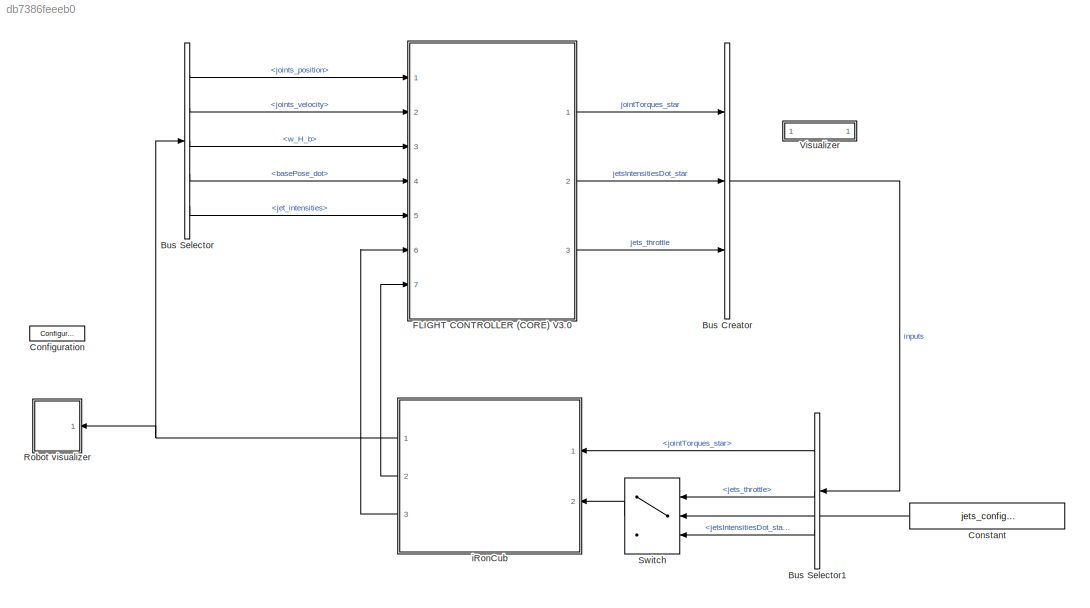
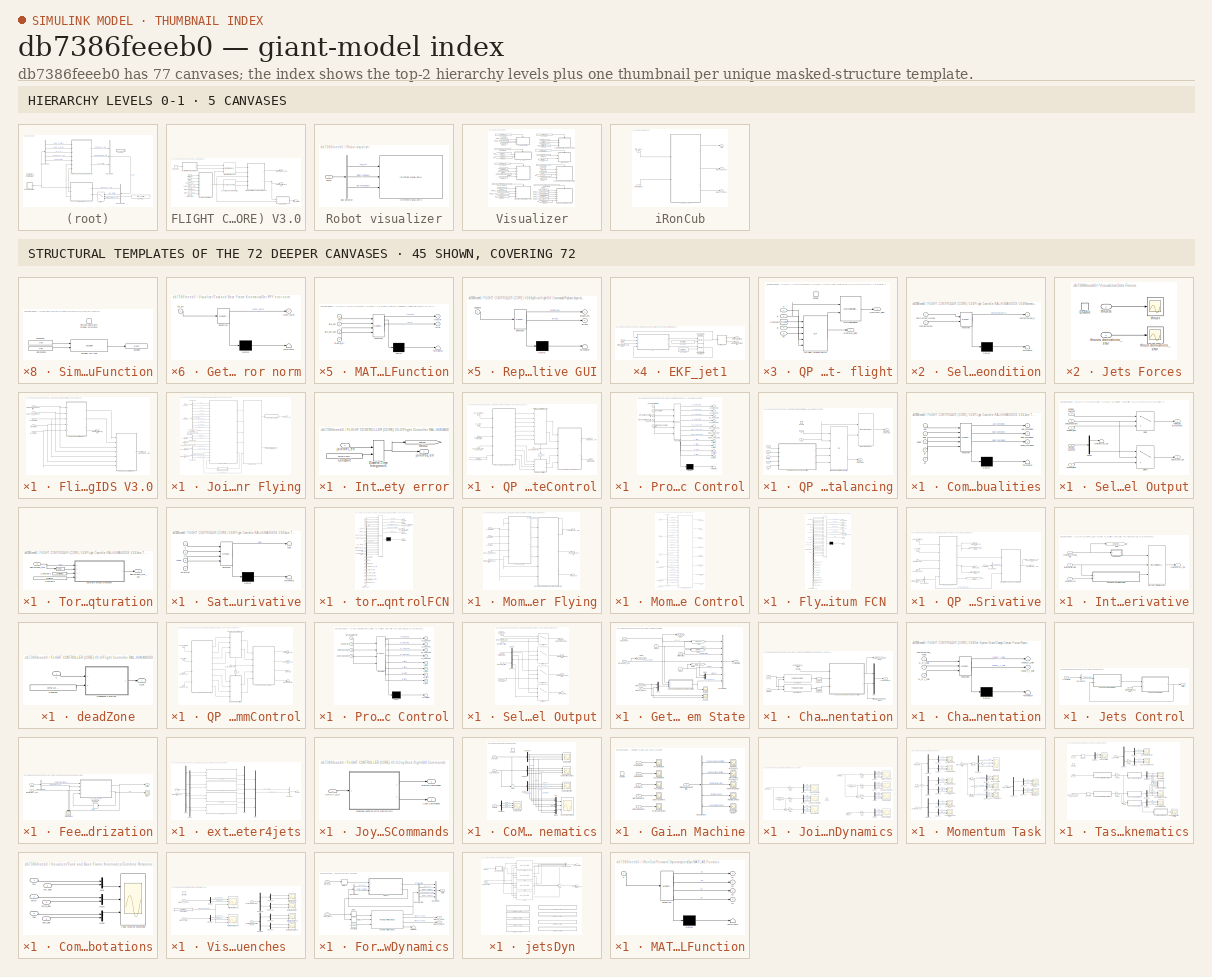
[diagram: thumbnail index - top-2 hierarchy levels (5 canvases) + 45 structural-template representatives of the remaining 72 canvases]
MODEL mdl_db7386feeeb0
KIND model
CONFIG AbsTol = auto
CONFIG EnableMultiTasking = off
CONFIG FixedStep = Config.tStep
CONFIG InitFcn = cd(fileparts(which(bdroot)));\ninitMomentumBasedFlight;
CONFIG MaxStep = auto
CONFIG MinStep = auto
CONFIG RelTol = 1e-3
CONFIG SampleTimeConstraint = Unconstrained
CONFIG SolverName = FixedStepAuto
CONFIG StartTime = 0.0
CONFIG StopFcn = cd(fileparts(which(bdroot)));\nstopMomentumBasedFlight;
CONFIG StopTime = Config.simulationTime
BLOCK [BusCreator] Bus Creator
  DisplayOption = bar
  InheritFromInputs = on
  Inputs = 3
  Ports = [3, 1]
BLOCK [BusSelector] Bus Selector
  OutputSignals = joints_position,joints_velocity,w_H_b,basePose_dot,jet_intensities
  Ports = [1, 5]
BLOCK [BusSelector] Bus Selector1
  NameLocation = top
  OutputSignals = jointTorques_star,jets_throttle,jetsIntensitiesDot_star
  Ports = [1, 3]
BLOCK [Reference] Configuration  REF=WBToolboxLibrary/Utilities/Configuration
  Ports = []
  SourceBlock = WBToolboxLibrary/Utilities/Configuration
  SourceProductName = WholeBodyToolbox
BLOCK [Constant] Constant
  NameLocation = top
  Value = jets_config.use_jet_dyn
BLOCK [SubSystem] FLIGHT CONTROLLER (CORE) V3.0
  Ports = [7, 3]
  RequestExecContextInheritance = off
  SystemSampleTime = 0.01
BLOCK [Reference] FLIGHT CONTROLLER (CORE) V3.0/Dynamics and Kinematics  REF=momentum_flight_control_v1/Dynamics and Kinematics  (lib defined in slx_fc105a0923ff)
  Ports = [1, 2]
  SourceBlock = momentum_flight_control_v1/Dynamics and Kinematics
  SourceProductName = iRonCub Library v1
BLOCK [SubSystem] FLIGHT CONTROLLER (CORE) V3.0/Flight Controller RAL-HUMANOIDS V3.0
  Ports = [5, 2]
  RequestExecContextInheritance = off
BLOCK [SubSystem] FLIGHT CONTROLLER (CORE) V3.0/Flight Controller RAL-HUMANOIDS V3.0/Joint Torque Control for Flying
  Ports = [7, 1]
  RequestExecContextInheritance = off
BLOCK [BusSelector] FLIGHT CONTROLLER (CORE) V3.0/Flight Controller RAL-HUMANOIDS V3.0/Joint Torque Control for Flying/Bus Selector1
  OutputSignals = feetContactIsActive,activateEqConstrTorqueControl,robotIsLanded
  Ports = [1, 3]
BLOCK [BusSelector] FLIGHT CONTROLLER (CORE) V3.0/Flight Controller RAL-HUMANOIDS V3.0/Joint Torque Control for Flying/Bus Selector2
  OutputSignals = KI_torqueControl,KP_torqueControl
  Ports = [1, 2]
BLOCK [BusSelector] FLIGHT CONTROLLER (CORE) V3.0/Flight Controller RAL-HUMANOIDS V3.0/Joint Torque Control for Flying/Bus Selector4
  OutputSignals = M,h
  Ports = [1, 2]
BLOCK [BusSelector] FLIGHT CONTROLLER (CORE) V3.0/Flight Controller RAL-HUMANOIDS V3.0/Joint Torque Control for Flying/Bus Selector5
  OutputSignals = J_jets,J_LFoot,J_RFoot,JDot_LFoot_nu,JDot_RFoot_nu,w_H_LFoot,w_H_RFoot,matrixOfJetAxes
  Ports = [1, 8]
BLOCK [BusSelector] FLIGHT CONTROLLER (CORE) V3.0/Flight Controller RAL-HUMANOIDS V3.0/Joint Torque Control for Flying/Bus Selector6
  OutputSignals = jetsIntensities,stateVel
  Ports = [1, 2]
BLOCK [Constant] FLIGHT CONTROLLER (CORE) V3.0/Flight Controller RAL-HUMANOIDS V3.0/Joint Torque Control for Flying/Constant
  Value = ConstraintMatrix_feet
BLOCK [Constant] FLIGHT CONTROLLER (CORE) V3.0/Flight Controller RAL-HUMANOIDS V3.0/Joint Torque Control for Flying/Constant1
  Value = biasVectorConstraint_feet
BLOCK [Goto] FLIGHT CONTROLLER (CORE) V3.0/Flight Controller RAL-HUMANOIDS V3.0/Joint Torque Control for Flying/Goto1
  GotoTag = exitFlagQP_torqueControl
  TagVisibility = global
BLOCK [SubSystem] FLIGHT CONTROLLER (CORE) V3.0/Flight Controller RAL-HUMANOIDS V3.0/Joint Torque Control for Flying/Integrate Joints Velocity error
  Ports = [1, 1]
  RequestExecContextInheritance = off
BLOCK [Constant] FLIGHT CONTROLLER (CORE) V3.0/Flight Controller RAL-HUMANOIDS V3.0/Joint Torque Control for Flying/Integrate Joints Velocity error/Constant
  Value = zeros(Config.N_DOF,1)
BLOCK [DiscreteIntegrator] FLIGHT CONTROLLER (CORE) V3.0/Flight Controller RAL-HUMANOIDS V3.0/Joint Torque Control for Flying/Integrate Joints Velocity error/Discrete-Time Integrator1
  ICPrevOutput = DiscIntNeverNeededParam
  ICPrevScaledInput = DiscIntNeverNeededParam
  InitialCondition = zeros(Config.N_DOF,1)
  InitialConditionSetting = Auto
  InitialConditionSource = external
  Ports = [2, 1]
  SampleTime = Config.tStep
BLOCK [Goto] FLIGHT CONTROLLER (CORE) V3.0/Flight Controller RAL-HUMANOIDS V3.0/Joint Torque Control for Flying/Integrate Joints Velocity error/Goto2
  GotoTag = jointPos_err_integral
  TagVisibility = global
BLOCK [Outport] FLIGHT CONTROLLER (CORE) V3.0/Flight Controller RAL-HUMANOIDS V3.0/Joint Torque Control for Flying/Integrate Joints Velocity error/jointPos_err
  VectorParamsAs1DForOutWhenUnconnected = off
BLOCK [Inport] FLIGHT CONTROLLER (CORE) V3.0/Flight Controller RAL-HUMANOIDS V3.0/Joint Torque Control for Flying/Integrate Joints Velocity error/jointVel_err
BLOCK [SubSystem] FLIGHT CONTROLLER (CORE) V3.0/Flight Controller RAL-HUMANOIDS V3.0/Joint Torque Control for Flying/QP torqueControl
  Ports = [5, 2]
  RequestExecContextInheritance = off
BLOCK [Constant] FLIGHT CONTROLLER (CORE) V3.0/Flight Controller RAL-HUMANOIDS V3.0/Joint Torque Control for Flying/QP torqueControl/Constant2
  Value = Config.sat.jointTorquesSaturation
BLOCK [Inport] FLIGHT CONTROLLER (CORE) V3.0/Flight Controller RAL-HUMANOIDS V3.0/Joint Torque Control for Flying/QP torqueControl/ConstraintMatrix_inequality
  Port = 3
BLOCK [Inport] FLIGHT CONTROLLER (CORE) V3.0/Flight Controller RAL-HUMANOIDS V3.0/Joint Torque Control for Flying/QP torqueControl/HessianMatrixQP
BLOCK [Logic] FLIGHT CONTROLLER (CORE) V3.0/Flight Controller RAL-HUMANOIDS V3.0/Joint Torque Control for Flying/QP torqueControl/NOT
  AllPortsSameDT = off
  IconShape = distinctive
  NameLocation = right
  Operator = NOT
  OutDataTypeStr = boolean
  Ports = [1, 1]
BLOCK [SubSystem] FLIGHT CONTROLLER (CORE) V3.0/Flight Controller RAL-HUMANOIDS V3.0/Joint Torque Control for Flying/QP torqueControl/Process QP Inputs Torque Control
  ErrorFcn = Stateflow.Translate.translate
  PermitHierarchicalResolution = ExplicitOnly
  Ports = [5, 11]
  RequestExecContextInheritance = off
  SFBlockType = MATLAB Function
  TreatAsAtomicUnit = on
BLOCK [Demux] FLIGHT CONTROLLER (CORE) V3.0/Flight Controller RAL-HUMANOIDS V3.0/Joint Torque Control for Flying/QP torqueControl/Process QP Inputs Torque Control/ Demux 
  Outputs = 1
  Ports = [1, 1]
BLOCK [S-Function] FLIGHT CONTROLLER (CORE) V3.0/Flight Controller RAL-HUMANOIDS V3.0/Joint Torque Control for Flying/QP torqueControl/Process QP Inputs Torque Control/ SFunction 
  EnableBusSupport = off
  FunctionName = sf_sfun
  Parameters = Config
  PortCounts = [5 12]
  Ports = [5, 12]
  SFcnIsStateOwnerBlock = off
  SFunctionDeploymentMode = off
  Tag = Stateflow S-Function 3
BLOCK [Terminator] FLIGHT CONTROLLER (CORE) V3.0/Flight Controller RAL-HUMANOIDS V3.0/Joint Torque Control for Flying/QP torqueControl/Process QP Inputs Torque Control/ Terminator 
BLOCK [Outport] FLIGHT CONTROLLER (CORE) V3.0/Flight Controller RAL-HUMANOIDS V3.0/Joint Torque Control for Flying/QP torqueControl/Process QP Inputs Torque Control/Aeq_balancing
  Port = 5
BLOCK [Outport] FLIGHT CONTROLLER (CORE) V3.0/Flight Controller RAL-HUMANOIDS V3.0/Joint Torque Control for Flying/QP torqueControl/Process QP Inputs Torque Control/H_balancing
BLOCK [Outport] FLIGHT CONTROLLER (CORE) V3.0/Flight Controller RAL-HUMANOIDS V3.0/Joint Torque Control for Flying/QP torqueControl/Process QP Inputs Torque Control/H_flight
  Port = 8
BLOCK [Inport] FLIGHT CONTROLLER (CORE) V3.0/Flight Controller RAL-HUMANOIDS V3.0/Joint Torque Control for Flying/QP torqueControl/Process QP Inputs Torque Control/HessianMatrixQP
BLOCK [Inport] FLIGHT CONTROLLER (CORE) V3.0/Flight Controller RAL-HUMANOIDS V3.0/Joint Torque Control for Flying/QP torqueControl/Process QP Inputs Torque Control/InequalityConstrMatrix
  Port = 3
BLOCK [Inport] FLIGHT CONTROLLER (CORE) V3.0/Flight Controller RAL-HUMANOIDS V3.0/Joint Torque Control for Flying/QP torqueControl/Process QP Inputs Torque Control/biasVectorInequalityConstr
  Port = 4
BLOCK [Inport] FLIGHT CONTROLLER (CORE) V3.0/Flight Controller RAL-HUMANOIDS V3.0/Joint Torque Control for Flying/QP torqueControl/Process QP Inputs Torque Control/gVectorQP
  Port = 2
BLOCK [Outport] FLIGHT CONTROLLER (CORE) V3.0/Flight Controller RAL-HUMANOIDS V3.0/Joint Torque Control for Flying/QP torqueControl/Process QP Inputs Torque Control/g_balancing
  Port = 2
BLOCK [Outport] FLIGHT CONTROLLER (CORE) V3.0/Flight Controller RAL-HUMANOIDS V3.0/Joint Torque Control for Flying/QP torqueControl/Process QP Inputs Torque Control/g_flight
  Port = 9
BLOCK [Inport] FLIGHT CONTROLLER (CORE) V3.0/Flight Controller RAL-HUMANOIDS V3.0/Joint Torque Control for Flying/QP torqueControl/Process QP Inputs Torque Control/jointTorquesSaturation
  Port = 5
BLOCK [Outport] FLIGHT CONTROLLER (CORE) V3.0/Flight Controller RAL-HUMANOIDS V3.0/Joint Torque Control for Flying/QP torqueControl/Process QP Inputs Torque Control/lbEq_balancing
  Port = 6
BLOCK [Outport] FLIGHT CONTROLLER (CORE) V3.0/Flight Controller RAL-HUMANOIDS V3.0/Joint Torque Control for Flying/QP torqueControl/Process QP Inputs Torque Control/lb_balancing
  Port = 4
BLOCK [Outport] FLIGHT CONTROLLER (CORE) V3.0/Flight Controller RAL-HUMANOIDS V3.0/Joint Torque Control for Flying/QP torqueControl/Process QP Inputs Torque Control/lb_flight
  Port = 11
BLOCK [Outport] FLIGHT CONTROLLER (CORE) V3.0/Flight Controller RAL-HUMANOIDS V3.0/Joint Torque Control for Flying/QP torqueControl/Process QP Inputs Torque Control/ubEq_balancing
  Port = 7
BLOCK [Outport] FLIGHT CONTROLLER (CORE) V3.0/Flight Controller RAL-HUMANOIDS V3.0/Joint Torque Control for Flying/QP torqueControl/Process QP Inputs Torque Control/ub_balancing
  Port = 3
BLOCK [Outport] FLIGHT CONTROLLER (CORE) V3.0/Flight Controller RAL-HUMANOIDS V3.0/Joint Torque Control for Flying/QP torqueControl/Process QP Inputs Torque Control/ub_flight
  Port = 10
BLOCK [SubSystem] FLIGHT CONTROLLER (CORE) V3.0/Flight Controller RAL-HUMANOIDS V3.0/Joint Torque Control for Flying/QP torqueControl/QP torqueControl - balancing
  NameLocation = top
  Ports = [7, 2, 1]
  RequestExecContextInheritance = off
  TreatAsAtomicUnit = on
BLOCK [Inport] FLIGHT CONTROLLER (CORE) V3.0/Flight Controller RAL-HUMANOIDS V3.0/Joint Torque Control for Flying/QP torqueControl/QP torqueControl - balancing/AEq
  Port = 5
BLOCK [SubSystem] FLIGHT CONTROLLER (CORE) V3.0/Flight Controller RAL-HUMANOIDS V3.0/Joint Torque Control for Flying/QP torqueControl/QP torqueControl - balancing/Combine Bounds and Inequalities
  ErrorFcn = Stateflow.Translate.translate
  PermitHierarchicalResolution = ExplicitOnly
  Ports = [5, 3]
  RequestExecContextInheritance = off
  SFBlockType = MATLAB Function
  TreatAsAtomicUnit = on
BLOCK [Demux] FLIGHT CONTROLLER (CORE) V3.0/Flight Controller RAL-HUMANOIDS V3.0/Joint Torque Control for Flying/QP torqueControl/QP torqueControl - balancing/Combine Bounds and Inequalities/ Demux 
  Outputs = 1
  Ports = [1, 1]
BLOCK [S-Function] FLIGHT CONTROLLER (CORE) V3.0/Flight Controller RAL-HUMANOIDS V3.0/Joint Torque Control for Flying/QP torqueControl/QP torqueControl - balancing/Combine Bounds and Inequalities/ SFunction 
  EnableBusSupport = off
  FunctionName = sf_sfun
  PortCounts = [5 4]
  Ports = [5, 4]
  SFcnIsStateOwnerBlock = off
  SFunctionDeploymentMode = off
  Tag = Stateflow S-Function 4
BLOCK [Terminator] FLIGHT CONTROLLER (CORE) V3.0/Flight Controller RAL-HUMANOIDS V3.0/Joint Torque Control for Flying/QP torqueControl/QP torqueControl - balancing/Combine Bounds and Inequalities/ Terminator 
BLOCK [Inport] FLIGHT CONTROLLER (CORE) V3.0/Flight Controller RAL-HUMANOIDS V3.0/Joint Torque Control for Flying/QP torqueControl/QP torqueControl - balancing/Combine Bounds and Inequalities/AEq
BLOCK [Outport] FLIGHT CONTROLLER (CORE) V3.0/Flight Controller RAL-HUMANOIDS V3.0/Joint Torque Control for Flying/QP torqueControl/QP torqueControl - balancing/Combine Bounds and Inequalities/AEq_combined
BLOCK [Inport] FLIGHT CONTROLLER (CORE) V3.0/Flight Controller RAL-HUMANOIDS V3.0/Joint Torque Control for Flying/QP torqueControl/QP torqueControl - balancing/Combine Bounds and Inequalities/lb
  Port = 4
BLOCK [Inport] FLIGHT CONTROLLER (CORE) V3.0/Flight Controller RAL-HUMANOIDS V3.0/Joint Torque Control for Flying/QP torqueControl/QP torqueControl - balancing/Combine Bounds and Inequalities/lbEq
  Port = 2
BLOCK [Outport] FLIGHT CONTROLLER (CORE) V3.0/Flight Controller RAL-HUMANOIDS V3.0/Joint Torque Control for Flying/QP torqueControl/QP torqueControl - balancing/Combine Bounds and Inequalities/lbEq_combined
  Port = 2
BLOCK [Inport] FLIGHT CONTROLLER (CORE) V3.0/Flight Controller RAL-HUMANOIDS V3.0/Joint Torque Control for Flying/QP torqueControl/QP torqueControl - balancing/Combine Bounds and Inequalities/ub
  Port = 5
BLOCK [Inport] FLIGHT CONTROLLER (CORE) V3.0/Flight Controller RAL-HUMANOIDS V3.0/Joint Torque Control for Flying/QP torqueControl/QP torqueControl - balancing/Combine Bounds and Inequalities/ubEq
  Port = 3
BLOCK [Outport] FLIGHT CONTROLLER (CORE) V3.0/Flight Controller RAL-HUMANOIDS V3.0/Joint Torque Control for Flying/QP torqueControl/QP torqueControl - balancing/Combine Bounds and Inequalities/ubEq_combined
  Port = 3
BLOCK [EnablePort] FLIGHT CONTROLLER (CORE) V3.0/Flight Controller RAL-HUMANOIDS V3.0/Joint Torque Control for Flying/QP torqueControl/QP torqueControl - balancing/Enable
  Ports = []
BLOCK [Inport] FLIGHT CONTROLLER (CORE) V3.0/Flight Controller RAL-HUMANOIDS V3.0/Joint Torque Control for Flying/QP torqueControl/QP torqueControl - balancing/H
BLOCK [Reference] FLIGHT CONTROLLER (CORE) V3.0/Flight Controller RAL-HUMANOIDS V3.0/Joint Torque Control for Flying/QP torqueControl/QP torqueControl - balancing/MatchSignalSizes  REF=WBToolboxLibrary/Utilities/MatchSignalSizes
  Ports = [2, 1]
  SourceBlock = WBToolboxLibrary/Utilities/MatchSignalSizes
  SourceProductName = WholeBodyToolbox
  SourceType = MatchSignalSizes
BLOCK [Reference] FLIGHT CONTROLLER (CORE) V3.0/Flight Controller RAL-HUMANOIDS V3.0/Joint Torque Control for Flying/QP torqueControl/QP torqueControl - balancing/QP balancing-torqueControl  REF=WBToolboxLibrary/Utilities/QP
  Ports = [5, 2]
  SourceBlock = WBToolboxLibrary/Utilities/QP
  SourceProductName = WholeBodyToolbox
  SourceType = QP
BLOCK [Outport] FLIGHT CONTROLLER (CORE) V3.0/Flight Controller RAL-HUMANOIDS V3.0/Joint Torque Control for Flying/QP torqueControl/QP torqueControl - balancing/QPOutput_balancing
  Port = 2
  VectorParamsAs1DForOutWhenUnconnected = off
BLOCK [Outport] FLIGHT CONTROLLER (CORE) V3.0/Flight Controller RAL-HUMANOIDS V3.0/Joint Torque Control for Flying/QP torqueControl/QP torqueControl - balancing/QPStatus_balancing
  VectorParamsAs1DForOutWhenUnconnected = off
BLOCK [Inport] FLIGHT CONTROLLER (CORE) V3.0/Flight Controller RAL-HUMANOIDS V3.0/Joint Torque Control for Flying/QP torqueControl/QP torqueControl - balancing/g
  Port = 2
BLOCK [Inport] FLIGHT CONTROLLER (CORE) V3.0/Flight Controller RAL-HUMANOIDS V3.0/Joint Torque Control for Flying/QP torqueControl/QP torqueControl - balancing/lb
  Port = 4
BLOCK [Inport] FLIGHT CONTROLLER (CORE) V3.0/Flight Controller RAL-HUMANOIDS V3.0/Joint Torque Control for Flying/QP torqueControl/QP torqueControl - balancing/lbEq
  Port = 6
BLOCK [Inport] FLIGHT CONTROLLER (CORE) V3.0/Flight Controller RAL-HUMANOIDS V3.0/Joint Torque Control for Flying/QP torqueControl/QP torqueControl - balancing/ub
  Port = 3
BLOCK [Inport] FLIGHT CONTROLLER (CORE) V3.0/Flight Controller RAL-HUMANOIDS V3.0/Joint Torque Control for Flying/QP torqueControl/QP torqueControl - balancing/ubEq
  Port = 7
BLOCK [SubSystem] FLIGHT CONTROLLER (CORE) V3.0/Flight Controller RAL-HUMANOIDS V3.0/Joint Torque Control for Flying/QP torqueControl/QP torqueControl - flight
  Ports = [4, 2, 1]
  RequestExecContextInheritance = off
  TreatAsAtomicUnit = on
BLOCK [Constant] FLIGHT CONTROLLER (CORE) V3.0/Flight Controller RAL-HUMANOIDS V3.0/Joint Torque Control for Flying/QP torqueControl/QP torqueControl - flight/Constant
  Value = eye(Config.N_DOF)
BLOCK [EnablePort] FLIGHT CONTROLLER (CORE) V3.0/Flight Controller RAL-HUMANOIDS V3.0/Joint Torque Control for Flying/QP torqueControl/QP torqueControl - flight/Enable
  Ports = []
BLOCK [Inport] FLIGHT CONTROLLER (CORE) V3.0/Flight Controller RAL-HUMANOIDS V3.0/Joint Torque Control for Flying/QP torqueControl/QP torqueControl - flight/H
BLOCK [Reference] FLIGHT CONTROLLER (CORE) V3.0/Flight Controller RAL-HUMANOIDS V3.0/Joint Torque Control for Flying/QP torqueControl/QP torqueControl - flight/MatchSignalSizes  REF=WBToolboxLibrary/Utilities/MatchSignalSizes
  Ports = [2, 1]
  SourceBlock = WBToolboxLibrary/Utilities/MatchSignalSizes
  SourceProductName = WholeBodyToolbox
  SourceType = MatchSignalSizes
BLOCK [Reference] FLIGHT CONTROLLER (CORE) V3.0/Flight Controller RAL-HUMANOIDS V3.0/Joint Torque Control for Flying/QP torqueControl/QP torqueControl - flight/QP flight-torqueControl  REF=WBToolboxLibrary/Utilities/QP
  Ports = [5, 2]
  SourceBlock = WBToolboxLibrary/Utilities/QP
  SourceProductName = WholeBodyToolbox
  SourceType = QP
BLOCK [Outport] FLIGHT CONTROLLER (CORE) V3.0/Flight Controller RAL-HUMANOIDS V3.0/Joint Torque Control for Flying/QP torqueControl/QP torqueControl - flight/QPOutput_flight
  Port = 2
  VectorParamsAs1DForOutWhenUnconnected = off
BLOCK [Outport] FLIGHT CONTROLLER (CORE) V3.0/Flight Controller RAL-HUMANOIDS V3.0/Joint Torque Control for Flying/QP torqueControl/QP torqueControl - flight/QPStatus_flight
  VectorParamsAs1DForOutWhenUnconnected = off
BLOCK [Inport] FLIGHT CONTROLLER (CORE) V3.0/Flight Controller RAL-HUMANOIDS V3.0/Joint Torque Control for Flying/QP torqueControl/QP torqueControl - flight/g
  Port = 2
BLOCK [Inport] FLIGHT CONTROLLER (CORE) V3.0/Flight Controller RAL-HUMANOIDS V3.0/Joint Torque Control for Flying/QP torqueControl/QP torqueControl - flight/lb
  Port = 4
BLOCK [Inport] FLIGHT CONTROLLER (CORE) V3.0/Flight Controller RAL-HUMANOIDS V3.0/Joint Torque Control for Flying/QP torqueControl/QP torqueControl - flight/ub
  Port = 3
BLOCK [SubSystem] FLIGHT CONTROLLER (CORE) V3.0/Flight Controller RAL-HUMANOIDS V3.0/Joint Torque Control for Flying/QP torqueControl/Select QP torqueControl Output
  Ports = [5, 2]
  RequestExecContextInheritance = off
BLOCK [Demux] FLIGHT CONTROLLER (CORE) V3.0/Flight Controller RAL-HUMANOIDS V3.0/Joint Torque Control for Flying/QP torqueControl/Select QP torqueControl Output/Demux
  Outputs = [12;Config.N_DOF]
  Ports = [1, 2]
BLOCK [Inport] FLIGHT CONTROLLER (CORE) V3.0/Flight Controller RAL-HUMANOIDS V3.0/Joint Torque Control for Flying/QP torqueControl/Select QP torqueControl Output/QPOutput_balancing
  Port = 2
BLOCK [Inport] FLIGHT CONTROLLER (CORE) V3.0/Flight Controller RAL-HUMANOIDS V3.0/Joint Torque Control for Flying/QP torqueControl/Select QP torqueControl Output/QPOutput_flight
  Port = 5
BLOCK [Inport] FLIGHT CONTROLLER (CORE) V3.0/Flight Controller RAL-HUMANOIDS V3.0/Joint Torque Control for Flying/QP torqueControl/Select QP torqueControl Output/QPStatus_balancing
BLOCK [Inport] FLIGHT CONTROLLER (CORE) V3.0/Flight Controller RAL-HUMANOIDS V3.0/Joint Torque Control for Flying/QP torqueControl/Select QP torqueControl Output/QPStatus_flight
  Port = 4
BLOCK [Switch] FLIGHT CONTROLLER (CORE) V3.0/Flight Controller RAL-HUMANOIDS V3.0/Joint Torque Control for Flying/QP torqueControl/Select QP torqueControl Output/Switch
  Criteria = u2 > Threshold
  InputSameDT = off
  SaturateOnIntegerOverflow = off
BLOCK [Switch] FLIGHT CONTROLLER (CORE) V3.0/Flight Controller RAL-HUMANOIDS V3.0/Joint Torque Control for Flying/QP torqueControl/Select QP torqueControl Output/Switch1
  Criteria = u2 > Threshold
  InputSameDT = off
  SaturateOnIntegerOverflow = off
BLOCK [Terminator] FLIGHT CONTROLLER (CORE) V3.0/Flight Controller RAL-HUMANOIDS V3.0/Joint Torque Control for Flying/QP torqueControl/Select QP torqueControl Output/contactForces_QP
BLOCK [Outport] FLIGHT CONTROLLER (CORE) V3.0/Flight Controller RAL-HUMANOIDS V3.0/Joint Torque Control for Flying/QP torqueControl/Select QP torqueControl Output/exitFlagQP_torqueControl
  Port = 2
  VectorParamsAs1DForOutWhenUnconnected = off
BLOCK [Inport] FLIGHT CONTROLLER (CORE) V3.0/Flight Controller RAL-HUMANOIDS V3.0/Joint Torque Control for Flying/QP torqueControl/Select QP torqueControl Output/feetContactIsActive
  Port = 3
BLOCK [Outport] FLIGHT CONTROLLER (CORE) V3.0/Flight Controller RAL-HUMANOIDS V3.0/Joint Torque Control for Flying/QP torqueControl/Select QP torqueControl Output/jointTorques_star
  VectorParamsAs1DForOutWhenUnconnected = off
BLOCK [Inport] FLIGHT CONTROLLER (CORE) V3.0/Flight Controller RAL-HUMANOIDS V3.0/Joint Torque Control for Flying/QP torqueControl/biasVectorConstraint_inequality
  Port = 4
BLOCK [Outport] FLIGHT CONTROLLER (CORE) V3.0/Flight Controller RAL-HUMANOIDS V3.0/Joint Torque Control for Flying/QP torqueControl/exitFlagQP_torqueControl
  Port = 2
  VectorParamsAs1DForOutWhenUnconnected = off
BLOCK [Inport] FLIGHT CONTROLLER (CORE) V3.0/Flight Controller RAL-HUMANOIDS V3.0/Joint Torque Control for Flying/QP torqueControl/feetContactIsActive
  Port = 5
BLOCK [Inport] FLIGHT CONTROLLER (CORE) V3.0/Flight Controller RAL-HUMANOIDS V3.0/Joint Torque Control for Flying/QP torqueControl/gVectorQP
  Port = 2
BLOCK [Outport] FLIGHT CONTROLLER (CORE) V3.0/Flight Controller RAL-HUMANOIDS V3.0/Joint Torque Control for Flying/QP torqueControl/jointTorques_star
  VectorParamsAs1DForOutWhenUnconnected = off
BLOCK [SubSystem] FLIGHT CONTROLLER (CORE) V3.0/Flight Controller RAL-HUMANOIDS V3.0/Joint Torque Control for Flying/Torque Derivative Saturation
  Ports = [1, 1]
  RequestExecContextInheritance = off
BLOCK [Constant] FLIGHT CONTROLLER (CORE) V3.0/Flight Controller RAL-HUMANOIDS V3.0/Joint Torque Control for Flying/Torque Derivative Saturation/Constant1
  Value = Config.tStep
BLOCK [Constant] FLIGHT CONTROLLER (CORE) V3.0/Flight Controller RAL-HUMANOIDS V3.0/Joint Torque Control for Flying/Torque Derivative Saturation/Constant2
  Value = Config.sat.jointTorquesDotMax
BLOCK [SubSystem] FLIGHT CONTROLLER (CORE) V3.0/Flight Controller RAL-HUMANOIDS V3.0/Joint Torque Control for Flying/Torque Derivative Saturation/Saturate Torque Derivative
  ErrorFcn = Stateflow.Translate.translate
  PermitHierarchicalResolution = ExplicitOnly
  Ports = [4, 1]
  RequestExecContextInheritance = off
  SFBlockType = MATLAB Function
  TreatAsAtomicUnit = on
BLOCK [Demux] FLIGHT CONTROLLER (CORE) V3.0/Flight Controller RAL-HUMANOIDS V3.0/Joint Torque Control for Flying/Torque Derivative Saturation/Saturate Torque Derivative/ Demux 
  Outputs = 1
  Ports = [1, 1]
BLOCK [S-Function] FLIGHT CONTROLLER (CORE) V3.0/Flight Controller RAL-HUMANOIDS V3.0/Joint Torque Control for Flying/Torque Derivative Saturation/Saturate Torque Derivative/ SFunction 
  EnableBusSupport = off
  FunctionName = sf_sfun
  PortCounts = [4 2]
  Ports = [4, 2]
  SFcnIsStateOwnerBlock = off
  SFunctionDeploymentMode = off
  Tag = Stateflow S-Function 1
BLOCK [Terminator] FLIGHT CONTROLLER (CORE) V3.0/Flight Controller RAL-HUMANOIDS V3.0/Joint Torque Control for Flying/Torque Derivative Saturation/Saturate Torque Derivative/ Terminator 
BLOCK [Inport] FLIGHT CONTROLLER (CORE) V3.0/Flight Controller RAL-HUMANOIDS V3.0/Joint Torque Control for Flying/Torque Derivative Saturation/Saturate Torque Derivative/tStep
  Port = 3
BLOCK [Inport] FLIGHT CONTROLLER (CORE) V3.0/Flight Controller RAL-HUMANOIDS V3.0/Joint Torque Control for Flying/Torque Derivative Saturation/Saturate Torque Derivative/u
BLOCK [Inport] FLIGHT CONTROLLER (CORE) V3.0/Flight Controller RAL-HUMANOIDS V3.0/Joint Torque Control for Flying/Torque Derivative Saturation/Saturate Torque Derivative/uDotMax
  Port = 4
BLOCK [Outport] FLIGHT CONTROLLER (CORE) V3.0/Flight Controller RAL-HUMANOIDS V3.0/Joint Torque Control for Flying/Torque Derivative Saturation/Saturate Torque Derivative/uSat
  VectorParamsAs1DForOutWhenUnconnected = off
BLOCK [Inport] FLIGHT CONTROLLER (CORE) V3.0/Flight Controller RAL-HUMANOIDS V3.0/Joint Torque Control for Flying/Torque Derivative Saturation/Saturate Torque Derivative/u_0
  Port = 2
BLOCK [Reference] FLIGHT CONTROLLER (CORE) V3.0/Flight Controller RAL-HUMANOIDS V3.0/Joint Torque Control for Flying/Torque Derivative Saturation/holder   REF=WBToolboxLibrary/Utilities/holder

  Ports = [1, 1]
  SourceBlock = WBToolboxLibrary/Utilities/holder
  SourceProductName = WholeBodyToolbox
  SourceType = Holder
BLOCK [Inport] FLIGHT CONTROLLER (CORE) V3.0/Flight Controller RAL-HUMANOIDS V3.0/Joint Torque Control for Flying/Torque Derivative Saturation/jointTorques_star
BLOCK [Outport] FLIGHT CONTROLLER (CORE) V3.0/Flight Controller RAL-HUMANOIDS V3.0/Joint Torque Control for Flying/Torque Derivative Saturation/jointTorques_star_sat
  VectorParamsAs1DForOutWhenUnconnected = off
BLOCK [Inport] FLIGHT CONTROLLER (CORE) V3.0/Flight Controller RAL-HUMANOIDS V3.0/Joint Torque Control for Flying/contactForces_star
  Port = 2
BLOCK [Inport] FLIGHT CONTROLLER (CORE) V3.0/Flight Controller RAL-HUMANOIDS V3.0/Joint Torque Control for Flying/dynamics
  Port = 7
BLOCK [Inport] FLIGHT CONTROLLER (CORE) V3.0/Flight Controller RAL-HUMANOIDS V3.0/Joint Torque Control for Flying/gainsAndReferences
  Port = 4
BLOCK [Outport] FLIGHT CONTROLLER (CORE) V3.0/Flight Controller RAL-HUMANOIDS V3.0/Joint Torque Control for Flying/jointTorques_star
  VectorParamsAs1DForOutWhenUnconnected = off
BLOCK [Inport] FLIGHT CONTROLLER (CORE) V3.0/Flight Controller RAL-HUMANOIDS V3.0/Joint Torque Control for Flying/jointVel_star
BLOCK [Inport] FLIGHT CONTROLLER (CORE) V3.0/Flight Controller RAL-HUMANOIDS V3.0/Joint Torque Control for Flying/kinematics
  Port = 6
BLOCK [Inport] FLIGHT CONTROLLER (CORE) V3.0/Flight Controller RAL-HUMANOIDS V3.0/Joint Torque Control for Flying/stateMachineQuantitites
  Port = 3
BLOCK [Inport] FLIGHT CONTROLLER (CORE) V3.0/Flight Controller RAL-HUMANOIDS V3.0/Joint Torque Control for Flying/systemState
  Port = 5
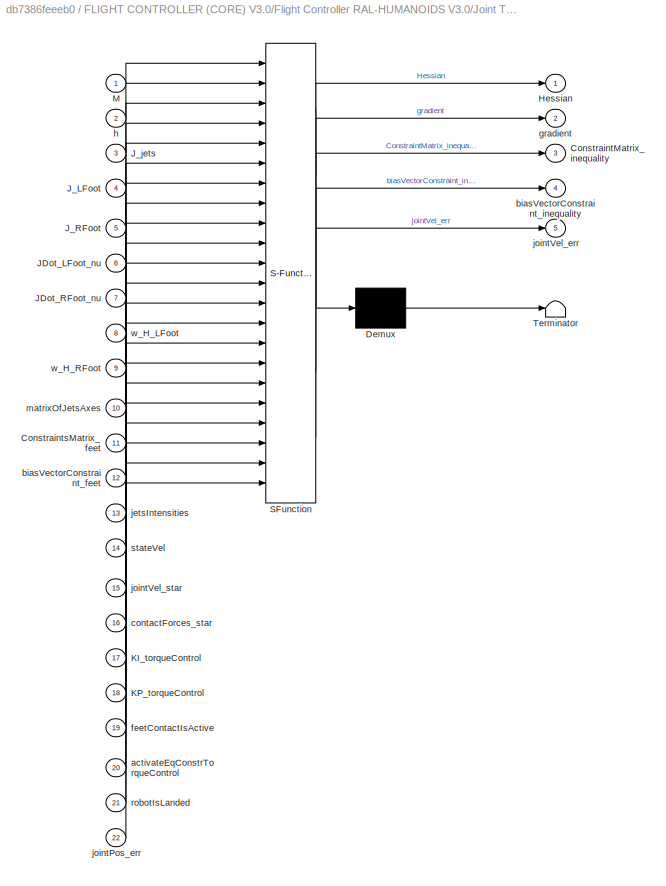
BLOCK [SubSystem] FLIGHT CONTROLLER (CORE) V3.0/Flight Controller RAL-HUMANOIDS V3.0/Joint Torque Control for Flying/torqueControlFCN
  ErrorFcn = Stateflow.Translate.translate
  PermitHierarchicalResolution = ExplicitOnly
  Ports = [22, 5]
  RequestExecContextInheritance = off
  SFBlockType = MATLAB Function
  TreatAsAtomicUnit = on
BLOCK [Demux] FLIGHT CONTROLLER (CORE) V3.0/Flight Controller RAL-HUMANOIDS V3.0/Joint Torque Control for Flying/torqueControlFCN/ Demux 
  Outputs = 1
  Ports = [1, 1]
BLOCK [S-Function] FLIGHT CONTROLLER (CORE) V3.0/Flight Controller RAL-HUMANOIDS V3.0/Joint Torque Control for Flying/torqueControlFCN/ SFunction 
  EnableBusSupport = off
  FunctionName = sf_sfun
  Parameters = Config
  PortCounts = [22 6]
  Ports = [22, 6]
  SFcnIsStateOwnerBlock = off
  SFunctionDeploymentMode = off
  Tag = Stateflow S-Function 6
BLOCK [Terminator] FLIGHT CONTROLLER (CORE) V3.0/Flight Controller RAL-HUMANOIDS V3.0/Joint Torque Control for Flying/torqueControlFCN/ Terminator 
BLOCK [Outport] FLIGHT CONTROLLER (CORE) V3.0/Flight Controller RAL-HUMANOIDS V3.0/Joint Torque Control for Flying/torqueControlFCN/ConstraintMatrix_inequality
  Port = 3
  VectorParamsAs1DForOutWhenUnconnected = off
BLOCK [Inport] FLIGHT CONTROLLER (CORE) V3.0/Flight Controller RAL-HUMANOIDS V3.0/Joint Torque Control for Flying/torqueControlFCN/ConstraintsMatrix_feet
  Port = 11
BLOCK [Outport] FLIGHT CONTROLLER (CORE) V3.0/Flight Controller RAL-HUMANOIDS V3.0/Joint Torque Control for Flying/torqueControlFCN/Hessian
  VectorParamsAs1DForOutWhenUnconnected = off
BLOCK [Inport] FLIGHT CONTROLLER (CORE) V3.0/Flight Controller RAL-HUMANOIDS V3.0/Joint Torque Control for Flying/torqueControlFCN/JDot_LFoot_nu
  Port = 6
BLOCK [Inport] FLIGHT CONTROLLER (CORE) V3.0/Flight Controller RAL-HUMANOIDS V3.0/Joint Torque Control for Flying/torqueControlFCN/JDot_RFoot_nu
  Port = 7
BLOCK [Inport] FLIGHT CONTROLLER (CORE) V3.0/Flight Controller RAL-HUMANOIDS V3.0/Joint Torque Control for Flying/torqueControlFCN/J_LFoot
  Port = 4
BLOCK [Inport] FLIGHT CONTROLLER (CORE) V3.0/Flight Controller RAL-HUMANOIDS V3.0/Joint Torque Control for Flying/torqueControlFCN/J_RFoot
  Port = 5
BLOCK [Inport] FLIGHT CONTROLLER (CORE) V3.0/Flight Controller RAL-HUMANOIDS V3.0/Joint Torque Control for Flying/torqueControlFCN/J_jets
  Port = 3
BLOCK [Inport] FLIGHT CONTROLLER (CORE) V3.0/Flight Controller RAL-HUMANOIDS V3.0/Joint Torque Control for Flying/torqueControlFCN/KI_torqueControl
  Port = 17
BLOCK [Inport] FLIGHT CONTROLLER (CORE) V3.0/Flight Controller RAL-HUMANOIDS V3.0/Joint Torque Control for Flying/torqueControlFCN/KP_torqueControl
  Port = 18
BLOCK [Inport] FLIGHT CONTROLLER (CORE) V3.0/Flight Controller RAL-HUMANOIDS V3.0/Joint Torque Control for Flying/torqueControlFCN/M
BLOCK [Inport] FLIGHT CONTROLLER (CORE) V3.0/Flight Controller RAL-HUMANOIDS V3.0/Joint Torque Control for Flying/torqueControlFCN/activateEqConstrTorqueControl
  Port = 20
BLOCK [Inport] FLIGHT CONTROLLER (CORE) V3.0/Flight Controller RAL-HUMANOIDS V3.0/Joint Torque Control for Flying/torqueControlFCN/biasVectorConstraint_feet
  Port = 12
BLOCK [Outport] FLIGHT CONTROLLER (CORE) V3.0/Flight Controller RAL-HUMANOIDS V3.0/Joint Torque Control for Flying/torqueControlFCN/biasVectorConstraint_inequality
  Port = 4
  VectorParamsAs1DForOutWhenUnconnected = off
BLOCK [Inport] FLIGHT CONTROLLER (CORE) V3.0/Flight Controller RAL-HUMANOIDS V3.0/Joint Torque Control for Flying/torqueControlFCN/contactForces_star
  Port = 16
BLOCK [Inport] FLIGHT CONTROLLER (CORE) V3.0/Flight Controller RAL-HUMANOIDS V3.0/Joint Torque Control for Flying/torqueControlFCN/feetContactIsActive
  Port = 19
BLOCK [Outport] FLIGHT CONTROLLER (CORE) V3.0/Flight Controller RAL-HUMANOIDS V3.0/Joint Torque Control for Flying/torqueControlFCN/gradient
  Port = 2
  VectorParamsAs1DForOutWhenUnconnected = off
BLOCK [Inport] FLIGHT CONTROLLER (CORE) V3.0/Flight Controller RAL-HUMANOIDS V3.0/Joint Torque Control for Flying/torqueControlFCN/h
  Port = 2
BLOCK [Inport] FLIGHT CONTROLLER (CORE) V3.0/Flight Controller RAL-HUMANOIDS V3.0/Joint Torque Control for Flying/torqueControlFCN/jetsIntensities
  Port = 13
BLOCK [Inport] FLIGHT CONTROLLER (CORE) V3.0/Flight Controller RAL-HUMANOIDS V3.0/Joint Torque Control for Flying/torqueControlFCN/jointPos_err
  Port = 22
BLOCK [Outport] FLIGHT CONTROLLER (CORE) V3.0/Flight Controller RAL-HUMANOIDS V3.0/Joint Torque Control for Flying/torqueControlFCN/jointVel_err
  Port = 5
  VectorParamsAs1DForOutWhenUnconnected = off
BLOCK [Inport] FLIGHT CONTROLLER (CORE) V3.0/Flight Controller RAL-HUMANOIDS V3.0/Joint Torque Control for Flying/torqueControlFCN/jointVel_star
  Port = 15
BLOCK [Inport] FLIGHT CONTROLLER (CORE) V3.0/Flight Controller RAL-HUMANOIDS V3.0/Joint Torque Control for Flying/torqueControlFCN/matrixOfJetsAxes
  Port = 10
BLOCK [Inport] FLIGHT CONTROLLER (CORE) V3.0/Flight Controller RAL-HUMANOIDS V3.0/Joint Torque Control for Flying/torqueControlFCN/robotIsLanded
  Port = 21
BLOCK [Inport] FLIGHT CONTROLLER (CORE) V3.0/Flight Controller RAL-HUMANOIDS V3.0/Joint Torque Control for Flying/torqueControlFCN/stateVel
  Port = 14
BLOCK [Inport] FLIGHT CONTROLLER (CORE) V3.0/Flight Controller RAL-HUMANOIDS V3.0/Joint Torque Control for Flying/torqueControlFCN/w_H_LFoot
  Port = 8
BLOCK [Inport] FLIGHT CONTROLLER (CORE) V3.0/Flight Controller RAL-HUMANOIDS V3.0/Joint Torque Control for Flying/torqueControlFCN/w_H_RFoot
  Port = 9
BLOCK [SubSystem] FLIGHT CONTROLLER (CORE) V3.0/Flight Controller RAL-HUMANOIDS V3.0/Momentum Control for Flying
  Ports = [5, 3]
  RequestExecContextInheritance = off
BLOCK [SubSystem] FLIGHT CONTROLLER (CORE) V3.0/Flight Controller RAL-HUMANOIDS V3.0/Momentum Control for Flying/Momentum Control
  Ports = [6, 4]
  RequestExecContextInheritance = off
BLOCK [BusSelector] FLIGHT CONTROLLER (CORE) V3.0/Flight Controller RAL-HUMANOIDS V3.0/Momentum Control for Flying/Momentum Control/Bus Selector
  OutputSignals = jointPos,w_baseTwist,jetsIntensities
  Ports = [1, 3]
BLOCK [BusSelector] FLIGHT CONTROLLER (CORE) V3.0/Flight Controller RAL-HUMANOIDS V3.0/Momentum Control for Flying/Momentum Control/Bus Selector1
  OutputSignals = J_jets,J_CoM,J_LFoot,J_RFoot,posCoM,w_R_b,w_H_LFoot,w_H_RFoot,matrixOfJetAxes,matrixOfJetsArms
  Ports = [1, 10]
BLOCK [BusSelector] FLIGHT CONTROLLER (CORE) V3.0/Flight Controller RAL-HUMANOIDS V3.0/Momentum Control for Flying/Momentum Control/Bus Selector2
  OutputSignals = w_I_c,L,M,CMM
  Ports = [1, 4]
BLOCK [BusSelector] FLIGHT CONTROLLER (CORE) V3.0/Flight Controller RAL-HUMANOIDS V3.0/Momentum Control for Flying/Momentum Control/Bus Selector3
  OutputSignals = pos_vel_acc_jerk_CoM_des,rot_vel_acc_jerk_base_des,jointPos_des,KP_momentum,KD_momentum,KP_postural
  Ports = [1, 6]
BLOCK [BusSelector] FLIGHT CONTROLLER (CORE) V3.0/Flight Controller RAL-HUMANOIDS V3.0/Momentum Control for Flying/Momentum Control/Bus Selector4
  OutputSignals = feetContactIsActive,decreaseMaxFootVerticalForce,increaseMinFootVerticalForce,robotIsLanded
  Ports = [1, 4]
BLOCK [Constant] FLIGHT CONTROLLER (CORE) V3.0/Flight Controller RAL-HUMANOIDS V3.0/Momentum Control for Flying/Momentum Control/Constant
  Value = ones(3,6)
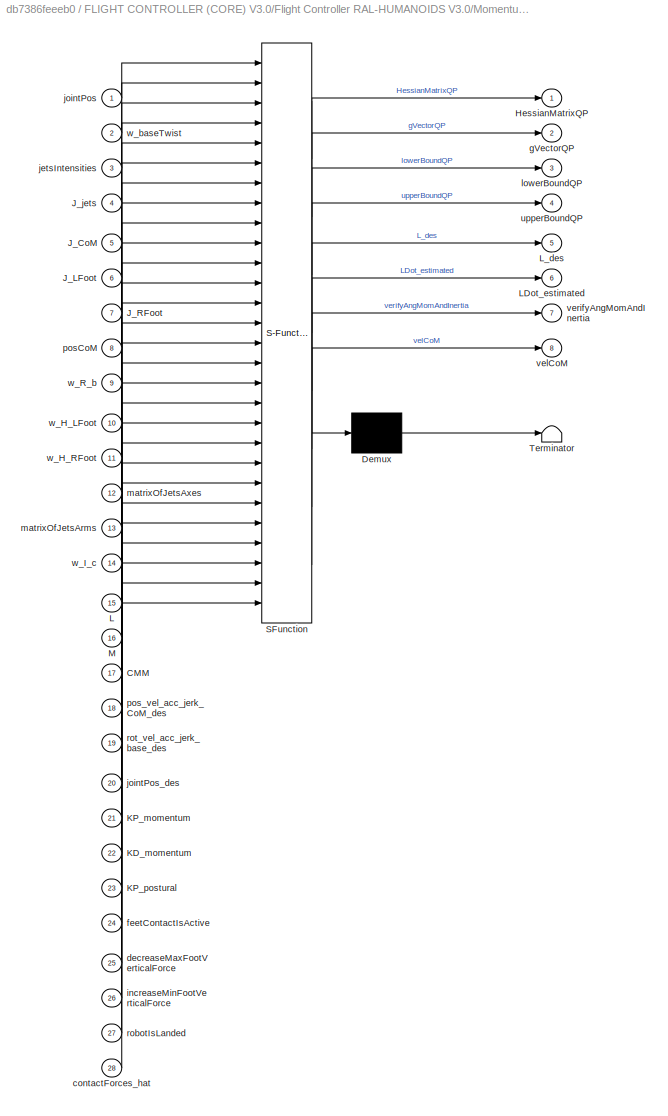
BLOCK [SubSystem] FLIGHT CONTROLLER (CORE) V3.0/Flight Controller RAL-HUMANOIDS V3.0/Momentum Control for Flying/Momentum Control/Flying Controller Momentum FCN 
  ErrorFcn = Stateflow.Translate.translate
  PermitHierarchicalResolution = ExplicitOnly
  Ports = [28, 8]
  RequestExecContextInheritance = off
  SFBlockType = MATLAB Function
  TreatAsAtomicUnit = on
BLOCK [Demux] FLIGHT CONTROLLER (CORE) V3.0/Flight Controller RAL-HUMANOIDS V3.0/Momentum Control for Flying/Momentum Control/Flying Controller Momentum FCN / Demux 
  Outputs = 1
  Ports = [1, 1]
BLOCK [S-Function] FLIGHT CONTROLLER (CORE) V3.0/Flight Controller RAL-HUMANOIDS V3.0/Momentum Control for Flying/Momentum Control/Flying Controller Momentum FCN / SFunction 
  EnableBusSupport = off
  FunctionName = sf_sfun
  Parameters = Config
  PortCounts = [28 9]
  Ports = [28, 9]
  SFcnIsStateOwnerBlock = off
  SFunctionDeploymentMode = off
  Tag = Stateflow S-Function 7
BLOCK [Terminator] FLIGHT CONTROLLER (CORE) V3.0/Flight Controller RAL-HUMANOIDS V3.0/Momentum Control for Flying/Momentum Control/Flying Controller Momentum FCN / Terminator 
BLOCK [Inport] FLIGHT CONTROLLER (CORE) V3.0/Flight Controller RAL-HUMANOIDS V3.0/Momentum Control for Flying/Momentum Control/Flying Controller Momentum FCN /CMM
  Port = 17
BLOCK [Outport] FLIGHT CONTROLLER (CORE) V3.0/Flight Controller RAL-HUMANOIDS V3.0/Momentum Control for Flying/Momentum Control/Flying Controller Momentum FCN /HessianMatrixQP
  VectorParamsAs1DForOutWhenUnconnected = off
BLOCK [Inport] FLIGHT CONTROLLER (CORE) V3.0/Flight Controller RAL-HUMANOIDS V3.0/Momentum Control for Flying/Momentum Control/Flying Controller Momentum FCN /J_CoM
  Port = 5
BLOCK [Inport] FLIGHT CONTROLLER (CORE) V3.0/Flight Controller RAL-HUMANOIDS V3.0/Momentum Control for Flying/Momentum Control/Flying Controller Momentum FCN /J_LFoot
  Port = 6
BLOCK [Inport] FLIGHT CONTROLLER (CORE) V3.0/Flight Controller RAL-HUMANOIDS V3.0/Momentum Control for Flying/Momentum Control/Flying Controller Momentum FCN /J_RFoot
  Port = 7
BLOCK [Inport] FLIGHT CONTROLLER (CORE) V3.0/Flight Controller RAL-HUMANOIDS V3.0/Momentum Control for Flying/Momentum Control/Flying Controller Momentum FCN /J_jets
  Port = 4
BLOCK [Inport] FLIGHT CONTROLLER (CORE) V3.0/Flight Controller RAL-HUMANOIDS V3.0/Momentum Control for Flying/Momentum Control/Flying Controller Momentum FCN /KD_momentum
  Port = 22
BLOCK [Inport] FLIGHT CONTROLLER (CORE) V3.0/Flight Controller RAL-HUMANOIDS V3.0/Momentum Control for Flying/Momentum Control/Flying Controller Momentum FCN /KP_momentum
  Port = 21
BLOCK [Inport] FLIGHT CONTROLLER (CORE) V3.0/Flight Controller RAL-HUMANOIDS V3.0/Momentum Control for Flying/Momentum Control/Flying Controller Momentum FCN /KP_postural
  Port = 23
BLOCK [Inport] FLIGHT CONTROLLER (CORE) V3.0/Flight Controller RAL-HUMANOIDS V3.0/Momentum Control for Flying/Momentum Control/Flying Controller Momentum FCN /L
  Port = 15
BLOCK [Outport] FLIGHT CONTROLLER (CORE) V3.0/Flight Controller RAL-HUMANOIDS V3.0/Momentum Control for Flying/Momentum Control/Flying Controller Momentum FCN /LDot_estimated
  Port = 6
  VectorParamsAs1DForOutWhenUnconnected = off
BLOCK [Outport] FLIGHT CONTROLLER (CORE) V3.0/Flight Controller RAL-HUMANOIDS V3.0/Momentum Control for Flying/Momentum Control/Flying Controller Momentum FCN /L_des
  Port = 5
  VectorParamsAs1DForOutWhenUnconnected = off
BLOCK [Inport] FLIGHT CONTROLLER (CORE) V3.0/Flight Controller RAL-HUMANOIDS V3.0/Momentum Control for Flying/Momentum Control/Flying Controller Momentum FCN /M
  Port = 16
BLOCK [Inport] FLIGHT CONTROLLER (CORE) V3.0/Flight Controller RAL-HUMANOIDS V3.0/Momentum Control for Flying/Momentum Control/Flying Controller Momentum FCN /contactForces_hat
  Port = 28
BLOCK [Inport] FLIGHT CONTROLLER (CORE) V3.0/Flight Controller RAL-HUMANOIDS V3.0/Momentum Control for Flying/Momentum Control/Flying Controller Momentum FCN /decreaseMaxFootVerticalForce
  Port = 25
BLOCK [Inport] FLIGHT CONTROLLER (CORE) V3.0/Flight Controller RAL-HUMANOIDS V3.0/Momentum Control for Flying/Momentum Control/Flying Controller Momentum FCN /feetContactIsActive
  Port = 24
BLOCK [Outport] FLIGHT CONTROLLER (CORE) V3.0/Flight Controller RAL-HUMANOIDS V3.0/Momentum Control for Flying/Momentum Control/Flying Controller Momentum FCN /gVectorQP
  Port = 2
  VectorParamsAs1DForOutWhenUnconnected = off
BLOCK [Inport] FLIGHT CONTROLLER (CORE) V3.0/Flight Controller RAL-HUMANOIDS V3.0/Momentum Control for Flying/Momentum Control/Flying Controller Momentum FCN /increaseMinFootVerticalForce
  Port = 26
BLOCK [Inport] FLIGHT CONTROLLER (CORE) V3.0/Flight Controller RAL-HUMANOIDS V3.0/Momentum Control for Flying/Momentum Control/Flying Controller Momentum FCN /jetsIntensities
  Port = 3
BLOCK [Inport] FLIGHT CONTROLLER (CORE) V3.0/Flight Controller RAL-HUMANOIDS V3.0/Momentum Control for Flying/Momentum Control/Flying Controller Momentum FCN /jointPos
BLOCK [Inport] FLIGHT CONTROLLER (CORE) V3.0/Flight Controller RAL-HUMANOIDS V3.0/Momentum Control for Flying/Momentum Control/Flying Controller Momentum FCN /jointPos_des
  Port = 20
BLOCK [Outport] FLIGHT CONTROLLER (CORE) V3.0/Flight Controller RAL-HUMANOIDS V3.0/Momentum Control for Flying/Momentum Control/Flying Controller Momentum FCN /lowerBoundQP
  Port = 3
  VectorParamsAs1DForOutWhenUnconnected = off
BLOCK [Inport] FLIGHT CONTROLLER (CORE) V3.0/Flight Controller RAL-HUMANOIDS V3.0/Momentum Control for Flying/Momentum Control/Flying Controller Momentum FCN /matrixOfJetsArms
  Port = 13
BLOCK [Inport] FLIGHT CONTROLLER (CORE) V3.0/Flight Controller RAL-HUMANOIDS V3.0/Momentum Control for Flying/Momentum Control/Flying Controller Momentum FCN /matrixOfJetsAxes
  Port = 12
BLOCK [Inport] FLIGHT CONTROLLER (CORE) V3.0/Flight Controller RAL-HUMANOIDS V3.0/Momentum Control for Flying/Momentum Control/Flying Controller Momentum FCN /posCoM
  Port = 8
BLOCK [Inport] FLIGHT CONTROLLER (CORE) V3.0/Flight Controller RAL-HUMANOIDS V3.0/Momentum Control for Flying/Momentum Control/Flying Controller Momentum FCN /pos_vel_acc_jerk_CoM_des
  Port = 18
BLOCK [Inport] FLIGHT CONTROLLER (CORE) V3.0/Flight Controller RAL-HUMANOIDS V3.0/Momentum Control for Flying/Momentum Control/Flying Controller Momentum FCN /robotIsLanded
  Port = 27
BLOCK [Inport] FLIGHT CONTROLLER (CORE) V3.0/Flight Controller RAL-HUMANOIDS V3.0/Momentum Control for Flying/Momentum Control/Flying Controller Momentum FCN /rot_vel_acc_jerk_base_des
  Port = 19
BLOCK [Outport] FLIGHT CONTROLLER (CORE) V3.0/Flight Controller RAL-HUMANOIDS V3.0/Momentum Control for Flying/Momentum Control/Flying Controller Momentum FCN /upperBoundQP
  Port = 4
  VectorParamsAs1DForOutWhenUnconnected = off
BLOCK [Outport] FLIGHT CONTROLLER (CORE) V3.0/Flight Controller RAL-HUMANOIDS V3.0/Momentum Control for Flying/Momentum Control/Flying Controller Momentum FCN /velCoM
  Port = 8
BLOCK [Outport] FLIGHT CONTROLLER (CORE) V3.0/Flight Controller RAL-HUMANOIDS V3.0/Momentum Control for Flying/Momentum Control/Flying Controller Momentum FCN /verifyAngMomAndInertia
  Port = 7
  VectorParamsAs1DForOutWhenUnconnected = off
BLOCK [Inport] FLIGHT CONTROLLER (CORE) V3.0/Flight Controller RAL-HUMANOIDS V3.0/Momentum Control for Flying/Momentum Control/Flying Controller Momentum FCN /w_H_LFoot
  Port = 10
BLOCK [Inport] FLIGHT CONTROLLER (CORE) V3.0/Flight Controller RAL-HUMANOIDS V3.0/Momentum Control for Flying/Momentum Control/Flying Controller Momentum FCN /w_H_RFoot
  Port = 11
BLOCK [Inport] FLIGHT CONTROLLER (CORE) V3.0/Flight Controller RAL-HUMANOIDS V3.0/Momentum Control for Flying/Momentum Control/Flying Controller Momentum FCN /w_I_c
  Port = 14
BLOCK [Inport] FLIGHT CONTROLLER (CORE) V3.0/Flight Controller RAL-HUMANOIDS V3.0/Momentum Control for Flying/Momentum Control/Flying Controller Momentum FCN /w_R_b
  Port = 9
BLOCK [Inport] FLIGHT CONTROLLER (CORE) V3.0/Flight Controller RAL-HUMANOIDS V3.0/Momentum Control for Flying/Momentum Control/Flying Controller Momentum FCN /w_baseTwist
  Port = 2
BLOCK [Goto] FLIGHT CONTROLLER (CORE) V3.0/Flight Controller RAL-HUMANOIDS V3.0/Momentum Control for Flying/Momentum Control/Goto
  GotoTag = velCoM
  TagVisibility = global
BLOCK [Goto] FLIGHT CONTROLLER (CORE) V3.0/Flight Controller RAL-HUMANOIDS V3.0/Momentum Control for Flying/Momentum Control/Goto2
  GotoTag = momentum_des
  TagVisibility = global
BLOCK [Goto] FLIGHT CONTROLLER (CORE) V3.0/Flight Controller RAL-HUMANOIDS V3.0/Momentum Control for Flying/Momentum Control/Goto5
  GotoTag = verifyAngMomAndInertia
  TagVisibility = global
BLOCK [Goto] FLIGHT CONTROLLER (CORE) V3.0/Flight Controller RAL-HUMANOIDS V3.0/Momentum Control for Flying/Momentum Control/Goto6
  GotoTag = LDot_estimated
  TagVisibility = global
BLOCK [Outport] FLIGHT CONTROLLER (CORE) V3.0/Flight Controller RAL-HUMANOIDS V3.0/Momentum Control for Flying/Momentum Control/HessianMatrixQP
  VectorParamsAs1DForOutWhenUnconnected = off
BLOCK [Inport] FLIGHT CONTROLLER (CORE) V3.0/Flight Controller RAL-HUMANOIDS V3.0/Momentum Control for Flying/Momentum Control/contactForces_hat
BLOCK [Inport] FLIGHT CONTROLLER (CORE) V3.0/Flight Controller RAL-HUMANOIDS V3.0/Momentum Control for Flying/Momentum Control/dynamics
  Port = 4
BLOCK [Outport] FLIGHT CONTROLLER (CORE) V3.0/Flight Controller RAL-HUMANOIDS V3.0/Momentum Control for Flying/Momentum Control/gVectorQP
  Port = 2
  VectorParamsAs1DForOutWhenUnconnected = off
BLOCK [Inport] FLIGHT CONTROLLER (CORE) V3.0/Flight Controller RAL-HUMANOIDS V3.0/Momentum Control for Flying/Momentum Control/gainsAndReferences
  Port = 5
BLOCK [Inport] FLIGHT CONTROLLER (CORE) V3.0/Flight Controller RAL-HUMANOIDS V3.0/Momentum Control for Flying/Momentum Control/kinematics
  Port = 3
BLOCK [Outport] FLIGHT CONTROLLER (CORE) V3.0/Flight Controller RAL-HUMANOIDS V3.0/Momentum Control for Flying/Momentum Control/lowerBoundQP
  Port = 3
  VectorParamsAs1DForOutWhenUnconnected = off
BLOCK [Inport] FLIGHT CONTROLLER (CORE) V3.0/Flight Controller RAL-HUMANOIDS V3.0/Momentum Control for Flying/Momentum Control/stateMachineQuantitites
  Port = 6
BLOCK [Inport] FLIGHT CONTROLLER (CORE) V3.0/Flight Controller RAL-HUMANOIDS V3.0/Momentum Control for Flying/Momentum Control/systemState
  Port = 2
BLOCK [Outport] FLIGHT CONTROLLER (CORE) V3.0/Flight Controller RAL-HUMANOIDS V3.0/Momentum Control for Flying/Momentum Control/uppeBoundQP
  Port = 4
  VectorParamsAs1DForOutWhenUnconnected = off
BLOCK [SubSystem] FLIGHT CONTROLLER (CORE) V3.0/Flight Controller RAL-HUMANOIDS V3.0/Momentum Control for Flying/QP Solver and Integrate Contact Forces Derivative
  Ports = [6, 3]
  RequestExecContextInheritance = off
BLOCK [BusSelector] FLIGHT CONTROLLER (CORE) V3.0/Flight Controller RAL-HUMANOIDS V3.0/Momentum Control for Flying/QP Solver and Integrate Contact Forces Derivative/Bus Selector1
  OutputSignals = feetContactIsActive
  Ports = [1, 1]
BLOCK [BusSelector] FLIGHT CONTROLLER (CORE) V3.0/Flight Controller RAL-HUMANOIDS V3.0/Momentum Control for Flying/QP Solver and Integrate Contact Forces Derivative/Bus Selector2
  OutputSignals = contactForces
  Ports = [1, 1]
BLOCK [Goto] FLIGHT CONTROLLER (CORE) V3.0/Flight Controller RAL-HUMANOIDS V3.0/Momentum Control for Flying/QP Solver and Integrate Contact Forces Derivative/Goto
  GotoTag = contactForces_star
  TagVisibility = global
BLOCK [Goto] FLIGHT CONTROLLER (CORE) V3.0/Flight Controller RAL-HUMANOIDS V3.0/Momentum Control for Flying/QP Solver and Integrate Contact Forces Derivative/Goto1
  GotoTag = exitFlagQP_momentumControl
  TagVisibility = global
BLOCK [Goto] FLIGHT CONTROLLER (CORE) V3.0/Flight Controller RAL-HUMANOIDS V3.0/Momentum Control for Flying/QP Solver and Integrate Contact Forces Derivative/Goto3
  GotoTag = jointVel_star
  TagVisibility = global
BLOCK [Goto] FLIGHT CONTROLLER (CORE) V3.0/Flight Controller RAL-HUMANOIDS V3.0/Momentum Control for Flying/QP Solver and Integrate Contact Forces Derivative/Goto4
  GotoTag = jetsIntensitiesDot_star
  TagVisibility = global
BLOCK [Inport] FLIGHT CONTROLLER (CORE) V3.0/Flight Controller RAL-HUMANOIDS V3.0/Momentum Control for Flying/QP Solver and Integrate Contact Forces Derivative/HessianMatrixQP
BLOCK [SubSystem] FLIGHT CONTROLLER (CORE) V3.0/Flight Controller RAL-HUMANOIDS V3.0/Momentum Control for Flying/QP Solver and Integrate Contact Forces Derivative/Integrate the Contact Forces Derivative
  Ports = [3, 1]
  RequestExecContextInheritance = off
BLOCK [DiscreteIntegrator] FLIGHT CONTROLLER (CORE) V3.0/Flight Controller RAL-HUMANOIDS V3.0/Momentum Control for Flying/QP Solver and Integrate Contact Forces Derivative/Integrate the Contact Forces Derivative/Discrete-Time Integrator1
  ExternalReset = either
  ICPrevOutput = DiscIntNeverNeededParam
  ICPrevScaledInput = DiscIntNeverNeededParam
  InitialCondition = zeros(6,1)
  InitialConditionSetting = Auto
  InitialConditionSource = external
  Ports = [3, 1]
  SampleTime = Config.tStep
BLOCK [Goto] FLIGHT CONTROLLER (CORE) V3.0/Flight Controller RAL-HUMANOIDS V3.0/Momentum Control for Flying/QP Solver and Integrate Contact Forces Derivative/Integrate the Contact Forces Derivative/Goto
  GotoTag = contactForcesDot_star
  TagVisibility = global
BLOCK [SubSystem] FLIGHT CONTROLLER (CORE) V3.0/Flight Controller RAL-HUMANOIDS V3.0/Momentum Control for Flying/QP Solver and Integrate Contact Forces Derivative/Integrate the Contact Forces Derivative/Select Integrator Initial Condition
  ErrorFcn = Stateflow.Translate.translate
  PermitHierarchicalResolution = ExplicitOnly
  Ports = [2, 1]
  RequestExecContextInheritance = off
  SFBlockType = MATLAB Function
  TreatAsAtomicUnit = on
BLOCK [Demux] FLIGHT CONTROLLER (CORE) V3.0/Flight Controller RAL-HUMANOIDS V3.0/Momentum Control for Flying/QP Solver and Integrate Contact Forces Derivative/Integrate the Contact Forces Derivative/Select Integrator Initial Condition/ Demux 
  Outputs = 1
  Ports = [1, 1]
BLOCK [S-Function] FLIGHT CONTROLLER (CORE) V3.0/Flight Controller RAL-HUMANOIDS V3.0/Momentum Control for Flying/QP Solver and Integrate Contact Forces Derivative/Integrate the Contact Forces Derivative/Select Integrator Initial Condition/ SFunction 
  EnableBusSupport = off
  FunctionName = sf_sfun
  PortCounts = [2 2]
  Ports = [2, 2]
  SFcnIsStateOwnerBlock = off
  SFunctionDeploymentMode = off
  Tag = Stateflow S-Function 10
BLOCK [Terminator] FLIGHT CONTROLLER (CORE) V3.0/Flight Controller RAL-HUMANOIDS V3.0/Momentum Control for Flying/QP Solver and Integrate Contact Forces Derivative/Integrate the Contact Forces Derivative/Select Integrator Initial Condition/ Terminator 
BLOCK [Inport] FLIGHT CONTROLLER (CORE) V3.0/Flight Controller RAL-HUMANOIDS V3.0/Momentum Control for Flying/QP Solver and Integrate Contact Forces Derivative/Integrate the Contact Forces Derivative/Select Integrator Initial Condition/contactForces
  Port = 2
BLOCK [Outport] FLIGHT CONTROLLER (CORE) V3.0/Flight Controller RAL-HUMANOIDS V3.0/Momentum Control for Flying/QP Solver and Integrate Contact Forces Derivative/Integrate the Contact Forces Derivative/Select Integrator Initial Condition/contactForces_0
  VectorParamsAs1DForOutWhenUnconnected = off
BLOCK [Inport] FLIGHT CONTROLLER (CORE) V3.0/Flight Controller RAL-HUMANOIDS V3.0/Momentum Control for Flying/QP Solver and Integrate Contact Forces Derivative/Integrate the Contact Forces Derivative/Select Integrator Initial Condition/feetContactIsActive
BLOCK [Inport] FLIGHT CONTROLLER (CORE) V3.0/Flight Controller RAL-HUMANOIDS V3.0/Momentum Control for Flying/QP Solver and Integrate Contact Forces Derivative/Integrate the Contact Forces Derivative/contactForces
  Port = 2
BLOCK [Inport] FLIGHT CONTROLLER (CORE) V3.0/Flight Controller RAL-HUMANOIDS V3.0/Momentum Control for Flying/QP Solver and Integrate Contact Forces Derivative/Integrate the Contact Forces Derivative/contactForcesDot_star
BLOCK [Outport] FLIGHT CONTROLLER (CORE) V3.0/Flight Controller RAL-HUMANOIDS V3.0/Momentum Control for Flying/QP Solver and Integrate Contact Forces Derivative/Integrate the Contact Forces Derivative/contactForces_star
  VectorParamsAs1DForOutWhenUnconnected = off
BLOCK [SubSystem] FLIGHT CONTROLLER (CORE) V3.0/Flight Controller RAL-HUMANOIDS V3.0/Momentum Control for Flying/QP Solver and Integrate Contact Forces Derivative/Integrate the Contact Forces Derivative/deadZone
  Ports = [1, 1]
  RequestExecContextInheritance = off
BLOCK [Constant] FLIGHT CONTROLLER (CORE) V3.0/Flight Controller RAL-HUMANOIDS V3.0/Momentum Control for Flying/QP Solver and Integrate Contact Forces Derivative/Integrate the Contact Forces Derivative/deadZone/Constant
  Value = Config.sat.deadZoneThreshold
BLOCK [SubSystem] FLIGHT CONTROLLER (CORE) V3.0/Flight Controller RAL-HUMANOIDS V3.0/Momentum Control for Flying/QP Solver and Integrate Contact Forces Derivative/Integrate the Contact Forces Derivative/deadZone/Deadzone Function
  ErrorFcn = Stateflow.Translate.translate
  PermitHierarchicalResolution = ExplicitOnly
  Ports = [2, 1]
  RequestExecContextInheritance = off
  SFBlockType = MATLAB Function
  TreatAsAtomicUnit = on
BLOCK [Demux] FLIGHT CONTROLLER (CORE) V3.0/Flight Controller RAL-HUMANOIDS V3.0/Momentum Control for Flying/QP Solver and Integrate Contact Forces Derivative/Integrate the Contact Forces Derivative/deadZone/Deadzone Function/ Demux 
  Outputs = 1
  Ports = [1, 1]
BLOCK [S-Function] FLIGHT CONTROLLER (CORE) V3.0/Flight Controller RAL-HUMANOIDS V3.0/Momentum Control for Flying/QP Solver and Integrate Contact Forces Derivative/Integrate the Contact Forces Derivative/deadZone/Deadzone Function/ SFunction 
  EnableBusSupport = off
  FunctionName = sf_sfun
  PortCounts = [2 2]
  Ports = [2, 2]
  SFcnIsStateOwnerBlock = off
  SFunctionDeploymentMode = off
  Tag = Stateflow S-Function 52
BLOCK [Terminator] FLIGHT CONTROLLER (CORE) V3.0/Flight Controller RAL-HUMANOIDS V3.0/Momentum Control for Flying/QP Solver and Integrate Contact Forces Derivative/Integrate the Contact Forces Derivative/deadZone/Deadzone Function/ Terminator 
BLOCK [Inport] FLIGHT CONTROLLER (CORE) V3.0/Flight Controller RAL-HUMANOIDS V3.0/Momentum Control for Flying/QP Solver and Integrate Contact Forces Derivative/Integrate the Contact Forces Derivative/deadZone/Deadzone Function/thr
  Port = 2
BLOCK [Inport] FLIGHT CONTROLLER (CORE) V3.0/Flight Controller RAL-HUMANOIDS V3.0/Momentum Control for Flying/QP Solver and Integrate Contact Forces Derivative/Integrate the Contact Forces Derivative/deadZone/Deadzone Function/u
BLOCK [Outport] FLIGHT CONTROLLER (CORE) V3.0/Flight Controller RAL-HUMANOIDS V3.0/Momentum Control for Flying/QP Solver and Integrate Contact Forces Derivative/Integrate the Contact Forces Derivative/deadZone/Deadzone Function/y
  VectorParamsAs1DForOutWhenUnconnected = off
BLOCK [Inport] FLIGHT CONTROLLER (CORE) V3.0/Flight Controller RAL-HUMANOIDS V3.0/Momentum Control for Flying/QP Solver and Integrate Contact Forces Derivative/Integrate the Contact Forces Derivative/deadZone/u
BLOCK [Outport] FLIGHT CONTROLLER (CORE) V3.0/Flight Controller RAL-HUMANOIDS V3.0/Momentum Control for Flying/QP Solver and Integrate Contact Forces Derivative/Integrate the Contact Forces Derivative/deadZone/u_cut
  VectorParamsAs1DForOutWhenUnconnected = off
BLOCK [Inport] FLIGHT CONTROLLER (CORE) V3.0/Flight Controller RAL-HUMANOIDS V3.0/Momentum Control for Flying/QP Solver and Integrate Contact Forces Derivative/Integrate the Contact Forces Derivative/feetContactIsActive
  Port = 3
BLOCK [SubSystem] FLIGHT CONTROLLER (CORE) V3.0/Flight Controller RAL-HUMANOIDS V3.0/Momentum Control for Flying/QP Solver and Integrate Contact Forces Derivative/QP momentumControl
  Ports = [5, 4]
  RequestExecContextInheritance = off
BLOCK [Inport] FLIGHT CONTROLLER (CORE) V3.0/Flight Controller RAL-HUMANOIDS V3.0/Momentum Control for Flying/QP Solver and Integrate Contact Forces Derivative/QP momentumControl/HessianMatrixQP
BLOCK [Logic] FLIGHT CONTROLLER (CORE) V3.0/Flight Controller RAL-HUMANOIDS V3.0/Momentum Control for Flying/QP Solver and Integrate Contact Forces Derivative/QP momentumControl/NOT
  AllPortsSameDT = off
  IconShape = distinctive
  NameLocation = right
  Operator = NOT
  OutDataTypeStr = boolean
  Ports = [1, 1]
BLOCK [SubSystem] FLIGHT CONTROLLER (CORE) V3.0/Flight Controller RAL-HUMANOIDS V3.0/Momentum Control for Flying/QP Solver and Integrate Contact Forces Derivative/QP momentumControl/Process QP Inputs Momentum Control
  ErrorFcn = Stateflow.Translate.translate
  PermitHierarchicalResolution = ExplicitOnly
  Ports = [4, 8]
  RequestExecContextInheritance = off
  SFBlockType = MATLAB Function
  TreatAsAtomicUnit = on
BLOCK [Demux] FLIGHT CONTROLLER (CORE) V3.0/Flight Controller RAL-HUMANOIDS V3.0/Momentum Control for Flying/QP Solver and Integrate Contact Forces Derivative/QP momentumControl/Process QP Inputs Momentum Control/ Demux 
  Outputs = 1
  Ports = [1, 1]
BLOCK [S-Function] FLIGHT CONTROLLER (CORE) V3.0/Flight Controller RAL-HUMANOIDS V3.0/Momentum Control for Flying/QP Solver and Integrate Contact Forces Derivative/QP momentumControl/Process QP Inputs Momentum Control/ SFunction 
  EnableBusSupport = off
  FunctionName = sf_sfun
  PortCounts = [4 9]
  Ports = [4, 9]
  SFcnIsStateOwnerBlock = off
  SFunctionDeploymentMode = off
  Tag = Stateflow S-Function 53
BLOCK [Terminator] FLIGHT CONTROLLER (CORE) V3.0/Flight Controller RAL-HUMANOIDS V3.0/Momentum Control for Flying/QP Solver and Integrate Contact Forces Derivative/QP momentumControl/Process QP Inputs Momentum Control/ Terminator 
BLOCK [Outport] FLIGHT CONTROLLER (CORE) V3.0/Flight Controller RAL-HUMANOIDS V3.0/Momentum Control for Flying/QP Solver and Integrate Contact Forces Derivative/QP momentumControl/Process QP Inputs Momentum Control/H_balancing
BLOCK [Outport] FLIGHT CONTROLLER (CORE) V3.0/Flight Controller RAL-HUMANOIDS V3.0/Momentum Control for Flying/QP Solver and Integrate Contact Forces Derivative/QP momentumControl/Process QP Inputs Momentum Control/H_flight
  Port = 5
BLOCK [Inport] FLIGHT CONTROLLER (CORE) V3.0/Flight Controller RAL-HUMANOIDS V3.0/Momentum Control for Flying/QP Solver and Integrate Contact Forces Derivative/QP momentumControl/Process QP Inputs Momentum Control/HessianMatrixQP
BLOCK [Inport] FLIGHT CONTROLLER (CORE) V3.0/Flight Controller RAL-HUMANOIDS V3.0/Momentum Control for Flying/QP Solver and Integrate Contact Forces Derivative/QP momentumControl/Process QP Inputs Momentum Control/gVectorQP
  Port = 2
BLOCK [Outport] FLIGHT CONTROLLER (CORE) V3.0/Flight Controller RAL-HUMANOIDS V3.0/Momentum Control for Flying/QP Solver and Integrate Contact Forces Derivative/QP momentumControl/Process QP Inputs Momentum Control/g_balancing
  Port = 2
BLOCK [Outport] FLIGHT CONTROLLER (CORE) V3.0/Flight Controller RAL-HUMANOIDS V3.0/Momentum Control for Flying/QP Solver and Integrate Contact Forces Derivative/QP momentumControl/Process QP Inputs Momentum Control/g_flight
  Port = 6
BLOCK [Outport] FLIGHT CONTROLLER (CORE) V3.0/Flight Controller RAL-HUMANOIDS V3.0/Momentum Control for Flying/QP Solver and Integrate Contact Forces Derivative/QP momentumControl/Process QP Inputs Momentum Control/lb_balancing
  Port = 4
BLOCK [Outport] FLIGHT CONTROLLER (CORE) V3.0/Flight Controller RAL-HUMANOIDS V3.0/Momentum Control for Flying/QP Solver and Integrate Contact Forces Derivative/QP momentumControl/Process QP Inputs Momentum Control/lb_flight
  Port = 8
BLOCK [Inport] FLIGHT CONTROLLER (CORE) V3.0/Flight Controller RAL-HUMANOIDS V3.0/Momentum Control for Flying/QP Solver and Integrate Contact Forces Derivative/QP momentumControl/Process QP Inputs Momentum Control/lowerBoundQP
  Port = 3
BLOCK [Outport] FLIGHT CONTROLLER (CORE) V3.0/Flight Controller RAL-HUMANOIDS V3.0/Momentum Control for Flying/QP Solver and Integrate Contact Forces Derivative/QP momentumControl/Process QP Inputs Momentum Control/ub_balancing
  Port = 3
BLOCK [Outport] FLIGHT CONTROLLER (CORE) V3.0/Flight Controller RAL-HUMANOIDS V3.0/Momentum Control for Flying/QP Solver and Integrate Contact Forces Derivative/QP momentumControl/Process QP Inputs Momentum Control/ub_flight
  Port = 7
BLOCK [Inport] FLIGHT CONTROLLER (CORE) V3.0/Flight Controller RAL-HUMANOIDS V3.0/Momentum Control for Flying/QP Solver and Integrate Contact Forces Derivative/QP momentumControl/Process QP Inputs Momentum Control/upperBoundQP
  Port = 4
BLOCK [SubSystem] FLIGHT CONTROLLER (CORE) V3.0/Flight Controller RAL-HUMANOIDS V3.0/Momentum Control for Flying/QP Solver and Integrate Contact Forces Derivative/QP momentumControl/QP momentumControl - balancing
  NameLocation = top
  Ports = [4, 2, 1]
  RequestExecContextInheritance = off
  TreatAsAtomicUnit = on
BLOCK [Constant] FLIGHT CONTROLLER (CORE) V3.0/Flight Controller RAL-HUMANOIDS V3.0/Momentum Control for Flying/QP Solver and Integrate Contact Forces Derivative/QP momentumControl/QP momentumControl - balancing/Constant
  Value = eye(Config.N_DOF + 12 + 4)
BLOCK [EnablePort] FLIGHT CONTROLLER (CORE) V3.0/Flight Controller RAL-HUMANOIDS V3.0/Momentum Control for Flying/QP Solver and Integrate Contact Forces Derivative/QP momentumControl/QP momentumControl - balancing/Enable
  Ports = []
BLOCK [Inport] FLIGHT CONTROLLER (CORE) V3.0/Flight Controller RAL-HUMANOIDS V3.0/Momentum Control for Flying/QP Solver and Integrate Contact Forces Derivative/QP momentumControl/QP momentumControl - balancing/H
BLOCK [Reference] FLIGHT CONTROLLER (CORE) V3.0/Flight Controller RAL-HUMANOIDS V3.0/Momentum Control for Flying/QP Solver and Integrate Contact Forces Derivative/QP momentumControl/QP momentumControl - balancing/MatchSignalSizes  REF=WBToolboxLibrary/Utilities/MatchSignalSizes
  Ports = [2, 1]
  SourceBlock = WBToolboxLibrary/Utilities/MatchSignalSizes
  SourceProductName = WholeBodyToolbox
  SourceType = MatchSignalSizes
BLOCK [Reference] FLIGHT CONTROLLER (CORE) V3.0/Flight Controller RAL-HUMANOIDS V3.0/Momentum Control for Flying/QP Solver and Integrate Contact Forces Derivative/QP momentumControl/QP momentumControl - balancing/QP  REF=WBToolboxLibrary/Utilities/QP
  Ports = [5, 2]
  SourceBlock = WBToolboxLibrary/Utilities/QP
  SourceProductName = WholeBodyToolbox
  SourceType = QP
BLOCK [Outport] FLIGHT CONTROLLER (CORE) V3.0/Flight Controller RAL-HUMANOIDS V3.0/Momentum Control for Flying/QP Solver and Integrate Contact Forces Derivative/QP momentumControl/QP momentumControl - balancing/QPOutput_balancing
  Port = 2
  VectorParamsAs1DForOutWhenUnconnected = off
BLOCK [Outport] FLIGHT CONTROLLER (CORE) V3.0/Flight Controller RAL-HUMANOIDS V3.0/Momentum Control for Flying/QP Solver and Integrate Contact Forces Derivative/QP momentumControl/QP momentumControl - balancing/QPStatus_balancing
  VectorParamsAs1DForOutWhenUnconnected = off
BLOCK [Inport] FLIGHT CONTROLLER (CORE) V3.0/Flight Controller RAL-HUMANOIDS V3.0/Momentum Control for Flying/QP Solver and Integrate Contact Forces Derivative/QP momentumControl/QP momentumControl - balancing/g
  Port = 2
BLOCK [Inport] FLIGHT CONTROLLER (CORE) V3.0/Flight Controller RAL-HUMANOIDS V3.0/Momentum Control for Flying/QP Solver and Integrate Contact Forces Derivative/QP momentumControl/QP momentumControl - balancing/lb
  Port = 4
BLOCK [Inport] FLIGHT CONTROLLER (CORE) V3.0/Flight Controller RAL-HUMANOIDS V3.0/Momentum Control for Flying/QP Solver and Integrate Contact Forces Derivative/QP momentumControl/QP momentumControl - balancing/ub
  Port = 3
BLOCK [SubSystem] FLIGHT CONTROLLER (CORE) V3.0/Flight Controller RAL-HUMANOIDS V3.0/Momentum Control for Flying/QP Solver and Integrate Contact Forces Derivative/QP momentumControl/QP momentumControl - flight
  Ports = [4, 2, 1]
  RequestExecContextInheritance = off
  TreatAsAtomicUnit = on
BLOCK [Constant] FLIGHT CONTROLLER (CORE) V3.0/Flight Controller RAL-HUMANOIDS V3.0/Momentum Control for Flying/QP Solver and Integrate Contact Forces Derivative/QP momentumControl/QP momentumControl - flight/Constant
  Value = eye(Config.N_DOF + 4)
BLOCK [EnablePort] FLIGHT CONTROLLER (CORE) V3.0/Flight Controller RAL-HUMANOIDS V3.0/Momentum Control for Flying/QP Solver and Integrate Contact Forces Derivative/QP momentumControl/QP momentumControl - flight/Enable
  Ports = []
BLOCK [Inport] FLIGHT CONTROLLER (CORE) V3.0/Flight Controller RAL-HUMANOIDS V3.0/Momentum Control for Flying/QP Solver and Integrate Contact Forces Derivative/QP momentumControl/QP momentumControl - flight/H
BLOCK [Reference] FLIGHT CONTROLLER (CORE) V3.0/Flight Controller RAL-HUMANOIDS V3.0/Momentum Control for Flying/QP Solver and Integrate Contact Forces Derivative/QP momentumControl/QP momentumControl - flight/MatchSignalSizes  REF=WBToolboxLibrary/Utilities/MatchSignalSizes
  Ports = [2, 1]
  SourceBlock = WBToolboxLibrary/Utilities/MatchSignalSizes
  SourceProductName = WholeBodyToolbox
  SourceType = MatchSignalSizes
BLOCK [Reference] FLIGHT CONTROLLER (CORE) V3.0/Flight Controller RAL-HUMANOIDS V3.0/Momentum Control for Flying/QP Solver and Integrate Contact Forces Derivative/QP momentumControl/QP momentumControl - flight/QP flight-momentumControl  REF=WBToolboxLibrary/Utilities/QP
  Ports = [5, 2]
  SourceBlock = WBToolboxLibrary/Utilities/QP
  SourceProductName = WholeBodyToolbox
  SourceType = QP
BLOCK [Outport] FLIGHT CONTROLLER (CORE) V3.0/Flight Controller RAL-HUMANOIDS V3.0/Momentum Control for Flying/QP Solver and Integrate Contact Forces Derivative/QP momentumControl/QP momentumControl - flight/QPOutput_flight
  Port = 2
  VectorParamsAs1DForOutWhenUnconnected = off
BLOCK [Outport] FLIGHT CONTROLLER (CORE) V3.0/Flight Controller RAL-HUMANOIDS V3.0/Momentum Control for Flying/QP Solver and Integrate Contact Forces Derivative/QP momentumControl/QP momentumControl - flight/QPStatus_flight
  VectorParamsAs1DForOutWhenUnconnected = off
BLOCK [Inport] FLIGHT CONTROLLER (CORE) V3.0/Flight Controller RAL-HUMANOIDS V3.0/Momentum Control for Flying/QP Solver and Integrate Contact Forces Derivative/QP momentumControl/QP momentumControl - flight/g
  Port = 2
BLOCK [Inport] FLIGHT CONTROLLER (CORE) V3.0/Flight Controller RAL-HUMANOIDS V3.0/Momentum Control for Flying/QP Solver and Integrate Contact Forces Derivative/QP momentumControl/QP momentumControl - flight/lb
  Port = 4
BLOCK [Inport] FLIGHT CONTROLLER (CORE) V3.0/Flight Controller RAL-HUMANOIDS V3.0/Momentum Control for Flying/QP Solver and Integrate Contact Forces Derivative/QP momentumControl/QP momentumControl - flight/ub
  Port = 3
BLOCK [SubSystem] FLIGHT CONTROLLER (CORE) V3.0/Flight Controller RAL-HUMANOIDS V3.0/Momentum Control for Flying/QP Solver and Integrate Contact Forces Derivative/QP momentumControl/Select QP momentumControl Output
  Ports = [5, 4]
  RequestExecContextInheritance = off
BLOCK [Constant] FLIGHT CONTROLLER (CORE) V3.0/Flight Controller RAL-HUMANOIDS V3.0/Momentum Control for Flying/QP Solver and Integrate Contact Forces Derivative/QP momentumControl/Select QP momentumControl Output/Constant
  Value = zeros(12,1)
BLOCK [Demux] FLIGHT CONTROLLER (CORE) V3.0/Flight Controller RAL-HUMANOIDS V3.0/Momentum Control for Flying/QP Solver and Integrate Contact Forces Derivative/QP momentumControl/Select QP momentumControl Output/Demux
  Outputs = [4;12;Config.N_DOF]
  Ports = [1, 3]
BLOCK [Demux] FLIGHT CONTROLLER (CORE) V3.0/Flight Controller RAL-HUMANOIDS V3.0/Momentum Control for Flying/QP Solver and Integrate Contact Forces Derivative/QP momentumControl/Select QP momentumControl Output/Demux1
  Outputs = [4;Config.N_DOF]
  Ports = [1, 2]
BLOCK [Inport] FLIGHT CONTROLLER (CORE) V3.0/Flight Controller RAL-HUMANOIDS V3.0/Momentum Control for Flying/QP Solver and Integrate Contact Forces Derivative/QP momentumControl/Select QP momentumControl Output/QPOutput_balancing
  Port = 2
BLOCK [Inport] FLIGHT CONTROLLER (CORE) V3.0/Flight Controller RAL-HUMANOIDS V3.0/Momentum Control for Flying/QP Solver and Integrate Contact Forces Derivative/QP momentumControl/Select QP momentumControl Output/QPOutput_flight
  Port = 5
BLOCK [Inport] FLIGHT CONTROLLER (CORE) V3.0/Flight Controller RAL-HUMANOIDS V3.0/Momentum Control for Flying/QP Solver and Integrate Contact Forces Derivative/QP momentumControl/Select QP momentumControl Output/QPStatus_balancing
BLOCK [Inport] FLIGHT CONTROLLER (CORE) V3.0/Flight Controller RAL-HUMANOIDS V3.0/Momentum Control for Flying/QP Solver and Integrate Contact Forces Derivative/QP momentumControl/Select QP momentumControl Output/QPStatus_flight
  Port = 4
BLOCK [Switch] FLIGHT CONTROLLER (CORE) V3.0/Flight Controller RAL-HUMANOIDS V3.0/Momentum Control for Flying/QP Solver and Integrate Contact Forces Derivative/QP momentumControl/Select QP momentumControl Output/Switch
  Criteria = u2 > Threshold
  InputSameDT = off
  SaturateOnIntegerOverflow = off
BLOCK [Switch] FLIGHT CONTROLLER (CORE) V3.0/Flight Controller RAL-HUMANOIDS V3.0/Momentum Control for Flying/QP Solver and Integrate Contact Forces Derivative/QP momentumControl/Select QP momentumControl Output/Switch1
  Criteria = u2 > Threshold
  InputSameDT = off
  SaturateOnIntegerOverflow = off
BLOCK [Switch] FLIGHT CONTROLLER (CORE) V3.0/Flight Controller RAL-HUMANOIDS V3.0/Momentum Control for Flying/QP Solver and Integrate Contact Forces Derivative/QP momentumControl/Select QP momentumControl Output/Switch2
  Criteria = u2 > Threshold
  InputSameDT = off
  SaturateOnIntegerOverflow = off
BLOCK [Switch] FLIGHT CONTROLLER (CORE) V3.0/Flight Controller RAL-HUMANOIDS V3.0/Momentum Control for Flying/QP Solver and Integrate Contact Forces Derivative/QP momentumControl/Select QP momentumControl Output/Switch3
  Criteria = u2 > Threshold
  InputSameDT = off
  SaturateOnIntegerOverflow = off
BLOCK [Outport] FLIGHT CONTROLLER (CORE) V3.0/Flight Controller RAL-HUMANOIDS V3.0/Momentum Control for Flying/QP Solver and Integrate Contact Forces Derivative/QP momentumControl/Select QP momentumControl Output/contactForcesDot_star
  Port = 2
  VectorParamsAs1DForOutWhenUnconnected = off
BLOCK [Outport] FLIGHT CONTROLLER (CORE) V3.0/Flight Controller RAL-HUMANOIDS V3.0/Momentum Control for Flying/QP Solver and Integrate Contact Forces Derivative/QP momentumControl/Select QP momentumControl Output/exitFlagQP_momentumControl
  Port = 4
  VectorParamsAs1DForOutWhenUnconnected = off
BLOCK [Inport] FLIGHT CONTROLLER (CORE) V3.0/Flight Controller RAL-HUMANOIDS V3.0/Momentum Control for Flying/QP Solver and Integrate Contact Forces Derivative/QP momentumControl/Select QP momentumControl Output/feetContactIsActive
  Port = 3
BLOCK [Outport] FLIGHT CONTROLLER (CORE) V3.0/Flight Controller RAL-HUMANOIDS V3.0/Momentum Control for Flying/QP Solver and Integrate Contact Forces Derivative/QP momentumControl/Select QP momentumControl Output/jetsIntensitiesDot_star
  VectorParamsAs1DForOutWhenUnconnected = off
BLOCK [Outport] FLIGHT CONTROLLER (CORE) V3.0/Flight Controller RAL-HUMANOIDS V3.0/Momentum Control for Flying/QP Solver and Integrate Contact Forces Derivative/QP momentumControl/Select QP momentumControl Output/jointVel_star
  Port = 3
  VectorParamsAs1DForOutWhenUnconnected = off
BLOCK [Outport] FLIGHT CONTROLLER (CORE) V3.0/Flight Controller RAL-HUMANOIDS V3.0/Momentum Control for Flying/QP Solver and Integrate Contact Forces Derivative/QP momentumControl/contactForcesDot_star
  Port = 2
  VectorParamsAs1DForOutWhenUnconnected = off
BLOCK [Outport] FLIGHT CONTROLLER (CORE) V3.0/Flight Controller RAL-HUMANOIDS V3.0/Momentum Control for Flying/QP Solver and Integrate Contact Forces Derivative/QP momentumControl/exitFlagQP_momentumControl
  Port = 4
  VectorParamsAs1DForOutWhenUnconnected = off
BLOCK [Inport] FLIGHT CONTROLLER (CORE) V3.0/Flight Controller RAL-HUMANOIDS V3.0/Momentum Control for Flying/QP Solver and Integrate Contact Forces Derivative/QP momentumControl/feetContactIsActive
  Port = 5
BLOCK [Inport] FLIGHT CONTROLLER (CORE) V3.0/Flight Controller RAL-HUMANOIDS V3.0/Momentum Control for Flying/QP Solver and Integrate Contact Forces Derivative/QP momentumControl/gVectorQP
  Port = 2
BLOCK [Outport] FLIGHT CONTROLLER (CORE) V3.0/Flight Controller RAL-HUMANOIDS V3.0/Momentum Control for Flying/QP Solver and Integrate Contact Forces Derivative/QP momentumControl/jetsIntensitiesDot_star
  VectorParamsAs1DForOutWhenUnconnected = off
BLOCK [Outport] FLIGHT CONTROLLER (CORE) V3.0/Flight Controller RAL-HUMANOIDS V3.0/Momentum Control for Flying/QP Solver and Integrate Contact Forces Derivative/QP momentumControl/jointVel_star
  Port = 3
  VectorParamsAs1DForOutWhenUnconnected = off
BLOCK [Inport] FLIGHT CONTROLLER (CORE) V3.0/Flight Controller RAL-HUMANOIDS V3.0/Momentum Control for Flying/QP Solver and Integrate Contact Forces Derivative/QP momentumControl/lowerBoundQP
  Port = 3
BLOCK [Inport] FLIGHT CONTROLLER (CORE) V3.0/Flight Controller RAL-HUMANOIDS V3.0/Momentum Control for Flying/QP Solver and Integrate Contact Forces Derivative/QP momentumControl/upperBoundQP
  Port = 4
BLOCK [Outport] FLIGHT CONTROLLER (CORE) V3.0/Flight Controller RAL-HUMANOIDS V3.0/Momentum Control for Flying/QP Solver and Integrate Contact Forces Derivative/contactForces_star
  VectorParamsAs1DForOutWhenUnconnected = off
BLOCK [Inport] FLIGHT CONTROLLER (CORE) V3.0/Flight Controller RAL-HUMANOIDS V3.0/Momentum Control for Flying/QP Solver and Integrate Contact Forces Derivative/gVectorQP
  Port = 2
BLOCK [Outport] FLIGHT CONTROLLER (CORE) V3.0/Flight Controller RAL-HUMANOIDS V3.0/Momentum Control for Flying/QP Solver and Integrate Contact Forces Derivative/jetsIntensitiesDot_star
  Port = 2
  VectorParamsAs1DForOutWhenUnconnected = off
BLOCK [Outport] FLIGHT CONTROLLER (CORE) V3.0/Flight Controller RAL-HUMANOIDS V3.0/Momentum Control for Flying/QP Solver and Integrate Contact Forces Derivative/jointVel_star
  Port = 3
  VectorParamsAs1DForOutWhenUnconnected = off
BLOCK [Inport] FLIGHT CONTROLLER (CORE) V3.0/Flight Controller RAL-HUMANOIDS V3.0/Momentum Control for Flying/QP Solver and Integrate Contact Forces Derivative/lowerBoundQP
  Port = 3
BLOCK [Inport] FLIGHT CONTROLLER (CORE) V3.0/Flight Controller RAL-HUMANOIDS V3.0/Momentum Control for Flying/QP Solver and Integrate Contact Forces Derivative/stateMachineQuantities
  Port = 5
BLOCK [Inport] FLIGHT CONTROLLER (CORE) V3.0/Flight Controller RAL-HUMANOIDS V3.0/Momentum Control for Flying/QP Solver and Integrate Contact Forces Derivative/systemState
  Port = 6
BLOCK [Inport] FLIGHT CONTROLLER (CORE) V3.0/Flight Controller RAL-HUMANOIDS V3.0/Momentum Control for Flying/QP Solver and Integrate Contact Forces Derivative/upperBoundQP
  Port = 4
BLOCK [Outport] FLIGHT CONTROLLER (CORE) V3.0/Flight Controller RAL-HUMANOIDS V3.0/Momentum Control for Flying/contactForces_star
  Port = 2
  VectorParamsAs1DForOutWhenUnconnected = off
BLOCK [Inport] FLIGHT CONTROLLER (CORE) V3.0/Flight Controller RAL-HUMANOIDS V3.0/Momentum Control for Flying/dynamics
  Port = 5
BLOCK [Inport] FLIGHT CONTROLLER (CORE) V3.0/Flight Controller RAL-HUMANOIDS V3.0/Momentum Control for Flying/gainsAndReferences
  Port = 2
BLOCK [Outport] FLIGHT CONTROLLER (CORE) V3.0/Flight Controller RAL-HUMANOIDS V3.0/Momentum Control for Flying/jetsIntensitiesDot_star
  Port = 3
  VectorParamsAs1DForOutWhenUnconnected = off
BLOCK [Outport] FLIGHT CONTROLLER (CORE) V3.0/Flight Controller RAL-HUMANOIDS V3.0/Momentum Control for Flying/jointVel_star
  VectorParamsAs1DForOutWhenUnconnected = off
BLOCK [Inport] FLIGHT CONTROLLER (CORE) V3.0/Flight Controller RAL-HUMANOIDS V3.0/Momentum Control for Flying/kinematics
  Port = 4
BLOCK [Inport] FLIGHT CONTROLLER (CORE) V3.0/Flight Controller RAL-HUMANOIDS V3.0/Momentum Control for Flying/stateMachineQuantitites
BLOCK [Inport] FLIGHT CONTROLLER (CORE) V3.0/Flight Controller RAL-HUMANOIDS V3.0/Momentum Control for Flying/systemState
  Port = 3
BLOCK [Inport] FLIGHT CONTROLLER (CORE) V3.0/Flight Controller RAL-HUMANOIDS V3.0/dynamics
  Port = 5
BLOCK [Inport] FLIGHT CONTROLLER (CORE) V3.0/Flight Controller RAL-HUMANOIDS V3.0/gainsAndReferences
  Port = 2
BLOCK [Outport] FLIGHT CONTROLLER (CORE) V3.0/Flight Controller RAL-HUMANOIDS V3.0/jetsIntensitiesDot_star
  Port = 2
  VectorParamsAs1DForOutWhenUnconnected = off
BLOCK [Outport] FLIGHT CONTROLLER (CORE) V3.0/Flight Controller RAL-HUMANOIDS V3.0/jointTorques_star
  VectorParamsAs1DForOutWhenUnconnected = off
BLOCK [Inport] FLIGHT CONTROLLER (CORE) V3.0/Flight Controller RAL-HUMANOIDS V3.0/kinematics
  Port = 4
BLOCK [Inport] FLIGHT CONTROLLER (CORE) V3.0/Flight Controller RAL-HUMANOIDS V3.0/stateMachineQuantitites
BLOCK [Inport] FLIGHT CONTROLLER (CORE) V3.0/Flight Controller RAL-HUMANOIDS V3.0/systemState
  Port = 3
BLOCK [Reference] FLIGHT CONTROLLER (CORE) V3.0/Flight State Machine  REF=momentum_flight_control_v1/Flight State Machine  (lib defined in slx_fc105a0923ff)
  Ports = [3, 2]
  SourceBlock = momentum_flight_control_v1/Flight State Machine
  SourceProductName = iRonCub Library v1
BLOCK [SubSystem] FLIGHT CONTROLLER (CORE) V3.0/Get System State
  Ports = [7, 1]
  RequestExecContextInheritance = off
BLOCK [BusCreator] FLIGHT CONTROLLER (CORE) V3.0/Get System State/Bus Creator1
  DisplayOption = bar
  InheritFromInputs = on
  Inputs = 7
  Ports = [7, 1]
BLOCK [SubSystem] FLIGHT CONTROLLER (CORE) V3.0/Get System State/Change Contact Forces Representation
  Ports = [3, 1]
  RequestExecContextInheritance = off
BLOCK [SubSystem] FLIGHT CONTROLLER (CORE) V3.0/Get System State/Change Contact Forces Representation/Change Contact Forces Representation
  ErrorFcn = Stateflow.Translate.translate
  PermitHierarchicalResolution = ExplicitOnly
  Ports = [3, 2]
  RequestExecContextInheritance = off
  SFBlockType = MATLAB Function
  TreatAsAtomicUnit = on
BLOCK [Demux] FLIGHT CONTROLLER (CORE) V3.0/Get System State/Change Contact Forces Representation/Change Contact Forces Representation/ Demux 
  Outputs = 1
  Ports = [1, 1]
BLOCK [S-Function] FLIGHT CONTROLLER (CORE) V3.0/Get System State/Change Contact Forces Representation/Change Contact Forces Representation/ SFunction 
  EnableBusSupport = off
  FunctionName = sf_sfun
  PortCounts = [3 3]
  Ports = [3, 3]
  SFcnIsStateOwnerBlock = off
  SFunctionDeploymentMode = off
  Tag = Stateflow S-Function 13
BLOCK [Terminator] FLIGHT CONTROLLER (CORE) V3.0/Get System State/Change Contact Forces Representation/Change Contact Forces Representation/ Terminator 
BLOCK [Inport] FLIGHT CONTROLLER (CORE) V3.0/Get System State/Change Contact Forces Representation/Change Contact Forces Representation/contactForces_WBD
BLOCK [Outport] FLIGHT CONTROLLER (CORE) V3.0/Get System State/Change Contact Forces Representation/Change Contact Forces Representation/mixed_f_l_sole
  VectorParamsAs1DForOutWhenUnconnected = off
BLOCK [Outport] FLIGHT CONTROLLER (CORE) V3.0/Get System State/Change Contact Forces Representation/Change Contact Forces Representation/mixed_f_r_sole
  Port = 2
  VectorParamsAs1DForOutWhenUnconnected = off
BLOCK [Inport] FLIGHT CONTROLLER (CORE) V3.0/Get System State/Change Contact Forces Representation/Change Contact Forces Representation/w_R_l_sole
  Port = 2
BLOCK [Inport] FLIGHT CONTROLLER (CORE) V3.0/Get System State/Change Contact Forces Representation/Change Contact Forces Representation/w_R_r_sole
  Port = 3
BLOCK [Selector] FLIGHT CONTROLLER (CORE) V3.0/Get System State/Change Contact Forces Representation/CoM6D -> CoMXYZ1
  IndexOptions = Index vector (dialog),Index vector (dialog)
  Indices = [1 2 3],[1 2 3]
  InputPortWidth = 7
  NumberOfDimensions = 2
  OutputSizes = 1,1
  Ports = [1, 1]
BLOCK [Selector] FLIGHT CONTROLLER (CORE) V3.0/Get System State/Change Contact Forces Representation/CoM6D -> CoMXYZ3
  IndexOptions = Index vector (dialog),Index vector (dialog)
  Indices = [1 2 3],[1 2 3]
  InputPortWidth = 7
  NumberOfDimensions = 2
  OutputSizes = 1,1
  Ports = [1, 1]
BLOCK [Goto] FLIGHT CONTROLLER (CORE) V3.0/Get System State/Change Contact Forces Representation/Goto6
  GotoTag = wrench_LFoot
  TagVisibility = global
BLOCK [Goto] FLIGHT CONTROLLER (CORE) V3.0/Get System State/Change Contact Forces Representation/Goto7
  GotoTag = wrench_RFoot
  TagVisibility = global
BLOCK [Reference] FLIGHT CONTROLLER (CORE) V3.0/Get System State/Change Contact Forces Representation/LFoot Pose  REF=WBToolboxLibrary/Model/Kinematics/ForwardKinematics
  Ports = [2, 1]
  SourceBlock = WBToolboxLibrary/Model/Kinematics/ForwardKinematics
  SourceProductName = WholeBodyToolbox
  SourceType = ForwardKinematics
BLOCK [Mux] FLIGHT CONTROLLER (CORE) V3.0/Get System State/Change Contact Forces Representation/Mux
  DisplayOption = bar
  Inputs = 2
  Ports = [2, 1]
BLOCK [Reference] FLIGHT CONTROLLER (CORE) V3.0/Get System State/Change Contact Forces Representation/RFoot Pose  REF=WBToolboxLibrary/Model/Kinematics/ForwardKinematics
  Ports = [2, 1]
  SourceBlock = WBToolboxLibrary/Model/Kinematics/ForwardKinematics
  SourceProductName = WholeBodyToolbox
  SourceType = ForwardKinematics
BLOCK [Outport] FLIGHT CONTROLLER (CORE) V3.0/Get System State/Change Contact Forces Representation/contactForces
  VectorParamsAs1DForOutWhenUnconnected = off
BLOCK [Inport] FLIGHT CONTROLLER (CORE) V3.0/Get System State/Change Contact Forces Representation/contactForces_WBD
  Port = 3
BLOCK [Inport] FLIGHT CONTROLLER (CORE) V3.0/Get System State/Change Contact Forces Representation/jointPos
BLOCK [Inport] FLIGHT CONTROLLER (CORE) V3.0/Get System State/Change Contact Forces Representation/w_H_b
  Port = 2
BLOCK [Goto] FLIGHT CONTROLLER (CORE) V3.0/Get System State/Goto
  GotoTag = joint_positions
  TagVisibility = global
BLOCK [Goto] FLIGHT CONTROLLER (CORE) V3.0/Get System State/Goto1
  GotoTag = joints_velocitiy
  TagVisibility = global
BLOCK [Goto] FLIGHT CONTROLLER (CORE) V3.0/Get System State/Goto2
  GotoTag = w_baseTwist
  TagVisibility = global
BLOCK [Goto] FLIGHT CONTROLLER (CORE) V3.0/Get System State/Goto3
  GotoTag = w_H_b
  TagVisibility = global
BLOCK [Goto] FLIGHT CONTROLLER (CORE) V3.0/Get System State/Goto8
  GotoTag = jetsIntensities
  TagVisibility = global
BLOCK [Mux] FLIGHT CONTROLLER (CORE) V3.0/Get System State/Mux
  DisplayOption = bar
  Inputs = 2
  Ports = [2, 1]
BLOCK [Mux] FLIGHT CONTROLLER (CORE) V3.0/Get System State/Mux1
  DisplayOption = bar
  Inputs = 2
  Ports = [2, 1]
BLOCK [Scope] FLIGHT CONTROLLER (CORE) V3.0/Get System State/Scope
  Floating = off
  NumInputPorts = 1
  Ports = [1]
  ScopeSpecificationString = Simulink.scopes.TimeScopeBlockCfg('CurrentConfiguration', extmgr.ConfigurationSet(extmgr.Configuration('Core','General UI',true),extmgr.Configuration('Core','Source UI',true),extmgr.Configuration('Sources','WiredSimulink',true,'DataLoggingVariableName','ScopeData2'),extmgr.Configuration('Visuals','Time Domain',true,'SerializedDisplays',{struct('MinYLimReal','-1352672090255.20508','MaxYLimReal','16...<+2006ch>
BLOCK [Scope] FLIGHT CONTROLLER (CORE) V3.0/Get System State/Scope1
  Floating = off
  NumInputPorts = 2
  Ports = [2]
  ScopeSpecificationString = Simulink.scopes.TimeScopeBlockCfg('CurrentConfiguration', extmgr.ConfigurationSet(extmgr.Configuration('Core','General UI',true),extmgr.Configuration('Core','Source UI',true),extmgr.Configuration('Sources','WiredSimulink',true,'DataLoggingVariableName','ScopeData3'),extmgr.Configuration('Visuals','Time Domain',true,'SerializedDisplays',{struct('MinYLimReal','-85.55169','MaxYLimReal','247.78523','Y...<+2263ch>
BLOCK [Inport] FLIGHT CONTROLLER (CORE) V3.0/Get System State/basePose
  Port = 3
BLOCK [Inport] FLIGHT CONTROLLER (CORE) V3.0/Get System State/basePose_dot 
  Port = 4
BLOCK [Inport] FLIGHT CONTROLLER (CORE) V3.0/Get System State/jetIntensities
  Port = 7
BLOCK [Inport] FLIGHT CONTROLLER (CORE) V3.0/Get System State/jointPos
BLOCK [Inport] FLIGHT CONTROLLER (CORE) V3.0/Get System State/jointVel
  Port = 2
BLOCK [Outport] FLIGHT CONTROLLER (CORE) V3.0/Get System State/systemState
  VectorParamsAs1DForOutWhenUnconnected = off
BLOCK [Inport] FLIGHT CONTROLLER (CORE) V3.0/Get System State/wrench_LFoot
  Port = 6
BLOCK [Inport] FLIGHT CONTROLLER (CORE) V3.0/Get System State/wrench_RFoot
  Port = 5
BLOCK [Constant] FLIGHT CONTROLLER (CORE) V3.0/Input_GUI
  Value = 0
BLOCK [SubSystem] FLIGHT CONTROLLER (CORE) V3.0/Jets Control
  Ports = [2, 1]
  RequestExecContextInheritance = off
BLOCK [BusSelector] FLIGHT CONTROLLER (CORE) V3.0/Jets Control/Bus Selector
  OutputSignals = jetsIntensities
  Ports = [1, 1]
BLOCK [SubSystem] FLIGHT CONTROLLER (CORE) V3.0/Jets Control/Feedback linearization
  Ports = [2, 1]
  RequestExecContextInheritance = off
BLOCK [BusSelector] FLIGHT CONTROLLER (CORE) V3.0/Jets Control/Feedback linearization/Bus Selector
  OutputSignals = jetIntensitiesFiltered,jetDerivativesEst
  Ports = [1, 2]
BLOCK [DiscreteIntegrator] FLIGHT CONTROLLER (CORE) V3.0/Jets Control/Feedback linearization/Discrete-Time Integrator
  ICPrevOutput = DiscIntNeverNeededParam
  ICPrevScaledInput = DiscIntNeverNeededParam
  InitialConditionSetting = Auto
  Ports = [1, 1]
  SampleTime = Config.tStep
BLOCK [Scope] FLIGHT CONTROLLER (CORE) V3.0/Jets Control/Feedback linearization/Error
  Floating = off
  NumInputPorts = 1
  Ports = [1]
  ScopeSpecificationString = Simulink.scopes.TimeScopeBlockCfg('CurrentConfiguration', extmgr.ConfigurationSet(extmgr.Configuration('Core','General UI',true),extmgr.Configuration('Core','Source UI',true),extmgr.Configuration('Sources','WiredSimulink',true,'DataLoggingVariableName','ScopeData1'),extmgr.Configuration('Visuals','Time Domain',true,'SerializedDisplays',{struct('MinYLimReal','-20.66132','MaxYLimReal','2.90189','YLa...<+1470ch>
BLOCK [SubSystem] FLIGHT CONTROLLER (CORE) V3.0/Jets Control/Feedback linearization/MATLAB Function
  ErrorFcn = Stateflow.Translate.translate
  PermitHierarchicalResolution = ExplicitOnly
  Ports = [4, 2]
  RequestExecContextInheritance = off
  SFBlockType = MATLAB Function
  TreatAsAtomicUnit = on
BLOCK [Demux] FLIGHT CONTROLLER (CORE) V3.0/Jets Control/Feedback linearization/MATLAB Function/ Demux 
  Outputs = 1
  Ports = [1, 1]
BLOCK [S-Function] FLIGHT CONTROLLER (CORE) V3.0/Jets Control/Feedback linearization/MATLAB Function/ SFunction 
  EnableBusSupport = off
  FunctionName = sf_sfun
  Parameters = Config
  PortCounts = [4 3]
  Ports = [4, 3]
  SFcnIsStateOwnerBlock = off
  SFunctionDeploymentMode = off
  Tag = Stateflow S-Function 2
BLOCK [Terminator] FLIGHT CONTROLLER (CORE) V3.0/Jets Control/Feedback linearization/MATLAB Function/ Terminator 
BLOCK [Outport] FLIGHT CONTROLLER (CORE) V3.0/Jets Control/Feedback linearization/MATLAB Function/error
  Port = 2
  VectorParamsAs1DForOutWhenUnconnected = off
BLOCK [Inport] FLIGHT CONTROLLER (CORE) V3.0/Jets Control/Feedback linearization/MATLAB Function/integral_err
  Port = 4
BLOCK [Inport] FLIGHT CONTROLLER (CORE) V3.0/Jets Control/Feedback linearization/MATLAB Function/jets
BLOCK [Inport] FLIGHT CONTROLLER (CORE) V3.0/Jets Control/Feedback linearization/MATLAB Function/jets_dot
  Port = 2
BLOCK [Inport] FLIGHT CONTROLLER (CORE) V3.0/Jets Control/Feedback linearization/MATLAB Function/jets_dot_des
  Port = 3
BLOCK [Outport] FLIGHT CONTROLLER (CORE) V3.0/Jets Control/Feedback linearization/MATLAB Function/throttle
  VectorParamsAs1DForOutWhenUnconnected = off
BLOCK [Scope] FLIGHT CONTROLLER (CORE) V3.0/Jets Control/Feedback linearization/jetDerivatives
  Floating = off
  NameLocation = left
  NumInputPorts = 3
  Ports = [3]
  ScopeSpecificationString = Simulink.scopes.TimeScopeBlockCfg('CurrentConfiguration', extmgr.ConfigurationSet(extmgr.Configuration('Core','General UI',true),extmgr.Configuration('Core','Source UI',true),extmgr.Configuration('Sources','WiredSimulink',true,'DataLoggingVariableName','ScopeData1'),extmgr.Configuration('Visuals','Time Domain',true,'SerializedDisplays',{struct('MinYLimReal','3.125','MaxYLimReal','221.875','YLabelR...<+2655ch>
BLOCK [Inport] FLIGHT CONTROLLER (CORE) V3.0/Jets Control/Feedback linearization/jetDerivatives_des
  Port = 2
BLOCK [Inport] FLIGHT CONTROLLER (CORE) V3.0/Jets Control/Feedback linearization/jetState
BLOCK [Outport] FLIGHT CONTROLLER (CORE) V3.0/Jets Control/Feedback linearization/throttle
  VectorParamsAs1DForOutWhenUnconnected = off
BLOCK [SubSystem] FLIGHT CONTROLLER (CORE) V3.0/Jets Control/extendedKalmanFilter4jets
  Ports = [2, 1]
  RequestExecContextInheritance = off
BLOCK [BusCreator] FLIGHT CONTROLLER (CORE) V3.0/Jets Control/extendedKalmanFilter4jets/Bus Creator
  DisplayOption = bar
  InheritFromInputs = on
  Inputs = 2
  Ports = [2, 1]
BLOCK [Demux] FLIGHT CONTROLLER (CORE) V3.0/Jets Control/extendedKalmanFilter4jets/Demux
  Ports = [1, 4]
BLOCK [Demux] FLIGHT CONTROLLER (CORE) V3.0/Jets Control/extendedKalmanFilter4jets/Demux1
  Ports = [1, 4]
BLOCK [SubSystem] FLIGHT CONTROLLER (CORE) V3.0/Jets Control/extendedKalmanFilter4jets/EKF_jet1
  Ports = [2, 2]
  RequestExecContextInheritance = off
BLOCK [Constant] FLIGHT CONTROLLER (CORE) V3.0/Jets Control/extendedKalmanFilter4jets/EKF_jet1/Constant
  Value = [Config.initT, Config.initTdot]
BLOCK [Constant] FLIGHT CONTROLLER (CORE) V3.0/Jets Control/extendedKalmanFilter4jets/EKF_jet1/Constant1
  Value = Config.ekf.initP
BLOCK [DiscreteIntegrator] FLIGHT CONTROLLER (CORE) V3.0/Jets Control/extendedKalmanFilter4jets/EKF_jet1/Discrete-Time Integrator1
  ICPrevOutput = DiscIntNeverNeededParam
  ICPrevScaledInput = DiscIntNeverNeededParam
  InitialConditionSetting = Auto
  InitialConditionSource = external
  Ports = [2, 1]
  SampleTime = Config.tStep
BLOCK [DiscreteIntegrator] FLIGHT CONTROLLER (CORE) V3.0/Jets Control/extendedKalmanFilter4jets/EKF_jet1/Discrete-Time Integrator2
  ICPrevOutput = DiscIntNeverNeededParam
  ICPrevScaledInput = DiscIntNeverNeededParam
  InitialConditionSetting = Auto
  InitialConditionSource = external
  Ports = [2, 1]
  SampleTime = Config.tStep
BLOCK [SubSystem] FLIGHT CONTROLLER (CORE) V3.0/Jets Control/extendedKalmanFilter4jets/EKF_jet1/EKF 
  ErrorFcn = Stateflow.Translate.translate
  PermitHierarchicalResolution = ExplicitOnly
  Ports = [4, 2]
  RequestExecContextInheritance = off
  SFBlockType = MATLAB Function
  TreatAsAtomicUnit = on
BLOCK [Demux] FLIGHT CONTROLLER (CORE) V3.0/Jets Control/extendedKalmanFilter4jets/EKF_jet1/EKF / Demux 
  Outputs = 1
  Ports = [1, 1]
BLOCK [S-Function] FLIGHT CONTROLLER (CORE) V3.0/Jets Control/extendedKalmanFilter4jets/EKF_jet1/EKF / SFunction 
  EnableBusSupport = off
  FunctionName = sf_sfun
  Parameters = Config
  PortCounts = [4 3]
  Ports = [4, 3]
  SFcnIsStateOwnerBlock = off
  SFunctionDeploymentMode = off
  Tag = Stateflow S-Function 5
BLOCK [Terminator] FLIGHT CONTROLLER (CORE) V3.0/Jets Control/extendedKalmanFilter4jets/EKF_jet1/EKF / Terminator 
BLOCK [Inport] FLIGHT CONTROLLER (CORE) V3.0/Jets Control/extendedKalmanFilter4jets/EKF_jet1/EKF /P
  Port = 4
BLOCK [Outport] FLIGHT CONTROLLER (CORE) V3.0/Jets Control/extendedKalmanFilter4jets/EKF_jet1/EKF /Pdot
  Port = 2
  VectorParamsAs1DForOutWhenUnconnected = off
BLOCK [Inport] FLIGHT CONTROLLER (CORE) V3.0/Jets Control/extendedKalmanFilter4jets/EKF_jet1/EKF /input
  Port = 2
BLOCK [Inport] FLIGHT CONTROLLER (CORE) V3.0/Jets Control/extendedKalmanFilter4jets/EKF_jet1/EKF /measurement
  Port = 3
BLOCK [Inport] FLIGHT CONTROLLER (CORE) V3.0/Jets Control/extendedKalmanFilter4jets/EKF_jet1/EKF /x
BLOCK [Outport] FLIGHT CONTROLLER (CORE) V3.0/Jets Control/extendedKalmanFilter4jets/EKF_jet1/EKF /xDot
  VectorParamsAs1DForOutWhenUnconnected = off
BLOCK [Inport] FLIGHT CONTROLLER (CORE) V3.0/Jets Control/extendedKalmanFilter4jets/EKF_jet1/input
BLOCK [Outport] FLIGHT CONTROLLER (CORE) V3.0/Jets Control/extendedKalmanFilter4jets/EKF_jet1/jetDerivativeEstimated
  Port = 2
  VectorParamsAs1DForOutWhenUnconnected = off
BLOCK [Outport] FLIGHT CONTROLLER (CORE) V3.0/Jets Control/extendedKalmanFilter4jets/EKF_jet1/jetIntensityFiltered
  VectorParamsAs1DForOutWhenUnconnected = off
BLOCK [Inport] FLIGHT CONTROLLER (CORE) V3.0/Jets Control/extendedKalmanFilter4jets/EKF_jet1/jetIntensityMeasurement
  Port = 2
BLOCK [SubSystem] FLIGHT CONTROLLER (CORE) V3.0/Jets Control/extendedKalmanFilter4jets/EKF_jet1/splitVector
  ErrorFcn = Stateflow.Translate.translate
  PermitHierarchicalResolution = ExplicitOnly
  Ports = [1, 2]
  RequestExecContextInheritance = off
  SFBlockType = MATLAB Function
  TreatAsAtomicUnit = on
BLOCK [Demux] FLIGHT CONTROLLER (CORE) V3.0/Jets Control/extendedKalmanFilter4jets/EKF_jet1/splitVector/ Demux 
  Outputs = 1
  Ports = [1, 1]
BLOCK [S-Function] FLIGHT CONTROLLER (CORE) V3.0/Jets Control/extendedKalmanFilter4jets/EKF_jet1/splitVector/ SFunction 
  EnableBusSupport = off
  FunctionName = sf_sfun
  PortCounts = [1 3]
  Ports = [1, 3]
  SFcnIsStateOwnerBlock = off
  SFunctionDeploymentMode = off
  Tag = Stateflow S-Function 8
BLOCK [Terminator] FLIGHT CONTROLLER (CORE) V3.0/Jets Control/extendedKalmanFilter4jets/EKF_jet1/splitVector/ Terminator 
BLOCK [Inport] FLIGHT CONTROLLER (CORE) V3.0/Jets Control/extendedKalmanFilter4jets/EKF_jet1/splitVector/x
BLOCK [Outport] FLIGHT CONTROLLER (CORE) V3.0/Jets Control/extendedKalmanFilter4jets/EKF_jet1/splitVector/x1
  VectorParamsAs1DForOutWhenUnconnected = off
BLOCK [Outport] FLIGHT CONTROLLER (CORE) V3.0/Jets Control/extendedKalmanFilter4jets/EKF_jet1/splitVector/x2
  Port = 2
  VectorParamsAs1DForOutWhenUnconnected = off
BLOCK [SubSystem] FLIGHT CONTROLLER (CORE) V3.0/Jets Control/extendedKalmanFilter4jets/EKF_jet2
  Ports = [2, 2]
  RequestExecContextInheritance = off
BLOCK [Constant] FLIGHT CONTROLLER (CORE) V3.0/Jets Control/extendedKalmanFilter4jets/EKF_jet2/Constant
  Value = [Config.initT, Config.initTdot]
BLOCK [Constant] FLIGHT CONTROLLER (CORE) V3.0/Jets Control/extendedKalmanFilter4jets/EKF_jet2/Constant1
  Value = Config.ekf.initP
BLOCK [DiscreteIntegrator] FLIGHT CONTROLLER (CORE) V3.0/Jets Control/extendedKalmanFilter4jets/EKF_jet2/Discrete-Time Integrator1
  ICPrevOutput = DiscIntNeverNeededParam
  ICPrevScaledInput = DiscIntNeverNeededParam
  InitialConditionSetting = Auto
  InitialConditionSource = external
  Ports = [2, 1]
  SampleTime = Config.tStep
BLOCK [DiscreteIntegrator] FLIGHT CONTROLLER (CORE) V3.0/Jets Control/extendedKalmanFilter4jets/EKF_jet2/Discrete-Time Integrator2
  ICPrevOutput = DiscIntNeverNeededParam
  ICPrevScaledInput = DiscIntNeverNeededParam
  InitialConditionSetting = Auto
  InitialConditionSource = external
  Ports = [2, 1]
  SampleTime = Config.tStep
BLOCK [SubSystem] FLIGHT CONTROLLER (CORE) V3.0/Jets Control/extendedKalmanFilter4jets/EKF_jet2/EKF 
  ErrorFcn = Stateflow.Translate.translate
  PermitHierarchicalResolution = ExplicitOnly
  Ports = [4, 2]
  RequestExecContextInheritance = off
  SFBlockType = MATLAB Function
  TreatAsAtomicUnit = on
BLOCK [Demux] FLIGHT CONTROLLER (CORE) V3.0/Jets Control/extendedKalmanFilter4jets/EKF_jet2/EKF / Demux 
  Outputs = 1
  Ports = [1, 1]
BLOCK [S-Function] FLIGHT CONTROLLER (CORE) V3.0/Jets Control/extendedKalmanFilter4jets/EKF_jet2/EKF / SFunction 
  EnableBusSupport = off
  FunctionName = sf_sfun
  Parameters = Config
  PortCounts = [4 3]
  Ports = [4, 3]
  SFcnIsStateOwnerBlock = off
  SFunctionDeploymentMode = off
  Tag = Stateflow S-Function 11
BLOCK [Terminator] FLIGHT CONTROLLER (CORE) V3.0/Jets Control/extendedKalmanFilter4jets/EKF_jet2/EKF / Terminator 
BLOCK [Inport] FLIGHT CONTROLLER (CORE) V3.0/Jets Control/extendedKalmanFilter4jets/EKF_jet2/EKF /P
  Port = 4
BLOCK [Outport] FLIGHT CONTROLLER (CORE) V3.0/Jets Control/extendedKalmanFilter4jets/EKF_jet2/EKF /Pdot
  Port = 2
  VectorParamsAs1DForOutWhenUnconnected = off
BLOCK [Inport] FLIGHT CONTROLLER (CORE) V3.0/Jets Control/extendedKalmanFilter4jets/EKF_jet2/EKF /input
  Port = 2
BLOCK [Inport] FLIGHT CONTROLLER (CORE) V3.0/Jets Control/extendedKalmanFilter4jets/EKF_jet2/EKF /measurement
  Port = 3
BLOCK [Inport] FLIGHT CONTROLLER (CORE) V3.0/Jets Control/extendedKalmanFilter4jets/EKF_jet2/EKF /x
BLOCK [Outport] FLIGHT CONTROLLER (CORE) V3.0/Jets Control/extendedKalmanFilter4jets/EKF_jet2/EKF /xDot
  VectorParamsAs1DForOutWhenUnconnected = off
BLOCK [Inport] FLIGHT CONTROLLER (CORE) V3.0/Jets Control/extendedKalmanFilter4jets/EKF_jet2/input
BLOCK [Outport] FLIGHT CONTROLLER (CORE) V3.0/Jets Control/extendedKalmanFilter4jets/EKF_jet2/jetDerivativeEstimated
  Port = 2
  VectorParamsAs1DForOutWhenUnconnected = off
BLOCK [Outport] FLIGHT CONTROLLER (CORE) V3.0/Jets Control/extendedKalmanFilter4jets/EKF_jet2/jetIntensityFiltered
  VectorParamsAs1DForOutWhenUnconnected = off
BLOCK [Inport] FLIGHT CONTROLLER (CORE) V3.0/Jets Control/extendedKalmanFilter4jets/EKF_jet2/jetIntensityMeasurement
  Port = 2
BLOCK [SubSystem] FLIGHT CONTROLLER (CORE) V3.0/Jets Control/extendedKalmanFilter4jets/EKF_jet2/splitVector
  ErrorFcn = Stateflow.Translate.translate
  PermitHierarchicalResolution = ExplicitOnly
  Ports = [1, 2]
  RequestExecContextInheritance = off
  SFBlockType = MATLAB Function
  TreatAsAtomicUnit = on
BLOCK [Demux] FLIGHT CONTROLLER (CORE) V3.0/Jets Control/extendedKalmanFilter4jets/EKF_jet2/splitVector/ Demux 
  Outputs = 1
  Ports = [1, 1]
BLOCK [S-Function] FLIGHT CONTROLLER (CORE) V3.0/Jets Control/extendedKalmanFilter4jets/EKF_jet2/splitVector/ SFunction 
  EnableBusSupport = off
  FunctionName = sf_sfun
  PortCounts = [1 3]
  Ports = [1, 3]
  SFcnIsStateOwnerBlock = off
  SFunctionDeploymentMode = off
  Tag = Stateflow S-Function 17
BLOCK [Terminator] FLIGHT CONTROLLER (CORE) V3.0/Jets Control/extendedKalmanFilter4jets/EKF_jet2/splitVector/ Terminator 
BLOCK [Inport] FLIGHT CONTROLLER (CORE) V3.0/Jets Control/extendedKalmanFilter4jets/EKF_jet2/splitVector/x
BLOCK [Outport] FLIGHT CONTROLLER (CORE) V3.0/Jets Control/extendedKalmanFilter4jets/EKF_jet2/splitVector/x1
  VectorParamsAs1DForOutWhenUnconnected = off
BLOCK [Outport] FLIGHT CONTROLLER (CORE) V3.0/Jets Control/extendedKalmanFilter4jets/EKF_jet2/splitVector/x2
  Port = 2
  VectorParamsAs1DForOutWhenUnconnected = off
BLOCK [SubSystem] FLIGHT CONTROLLER (CORE) V3.0/Jets Control/extendedKalmanFilter4jets/EKF_jet3
  Ports = [2, 2]
  RequestExecContextInheritance = off
BLOCK [Constant] FLIGHT CONTROLLER (CORE) V3.0/Jets Control/extendedKalmanFilter4jets/EKF_jet3/Constant
  Value = [Config.initT, Config.initTdot]
BLOCK [Constant] FLIGHT CONTROLLER (CORE) V3.0/Jets Control/extendedKalmanFilter4jets/EKF_jet3/Constant1
  Value = Config.ekf.initP
BLOCK [DiscreteIntegrator] FLIGHT CONTROLLER (CORE) V3.0/Jets Control/extendedKalmanFilter4jets/EKF_jet3/Discrete-Time Integrator1
  ICPrevOutput = DiscIntNeverNeededParam
  ICPrevScaledInput = DiscIntNeverNeededParam
  InitialConditionSetting = Auto
  InitialConditionSource = external
  Ports = [2, 1]
  SampleTime = Config.tStep
BLOCK [DiscreteIntegrator] FLIGHT CONTROLLER (CORE) V3.0/Jets Control/extendedKalmanFilter4jets/EKF_jet3/Discrete-Time Integrator2
  ICPrevOutput = DiscIntNeverNeededParam
  ICPrevScaledInput = DiscIntNeverNeededParam
  InitialConditionSetting = Auto
  InitialConditionSource = external
  Ports = [2, 1]
  SampleTime = Config.tStep
BLOCK [SubSystem] FLIGHT CONTROLLER (CORE) V3.0/Jets Control/extendedKalmanFilter4jets/EKF_jet3/EKF 
  ErrorFcn = Stateflow.Translate.translate
  PermitHierarchicalResolution = ExplicitOnly
  Ports = [4, 2]
  RequestExecContextInheritance = off
  SFBlockType = MATLAB Function
  TreatAsAtomicUnit = on
BLOCK [Demux] FLIGHT CONTROLLER (CORE) V3.0/Jets Control/extendedKalmanFilter4jets/EKF_jet3/EKF / Demux 
  Outputs = 1
  Ports = [1, 1]
BLOCK [S-Function] FLIGHT CONTROLLER (CORE) V3.0/Jets Control/extendedKalmanFilter4jets/EKF_jet3/EKF / SFunction 
  EnableBusSupport = off
  FunctionName = sf_sfun
  Parameters = Config
  PortCounts = [4 3]
  Ports = [4, 3]
  SFcnIsStateOwnerBlock = off
  SFunctionDeploymentMode = off
  Tag = Stateflow S-Function 18
BLOCK [Terminator] FLIGHT CONTROLLER (CORE) V3.0/Jets Control/extendedKalmanFilter4jets/EKF_jet3/EKF / Terminator 
BLOCK [Inport] FLIGHT CONTROLLER (CORE) V3.0/Jets Control/extendedKalmanFilter4jets/EKF_jet3/EKF /P
  Port = 4
BLOCK [Outport] FLIGHT CONTROLLER (CORE) V3.0/Jets Control/extendedKalmanFilter4jets/EKF_jet3/EKF /Pdot
  Port = 2
  VectorParamsAs1DForOutWhenUnconnected = off
BLOCK [Inport] FLIGHT CONTROLLER (CORE) V3.0/Jets Control/extendedKalmanFilter4jets/EKF_jet3/EKF /input
  Port = 2
BLOCK [Inport] FLIGHT CONTROLLER (CORE) V3.0/Jets Control/extendedKalmanFilter4jets/EKF_jet3/EKF /measurement
  Port = 3
BLOCK [Inport] FLIGHT CONTROLLER (CORE) V3.0/Jets Control/extendedKalmanFilter4jets/EKF_jet3/EKF /x
BLOCK [Outport] FLIGHT CONTROLLER (CORE) V3.0/Jets Control/extendedKalmanFilter4jets/EKF_jet3/EKF /xDot
  VectorParamsAs1DForOutWhenUnconnected = off
BLOCK [Inport] FLIGHT CONTROLLER (CORE) V3.0/Jets Control/extendedKalmanFilter4jets/EKF_jet3/input
BLOCK [Outport] FLIGHT CONTROLLER (CORE) V3.0/Jets Control/extendedKalmanFilter4jets/EKF_jet3/jetDerivativeEstimated
  Port = 2
  VectorParamsAs1DForOutWhenUnconnected = off
BLOCK [Outport] FLIGHT CONTROLLER (CORE) V3.0/Jets Control/extendedKalmanFilter4jets/EKF_jet3/jetIntensityFiltered
  VectorParamsAs1DForOutWhenUnconnected = off
BLOCK [Inport] FLIGHT CONTROLLER (CORE) V3.0/Jets Control/extendedKalmanFilter4jets/EKF_jet3/jetIntensityMeasurement
  Port = 2
BLOCK [SubSystem] FLIGHT CONTROLLER (CORE) V3.0/Jets Control/extendedKalmanFilter4jets/EKF_jet3/splitVector
  ErrorFcn = Stateflow.Translate.translate
  PermitHierarchicalResolution = ExplicitOnly
  Ports = [1, 2]
  RequestExecContextInheritance = off
  SFBlockType = MATLAB Function
  TreatAsAtomicUnit = on
BLOCK [Demux] FLIGHT CONTROLLER (CORE) V3.0/Jets Control/extendedKalmanFilter4jets/EKF_jet3/splitVector/ Demux 
  Outputs = 1
  Ports = [1, 1]
BLOCK [S-Function] FLIGHT CONTROLLER (CORE) V3.0/Jets Control/extendedKalmanFilter4jets/EKF_jet3/splitVector/ SFunction 
  EnableBusSupport = off
  FunctionName = sf_sfun
  PortCounts = [1 3]
  Ports = [1, 3]
  SFcnIsStateOwnerBlock = off
  SFunctionDeploymentMode = off
  Tag = Stateflow S-Function 20
BLOCK [Terminator] FLIGHT CONTROLLER (CORE) V3.0/Jets Control/extendedKalmanFilter4jets/EKF_jet3/splitVector/ Terminator 
BLOCK [Inport] FLIGHT CONTROLLER (CORE) V3.0/Jets Control/extendedKalmanFilter4jets/EKF_jet3/splitVector/x
BLOCK [Outport] FLIGHT CONTROLLER (CORE) V3.0/Jets Control/extendedKalmanFilter4jets/EKF_jet3/splitVector/x1
  VectorParamsAs1DForOutWhenUnconnected = off
BLOCK [Outport] FLIGHT CONTROLLER (CORE) V3.0/Jets Control/extendedKalmanFilter4jets/EKF_jet3/splitVector/x2
  Port = 2
  VectorParamsAs1DForOutWhenUnconnected = off
BLOCK [SubSystem] FLIGHT CONTROLLER (CORE) V3.0/Jets Control/extendedKalmanFilter4jets/EKF_jet4
  Ports = [2, 2]
  RequestExecContextInheritance = off
BLOCK [Constant] FLIGHT CONTROLLER (CORE) V3.0/Jets Control/extendedKalmanFilter4jets/EKF_jet4/Constant
  Value = [Config.initT, Config.initTdot]
BLOCK [Constant] FLIGHT CONTROLLER (CORE) V3.0/Jets Control/extendedKalmanFilter4jets/EKF_jet4/Constant1
  Value = Config.ekf.initP
BLOCK [DiscreteIntegrator] FLIGHT CONTROLLER (CORE) V3.0/Jets Control/extendedKalmanFilter4jets/EKF_jet4/Discrete-Time Integrator1
  ICPrevOutput = DiscIntNeverNeededParam
  ICPrevScaledInput = DiscIntNeverNeededParam
  InitialConditionSetting = Auto
  InitialConditionSource = external
  Ports = [2, 1]
  SampleTime = Config.tStep
BLOCK [DiscreteIntegrator] FLIGHT CONTROLLER (CORE) V3.0/Jets Control/extendedKalmanFilter4jets/EKF_jet4/Discrete-Time Integrator2
  ICPrevOutput = DiscIntNeverNeededParam
  ICPrevScaledInput = DiscIntNeverNeededParam
  InitialConditionSetting = Auto
  InitialConditionSource = external
  Ports = [2, 1]
  SampleTime = Config.tStep
BLOCK [SubSystem] FLIGHT CONTROLLER (CORE) V3.0/Jets Control/extendedKalmanFilter4jets/EKF_jet4/EKF 
  ErrorFcn = Stateflow.Translate.translate
  PermitHierarchicalResolution = ExplicitOnly
  Ports = [4, 2]
  RequestExecContextInheritance = off
  SFBlockType = MATLAB Function
  TreatAsAtomicUnit = on
BLOCK [Demux] FLIGHT CONTROLLER (CORE) V3.0/Jets Control/extendedKalmanFilter4jets/EKF_jet4/EKF / Demux 
  Outputs = 1
  Ports = [1, 1]
BLOCK [S-Function] FLIGHT CONTROLLER (CORE) V3.0/Jets Control/extendedKalmanFilter4jets/EKF_jet4/EKF / SFunction 
  EnableBusSupport = off
  FunctionName = sf_sfun
  Parameters = Config
  PortCounts = [4 3]
  Ports = [4, 3]
  SFcnIsStateOwnerBlock = off
  SFunctionDeploymentMode = off
  Tag = Stateflow S-Function 23
BLOCK [Terminator] FLIGHT CONTROLLER (CORE) V3.0/Jets Control/extendedKalmanFilter4jets/EKF_jet4/EKF / Terminator 
BLOCK [Inport] FLIGHT CONTROLLER (CORE) V3.0/Jets Control/extendedKalmanFilter4jets/EKF_jet4/EKF /P
  Port = 4
BLOCK [Outport] FLIGHT CONTROLLER (CORE) V3.0/Jets Control/extendedKalmanFilter4jets/EKF_jet4/EKF /Pdot
  Port = 2
  VectorParamsAs1DForOutWhenUnconnected = off
BLOCK [Inport] FLIGHT CONTROLLER (CORE) V3.0/Jets Control/extendedKalmanFilter4jets/EKF_jet4/EKF /input
  Port = 2
BLOCK [Inport] FLIGHT CONTROLLER (CORE) V3.0/Jets Control/extendedKalmanFilter4jets/EKF_jet4/EKF /measurement
  Port = 3
BLOCK [Inport] FLIGHT CONTROLLER (CORE) V3.0/Jets Control/extendedKalmanFilter4jets/EKF_jet4/EKF /x
BLOCK [Outport] FLIGHT CONTROLLER (CORE) V3.0/Jets Control/extendedKalmanFilter4jets/EKF_jet4/EKF /xDot
  VectorParamsAs1DForOutWhenUnconnected = off
BLOCK [Inport] FLIGHT CONTROLLER (CORE) V3.0/Jets Control/extendedKalmanFilter4jets/EKF_jet4/input
BLOCK [Outport] FLIGHT CONTROLLER (CORE) V3.0/Jets Control/extendedKalmanFilter4jets/EKF_jet4/jetDerivativeEstimated
  Port = 2
  VectorParamsAs1DForOutWhenUnconnected = off
BLOCK [Outport] FLIGHT CONTROLLER (CORE) V3.0/Jets Control/extendedKalmanFilter4jets/EKF_jet4/jetIntensityFiltered
  VectorParamsAs1DForOutWhenUnconnected = off
BLOCK [Inport] FLIGHT CONTROLLER (CORE) V3.0/Jets Control/extendedKalmanFilter4jets/EKF_jet4/jetIntensityMeasurement
  Port = 2
BLOCK [SubSystem] FLIGHT CONTROLLER (CORE) V3.0/Jets Control/extendedKalmanFilter4jets/EKF_jet4/splitVector
  ErrorFcn = Stateflow.Translate.translate
  PermitHierarchicalResolution = ExplicitOnly
  Ports = [1, 2]
  RequestExecContextInheritance = off
  SFBlockType = MATLAB Function
  TreatAsAtomicUnit = on
BLOCK [Demux] FLIGHT CONTROLLER (CORE) V3.0/Jets Control/extendedKalmanFilter4jets/EKF_jet4/splitVector/ Demux 
  Outputs = 1
  Ports = [1, 1]
BLOCK [S-Function] FLIGHT CONTROLLER (CORE) V3.0/Jets Control/extendedKalmanFilter4jets/EKF_jet4/splitVector/ SFunction 
  EnableBusSupport = off
  FunctionName = sf_sfun
  PortCounts = [1 3]
  Ports = [1, 3]
  SFcnIsStateOwnerBlock = off
  SFunctionDeploymentMode = off
  Tag = Stateflow S-Function 24
BLOCK [Terminator] FLIGHT CONTROLLER (CORE) V3.0/Jets Control/extendedKalmanFilter4jets/EKF_jet4/splitVector/ Terminator 
BLOCK [Inport] FLIGHT CONTROLLER (CORE) V3.0/Jets Control/extendedKalmanFilter4jets/EKF_jet4/splitVector/x
BLOCK [Outport] FLIGHT CONTROLLER (CORE) V3.0/Jets Control/extendedKalmanFilter4jets/EKF_jet4/splitVector/x1
  VectorParamsAs1DForOutWhenUnconnected = off
BLOCK [Outport] FLIGHT CONTROLLER (CORE) V3.0/Jets Control/extendedKalmanFilter4jets/EKF_jet4/splitVector/x2
  Port = 2
  VectorParamsAs1DForOutWhenUnconnected = off
BLOCK [Mux] FLIGHT CONTROLLER (CORE) V3.0/Jets Control/extendedKalmanFilter4jets/Mux
  DisplayOption = bar
  Ports = [4, 1]
BLOCK [Mux] FLIGHT CONTROLLER (CORE) V3.0/Jets Control/extendedKalmanFilter4jets/Mux1
  DisplayOption = bar
  Ports = [4, 1]
BLOCK [Inport] FLIGHT CONTROLLER (CORE) V3.0/Jets Control/extendedKalmanFilter4jets/jetsIntensityMeasured 
BLOCK [Outport] FLIGHT CONTROLLER (CORE) V3.0/Jets Control/extendedKalmanFilter4jets/jetsState
BLOCK [Inport] FLIGHT CONTROLLER (CORE) V3.0/Jets Control/extendedKalmanFilter4jets/jetsThrottle 
  Port = 2
BLOCK [Inport] FLIGHT CONTROLLER (CORE) V3.0/Jets Control/jetsIntensitiesDot_star
BLOCK [Inport] FLIGHT CONTROLLER (CORE) V3.0/Jets Control/systemState
  Port = 2
BLOCK [Outport] FLIGHT CONTROLLER (CORE) V3.0/Jets Control/throttle
BLOCK [SubSystem] FLIGHT CONTROLLER (CORE) V3.0/JoyStick-flightGUI Commands
  Ports = [1, 2]
  RequestExecContextInheritance = off
BLOCK [Outport] FLIGHT CONTROLLER (CORE) V3.0/JoyStick-flightGUI Commands/Axes Commands
  Port = 2
  VectorParamsAs1DForOutWhenUnconnected = off
BLOCK [Outport] FLIGHT CONTROLLER (CORE) V3.0/JoyStick-flightGUI Commands/Button Commands
  VectorParamsAs1DForOutWhenUnconnected = off
BLOCK [Inport] FLIGHT CONTROLLER (CORE) V3.0/JoyStick-flightGUI Commands/INPUT_GUI
BLOCK [SubSystem] FLIGHT CONTROLLER (CORE) V3.0/JoyStick-flightGUI Commands/Replace Joystick with Native GUI
  ErrorFcn = Stateflow.Translate.translate
  PermitHierarchicalResolution = ExplicitOnly
  Ports = [1, 2]
  RequestExecContextInheritance = off
  SFBlockType = MATLAB Function
  TreatAsAtomicUnit = on
BLOCK [Demux] FLIGHT CONTROLLER (CORE) V3.0/JoyStick-flightGUI Commands/Replace Joystick with Native GUI/ Demux 
  Outputs = 1
  Ports = [1, 1]
BLOCK [S-Function] FLIGHT CONTROLLER (CORE) V3.0/JoyStick-flightGUI Commands/Replace Joystick with Native GUI/ SFunction 
  EnableBusSupport = off
  FunctionName = sf_sfun
  PortCounts = [1 3]
  Ports = [1, 3]
  SFcnIsStateOwnerBlock = off
  SFunctionDeploymentMode = off
  Tag = Stateflow S-Function 12
BLOCK [Terminator] FLIGHT CONTROLLER (CORE) V3.0/JoyStick-flightGUI Commands/Replace Joystick with Native GUI/ Terminator 
BLOCK [Inport] FLIGHT CONTROLLER (CORE) V3.0/JoyStick-flightGUI Commands/Replace Joystick with Native GUI/gui_input
BLOCK [Outport] FLIGHT CONTROLLER (CORE) V3.0/JoyStick-flightGUI Commands/Replace Joystick with Native GUI/joyAxes
  Port = 2
  VectorParamsAs1DForOutWhenUnconnected = off
BLOCK [Outport] FLIGHT CONTROLLER (CORE) V3.0/JoyStick-flightGUI Commands/Replace Joystick with Native GUI/joyButtons
  VectorParamsAs1DForOutWhenUnconnected = off
BLOCK [Inport] FLIGHT CONTROLLER (CORE) V3.0/basePose
  Port = 3
BLOCK [Inport] FLIGHT CONTROLLER (CORE) V3.0/basePose_dot 
  Port = 4
BLOCK [Inport] FLIGHT CONTROLLER (CORE) V3.0/jetIntensities
  Port = 5
BLOCK [Outport] FLIGHT CONTROLLER (CORE) V3.0/jetsIntensitiesDot_star
  Port = 2
  VectorParamsAs1DForOutWhenUnconnected = off
BLOCK [Outport] FLIGHT CONTROLLER (CORE) V3.0/jets_throttle
  Port = 3
BLOCK [Inport] FLIGHT CONTROLLER (CORE) V3.0/jointPos
BLOCK [Outport] FLIGHT CONTROLLER (CORE) V3.0/jointTorques_star
  VectorParamsAs1DForOutWhenUnconnected = off
BLOCK [Inport] FLIGHT CONTROLLER (CORE) V3.0/jointVel
  Port = 2
BLOCK [Inport] FLIGHT CONTROLLER (CORE) V3.0/wrench_LFoot
  Port = 7
BLOCK [Inport] FLIGHT CONTROLLER (CORE) V3.0/wrench_RFoot
  Port = 6
BLOCK [SubSystem] Robot visualizer
  Ports = [1]
  RequestExecContextInheritance = off
  SystemSampleTime = confVisualizer.tStep
BLOCK [BusSelector] Robot visualizer/Bus Selector
  OutputSignals = w_H_b,joints_position,jet_intensities
  Ports = [1, 3]
BLOCK [Inport] Robot visualizer/State
BLOCK [Reference] Robot visualizer/iDynTree Visualizer++  REF=iDynVisualizer_v1/iDynTree Visualizer++
  Ports = [3]
  SourceBlock = iDynVisualizer_v1/iDynTree Visualizer++
  SourceProductName = iRonCub Library v1
  SourceType = iDynTree Visualizer ++
BLOCK [Switch] Switch
  Criteria = u2 ~= 0
  InputSameDT = off
  NameLocation = top
  SaturateOnIntegerOverflow = off
BLOCK [SubSystem] Visualizer
  Ports = []
  RequestExecContextInheritance = off
BLOCK [SubSystem] Visualizer/CoM Kinematics
  Ports = [3, 0, 1]
  RequestExecContextInheritance = off
BLOCK [Scope] Visualizer/CoM Kinematics/CoM position
  Floating = off
  NumInputPorts = 3
  Ports = [3]
  ScopeSpecificationString = Simulink.scopes.TimeScopeBlockCfg('CurrentConfiguration', extmgr.ConfigurationSet(extmgr.Configuration('Core','General UI',true),extmgr.Configuration('Core','Source UI',true),extmgr.Configuration('Sources','WiredSimulink',true,'DataLoggingVariableName','posCoM_SCOPE','DataLogging',true,'DataLoggingSaveFormat','StructureWithTime'),extmgr.Configuration('Visuals','Time Domain',true,'SerializedDisplay...<+2789ch>
BLOCK [Scope] Visualizer/CoM Kinematics/CoM position desired
  Floating = off
  NumInputPorts = 3
  Ports = [3]
  ScopeSpecificationString = Simulink.scopes.TimeScopeBlockCfg('CurrentConfiguration', extmgr.ConfigurationSet(extmgr.Configuration('Core','General UI',true),extmgr.Configuration('Core','Source UI',true),extmgr.Configuration('Sources','WiredSimulink',true,'DataLoggingVariableName','posCOM_des_SCOPE','DataLogging',true,'DataLoggingSaveFormat','StructureWithTime'),extmgr.Configuration('Visuals','Time Domain',true,'SerializedDis...<+2825ch>
BLOCK [Scope] Visualizer/CoM Kinematics/CoM position error
  Floating = off
  NumInputPorts = 3
  Ports = [3]
  ScopeSpecificationString = Simulink.scopes.TimeScopeBlockCfg('CurrentConfiguration', extmgr.ConfigurationSet(extmgr.Configuration('Core','General UI',true),extmgr.Configuration('Core','Source UI',true),extmgr.Configuration('Sources','WiredSimulink',true,'DataLoggingVariableName','posCoM_err_SCOPE','DataLogging',true,'DataLoggingSaveFormat','StructureWithTime'),extmgr.Configuration('Visuals','Time Domain',true,'SerializedDis...<+2789ch>
BLOCK [Scope] Visualizer/CoM Kinematics/CoM velocity
  Floating = off
  NumInputPorts = 3
  Ports = [3]
  ScopeSpecificationString = Simulink.scopes.TimeScopeBlockCfg('CurrentConfiguration', extmgr.ConfigurationSet(extmgr.Configuration('Core','General UI',true),extmgr.Configuration('Core','Source UI',true),extmgr.Configuration('Sources','WiredSimulink',true,'DataLoggingVariableName','velCoM_SCOPE','DataLogging',true,'DataLoggingSaveFormat','StructureWithTime'),extmgr.Configuration('Visuals','Time Domain',true,'SerializedDisplay...<+2791ch>
BLOCK [Demux] Visualizer/CoM Kinematics/Demux1
  Outputs = 3
  Ports = [1, 3]
BLOCK [Demux] Visualizer/CoM Kinematics/Demux2
  Outputs = 3
  Ports = [1, 3]
BLOCK [Demux] Visualizer/CoM Kinematics/Demux3
  Outputs = 3
  Ports = [1, 3]
BLOCK [Demux] Visualizer/CoM Kinematics/Demux8
  Outputs = 3
  Ports = [1, 3]
BLOCK [EnablePort] Visualizer/CoM Kinematics/Enable
  Ports = []
BLOCK [Mux] Visualizer/CoM Kinematics/Mux
  DisplayOption = bar
  Inputs = 2
  Ports = [2, 1]
BLOCK [Mux] Visualizer/CoM Kinematics/Mux1
  DisplayOption = bar
  Inputs = 2
  Ports = [2, 1]
BLOCK [Mux] Visualizer/CoM Kinematics/Mux2
  DisplayOption = bar
  Inputs = 2
  Ports = [2, 1]
BLOCK [Sum] Visualizer/CoM Kinematics/Sum
  Inputs = +-|
  Ports = [2, 1]
BLOCK [Scope] Visualizer/CoM Kinematics/Task CoM combined
  Floating = off
  NumInputPorts = 3
  Ports = [3]
  ScopeSpecificationString = Simulink.scopes.TimeScopeBlockCfg('CurrentConfiguration', extmgr.ConfigurationSet(extmgr.Configuration('Core','General UI',true),extmgr.Configuration('Core','Source UI',true),extmgr.Configuration('Sources','WiredSimulink',true,'DataLoggingVariableName','ScopeData1','DataLoggingSaveFormat','StructureWithTime'),extmgr.Configuration('Visuals','Time Domain',true,'SerializedDisplays',{struct('MinYLimRe...<+2825ch>
BLOCK [Inport] Visualizer/CoM Kinematics/posCoM
BLOCK [Inport] Visualizer/CoM Kinematics/posCoM_des
  Port = 2
BLOCK [Inport] Visualizer/CoM Kinematics/velCoM
  Port = 3
BLOCK [Constant] Visualizer/Constant
  Value = Config.SCOPE_JOINTS
BLOCK [Constant] Visualizer/Constant1
  Value = Config.SCOPE_JETS
BLOCK [Constant] Visualizer/Constant2
  Value = Config.SCOPE_BASE
BLOCK [Constant] Visualizer/Constant3
  Value = Config.SCOPE_COM
BLOCK [Constant] Visualizer/Constant4
  Value = Config.SCOPE_QP
BLOCK [Constant] Visualizer/Constant5
  Value = Config.SCOPE_MOMENTUM
BLOCK [Constant] Visualizer/Constant6
  Value = Config.SCOPE_GAINS_AND_STATE_MACHINE
BLOCK [From] Visualizer/From
  GotoTag = jetsIntensities
  TagVisibility = global
BLOCK [From] Visualizer/From1
  GotoTag = momentum_des
  TagVisibility = global
BLOCK [From] Visualizer/From10
  GotoTag = wrench_LFoot
  TagVisibility = global
BLOCK [From] Visualizer/From11
  GotoTag = wrench_RFoot
  TagVisibility = global
BLOCK [From] Visualizer/From12
  GotoTag = contactForces_star
  TagVisibility = global
BLOCK [From] Visualizer/From13
  GotoTag = jetsIntensitiesDot_star
  TagVisibility = global
BLOCK [From] Visualizer/From15
  GotoTag = exitFlagQP_torqueControl
  TagVisibility = global
BLOCK [From] Visualizer/From16
  GotoTag = rot_vel_acc_jerk_base_des
  TagVisibility = global
BLOCK [From] Visualizer/From17
  GotoTag = w_R_b
  TagVisibility = global
BLOCK [From] Visualizer/From18
  GotoTag = contactForcesDot_star
  TagVisibility = global
BLOCK [From] Visualizer/From19
  GotoTag = KD_momentum
  TagVisibility = global
BLOCK [From] Visualizer/From2
  GotoTag = momentum
  TagVisibility = global
BLOCK [From] Visualizer/From20
  GotoTag = stateMachineQuantities
  TagVisibility = global
BLOCK [From] Visualizer/From21
  GotoTag = LDot_estimated
  TagVisibility = global
BLOCK [From] Visualizer/From22
  GotoTag = velCoM
  TagVisibility = global
BLOCK [From] Visualizer/From23
  GotoTag = KP_postural
  TagVisibility = global
BLOCK [From] Visualizer/From24
  GotoTag = KI_torqueControl
  TagVisibility = global
BLOCK [From] Visualizer/From26
  GotoTag = jointVel_star
  TagVisibility = global
BLOCK [From] Visualizer/From27
  GotoTag = KP_torqueControl
  TagVisibility = global
BLOCK [From] Visualizer/From28
  GotoTag = exitFlagQP_momentumControl
  TagVisibility = global
BLOCK [From] Visualizer/From3
  GotoTag = w_H_b
  TagVisibility = global
BLOCK [From] Visualizer/From35
  GotoTag = jointPos_err_integral
  TagVisibility = global
BLOCK [From] Visualizer/From4
  GotoTag = w_baseTwist
  TagVisibility = global
BLOCK [From] Visualizer/From5
  GotoTag = posCoM
  TagVisibility = global
BLOCK [From] Visualizer/From6
  GotoTag = verifyAngMomAndInertia
  TagVisibility = global
BLOCK [From] Visualizer/From7
  GotoTag = jointPos_des
  TagVisibility = global
BLOCK [From] Visualizer/From8
  GotoTag = posCoM_des
  TagVisibility = global
BLOCK [From] Visualizer/From9
  GotoTag = KP_momentum
  TagVisibility = global
BLOCK [SubSystem] Visualizer/Gains and State Machine
  Ports = [6, 0, 1]
  RequestExecContextInheritance = off
BLOCK [BusSelector] Visualizer/Gains and State Machine/Bus Selector1
  OutputSignals = decreaseMaxFootVerticalForce,increaseMinFootVerticalForce,feetContactIsActive,robotIsLanded,oneFootIsInContact
  Ports = [1, 5]
BLOCK [EnablePort] Visualizer/Gains and State Machine/Enable
  Ports = []
BLOCK [Scope] Visualizer/Gains and State Machine/Feet Are in Contact
  Floating = off
  NumInputPorts = 1
  Ports = [1]
  ScopeSpecificationString = Simulink.scopes.TimeScopeBlockCfg('CurrentConfiguration', extmgr.ConfigurationSet(extmgr.Configuration('Core','General UI',true),extmgr.Configuration('Core','Source UI',true),extmgr.Configuration('Sources','WiredSimulink',true,'DataLoggingVariableName','feetContactIsActive_SCOPE','DataLogging',true,'DataLoggingSaveFormat','StructureWithTime'),extmgr.Configuration('Visuals','Time Domain',true,'Seri...<+1531ch>
BLOCK [Scope] Visualizer/Gains and State Machine/KD_momentum
  Floating = off
  NumInputPorts = 1
  Ports = [1]
  ScopeSpecificationString = Simulink.scopes.TimeScopeBlockCfg('CurrentConfiguration', extmgr.ConfigurationSet(extmgr.Configuration('Core','General UI',true),extmgr.Configuration('Core','Source UI',true),extmgr.Configuration('Sources','WiredSimulink',true,'DataLoggingVariableName','ScopeData2'),extmgr.Configuration('Visuals','Time Domain',true,'SerializedDisplays',{struct('MinYLimReal','2.56231','MaxYLimReal','66.38197','YLab...<+1503ch>
BLOCK [Inport] Visualizer/Gains and State Machine/KDmomentum
  Port = 2
BLOCK [Scope] Visualizer/Gains and State Machine/KI_torqueControl
  Floating = off
  NumInputPorts = 1
  Ports = [1]
  ScopeSpecificationString = Simulink.scopes.TimeScopeBlockCfg('CurrentConfiguration', extmgr.ConfigurationSet(extmgr.Configuration('Core','General UI',true),extmgr.Configuration('Core','Source UI',true),extmgr.Configuration('Sources','WiredSimulink',true,'DataLoggingVariableName','ScopeData4'),extmgr.Configuration('Visuals','Time Domain',true,'SerializedDisplays',{struct('MinYLimReal','9.00000','MaxYLimReal','11.00000','YLab...<+1464ch>
BLOCK [Inport] Visualizer/Gains and State Machine/KItorqueControl
  Port = 4
BLOCK [Scope] Visualizer/Gains and State Machine/KP_momentum
  Floating = off
  NumInputPorts = 1
  Ports = [1]
  ScopeSpecificationString = Simulink.scopes.TimeScopeBlockCfg('CurrentConfiguration', extmgr.ConfigurationSet(extmgr.Configuration('Core','General UI',true),extmgr.Configuration('Core','Source UI',true),extmgr.Configuration('Sources','WiredSimulink',true,'DataLoggingVariableName','ScopeData1'),extmgr.Configuration('Visuals','Time Domain',true,'SerializedDisplays',{struct('MinYLimReal','5.00000','MaxYLimReal','25.00000','YLab...<+1717ch>
BLOCK [Scope] Visualizer/Gains and State Machine/KP_postural
  Floating = off
  NumInputPorts = 1
  Ports = [1]
  ScopeSpecificationString = Simulink.scopes.TimeScopeBlockCfg('CurrentConfiguration', extmgr.ConfigurationSet(extmgr.Configuration('Core','General UI',true),extmgr.Configuration('Core','Source UI',true),extmgr.Configuration('Sources','WiredSimulink',true,'DataLoggingVariableName','ScopeData3'),extmgr.Configuration('Visuals','Time Domain',true,'SerializedDisplays',{struct('MinYLimReal','-13.75','MaxYLimReal','223.75','YLabelR...<+1794ch>
BLOCK [Scope] Visualizer/Gains and State Machine/KP_torqueControl
  Floating = off
  NumInputPorts = 1
  Ports = [1]
  ScopeSpecificationString = Simulink.scopes.TimeScopeBlockCfg('CurrentConfiguration', extmgr.ConfigurationSet(extmgr.Configuration('Core','General UI',true),extmgr.Configuration('Core','Source UI',true),extmgr.Configuration('Sources','WiredSimulink',true,'DataLoggingVariableName','ScopeData5'),extmgr.Configuration('Visuals','Time Domain',true,'SerializedDisplays',{struct('MinYLimReal','12.36068','MaxYLimReal','32.36068','YLa...<+1435ch>
BLOCK [Inport] Visualizer/Gains and State Machine/KPmomentum
BLOCK [Inport] Visualizer/Gains and State Machine/KPpostural
  Port = 3
BLOCK [Inport] Visualizer/Gains and State Machine/KPtorqueControl
  Port = 5
BLOCK [Scope] Visualizer/Gains and State Machine/One Foot Is In Contact
  Floating = off
  NumInputPorts = 1
  Ports = [1]
  ScopeSpecificationString = Simulink.scopes.TimeScopeBlockCfg('CurrentConfiguration', extmgr.ConfigurationSet(extmgr.Configuration('Core','General UI',true),extmgr.Configuration('Core','Source UI',true),extmgr.Configuration('Sources','WiredSimulink',true,'DataLoggingVariableName','oneFootIsInContact_SCOPE','DataLogging',true,'DataLoggingSaveFormat','StructureWithTime'),extmgr.Configuration('Visuals','Time Domain',true,'Seria...<+1517ch>
BLOCK [Scope] Visualizer/Gains and State Machine/Robot Is Landed
  Floating = off
  NumInputPorts = 1
  Ports = [1]
  ScopeSpecificationString = Simulink.scopes.TimeScopeBlockCfg('CurrentConfiguration', extmgr.ConfigurationSet(extmgr.Configuration('Core','General UI',true),extmgr.Configuration('Core','Source UI',true),extmgr.Configuration('Sources','WiredSimulink',true,'DataLoggingVariableName','robotIsLanded_SCOPE','DataLogging',true,'DataLoggingSaveFormat','StructureWithTime'),extmgr.Configuration('Visuals','Time Domain',true,'Serialized...<+1506ch>
BLOCK [Scope] Visualizer/Gains and State Machine/Start Flying Procedure
  Floating = off
  NumInputPorts = 1
  Ports = [1]
  ScopeSpecificationString = Simulink.scopes.TimeScopeBlockCfg('CurrentConfiguration', extmgr.ConfigurationSet(extmgr.Configuration('Core','General UI',true),extmgr.Configuration('Core','Source UI',true),extmgr.Configuration('Sources','WiredSimulink',true,'DataLoggingVariableName','startFlying_SCOPE','DataLogging',true,'DataLoggingSaveFormat','StructureWithTime'),extmgr.Configuration('Visuals','Time Domain',true,'SerializedDi...<+1512ch>
BLOCK [Scope] Visualizer/Gains and State Machine/Start Landing Procedure
  Floating = off
  NumInputPorts = 1
  Ports = [1]
  ScopeSpecificationString = Simulink.scopes.TimeScopeBlockCfg('CurrentConfiguration', extmgr.ConfigurationSet(extmgr.Configuration('Core','General UI',true),extmgr.Configuration('Core','Source UI',true),extmgr.Configuration('Sources','WiredSimulink',true,'DataLoggingVariableName','startLanding_SCOPE','DataLogging',true,'DataLoggingSaveFormat','StructureWithTime'),extmgr.Configuration('Visuals','Time Domain',true,'SerializedD...<+1531ch>
BLOCK [Inport] Visualizer/Gains and State Machine/stateMachineQuantities
  Port = 6
BLOCK [SubSystem] Visualizer/Jets Forces
  Ports = [2, 0, 1]
  RequestExecContextInheritance = off
BLOCK [EnablePort] Visualizer/Jets Forces/Enable
  Ports = []
BLOCK [Scope] Visualizer/Jets Forces/thrust
  Floating = off
  NumInputPorts = 1
  Ports = [1]
  ScopeSpecificationString = Simulink.scopes.TimeScopeBlockCfg('CurrentConfiguration', extmgr.ConfigurationSet(extmgr.Configuration('Core','General UI',true),extmgr.Configuration('Core','Source UI',true),extmgr.Configuration('Sources','WiredSimulink',true,'DataLoggingVariableName','thrusts_SCOPE','DataLogging',true,'DataLoggingSaveFormat','StructureWithTime'),extmgr.Configuration('Visuals','Time Domain',true,'SerializedDispla...<+1736ch>
BLOCK [Scope] Visualizer/Jets Forces/thrust derivatives_star
  Floating = off
  NumInputPorts = 1
  Ports = [1]
  ScopeSpecificationString = Simulink.scopes.TimeScopeBlockCfg('CurrentConfiguration', extmgr.ConfigurationSet(extmgr.Configuration('Core','General UI',true),extmgr.Configuration('Core','Source UI',true),extmgr.Configuration('Sources','WiredSimulink',true,'DataLoggingVariableName','thrustDotStar_SCOPE','DataLogging',true,'DataLoggingSaveFormat','StructureWithTime'),extmgr.Configuration('Visuals','Time Domain',true,'Serialized...<+1816ch>
BLOCK [Inport] Visualizer/Jets Forces/thrusts
  Port = 2
BLOCK [Inport] Visualizer/Jets Forces/thrusts derivatives_star
BLOCK [SubSystem] Visualizer/Joints Kinematics and Dynamics
  Ports = [3, 0, 1]
  RequestExecContextInheritance = off
BLOCK [Demux] Visualizer/Joints Kinematics and Dynamics/Demux
  Outputs = Config.numOfJointsForEachControlboard
  Ports = [1, 5]
BLOCK [Demux] Visualizer/Joints Kinematics and Dynamics/Demux1
  Commented = on
  Outputs = Config.numOfJointsForEachControlboard
  Ports = [1, 5]
BLOCK [Demux] Visualizer/Joints Kinematics and Dynamics/Demux2
  Outputs = Config.numOfJointsForEachControlboard
  Ports = [1, 5]
BLOCK [Demux] Visualizer/Joints Kinematics and Dynamics/Demux6
  Outputs = Config.numOfJointsForEachControlboard
  Ports = [1, 5]
BLOCK [Demux] Visualizer/Joints Kinematics and Dynamics/Demux7
  Commented = on
  Outputs = Config.numOfJointsForEachControlboard
  Ports = [1, 5]
BLOCK [Demux] Visualizer/Joints Kinematics and Dynamics/Demux8
  Outputs = Config.numOfJointsForEachControlboard
  Ports = [1, 5]
BLOCK [Demux] Visualizer/Joints Kinematics and Dynamics/Demux9
  Outputs = Config.numOfJointsForEachControlboard
  Ports = [1, 5]
BLOCK [Scope] Visualizer/Joints Kinematics and Dynamics/Desired Joint Position
  Floating = off
  NumInputPorts = 5
  Ports = [5]
  ScopeSpecificationString = Simulink.scopes.TimeScopeBlockCfg('CurrentConfiguration', extmgr.ConfigurationSet(extmgr.Configuration('Core','General UI',true),extmgr.Configuration('Core','Source UI',true),extmgr.Configuration('Sources','WiredSimulink',true,'DataLoggingVariableName','jointPosDes_SCOPE','DataLoggingSaveFormat','StructureWithTime','DataLogging',true),extmgr.Configuration('Visuals','Time Domain',true,'SerializedDi...<+4355ch>
BLOCK [Scope] Visualizer/Joints Kinematics and Dynamics/Desired Joint Velocity
  Floating = off
  NumInputPorts = 5
  Ports = [5]
  ScopeSpecificationString = Simulink.scopes.TimeScopeBlockCfg('CurrentConfiguration', extmgr.ConfigurationSet(extmgr.Configuration('Core','General UI',true),extmgr.Configuration('Core','Source UI',true),extmgr.Configuration('Sources','WiredSimulink',true,'DataLoggingVariableName','jointVelDes_SCOPE','DataLoggingSaveFormat','StructureWithTime','DataLogging',true),extmgr.Configuration('Visuals','Time Domain',true,'SerializedDi...<+4337ch>
BLOCK [EnablePort] Visualizer/Joints Kinematics and Dynamics/Enable
  Ports = []
BLOCK [From] Visualizer/Joints Kinematics and Dynamics/From
  Commented = on
  GotoTag = joint_positions
  TagVisibility = global
BLOCK [From] Visualizer/Joints Kinematics and Dynamics/From1
  Commented = on
  GotoTag = joints_velocitiy
  TagVisibility = global
BLOCK [Gain] Visualizer/Joints Kinematics and Dynamics/Gain1
  Commented = on
  Gain = 180/pi
BLOCK [Gain] Visualizer/Joints Kinematics and Dynamics/Gain2
  Gain = 180/pi
BLOCK [Gain] Visualizer/Joints Kinematics and Dynamics/Gain3
  Gain = 180/pi
BLOCK [Gain] Visualizer/Joints Kinematics and Dynamics/Gain4
  Commented = on
  Gain = 180/pi
BLOCK [Gain] Visualizer/Joints Kinematics and Dynamics/Gain5
  Gain = 180/pi
BLOCK [Gain] Visualizer/Joints Kinematics and Dynamics/Gain6
  Gain = 180/pi
BLOCK [Gain] Visualizer/Joints Kinematics and Dynamics/Gain7
  Gain = 180/pi
BLOCK [Inport] Visualizer/Joints Kinematics and Dynamics/Joint Pos Des
BLOCK [Inport] Visualizer/Joints Kinematics and Dynamics/Joint Pos Err Integral
  Port = 3
BLOCK [Scope] Visualizer/Joints Kinematics and Dynamics/Joint Pos Error Integral
  Floating = off
  NumInputPorts = 5
  Ports = [5]
  ScopeSpecificationString = Simulink.scopes.TimeScopeBlockCfg('CurrentConfiguration', extmgr.ConfigurationSet(extmgr.Configuration('Core','General UI',true),extmgr.Configuration('Core','Source UI',true),extmgr.Configuration('Sources','WiredSimulink',true,'DataLoggingVariableName','jointPosErr_int_SCOPE','DataLoggingSaveFormat','StructureWithTime','DataLogging',true),extmgr.Configuration('Visuals','Time Domain',true,'Serializ...<+4354ch>
BLOCK [Scope] Visualizer/Joints Kinematics and Dynamics/Joint Position Error
  Floating = off
  NumInputPorts = 5
  Ports = [5]
  ScopeSpecificationString = Simulink.scopes.TimeScopeBlockCfg('CurrentConfiguration', extmgr.ConfigurationSet(extmgr.Configuration('Core','General UI',true),extmgr.Configuration('Core','Source UI',true),extmgr.Configuration('Sources','WiredSimulink',true,'DataLoggingVariableName','jointPosErr_SCOPE','DataLoggingSaveFormat','StructureWithTime','DataLogging',true),extmgr.Configuration('Visuals','Time Domain',true,'SerializedDi...<+4359ch>
BLOCK [Inport] Visualizer/Joints Kinematics and Dynamics/Joint Vel Des
  Port = 2
BLOCK [Scope] Visualizer/Joints Kinematics and Dynamics/Joint Velocity Error
  Floating = off
  NumInputPorts = 5
  Ports = [5]
  ScopeSpecificationString = Simulink.scopes.TimeScopeBlockCfg('CurrentConfiguration', extmgr.ConfigurationSet(extmgr.Configuration('Core','General UI',true),extmgr.Configuration('Core','Source UI',true),extmgr.Configuration('Sources','WiredSimulink',true,'DataLoggingVariableName','jointVelErr_SCOPE','DataLoggingSaveFormat','StructureWithTime','DataLogging',true),extmgr.Configuration('Visuals','Time Domain',true,'SerializedDi...<+4375ch>
BLOCK [Scope] Visualizer/Joints Kinematics and Dynamics/Measured Joint Position
  Commented = on
  Floating = off
  NumInputPorts = 5
  Ports = [5]
  ScopeSpecificationString = Simulink.scopes.TimeScopeBlockCfg('CurrentConfiguration', extmgr.ConfigurationSet(extmgr.Configuration('Core','General UI',true),extmgr.Configuration('Core','Source UI',true),extmgr.Configuration('Sources','WiredSimulink',true,'DataLoggingVariableName','jointPosMeas_SCOPE','DataLoggingSaveFormat','StructureWithTime','DataLogging',true),extmgr.Configuration('Visuals','Time Domain',true,'SerializedD...<+4361ch>
BLOCK [Scope] Visualizer/Joints Kinematics and Dynamics/Measured Joint Velocity
  Commented = on
  Floating = off
  NumInputPorts = 5
  Ports = [5]
  ScopeSpecificationString = Simulink.scopes.TimeScopeBlockCfg('CurrentConfiguration', extmgr.ConfigurationSet(extmgr.Configuration('Core','General UI',true),extmgr.Configuration('Core','Source UI',true),extmgr.Configuration('Sources','WiredSimulink',true,'DataLoggingVariableName','jointVelMeas_SCOPE','DataLoggingSaveFormat','StructureWithTime','DataLogging',true),extmgr.Configuration('Visuals','Time Domain',true,'SerializedD...<+4499ch>
BLOCK [Sum] Visualizer/Joints Kinematics and Dynamics/Sum1
  Inputs = +-|
  Ports = [2, 1]
BLOCK [Sum] Visualizer/Joints Kinematics and Dynamics/Sum2
  Inputs = +-|
  Ports = [2, 1]
BLOCK [SubSystem] Visualizer/Momentum Task
  Ports = [4, 0, 1]
  RequestExecContextInheritance = off
BLOCK [Scope] Visualizer/Momentum Task/Angular momentum
  Floating = off
  NumInputPorts = 3
  Ports = [3]
  ScopeSpecificationString = Simulink.scopes.TimeScopeBlockCfg('CurrentConfiguration', extmgr.ConfigurationSet(extmgr.Configuration('Core','General UI',true),extmgr.Configuration('Core','Source UI',true),extmgr.Configuration('Sources','WiredSimulink',true,'DataLoggingVariableName','angMom_SCOPE','DataLogging',true,'DataLoggingSaveFormat','StructureWithTime'),extmgr.Configuration('Visuals','Time Domain',true,'SerializedDisplay...<+2785ch>
BLOCK [Scope] Visualizer/Momentum Task/Angular momentum des
  Floating = off
  NumInputPorts = 3
  Ports = [3]
  ScopeSpecificationString = Simulink.scopes.TimeScopeBlockCfg('CurrentConfiguration', extmgr.ConfigurationSet(extmgr.Configuration('Core','General UI',true),extmgr.Configuration('Core','Source UI',true),extmgr.Configuration('Sources','WiredSimulink',true,'DataLoggingVariableName','angMom_des_SCOPE','DataLogging',true,'DataLoggingSaveFormat','StructureWithTime'),extmgr.Configuration('Visuals','Time Domain',true,'SerializedDis...<+2790ch>
BLOCK [Scope] Visualizer/Momentum Task/Angular momentum err
  Floating = off
  NumInputPorts = 3
  Ports = [3]
  ScopeSpecificationString = Simulink.scopes.TimeScopeBlockCfg('CurrentConfiguration', extmgr.ConfigurationSet(extmgr.Configuration('Core','General UI',true),extmgr.Configuration('Core','Source UI',true),extmgr.Configuration('Sources','WiredSimulink',true,'DataLoggingVariableName','angMom_err_SCOPE','DataLogging',true,'DataLoggingSaveFormat','StructureWithTime'),extmgr.Configuration('Visuals','Time Domain',true,'SerializedDis...<+2786ch>
BLOCK [Scope] Visualizer/Momentum Task/Body Ang. Mom.
  Floating = off
  NumInputPorts = 3
  Ports = [3]
  ScopeSpecificationString = Simulink.scopes.TimeScopeBlockCfg('CurrentConfiguration', extmgr.ConfigurationSet(extmgr.Configuration('Core','General UI',true),extmgr.Configuration('Core','Source UI',true),extmgr.Configuration('Sources','WiredSimulink',true,'DataLoggingVariableName','bodyAngMom_SCOPE','DataLogging',true,'DataLoggingSaveFormat','StructureWithTime'),extmgr.Configuration('Visuals','Time Domain',true,'SerializedDis...<+2789ch>
BLOCK [Scope] Visualizer/Momentum Task/Body Ang. Mom. Error
  Floating = off
  NumInputPorts = 3
  Ports = [3]
  ScopeSpecificationString = Simulink.scopes.TimeScopeBlockCfg('CurrentConfiguration', extmgr.ConfigurationSet(extmgr.Configuration('Core','General UI',true),extmgr.Configuration('Core','Source UI',true),extmgr.Configuration('Sources','WiredSimulink',true,'DataLoggingVariableName','bodyAngMomErr_SCOPE','DataLogging',true,'DataLoggingSaveFormat','StructureWithTime'),extmgr.Configuration('Visuals','Time Domain',true,'Serialized...<+2798ch>
BLOCK [Scope] Visualizer/Momentum Task/Body Ang. Mom. Exp.
  Floating = off
  NumInputPorts = 3
  Ports = [3]
  ScopeSpecificationString = Simulink.scopes.TimeScopeBlockCfg('CurrentConfiguration', extmgr.ConfigurationSet(extmgr.Configuration('Core','General UI',true),extmgr.Configuration('Core','Source UI',true),extmgr.Configuration('Sources','WiredSimulink',true,'DataLoggingVariableName','bodyAngMomExp_SCOPE','DataLogging',true,'DataLoggingSaveFormat','StructureWithTime'),extmgr.Configuration('Visuals','Time Domain',true,'Serialized...<+2791ch>
BLOCK [Demux] Visualizer/Momentum Task/Demux1
  Outputs = 2
  Ports = [1, 2]
BLOCK [Demux] Visualizer/Momentum Task/Demux10
  Outputs = 2
  Ports = [1, 2]
BLOCK [Demux] Visualizer/Momentum Task/Demux11
  Outputs = 3
  Ports = [1, 3]
BLOCK [Demux] Visualizer/Momentum Task/Demux12
  Outputs = 3
  Ports = [1, 3]
BLOCK [Demux] Visualizer/Momentum Task/Demux13
  Outputs = 3
  Ports = [1, 3]
BLOCK [Demux] Visualizer/Momentum Task/Demux14
  Outputs = 2
  Ports = [1, 2]
BLOCK [Demux] Visualizer/Momentum Task/Demux15
  Outputs = 3
  Ports = [1, 3]
BLOCK [Demux] Visualizer/Momentum Task/Demux16
  Outputs = 3
  Ports = [1, 3]
BLOCK [Demux] Visualizer/Momentum Task/Demux2
  Outputs = 3
  Ports = [1, 3]
BLOCK [Demux] Visualizer/Momentum Task/Demux3
  Outputs = 3
  Ports = [1, 3]
BLOCK [Demux] Visualizer/Momentum Task/Demux4
  Outputs = 2
  Ports = [1, 2]
BLOCK [Demux] Visualizer/Momentum Task/Demux5
  Outputs = 2
  Ports = [1, 2]
BLOCK [Demux] Visualizer/Momentum Task/Demux6
  Outputs = 3
  Ports = [1, 3]
BLOCK [Demux] Visualizer/Momentum Task/Demux7
  Outputs = 3
  Ports = [1, 3]
BLOCK [Demux] Visualizer/Momentum Task/Demux8
  Outputs = 3
  Ports = [1, 3]
BLOCK [Demux] Visualizer/Momentum Task/Demux9
  Outputs = 3
  Ports = [1, 3]
BLOCK [EnablePort] Visualizer/Momentum Task/Enable
  Ports = []
BLOCK [Scope] Visualizer/Momentum Task/Estimated LDot (angular)
  Floating = off
  NumInputPorts = 3
  Ports = [3]
  ScopeSpecificationString = Simulink.scopes.TimeScopeBlockCfg('CurrentConfiguration', extmgr.ConfigurationSet(extmgr.Configuration('Core','General UI',true),extmgr.Configuration('Core','Source UI',true),extmgr.Configuration('Sources','WiredSimulink',true,'DataLoggingVariableName','LDotEstAngular_SCOPE','DataLogging',true,'DataLoggingSaveFormat','StructureWithTime'),extmgr.Configuration('Visuals','Time Domain',true,'Serialize...<+2795ch>
BLOCK [Scope] Visualizer/Momentum Task/Estimated LDot (linear)
  Floating = off
  NumInputPorts = 3
  Ports = [3]
  ScopeSpecificationString = Simulink.scopes.TimeScopeBlockCfg('CurrentConfiguration', extmgr.ConfigurationSet(extmgr.Configuration('Core','General UI',true),extmgr.Configuration('Core','Source UI',true),extmgr.Configuration('Sources','WiredSimulink',true,'DataLoggingVariableName','LDotEstLinear_SCOPE','DataLogging',true,'DataLoggingSaveFormat','StructureWithTime'),extmgr.Configuration('Visuals','Time Domain',true,'Serialized...<+2793ch>
BLOCK [Inport] Visualizer/Momentum Task/LDot_estimated
  Port = 4
BLOCK [Scope] Visualizer/Momentum Task/Linear momentum
  Floating = off
  NumInputPorts = 3
  Ports = [3]
  ScopeSpecificationString = Simulink.scopes.TimeScopeBlockCfg('CurrentConfiguration', extmgr.ConfigurationSet(extmgr.Configuration('Core','General UI',true),extmgr.Configuration('Core','Source UI',true),extmgr.Configuration('Sources','WiredSimulink',true,'DataLoggingVariableName','linearMom_SCOPE','DataLogging',true,'DataLoggingSaveFormat','StructureWithTime'),extmgr.Configuration('Visuals','Time Domain',true,'SerializedDisp...<+2788ch>
BLOCK [Scope] Visualizer/Momentum Task/Linear momentum des
  Floating = off
  NumInputPorts = 3
  Ports = [3]
  ScopeSpecificationString = Simulink.scopes.TimeScopeBlockCfg('CurrentConfiguration', extmgr.ConfigurationSet(extmgr.Configuration('Core','General UI',true),extmgr.Configuration('Core','Source UI',true),extmgr.Configuration('Sources','WiredSimulink',true,'DataLoggingVariableName','linMom_des_SCOPE','DataLogging',true,'DataLoggingSaveFormat','StructureWithTime'),extmgr.Configuration('Visuals','Time Domain',true,'SerializedDis...<+2791ch>
BLOCK [Scope] Visualizer/Momentum Task/Linear momentum err
  Floating = off
  NumInputPorts = 3
  Ports = [3]
  ScopeSpecificationString = Simulink.scopes.TimeScopeBlockCfg('CurrentConfiguration', extmgr.ConfigurationSet(extmgr.Configuration('Core','General UI',true),extmgr.Configuration('Core','Source UI',true),extmgr.Configuration('Sources','WiredSimulink',true,'DataLoggingVariableName','linMom_err_SCOPE','DataLogging',true,'DataLoggingSaveFormat','StructureWithTime'),extmgr.Configuration('Visuals','Time Domain',true,'SerializedDis...<+2788ch>
BLOCK [Selector] Visualizer/Momentum Task/Selector
  IndexOptions = Index vector (dialog),Index vector (dialog)
  Indices = [1],[1 2]
  InputPortWidth = 3
  NumberOfDimensions = 2
  OutputSizes = 1,1
  Ports = [1, 1]
BLOCK [Selector] Visualizer/Momentum Task/Selector1
  IndexOptions = Index vector (dialog),Index vector (dialog)
  Indices = [2 3 4],[2]
  InputPortWidth = 3
  NumberOfDimensions = 2
  OutputSizes = 1,1
  Ports = [1, 1]
BLOCK [Selector] Visualizer/Momentum Task/Selector2
  IndexOptions = Index vector (dialog),Index vector (dialog)
  Indices = [2 3 4],[1]
  InputPortWidth = 3
  NumberOfDimensions = 2
  OutputSizes = 1,1
  Ports = [1, 1]
BLOCK [Sum] Visualizer/Momentum Task/Sum
  Inputs = +|-
  Ports = [2, 1]
BLOCK [Sum] Visualizer/Momentum Task/Sum1
  Inputs = +|-
  Ports = [2, 1]
BLOCK [Sum] Visualizer/Momentum Task/Sum2
  Inputs = +|-
  Ports = [2, 1]
BLOCK [Scope] Visualizer/Momentum Task/Total Inertia Norm
  Floating = off
  NumInputPorts = 3
  Ports = [3]
  ScopeSpecificationString = Simulink.scopes.TimeScopeBlockCfg('CurrentConfiguration', extmgr.ConfigurationSet(extmgr.Configuration('Core','General UI',true),extmgr.Configuration('Core','Source UI',true),extmgr.Configuration('Sources','WiredSimulink',true,'DataLoggingVariableName','centrInertiaNorm_SCOPE','DataLogging',true,'DataLoggingSaveFormat','StructureWithTime'),extmgr.Configuration('Visuals','Time Domain',true,'Seriali...<+2815ch>
BLOCK [Inport] Visualizer/Momentum Task/momentum
BLOCK [Inport] Visualizer/Momentum Task/momentum_des
  Port = 2
BLOCK [Inport] Visualizer/Momentum Task/verifyAngMomAndInertia
  Port = 3
BLOCK [Constant] Visualizer/ON_GAZEBO 4
  Value = Config.SCOPES_WRENCHES
BLOCK [SubSystem] Visualizer/QP Status
  Ports = [2, 0, 1]
  RequestExecContextInheritance = off
BLOCK [EnablePort] Visualizer/QP Status/Enable
  Ports = []
BLOCK [Scope] Visualizer/QP Status/QP momentum
  Floating = off
  NumInputPorts = 1
  Ports = [1]
  ScopeSpecificationString = Simulink.scopes.TimeScopeBlockCfg('CurrentConfiguration', extmgr.ConfigurationSet(extmgr.Configuration('Core','General UI',true),extmgr.Configuration('Core','Source UI',true),extmgr.Configuration('Sources','WiredSimulink',true,'DataLoggingVariableName','QPStatusMomentum_SCOPE','DataLogging',true,'DataLoggingSaveFormat','StructureWithTime'),extmgr.Configuration('Visuals','Time Domain',true,'Seriali...<+1512ch>
BLOCK [Scope] Visualizer/QP Status/QP torques
  Floating = off
  NumInputPorts = 1
  Ports = [1]
  ScopeSpecificationString = Simulink.scopes.TimeScopeBlockCfg('CurrentConfiguration', extmgr.ConfigurationSet(extmgr.Configuration('Core','General UI',true),extmgr.Configuration('Core','Source UI',true),extmgr.Configuration('Sources','WiredSimulink',true,'DataLoggingVariableName','QPStatusTorques_SCOPE','DataLogging',true,'DataLoggingSaveFormat','StructureWithTime'),extmgr.Configuration('Visuals','Time Domain',true,'Serializ...<+1509ch>
BLOCK [Inport] Visualizer/QP Status/QPStatus_momentumControl
BLOCK [Inport] Visualizer/QP Status/QPStatus_torqueControl
  Port = 2
BLOCK [SubSystem] Visualizer/Task and Base Frame Kinematics
  Ports = [4, 0, 1]
  RequestExecContextInheritance = off
BLOCK [Scope] Visualizer/Task and Base Frame Kinematics/Base angular velocity
  Floating = off
  NumInputPorts = 3
  Ports = [3]
  ScopeSpecificationString = Simulink.scopes.TimeScopeBlockCfg('CurrentConfiguration', extmgr.ConfigurationSet(extmgr.Configuration('Core','General UI',true),extmgr.Configuration('Core','Source UI',true),extmgr.Configuration('Sources','WiredSimulink',true,'DataLoggingVariableName','baseAngVel_SCOPE','DataLogging',true,'DataLoggingSaveFormat','StructureWithTime'),extmgr.Configuration('Visuals','Time Domain',true,'SerializedDis...<+2788ch>
BLOCK [Scope] Visualizer/Task and Base Frame Kinematics/Base linear velocity
  Floating = off
  NumInputPorts = 3
  Ports = [3]
  ScopeSpecificationString = Simulink.scopes.TimeScopeBlockCfg('CurrentConfiguration', extmgr.ConfigurationSet(extmgr.Configuration('Core','General UI',true),extmgr.Configuration('Core','Source UI',true),extmgr.Configuration('Sources','WiredSimulink',true,'DataLoggingVariableName','baseVel_SCOPE','DataLogging',true,'DataLoggingSaveFormat','StructureWithTime'),extmgr.Configuration('Visuals','Time Domain',true,'SerializedDispla...<+2782ch>
BLOCK [Scope] Visualizer/Task and Base Frame Kinematics/Base position
  Floating = off
  NumInputPorts = 3
  Ports = [3]
  ScopeSpecificationString = Simulink.scopes.TimeScopeBlockCfg('CurrentConfiguration', extmgr.ConfigurationSet(extmgr.Configuration('Core','General UI',true),extmgr.Configuration('Core','Source UI',true),extmgr.Configuration('Sources','WiredSimulink',true,'DataLoggingVariableName','basePos_SCOPE','DataLogging',true,'DataLoggingSaveFormat','StructureWithTime'),extmgr.Configuration('Visuals','Time Domain',true,'SerializedDispla...<+2781ch>
BLOCK [Scope] Visualizer/Task and Base Frame Kinematics/Base rotation
  Floating = off
  NumInputPorts = 3
  Ports = [3]
  ScopeSpecificationString = Simulink.scopes.TimeScopeBlockCfg('CurrentConfiguration', extmgr.ConfigurationSet(extmgr.Configuration('Core','General UI',true),extmgr.Configuration('Core','Source UI',true),extmgr.Configuration('Sources','WiredSimulink',true,'DataLoggingVariableName','baseRot_SCOPE','DataLogging',true,'DataLoggingSaveFormat','StructureWithTime'),extmgr.Configuration('Visuals','Time Domain',true,'SerializedDispla...<+2788ch>
BLOCK [Scope] Visualizer/Task and Base Frame Kinematics/Base rotation desired
  Floating = off
  NumInputPorts = 3
  Ports = [3]
  ScopeSpecificationString = Simulink.scopes.TimeScopeBlockCfg('CurrentConfiguration', extmgr.ConfigurationSet(extmgr.Configuration('Core','General UI',true),extmgr.Configuration('Core','Source UI',true),extmgr.Configuration('Sources','WiredSimulink',true,'DataLoggingVariableName','baseRot_des_SCOPE','DataLogging',true,'DataLoggingSaveFormat','StructureWithTime'),extmgr.Configuration('Visuals','Time Domain',true,'SerializedDi...<+2792ch>
BLOCK [Scope] Visualizer/Task and Base Frame Kinematics/Base rotation error
  Floating = off
  NumInputPorts = 3
  Ports = [3]
  ScopeSpecificationString = Simulink.scopes.TimeScopeBlockCfg('CurrentConfiguration', extmgr.ConfigurationSet(extmgr.Configuration('Core','General UI',true),extmgr.Configuration('Core','Source UI',true),extmgr.Configuration('Sources','WiredSimulink',true,'DataLoggingVariableName','baseRot_err_SCOPE','DataLogging',true,'DataLoggingSaveFormat','StructureWithTime'),extmgr.Configuration('Visuals','Time Domain',true,'SerializedDi...<+2790ch>
BLOCK [Scope] Visualizer/Task and Base Frame Kinematics/Base rotation error norm
  Floating = off
  NumInputPorts = 1
  Ports = [1]
  ScopeSpecificationString = Simulink.scopes.TimeScopeBlockCfg('CurrentConfiguration', extmgr.ConfigurationSet(extmgr.Configuration('Core','General UI',true),extmgr.Configuration('Core','Source UI',true),extmgr.Configuration('Sources','WiredSimulink',true,'DataLoggingVariableName','baseRotErrNorm_SCOPE','DataLogging',true,'DataLoggingSaveFormat','StructureWithTime'),extmgr.Configuration('Visuals','Time Domain',true,'Serialize...<+1573ch>
BLOCK [SubSystem] Visualizer/Task and Base Frame Kinematics/Combine Rotations
  Ports = [6]
  RequestExecContextInheritance = off
BLOCK [Mux] Visualizer/Task and Base Frame Kinematics/Combine Rotations/Mux
  DisplayOption = bar
  Inputs = 2
  Ports = [2, 1]
BLOCK [Mux] Visualizer/Task and Base Frame Kinematics/Combine Rotations/Mux1
  DisplayOption = bar
  Inputs = 2
  Ports = [2, 1]
BLOCK [Mux] Visualizer/Task and Base Frame Kinematics/Combine Rotations/Mux2
  DisplayOption = bar
  Inputs = 2
  Ports = [2, 1]
BLOCK [Scope] Visualizer/Task and Base Frame Kinematics/Combine Rotations/Task rotation combined
  Floating = off
  NumInputPorts = 3
  Ports = [3]
  ScopeSpecificationString = Simulink.scopes.TimeScopeBlockCfg('CurrentConfiguration', extmgr.ConfigurationSet(extmgr.Configuration('Core','General UI',true),extmgr.Configuration('Core','Source UI',true),extmgr.Configuration('Sources','WiredSimulink',true,'DataLoggingVariableName','data1','DataLoggingSaveFormat','StructureWithTime'),extmgr.Configuration('Visuals','Time Domain',true,'SerializedDisplays',{struct('MinYLimReal','...<+2796ch>
BLOCK [Inport] Visualizer/Task and Base Frame Kinematics/Combine Rotations/pitch
  Port = 2
BLOCK [Inport] Visualizer/Task and Base Frame Kinematics/Combine Rotations/pitch_des
  Port = 5
BLOCK [Inport] Visualizer/Task and Base Frame Kinematics/Combine Rotations/roll
BLOCK [Inport] Visualizer/Task and Base Frame Kinematics/Combine Rotations/roll_des
  Port = 4
BLOCK [Inport] Visualizer/Task and Base Frame Kinematics/Combine Rotations/yaw
  Port = 3
BLOCK [Inport] Visualizer/Task and Base Frame Kinematics/Combine Rotations/yaw_des
  Port = 6
BLOCK [Demux] Visualizer/Task and Base Frame Kinematics/Demux
  Outputs = 2
  Ports = [1, 2]
BLOCK [Demux] Visualizer/Task and Base Frame Kinematics/Demux1
  Outputs = 3
  Ports = [1, 3]
BLOCK [Demux] Visualizer/Task and Base Frame Kinematics/Demux2
  Outputs = 3
  Ports = [1, 3]
BLOCK [Demux] Visualizer/Task and Base Frame Kinematics/Demux3
  Outputs = 3
  Ports = [1, 3]
BLOCK [Demux] Visualizer/Task and Base Frame Kinematics/Demux5
  Outputs = 3
  Ports = [1, 3]
BLOCK [Demux] Visualizer/Task and Base Frame Kinematics/Demux6
  Outputs = 3
  Ports = [1, 3]
BLOCK [Demux] Visualizer/Task and Base Frame Kinematics/Demux7
  Outputs = 3
  Ports = [1, 3]
BLOCK [EnablePort] Visualizer/Task and Base Frame Kinematics/Enable
  Ports = []
BLOCK [Gain] Visualizer/Task and Base Frame Kinematics/Gain1
  Gain = 180/pi
BLOCK [Gain] Visualizer/Task and Base Frame Kinematics/Gain2
  Gain = 180/pi
BLOCK [Gain] Visualizer/Task and Base Frame Kinematics/Gain3
  Gain = 180/pi
BLOCK [SubSystem] Visualizer/Task and Base Frame Kinematics/Get RPY error norm
  ErrorFcn = Stateflow.Translate.translate
  PermitHierarchicalResolution = ExplicitOnly
  Ports = [1, 1]
  RequestExecContextInheritance = off
  SFBlockType = MATLAB Function
  TreatAsAtomicUnit = on
BLOCK [Demux] Visualizer/Task and Base Frame Kinematics/Get RPY error norm/ Demux 
  Outputs = 1
  Ports = [1, 1]
BLOCK [S-Function] Visualizer/Task and Base Frame Kinematics/Get RPY error norm/ SFunction 
  EnableBusSupport = off
  FunctionName = sf_sfun
  PortCounts = [1 2]
  Ports = [1, 2]
  SFcnIsStateOwnerBlock = off
  SFunctionDeploymentMode = off
  Tag = Stateflow S-Function 9
BLOCK [Terminator] Visualizer/Task and Base Frame Kinematics/Get RPY error norm/ Terminator 
BLOCK [Outport] Visualizer/Task and Base Frame Kinematics/Get RPY error norm/rotErr_norm
  VectorParamsAs1DForOutWhenUnconnected = off
BLOCK [Inport] Visualizer/Task and Base Frame Kinematics/Get RPY error norm/rot_err
BLOCK [SubSystem] Visualizer/Task and Base Frame Kinematics/Get RPY from rotation matrix
  ErrorFcn = Stateflow.Translate.translate
  PermitHierarchicalResolution = ExplicitOnly
  Ports = [1, 1]
  RequestExecContextInheritance = off
  SFBlockType = MATLAB Function
  TreatAsAtomicUnit = on
BLOCK [SubSystem] Visualizer/Task and Base Frame Kinematics/Get RPY from rotation matrix 
  ErrorFcn = Stateflow.Translate.translate
  PermitHierarchicalResolution = ExplicitOnly
  Ports = [1, 1]
  RequestExecContextInheritance = off
  SFBlockType = MATLAB Function
  TreatAsAtomicUnit = on
BLOCK [Demux] Visualizer/Task and Base Frame Kinematics/Get RPY from rotation matrix / Demux 
  Outputs = 1
  Ports = [1, 1]
BLOCK [S-Function] Visualizer/Task and Base Frame Kinematics/Get RPY from rotation matrix / SFunction 
  EnableBusSupport = off
  FunctionName = sf_sfun
  PortCounts = [1 2]
  Ports = [1, 2]
  SFcnIsStateOwnerBlock = off
  SFunctionDeploymentMode = off
  Tag = Stateflow S-Function 15
BLOCK [Terminator] Visualizer/Task and Base Frame Kinematics/Get RPY from rotation matrix / Terminator 
BLOCK [Outport] Visualizer/Task and Base Frame Kinematics/Get RPY from rotation matrix /rollPitchYaw
  VectorParamsAs1DForOutWhenUnconnected = off
BLOCK [Inport] Visualizer/Task and Base Frame Kinematics/Get RPY from rotation matrix /w_R_b
BLOCK [Demux] Visualizer/Task and Base Frame Kinematics/Get RPY from rotation matrix/ Demux 
  Outputs = 1
  Ports = [1, 1]
BLOCK [S-Function] Visualizer/Task and Base Frame Kinematics/Get RPY from rotation matrix/ SFunction 
  EnableBusSupport = off
  FunctionName = sf_sfun
  PortCounts = [1 2]
  Ports = [1, 2]
  SFcnIsStateOwnerBlock = off
  SFunctionDeploymentMode = off
  Tag = Stateflow S-Function 14
BLOCK [Terminator] Visualizer/Task and Base Frame Kinematics/Get RPY from rotation matrix/ Terminator 
BLOCK [Outport] Visualizer/Task and Base Frame Kinematics/Get RPY from rotation matrix/rollPitchYaw
  VectorParamsAs1DForOutWhenUnconnected = off
BLOCK [Inport] Visualizer/Task and Base Frame Kinematics/Get RPY from rotation matrix/w_R_b
BLOCK [SubSystem] Visualizer/Task and Base Frame Kinematics/MATLAB Function1
  ErrorFcn = Stateflow.Translate.translate
  PermitHierarchicalResolution = ExplicitOnly
  Ports = [1, 1]
  RequestExecContextInheritance = off
  SFBlockType = MATLAB Function
  TreatAsAtomicUnit = on
BLOCK [Demux] Visualizer/Task and Base Frame Kinematics/MATLAB Function1/ Demux 
  Outputs = 1
  Ports = [1, 1]
BLOCK [S-Function] Visualizer/Task and Base Frame Kinematics/MATLAB Function1/ SFunction 
  EnableBusSupport = off
  FunctionName = sf_sfun
  PortCounts = [1 2]
  Ports = [1, 2]
  SFcnIsStateOwnerBlock = off
  SFunctionDeploymentMode = off
  Tag = Stateflow S-Function 16
BLOCK [Terminator] Visualizer/Task and Base Frame Kinematics/MATLAB Function1/ Terminator 
BLOCK [Outport] Visualizer/Task and Base Frame Kinematics/MATLAB Function1/RPY_Corr
  VectorParamsAs1DForOutWhenUnconnected = off
BLOCK [Inport] Visualizer/Task and Base Frame Kinematics/MATLAB Function1/rollPitchYaw
BLOCK [SubSystem] Visualizer/Task and Base Frame Kinematics/MATLAB Function2
  ErrorFcn = Stateflow.Translate.translate
  PermitHierarchicalResolution = ExplicitOnly
  Ports = [1, 1]
  RequestExecContextInheritance = off
  SFBlockType = MATLAB Function
  TreatAsAtomicUnit = on
BLOCK [Demux] Visualizer/Task and Base Frame Kinematics/MATLAB Function2/ Demux 
  Outputs = 1
  Ports = [1, 1]
BLOCK [S-Function] Visualizer/Task and Base Frame Kinematics/MATLAB Function2/ SFunction 
  EnableBusSupport = off
  FunctionName = sf_sfun
  PortCounts = [1 2]
  Ports = [1, 2]
  SFcnIsStateOwnerBlock = off
  SFunctionDeploymentMode = off
  Tag = Stateflow S-Function 19
BLOCK [Terminator] Visualizer/Task and Base Frame Kinematics/MATLAB Function2/ Terminator 
BLOCK [Outport] Visualizer/Task and Base Frame Kinematics/MATLAB Function2/RPY_Corr
  VectorParamsAs1DForOutWhenUnconnected = off
BLOCK [Inport] Visualizer/Task and Base Frame Kinematics/MATLAB Function2/rollPitchYaw
BLOCK [SubSystem] Visualizer/Task and Base Frame Kinematics/MATLAB Function3
  ErrorFcn = Stateflow.Translate.translate
  PermitHierarchicalResolution = ExplicitOnly
  Ports = [1, 1]
  RequestExecContextInheritance = off
  SFBlockType = MATLAB Function
  TreatAsAtomicUnit = on
BLOCK [Demux] Visualizer/Task and Base Frame Kinematics/MATLAB Function3/ Demux 
  Outputs = 1
  Ports = [1, 1]
BLOCK [S-Function] Visualizer/Task and Base Frame Kinematics/MATLAB Function3/ SFunction 
  EnableBusSupport = off
  FunctionName = sf_sfun
  PortCounts = [1 2]
  Ports = [1, 2]
  SFcnIsStateOwnerBlock = off
  SFunctionDeploymentMode = off
  Tag = Stateflow S-Function 21
BLOCK [Terminator] Visualizer/Task and Base Frame Kinematics/MATLAB Function3/ Terminator 
BLOCK [Outport] Visualizer/Task and Base Frame Kinematics/MATLAB Function3/RPY_Corr
  VectorParamsAs1DForOutWhenUnconnected = off
BLOCK [Inport] Visualizer/Task and Base Frame Kinematics/MATLAB Function3/rollPitchYaw
BLOCK [Selector] Visualizer/Task and Base Frame Kinematics/Selector
  IndexOptions = Index vector (dialog),Index vector (dialog)
  Indices = [1:3],4
  InputPortWidth = 3
  NumberOfDimensions = 2
  OutputSizes = 1,1
  Ports = [1, 1]
BLOCK [Selector] Visualizer/Task and Base Frame Kinematics/Selector2
  IndexOptions = Index vector (dialog),Index vector (dialog)
  Indices = [1:3],[1:3]
  InputPortWidth = 3
  NumberOfDimensions = 2
  OutputSizes = 1,1
  Ports = [1, 1]
BLOCK [Sum] Visualizer/Task and Base Frame Kinematics/Sum
  Inputs = +-|
  Ports = [2, 1]
BLOCK [Inport] Visualizer/Task and Base Frame Kinematics/baseTwist
  Port = 2
BLOCK [Inport] Visualizer/Task and Base Frame Kinematics/rot_vel_acc_jerk_base_des
  Port = 3
BLOCK [Inport] Visualizer/Task and Base Frame Kinematics/w_H_b
BLOCK [Inport] Visualizer/Task and Base Frame Kinematics/w_R_b
  Port = 4
BLOCK [SubSystem] Visualizer/Visualize external wrenches  
  Ports = [4, 0, 1]
  RequestExecContextInheritance = off
BLOCK [Constant] Visualizer/Visualize external wrenches  /Constant1
  Value = Config.minVerticalForces
BLOCK [Demux] Visualizer/Visualize external wrenches  /Demux
  Outputs = [3;3]
  Ports = [1, 2]
BLOCK [Demux] Visualizer/Visualize external wrenches  /Demux1
  Outputs = [3;3]
  Ports = [1, 2]
BLOCK [Demux] Visualizer/Visualize external wrenches  /Demux10
  Outputs = [3;3]
  Ports = [1, 2]
BLOCK [Demux] Visualizer/Visualize external wrenches  /Demux2
  Outputs = [6;6]
  Ports = [1, 2]
BLOCK [Demux] Visualizer/Visualize external wrenches  /Demux3
  Outputs = [3;3]
  Ports = [1, 2]
BLOCK [Demux] Visualizer/Visualize external wrenches  /Demux4
  Outputs = [3;3]
  Ports = [1, 2]
BLOCK [Demux] Visualizer/Visualize external wrenches  /Demux8
  Outputs = [6;6]
  Ports = [1, 2]
BLOCK [Demux] Visualizer/Visualize external wrenches  /Demux9
  Outputs = [3;3]
  Ports = [1, 2]
BLOCK [EnablePort] Visualizer/Visualize external wrenches  /Enable
  Ports = []
BLOCK [Inport] Visualizer/Visualize external wrenches  /contactForcesDot
  Port = 4
BLOCK [Inport] Visualizer/Visualize external wrenches  /desiredContactWrenches
  Port = 3
BLOCK [Scope] Visualizer/Visualize external wrenches  /left foot des fDot
  Floating = off
  NumInputPorts = 2
  Ports = [2]
  ScopeSpecificationString = Simulink.scopes.TimeScopeBlockCfg('CurrentConfiguration', extmgr.ConfigurationSet(extmgr.Configuration('Core','General UI',true,'FigureColor',[0.156862745098039 0.156862745098039 0.156862745098039]),extmgr.Configuration('Core','Source UI',true),extmgr.Configuration('Sources','WiredSimulink',true,'DataLogging',true,'DataLoggingVariableName','LFoot_fDotDes_SCOPE','DataLoggingSaveFormat','StructureWi...<+4008ch>
BLOCK [Scope] Visualizer/Visualize external wrenches  /left foot des wrench
  Floating = off
  NumInputPorts = 2
  Ports = [2]
  ScopeSpecificationString = Simulink.scopes.TimeScopeBlockCfg('CurrentConfiguration', extmgr.ConfigurationSet(extmgr.Configuration('Core','General UI',true,'FigureColor',[0.156862745098039 0.156862745098039 0.156862745098039]),extmgr.Configuration('Core','Source UI',true),extmgr.Configuration('Sources','WiredSimulink',true,'DataLogging',true,'DataLoggingVariableName','desWrenchLFoot_SCOPE','DataLoggingSaveFormat','StructureW...<+4000ch>
BLOCK [Scope] Visualizer/Visualize external wrenches  /left foot ext wrench
  Floating = off
  NumInputPorts = 3
  Ports = [3]
  ScopeSpecificationString = Simulink.scopes.TimeScopeBlockCfg('CurrentConfiguration', extmgr.ConfigurationSet(extmgr.Configuration('Core','General UI',true,'FigureColor',[0.156862745098039 0.156862745098039 0.156862745098039]),extmgr.Configuration('Core','Source UI',true),extmgr.Configuration('Sources','WiredSimulink',true,'DataLogging',true,'DataLoggingVariableName','leftFootExtWrench_SCOPE','DataLoggingSaveFormat','Structu...<+5209ch>
BLOCK [Scope] Visualizer/Visualize external wrenches  /right foot des fDot
  Floating = off
  NumInputPorts = 2
  Ports = [2]
  ScopeSpecificationString = Simulink.scopes.TimeScopeBlockCfg('CurrentConfiguration', extmgr.ConfigurationSet(extmgr.Configuration('Core','General UI',true,'FigureColor',[0.156862745098039 0.156862745098039 0.156862745098039]),extmgr.Configuration('Core','Source UI',true),extmgr.Configuration('Sources','WiredSimulink',true,'DataLogging',true,'DataLoggingVariableName','RFoot_fDotDes_SCOPE','DataLoggingSaveFormat','StructureWi...<+4011ch>
BLOCK [Scope] Visualizer/Visualize external wrenches  /right foot des wrench
  Floating = off
  NumInputPorts = 2
  Ports = [2]
  ScopeSpecificationString = Simulink.scopes.TimeScopeBlockCfg('CurrentConfiguration', extmgr.ConfigurationSet(extmgr.Configuration('Core','General UI',true,'FigureColor',[0.156862745098039 0.156862745098039 0.156862745098039]),extmgr.Configuration('Core','Source UI',true),extmgr.Configuration('Sources','WiredSimulink',true,'DataLogging',true,'DataLoggingVariableName','desWrenchRFoot_SCOPE','DataLoggingSaveFormat','StructureW...<+4004ch>
BLOCK [Scope] Visualizer/Visualize external wrenches  /right foot ext wrench
  Floating = off
  NumInputPorts = 3
  Ports = [3]
  ScopeSpecificationString = Simulink.scopes.TimeScopeBlockCfg('CurrentConfiguration', extmgr.ConfigurationSet(extmgr.Configuration('Core','General UI',true,'FigureColor',[0.156862745098039 0.156862745098039 0.156862745098039]),extmgr.Configuration('Core','Source UI',true),extmgr.Configuration('Sources','WiredSimulink',true,'DataLogging',true,'DataLoggingVariableName','rightFootExtWrench_SCOPE','DataLoggingSaveFormat','Struct...<+5209ch>
BLOCK [Inport] Visualizer/Visualize external wrenches  /wrench_LFoot
BLOCK [Inport] Visualizer/Visualize external wrenches  /wrench_right
  Port = 2
BLOCK [SubSystem] iRonCub
  NameLocation = top
  Ports = [2, 3]
  RequestExecContextInheritance = off
  SystemSampleTime = 0.001
BLOCK [SubSystem] iRonCub/Forward Dynamics
  Ports = [2, 3]
  RequestExecContextInheritance = off
BLOCK [BusCreator] iRonCub/Forward Dynamics/Bus Creator
  DisplayOption = bar
  InheritFromInputs = on
  Inputs = 5
  Ports = [5, 1]
BLOCK [BusSelector] iRonCub/Forward Dynamics/Bus Selector
  OutputSignals = w_H_b,joints_position
  Ports = [1, 2]
BLOCK [BusSelector] iRonCub/Forward Dynamics/Bus Selector1
  OutputSignals = w_H_b,joints_position,basePose_dot,joints_velocity
  Ports = [1, 4]
BLOCK [Constant] iRonCub/Forward Dynamics/Constant2
  Value = zeros(robot_config.N_DOF,1)
BLOCK [Delay] iRonCub/Forward Dynamics/Delay
  DelayLength = 1
  InputPortMap = u0
  Ports = [1, 1]
BLOCK [Delay] iRonCub/Forward Dynamics/Delay1
  DelayLength = 1
  InputPortMap = u0
  Ports = [1, 1]
BLOCK [Delay] iRonCub/Forward Dynamics/Delay2
  DelayLength = 1
  InputPortMap = u0
  Ports = [1, 1]
BLOCK [Reference] iRonCub/Forward Dynamics/RobotDynWithContacts  REF=mwbs_robotDynamicsWithContacts_lib/RobotDynWithContacts
  Ports = [3, 4]
  SourceBlock = mwbs_robotDynamicsWithContacts_lib/RobotDynWithContacts
  SourceProductName = Matlab Whole-body Simulator
BLOCK [Terminator] iRonCub/Forward Dynamics/Terminator
BLOCK [SubSystem] iRonCub/Forward Dynamics/jetsDyn
  Ports = [3, 2]
  RequestExecContextInheritance = off
BLOCK [MATLABSystem] iRonCub/Forward Dynamics/jetsDyn/Jet1
  MaskDisplay = disp('jetDyn');\nport_label('input',1,'jet_input');\nport_label('input',2,'basePose');\nport_label('input',3,'jointPosition');\nport_label('output',1,'jet_intensitiy');\nport_label('output',2,'generalized_jet_wrench');  <repeated x4 — deduplicated; at blocks: Jet1, Jet2, Jet3, Jet4>
  MaskType = jetDyn
  Ports = [3, 2]
  SimulateUsing = Code generation
  System = jetDyn
  idx = 1
  jets_config = jets_config
  tStep = Config.tStep
BLOCK [MATLABSystem] iRonCub/Forward Dynamics/jetsDyn/Jet2
  MaskType = jetDyn
  Ports = [3, 2]
  SimulateUsing = Code generation
  System = jetDyn
  idx = 2
  jets_config = jets_config
  tStep = Config.tStep
BLOCK [MATLABSystem] iRonCub/Forward Dynamics/jetsDyn/Jet3
  MaskType = jetDyn
  Ports = [3, 2]
  SimulateUsing = Code generation
  System = jetDyn
  idx = 3
  jets_config = jets_config
  tStep = Config.tStep
BLOCK [MATLABSystem] iRonCub/Forward Dynamics/jetsDyn/Jet4
  MaskType = jetDyn
  Ports = [3, 2]
  SimulateUsing = Code generation
  System = jetDyn
  idx = 4
  jets_config = jets_config
  tStep = Config.tStep
BLOCK [SubSystem] iRonCub/Forward Dynamics/jetsDyn/MATLAB Function
  ErrorFcn = Stateflow.Translate.translate
  PermitHierarchicalResolution = ExplicitOnly
  Ports = [1, 4]
  RequestExecContextInheritance = off
  SFBlockType = MATLAB Function
  TreatAsAtomicUnit = on
BLOCK [Demux] iRonCub/Forward Dynamics/jetsDyn/MATLAB Function/ Demux 
  Outputs = 1
  Ports = [1, 1]
BLOCK [S-Function] iRonCub/Forward Dynamics/jetsDyn/MATLAB Function/ SFunction 
  EnableBusSupport = off
  FunctionName = sf_sfun
  PortCounts = [1 5]
  Ports = [1, 5]
  SFcnIsStateOwnerBlock = off
  SFunctionDeploymentMode = off
  Tag = Stateflow S-Function 22
BLOCK [Terminator] iRonCub/Forward Dynamics/jetsDyn/MATLAB Function/ Terminator 
BLOCK [Inport] iRonCub/Forward Dynamics/jetsDyn/MATLAB Function/u
BLOCK [Outport] iRonCub/Forward Dynamics/jetsDyn/MATLAB Function/u1
BLOCK [Outport] iRonCub/Forward Dynamics/jetsDyn/MATLAB Function/u2
  Port = 2
BLOCK [Outport] iRonCub/Forward Dynamics/jetsDyn/MATLAB Function/u3
  Port = 3
BLOCK [Outport] iRonCub/Forward Dynamics/jetsDyn/MATLAB Function/u4
  Port = 4
BLOCK [SubSystem] iRonCub/Forward Dynamics/jetsDyn/Simulink Function
  AncestorBlock = robotDynamicsWithContacts_lib/RobotDynWithContacts/Simulink Function
  Ports = [0, 0, 0, 1]
  RequestExecContextInheritance = off
  TreatAsAtomicUnit = on
BLOCK [Reference] iRonCub/Forward Dynamics/jetsDyn/Simulink Function/Jacobian Left Foot  REF=WBToolboxLibrary/Model/Jacobians/Jacobian
  Ports = [2, 1]
  SourceBlock = WBToolboxLibrary/Model/Jacobians/Jacobian
  SourceProductName = WholeBodyToolbox
  SourceType = Jacobian
BLOCK [ArgIn] iRonCub/Forward Dynamics/jetsDyn/Simulink Function/basePose
  ArgumentName = basePose
  DisableCoverage = on
  PortDimensions = [4,4]
BLOCK [ArgOut] iRonCub/Forward Dynamics/jetsDyn/Simulink Function/jacobian
  ArgumentName = jacobian
  DisableCoverage = on
  PortDimensions = [6,6+robot_config.N_DOF]
BLOCK [ArgIn] iRonCub/Forward Dynamics/jetsDyn/Simulink Function/jointPosition
  ArgumentName = jointPosition
  Port = 2
  PortDimensions = [robot_config.N_DOF,1]
BLOCK [TriggerPort] iRonCub/Forward Dynamics/jetsDyn/Simulink Function/simFunc_getFrameFreeFloatingJacobianJet1Frame
  FunctionName = simFunc_getFrameFreeFloatingJacobianJet1Frame
  FunctionVisibility = scoped
  IsSimulinkFunction = on
  Ports = []
  StatesWhenEnabling = held
  TriggerType = function-call
  VariantControl = (inherit)
BLOCK [SubSystem] iRonCub/Forward Dynamics/jetsDyn/Simulink Function1
  AncestorBlock = robotDynamicsWithContacts_lib/RobotDynWithContacts/Simulink Function7
  Ports = [0, 0, 0, 1]
  RequestExecContextInheritance = off
  TreatAsAtomicUnit = on
BLOCK [Reference] iRonCub/Forward Dynamics/jetsDyn/Simulink Function1/ForwardKinematics  REF=WBToolboxLibrary/Model/Kinematics/ForwardKinematics
  Ports = [2, 1]
  SourceBlock = WBToolboxLibrary/Model/Kinematics/ForwardKinematics
  SourceProductName = WholeBodyToolbox
  SourceType = ForwardKinematics
BLOCK [ArgIn] iRonCub/Forward Dynamics/jetsDyn/Simulink Function1/basePose
  ArgumentName = basePose
  DisableCoverage = on
  PortDimensions = [4,4]
BLOCK [ArgIn] iRonCub/Forward Dynamics/jetsDyn/Simulink Function1/jointPosition
  ArgumentName = jointPosition
  Port = 2
  PortDimensions = [robot_config.N_DOF,1]
BLOCK [TriggerPort] iRonCub/Forward Dynamics/jetsDyn/Simulink Function1/simFunc_getWorldTransformJet2Frame
  FunctionName = simFunc_getWorldTransformJet2Frame
  FunctionVisibility = scoped
  IsSimulinkFunction = on
  Ports = []
  StatesWhenEnabling = held
  TriggerType = function-call
  VariantControl = (inherit)
BLOCK [ArgOut] iRonCub/Forward Dynamics/jetsDyn/Simulink Function1/w_H_jet2Frame
  ArgumentName = w_H_jet2Frame
  DisableCoverage = on
  PortDimensions = [4,4]
BLOCK [SubSystem] iRonCub/Forward Dynamics/jetsDyn/Simulink Function2
  AncestorBlock = robotDynamicsWithContacts_lib/RobotDynWithContacts/Simulink Function7
  Ports = [0, 0, 0, 1]
  RequestExecContextInheritance = off
  TreatAsAtomicUnit = on
BLOCK [Reference] iRonCub/Forward Dynamics/jetsDyn/Simulink Function2/ForwardKinematics  REF=WBToolboxLibrary/Model/Kinematics/ForwardKinematics
  Ports = [2, 1]
  SourceBlock = WBToolboxLibrary/Model/Kinematics/ForwardKinematics
  SourceProductName = WholeBodyToolbox
  SourceType = ForwardKinematics
BLOCK [ArgIn] iRonCub/Forward Dynamics/jetsDyn/Simulink Function2/basePose
  ArgumentName = basePose
  DisableCoverage = on
  PortDimensions = [4,4]
BLOCK [ArgIn] iRonCub/Forward Dynamics/jetsDyn/Simulink Function2/jointPosition
  ArgumentName = jointPosition
  Port = 2
  PortDimensions = [robot_config.N_DOF,1]
BLOCK [TriggerPort] iRonCub/Forward Dynamics/jetsDyn/Simulink Function2/simFunc_getWorldTransformJet3Frame
  FunctionName = simFunc_getWorldTransformJet3Frame
  FunctionVisibility = scoped
  IsSimulinkFunction = on
  Ports = []
  StatesWhenEnabling = held
  TriggerType = function-call
  VariantControl = (inherit)
BLOCK [ArgOut] iRonCub/Forward Dynamics/jetsDyn/Simulink Function2/w_H_jet3Frame
  ArgumentName = w_H_jet3Frame
  DisableCoverage = on
  PortDimensions = [4,4]
BLOCK [SubSystem] iRonCub/Forward Dynamics/jetsDyn/Simulink Function3
  AncestorBlock = robotDynamicsWithContacts_lib/RobotDynWithContacts/Simulink Function7
  Ports = [0, 0, 0, 1]
  RequestExecContextInheritance = off
  TreatAsAtomicUnit = on
BLOCK [Reference] iRonCub/Forward Dynamics/jetsDyn/Simulink Function3/ForwardKinematics  REF=WBToolboxLibrary/Model/Kinematics/ForwardKinematics
  Ports = [2, 1]
  SourceBlock = WBToolboxLibrary/Model/Kinematics/ForwardKinematics
  SourceProductName = WholeBodyToolbox
  SourceType = ForwardKinematics
BLOCK [ArgIn] iRonCub/Forward Dynamics/jetsDyn/Simulink Function3/basePose
  ArgumentName = basePose
  DisableCoverage = on
  PortDimensions = [4,4]
BLOCK [ArgIn] iRonCub/Forward Dynamics/jetsDyn/Simulink Function3/jointPosition
  ArgumentName = jointPosition
  Port = 2
  PortDimensions = [robot_config.N_DOF,1]
BLOCK [TriggerPort] iRonCub/Forward Dynamics/jetsDyn/Simulink Function3/simFunc_getWorldTransformJet4Frame
  FunctionName = simFunc_getWorldTransformJet4Frame
  FunctionVisibility = scoped
  IsSimulinkFunction = on
  Ports = []
  StatesWhenEnabling = held
  TriggerType = function-call
  VariantControl = (inherit)
BLOCK [ArgOut] iRonCub/Forward Dynamics/jetsDyn/Simulink Function3/w_H_jet4Frame
  ArgumentName = w_H_jet4Frame
  DisableCoverage = on
  PortDimensions = [4,4]
BLOCK [SubSystem] iRonCub/Forward Dynamics/jetsDyn/Simulink Function4
  AncestorBlock = robotDynamicsWithContacts_lib/RobotDynWithContacts/Simulink Function
  Ports = [0, 0, 0, 1]
  RequestExecContextInheritance = off
  TreatAsAtomicUnit = on
BLOCK [Reference] iRonCub/Forward Dynamics/jetsDyn/Simulink Function4/Jacobian Left Foot  REF=WBToolboxLibrary/Model/Jacobians/Jacobian
  Ports = [2, 1]
  SourceBlock = WBToolboxLibrary/Model/Jacobians/Jacobian
  SourceProductName = WholeBodyToolbox
  SourceType = Jacobian
BLOCK [ArgIn] iRonCub/Forward Dynamics/jetsDyn/Simulink Function4/basePose
  ArgumentName = basePose
  DisableCoverage = on
  PortDimensions = [4,4]
BLOCK [ArgOut] iRonCub/Forward Dynamics/jetsDyn/Simulink Function4/jacobian
  ArgumentName = jacobian
  DisableCoverage = on
  PortDimensions = [6,6+robot_config.N_DOF]
BLOCK [ArgIn] iRonCub/Forward Dynamics/jetsDyn/Simulink Function4/jointPosition
  ArgumentName = jointPosition
  Port = 2
  PortDimensions = [robot_config.N_DOF,1]
BLOCK [TriggerPort] iRonCub/Forward Dynamics/jetsDyn/Simulink Function4/simFunc_getFrameFreeFloatingJacobianJet2Frame
  FunctionName = simFunc_getFrameFreeFloatingJacobianJet2Frame
  FunctionVisibility = scoped
  IsSimulinkFunction = on
  Ports = []
  StatesWhenEnabling = held
  TriggerType = function-call
  VariantControl = (inherit)
BLOCK [SubSystem] iRonCub/Forward Dynamics/jetsDyn/Simulink Function5
  AncestorBlock = robotDynamicsWithContacts_lib/RobotDynWithContacts/Simulink Function
  Ports = [0, 0, 0, 1]
  RequestExecContextInheritance = off
  TreatAsAtomicUnit = on
BLOCK [Reference] iRonCub/Forward Dynamics/jetsDyn/Simulink Function5/Jacobian Left Foot  REF=WBToolboxLibrary/Model/Jacobians/Jacobian
  Ports = [2, 1]
  SourceBlock = WBToolboxLibrary/Model/Jacobians/Jacobian
  SourceProductName = WholeBodyToolbox
  SourceType = Jacobian
BLOCK [ArgIn] iRonCub/Forward Dynamics/jetsDyn/Simulink Function5/basePose
  ArgumentName = basePose
  DisableCoverage = on
  PortDimensions = [4,4]
BLOCK [ArgOut] iRonCub/Forward Dynamics/jetsDyn/Simulink Function5/jacobian
  ArgumentName = jacobian
  DisableCoverage = on
  PortDimensions = [6,6+robot_config.N_DOF]
BLOCK [ArgIn] iRonCub/Forward Dynamics/jetsDyn/Simulink Function5/jointPosition
  ArgumentName = jointPosition
  Port = 2
  PortDimensions = [robot_config.N_DOF,1]
BLOCK [TriggerPort] iRonCub/Forward Dynamics/jetsDyn/Simulink Function5/simFunc_getFrameFreeFloatingJacobianJet3Frame
  FunctionName = simFunc_getFrameFreeFloatingJacobianJet3Frame
  FunctionVisibility = scoped
  IsSimulinkFunction = on
  Ports = []
  StatesWhenEnabling = held
  TriggerType = function-call
  VariantControl = (inherit)
BLOCK [SubSystem] iRonCub/Forward Dynamics/jetsDyn/Simulink Function6
  AncestorBlock = robotDynamicsWithContacts_lib/RobotDynWithContacts/Simulink Function
  Ports = [0, 0, 0, 1]
  RequestExecContextInheritance = off
  TreatAsAtomicUnit = on
BLOCK [Reference] iRonCub/Forward Dynamics/jetsDyn/Simulink Function6/Jacobian Left Foot  REF=WBToolboxLibrary/Model/Jacobians/Jacobian
  Ports = [2, 1]
  SourceBlock = WBToolboxLibrary/Model/Jacobians/Jacobian
  SourceProductName = WholeBodyToolbox
  SourceType = Jacobian
BLOCK [ArgIn] iRonCub/Forward Dynamics/jetsDyn/Simulink Function6/basePose
  ArgumentName = basePose
  DisableCoverage = on
  PortDimensions = [4,4]
BLOCK [ArgOut] iRonCub/Forward Dynamics/jetsDyn/Simulink Function6/jacobian
  ArgumentName = jacobian
  DisableCoverage = on
  PortDimensions = [6,6+robot_config.N_DOF]
BLOCK [ArgIn] iRonCub/Forward Dynamics/jetsDyn/Simulink Function6/jointPosition
  ArgumentName = jointPosition
  Port = 2
  PortDimensions = [robot_config.N_DOF,1]
BLOCK [TriggerPort] iRonCub/Forward Dynamics/jetsDyn/Simulink Function6/simFunc_getFrameFreeFloatingJacobianJet4Frame
  FunctionName = simFunc_getFrameFreeFloatingJacobianJet4Frame
  FunctionVisibility = scoped
  IsSimulinkFunction = on
  Ports = []
  StatesWhenEnabling = held
  TriggerType = function-call
  VariantControl = (inherit)
BLOCK [SubSystem] iRonCub/Forward Dynamics/jetsDyn/Simulink Function7
  AncestorBlock = robotDynamicsWithContacts_lib/RobotDynWithContacts/Simulink Function7
  Ports = [0, 0, 0, 1]
  RequestExecContextInheritance = off
  TreatAsAtomicUnit = on
BLOCK [Reference] iRonCub/Forward Dynamics/jetsDyn/Simulink Function7/ForwardKinematics  REF=WBToolboxLibrary/Model/Kinematics/ForwardKinematics
  Ports = [2, 1]
  SourceBlock = WBToolboxLibrary/Model/Kinematics/ForwardKinematics
  SourceProductName = WholeBodyToolbox
  SourceType = ForwardKinematics
BLOCK [ArgIn] iRonCub/Forward Dynamics/jetsDyn/Simulink Function7/basePose
  ArgumentName = basePose
  DisableCoverage = on
  PortDimensions = [4,4]
BLOCK [ArgIn] iRonCub/Forward Dynamics/jetsDyn/Simulink Function7/jointPosition
  ArgumentName = jointPosition
  Port = 2
  PortDimensions = [robot_config.N_DOF,1]
BLOCK [TriggerPort] iRonCub/Forward Dynamics/jetsDyn/Simulink Function7/simFunc_getWorldTransformJet1Frame
  FunctionName = simFunc_getWorldTransformJet1Frame
  FunctionVisibility = scoped
  IsSimulinkFunction = on
  Ports = []
  StatesWhenEnabling = held
  TriggerType = function-call
  VariantControl = (inherit)
BLOCK [ArgOut] iRonCub/Forward Dynamics/jetsDyn/Simulink Function7/w_H_jet1Frame
  ArgumentName = w_H_jet1Frame
  DisableCoverage = on
  PortDimensions = [4,4]
BLOCK [Sum] iRonCub/Forward Dynamics/jetsDyn/Sum
  Inputs = ++++
  Ports = [4, 1]
BLOCK [Concatenate] iRonCub/Forward Dynamics/jetsDyn/Vector Concatenate
  NumInputs = 4
  Ports = [4, 1]
BLOCK [Outport] iRonCub/Forward Dynamics/jetsDyn/generalized_ext_forces
  Port = 2
BLOCK [Inport] iRonCub/Forward Dynamics/jetsDyn/jetsInput
BLOCK [Outport] iRonCub/Forward Dynamics/jetsDyn/jets_intensities
BLOCK [Inport] iRonCub/Forward Dynamics/jetsDyn/joints_position
  Port = 3
BLOCK [Inport] iRonCub/Forward Dynamics/jetsDyn/w_H_b
  Port = 2
BLOCK [Inport] iRonCub/Forward Dynamics/jets_input
BLOCK [Inport] iRonCub/Forward Dynamics/joints_torque
  Port = 2
BLOCK [Outport] iRonCub/Forward Dynamics/state
BLOCK [Outport] iRonCub/Forward Dynamics/wrench_LFoot
  Port = 2
BLOCK [Outport] iRonCub/Forward Dynamics/wrench_RFoot
  Port = 3
BLOCK [Outport] iRonCub/State
  VectorParamsAs1DForOutWhenUnconnected = off
BLOCK [Inport] iRonCub/jets_input
  Port = 2
BLOCK [Inport] iRonCub/joints_torque
BLOCK [Outport] iRonCub/wrench_LFoot
  Port = 2
BLOCK [Outport] iRonCub/wrench_RFoot
  Port = 3
LINE Bus Creator:1 -> Bus Selector1:1
LINE Bus Selector1:1 -> iRonCub:1
LINE Bus Selector1:2 -> Switch:1
LINE Bus Selector1:3 -> Switch:3
LINE Bus Selector:1 -> FLIGHT CONTROLLER (CORE) V3.0:1
LINE Bus Selector:2 -> FLIGHT CONTROLLER (CORE) V3.0:2
LINE Bus Selector:3 -> FLIGHT CONTROLLER (CORE) V3.0:3
LINE Bus Selector:4 -> FLIGHT CONTROLLER (CORE) V3.0:4
LINE Bus Selector:5 -> FLIGHT CONTROLLER (CORE) V3.0:5
LINE Constant:1 -> Switch:2
LINE FLIGHT CONTROLLER (CORE) V3.0/Dynamics and Kinematics:1 -> FLIGHT CONTROLLER (CORE) V3.0/Flight Controller RAL-HUMANOIDS V3.0:4
LINE FLIGHT CONTROLLER (CORE) V3.0/Dynamics and Kinematics:2 -> FLIGHT CONTROLLER (CORE) V3.0/Flight Controller RAL-HUMANOIDS V3.0:5
NET FLIGHT CONTROLLER (CORE) V3.0/Flight Controller RAL-HUMANOIDS V3.0/Joint Torque Control for Flying/Bus Selector1:1 -> FLIGHT CONTROLLER (CORE) V3.0/Flight Controller RAL-HUMANOIDS V3.0/Joint Torque Control for Flying/QP torqueControl:5, FLIGHT CONTROLLER (CORE) V3.0/Flight Controller RAL-HUMANOIDS V3.0/Joint Torque Control for Flying/torqueControlFCN:19
LINE FLIGHT CONTROLLER (CORE) V3.0/Flight Controller RAL-HUMANOIDS V3.0/Joint Torque Control for Flying/Bus Selector1:2 -> FLIGHT CONTROLLER (CORE) V3.0/Flight Controller RAL-HUMANOIDS V3.0/Joint Torque Control for Flying/torqueControlFCN:20
LINE FLIGHT CONTROLLER (CORE) V3.0/Flight Controller RAL-HUMANOIDS V3.0/Joint Torque Control for Flying/Bus Selector1:3 -> FLIGHT CONTROLLER (CORE) V3.0/Flight Controller RAL-HUMANOIDS V3.0/Joint Torque Control for Flying/torqueControlFCN:21
LINE FLIGHT CONTROLLER (CORE) V3.0/Flight Controller RAL-HUMANOIDS V3.0/Joint Torque Control for Flying/Bus Selector2:1 -> FLIGHT CONTROLLER (CORE) V3.0/Flight Controller RAL-HUMANOIDS V3.0/Joint Torque Control for Flying/torqueControlFCN:17
LINE FLIGHT CONTROLLER (CORE) V3.0/Flight Controller RAL-HUMANOIDS V3.0/Joint Torque Control for Flying/Bus Selector2:2 -> FLIGHT CONTROLLER (CORE) V3.0/Flight Controller RAL-HUMANOIDS V3.0/Joint Torque Control for Flying/torqueControlFCN:18
LINE FLIGHT CONTROLLER (CORE) V3.0/Flight Controller RAL-HUMANOIDS V3.0/Joint Torque Control for Flying/Bus Selector4:1 -> FLIGHT CONTROLLER (CORE) V3.0/Flight Controller RAL-HUMANOIDS V3.0/Joint Torque Control for Flying/torqueControlFCN:1
LINE FLIGHT CONTROLLER (CORE) V3.0/Flight Controller RAL-HUMANOIDS V3.0/Joint Torque Control for Flying/Bus Selector4:2 -> FLIGHT CONTROLLER (CORE) V3.0/Flight Controller RAL-HUMANOIDS V3.0/Joint Torque Control for Flying/torqueControlFCN:2
LINE FLIGHT CONTROLLER (CORE) V3.0/Flight Controller RAL-HUMANOIDS V3.0/Joint Torque Control for Flying/Bus Selector5:1 -> FLIGHT CONTROLLER (CORE) V3.0/Flight Controller RAL-HUMANOIDS V3.0/Joint Torque Control for Flying/torqueControlFCN:3
LINE FLIGHT CONTROLLER (CORE) V3.0/Flight Controller RAL-HUMANOIDS V3.0/Joint Torque Control for Flying/Bus Selector5:2 -> FLIGHT CONTROLLER (CORE) V3.0/Flight Controller RAL-HUMANOIDS V3.0/Joint Torque Control for Flying/torqueControlFCN:4
LINE FLIGHT CONTROLLER (CORE) V3.0/Flight Controller RAL-HUMANOIDS V3.0/Joint Torque Control for Flying/Bus Selector5:3 -> FLIGHT CONTROLLER (CORE) V3.0/Flight Controller RAL-HUMANOIDS V3.0/Joint Torque Control for Flying/torqueControlFCN:5
LINE FLIGHT CONTROLLER (CORE) V3.0/Flight Controller RAL-HUMANOIDS V3.0/Joint Torque Control for Flying/Bus Selector5:4 -> FLIGHT CONTROLLER (CORE) V3.0/Flight Controller RAL-HUMANOIDS V3.0/Joint Torque Control for Flying/torqueControlFCN:6
LINE FLIGHT CONTROLLER (CORE) V3.0/Flight Controller RAL-HUMANOIDS V3.0/Joint Torque Control for Flying/Bus Selector5:5 -> FLIGHT CONTROLLER (CORE) V3.0/Flight Controller RAL-HUMANOIDS V3.0/Joint Torque Control for Flying/torqueControlFCN:7
LINE FLIGHT CONTROLLER (CORE) V3.0/Flight Controller RAL-HUMANOIDS V3.0/Joint Torque Control for Flying/Bus Selector5:6 -> FLIGHT CONTROLLER (CORE) V3.0/Flight Controller RAL-HUMANOIDS V3.0/Joint Torque Control for Flying/torqueControlFCN:8
LINE FLIGHT CONTROLLER (CORE) V3.0/Flight Controller RAL-HUMANOIDS V3.0/Joint Torque Control for Flying/Bus Selector5:7 -> FLIGHT CONTROLLER (CORE) V3.0/Flight Controller RAL-HUMANOIDS V3.0/Joint Torque Control for Flying/torqueControlFCN:9
LINE FLIGHT CONTROLLER (CORE) V3.0/Flight Controller RAL-HUMANOIDS V3.0/Joint Torque Control for Flying/Bus Selector5:8 -> FLIGHT CONTROLLER (CORE) V3.0/Flight Controller RAL-HUMANOIDS V3.0/Joint Torque Control for Flying/torqueControlFCN:10
LINE FLIGHT CONTROLLER (CORE) V3.0/Flight Controller RAL-HUMANOIDS V3.0/Joint Torque Control for Flying/Bus Selector6:1 -> FLIGHT CONTROLLER (CORE) V3.0/Flight Controller RAL-HUMANOIDS V3.0/Joint Torque Control for Flying/torqueControlFCN:13
LINE FLIGHT CONTROLLER (CORE) V3.0/Flight Controller RAL-HUMANOIDS V3.0/Joint Torque Control for Flying/Bus Selector6:2 -> FLIGHT CONTROLLER (CORE) V3.0/Flight Controller RAL-HUMANOIDS V3.0/Joint Torque Control for Flying/torqueControlFCN:14
LINE FLIGHT CONTROLLER (CORE) V3.0/Flight Controller RAL-HUMANOIDS V3.0/Joint Torque Control for Flying/Constant1:1 -> FLIGHT CONTROLLER (CORE) V3.0/Flight Controller RAL-HUMANOIDS V3.0/Joint Torque Control for Flying/torqueControlFCN:12
LINE FLIGHT CONTROLLER (CORE) V3.0/Flight Controller RAL-HUMANOIDS V3.0/Joint Torque Control for Flying/Constant:1 -> FLIGHT CONTROLLER (CORE) V3.0/Flight Controller RAL-HUMANOIDS V3.0/Joint Torque Control for Flying/torqueControlFCN:11
LINE FLIGHT CONTROLLER (CORE) V3.0/Flight Controller RAL-HUMANOIDS V3.0/Joint Torque Control for Flying/Integrate Joints Velocity error/Constant:1 -> FLIGHT CONTROLLER (CORE) V3.0/Flight Controller RAL-HUMANOIDS V3.0/Joint Torque Control for Flying/Integrate Joints Velocity error/Discrete-Time Integrator1:2
NET FLIGHT CONTROLLER (CORE) V3.0/Flight Controller RAL-HUMANOIDS V3.0/Joint Torque Control for Flying/Integrate Joints Velocity error/Discrete-Time Integrator1:1 -> FLIGHT CONTROLLER (CORE) V3.0/Flight Controller RAL-HUMANOIDS V3.0/Joint Torque Control for Flying/Integrate Joints Velocity error/Goto2:1, FLIGHT CONTROLLER (CORE) V3.0/Flight Controller RAL-HUMANOIDS V3.0/Joint Torque Control for Flying/Integrate Joints Velocity error/jointPos_err:1
LINE FLIGHT CONTROLLER (CORE) V3.0/Flight Controller RAL-HUMANOIDS V3.0/Joint Torque Control for Flying/Integrate Joints Velocity error/jointVel_err:1 -> FLIGHT CONTROLLER (CORE) V3.0/Flight Controller RAL-HUMANOIDS V3.0/Joint Torque Control for Flying/Integrate Joints Velocity error/Discrete-Time Integrator1:1
LINE FLIGHT CONTROLLER (CORE) V3.0/Flight Controller RAL-HUMANOIDS V3.0/Joint Torque Control for Flying/Integrate Joints Velocity error:1 -> FLIGHT CONTROLLER (CORE) V3.0/Flight Controller RAL-HUMANOIDS V3.0/Joint Torque Control for Flying/torqueControlFCN:22
LINE FLIGHT CONTROLLER (CORE) V3.0/Flight Controller RAL-HUMANOIDS V3.0/Joint Torque Control for Flying/QP torqueControl/Constant2:1 -> FLIGHT CONTROLLER (CORE) V3.0/Flight Controller RAL-HUMANOIDS V3.0/Joint Torque Control for Flying/QP torqueControl/Process QP Inputs Torque Control:5
LINE FLIGHT CONTROLLER (CORE) V3.0/Flight Controller RAL-HUMANOIDS V3.0/Joint Torque Control for Flying/QP torqueControl/ConstraintMatrix_inequality:1 -> FLIGHT CONTROLLER (CORE) V3.0/Flight Controller RAL-HUMANOIDS V3.0/Joint Torque Control for Flying/QP torqueControl/Process QP Inputs Torque Control:3
LINE FLIGHT CONTROLLER (CORE) V3.0/Flight Controller RAL-HUMANOIDS V3.0/Joint Torque Control for Flying/QP torqueControl/HessianMatrixQP:1 -> FLIGHT CONTROLLER (CORE) V3.0/Flight Controller RAL-HUMANOIDS V3.0/Joint Torque Control for Flying/QP torqueControl/Process QP Inputs Torque Control:1
LINE FLIGHT CONTROLLER (CORE) V3.0/Flight Controller RAL-HUMANOIDS V3.0/Joint Torque Control for Flying/QP torqueControl/NOT:1 -> FLIGHT CONTROLLER (CORE) V3.0/Flight Controller RAL-HUMANOIDS V3.0/Joint Torque Control for Flying/QP torqueControl/QP torqueControl - flight:enable
LINE FLIGHT CONTROLLER (CORE) V3.0/Flight Controller RAL-HUMANOIDS V3.0/Joint Torque Control for Flying/QP torqueControl/Process QP Inputs Torque Control:1 -> FLIGHT CONTROLLER (CORE) V3.0/Flight Controller RAL-HUMANOIDS V3.0/Joint Torque Control for Flying/QP torqueControl/QP torqueControl - balancing:1
LINE FLIGHT CONTROLLER (CORE) V3.0/Flight Controller RAL-HUMANOIDS V3.0/Joint Torque Control for Flying/QP torqueControl/Process QP Inputs Torque Control:10 -> FLIGHT CONTROLLER (CORE) V3.0/Flight Controller RAL-HUMANOIDS V3.0/Joint Torque Control for Flying/QP torqueControl/QP torqueControl - flight:3
LINE FLIGHT CONTROLLER (CORE) V3.0/Flight Controller RAL-HUMANOIDS V3.0/Joint Torque Control for Flying/QP torqueControl/Process QP Inputs Torque Control:11 -> FLIGHT CONTROLLER (CORE) V3.0/Flight Controller RAL-HUMANOIDS V3.0/Joint Torque Control for Flying/QP torqueControl/QP torqueControl - flight:4
LINE FLIGHT CONTROLLER (CORE) V3.0/Flight Controller RAL-HUMANOIDS V3.0/Joint Torque Control for Flying/QP torqueControl/Process QP Inputs Torque Control:2 -> FLIGHT CONTROLLER (CORE) V3.0/Flight Controller RAL-HUMANOIDS V3.0/Joint Torque Control for Flying/QP torqueControl/QP torqueControl - balancing:2
LINE FLIGHT CONTROLLER (CORE) V3.0/Flight Controller RAL-HUMANOIDS V3.0/Joint Torque Control for Flying/QP torqueControl/Process QP Inputs Torque Control:3 -> FLIGHT CONTROLLER (CORE) V3.0/Flight Controller RAL-HUMANOIDS V3.0/Joint Torque Control for Flying/QP torqueControl/QP torqueControl - balancing:3
LINE FLIGHT CONTROLLER (CORE) V3.0/Flight Controller RAL-HUMANOIDS V3.0/Joint Torque Control for Flying/QP torqueControl/Process QP Inputs Torque Control:4 -> FLIGHT CONTROLLER (CORE) V3.0/Flight Controller RAL-HUMANOIDS V3.0/Joint Torque Control for Flying/QP torqueControl/QP torqueControl - balancing:4
LINE FLIGHT CONTROLLER (CORE) V3.0/Flight Controller RAL-HUMANOIDS V3.0/Joint Torque Control for Flying/QP torqueControl/Process QP Inputs Torque Control:5 -> FLIGHT CONTROLLER (CORE) V3.0/Flight Controller RAL-HUMANOIDS V3.0/Joint Torque Control for Flying/QP torqueControl/QP torqueControl - balancing:5
LINE FLIGHT CONTROLLER (CORE) V3.0/Flight Controller RAL-HUMANOIDS V3.0/Joint Torque Control for Flying/QP torqueControl/Process QP Inputs Torque Control:6 -> FLIGHT CONTROLLER (CORE) V3.0/Flight Controller RAL-HUMANOIDS V3.0/Joint Torque Control for Flying/QP torqueControl/QP torqueControl - balancing:6
LINE FLIGHT CONTROLLER (CORE) V3.0/Flight Controller RAL-HUMANOIDS V3.0/Joint Torque Control for Flying/QP torqueControl/Process QP Inputs Torque Control:7 -> FLIGHT CONTROLLER (CORE) V3.0/Flight Controller RAL-HUMANOIDS V3.0/Joint Torque Control for Flying/QP torqueControl/QP torqueControl - balancing:7
LINE FLIGHT CONTROLLER (CORE) V3.0/Flight Controller RAL-HUMANOIDS V3.0/Joint Torque Control for Flying/QP torqueControl/Process QP Inputs Torque Control:8 -> FLIGHT CONTROLLER (CORE) V3.0/Flight Controller RAL-HUMANOIDS V3.0/Joint Torque Control for Flying/QP torqueControl/QP torqueControl - flight:1
LINE FLIGHT CONTROLLER (CORE) V3.0/Flight Controller RAL-HUMANOIDS V3.0/Joint Torque Control for Flying/QP torqueControl/Process QP Inputs Torque Control:9 -> FLIGHT CONTROLLER (CORE) V3.0/Flight Controller RAL-HUMANOIDS V3.0/Joint Torque Control for Flying/QP torqueControl/QP torqueControl - flight:2
LINE FLIGHT CONTROLLER (CORE) V3.0/Flight Controller RAL-HUMANOIDS V3.0/Joint Torque Control for Flying/QP torqueControl/QP torqueControl - balancing/AEq:1 -> FLIGHT CONTROLLER (CORE) V3.0/Flight Controller RAL-HUMANOIDS V3.0/Joint Torque Control for Flying/QP torqueControl/QP torqueControl - balancing/Combine Bounds and Inequalities:1
LINE FLIGHT CONTROLLER (CORE) V3.0/Flight Controller RAL-HUMANOIDS V3.0/Joint Torque Control for Flying/QP torqueControl/QP torqueControl - balancing/Combine Bounds and Inequalities:1 -> FLIGHT CONTROLLER (CORE) V3.0/Flight Controller RAL-HUMANOIDS V3.0/Joint Torque Control for Flying/QP torqueControl/QP torqueControl - balancing/QP balancing-torqueControl:3
LINE FLIGHT CONTROLLER (CORE) V3.0/Flight Controller RAL-HUMANOIDS V3.0/Joint Torque Control for Flying/QP torqueControl/QP torqueControl - balancing/Combine Bounds and Inequalities:2 -> FLIGHT CONTROLLER (CORE) V3.0/Flight Controller RAL-HUMANOIDS V3.0/Joint Torque Control for Flying/QP torqueControl/QP torqueControl - balancing/QP balancing-torqueControl:4
LINE FLIGHT CONTROLLER (CORE) V3.0/Flight Controller RAL-HUMANOIDS V3.0/Joint Torque Control for Flying/QP torqueControl/QP torqueControl - balancing/Combine Bounds and Inequalities:3 -> FLIGHT CONTROLLER (CORE) V3.0/Flight Controller RAL-HUMANOIDS V3.0/Joint Torque Control for Flying/QP torqueControl/QP torqueControl - balancing/QP balancing-torqueControl:5
LINE FLIGHT CONTROLLER (CORE) V3.0/Flight Controller RAL-HUMANOIDS V3.0/Joint Torque Control for Flying/QP torqueControl/QP torqueControl - balancing/H:1 -> FLIGHT CONTROLLER (CORE) V3.0/Flight Controller RAL-HUMANOIDS V3.0/Joint Torque Control for Flying/QP torqueControl/QP torqueControl - balancing/QP balancing-torqueControl:1
LINE FLIGHT CONTROLLER (CORE) V3.0/Flight Controller RAL-HUMANOIDS V3.0/Joint Torque Control for Flying/QP torqueControl/QP torqueControl - balancing/MatchSignalSizes:1 -> FLIGHT CONTROLLER (CORE) V3.0/Flight Controller RAL-HUMANOIDS V3.0/Joint Torque Control for Flying/QP torqueControl/QP torqueControl - balancing/QPOutput_balancing:1
LINE FLIGHT CONTROLLER (CORE) V3.0/Flight Controller RAL-HUMANOIDS V3.0/Joint Torque Control for Flying/QP torqueControl/QP torqueControl - balancing/QP balancing-torqueControl:1 -> FLIGHT CONTROLLER (CORE) V3.0/Flight Controller RAL-HUMANOIDS V3.0/Joint Torque Control for Flying/QP torqueControl/QP torqueControl - balancing/MatchSignalSizes:2
LINE FLIGHT CONTROLLER (CORE) V3.0/Flight Controller RAL-HUMANOIDS V3.0/Joint Torque Control for Flying/QP torqueControl/QP torqueControl - balancing/QP balancing-torqueControl:2 -> FLIGHT CONTROLLER (CORE) V3.0/Flight Controller RAL-HUMANOIDS V3.0/Joint Torque Control for Flying/QP torqueControl/QP torqueControl - balancing/QPStatus_balancing:1
NET FLIGHT CONTROLLER (CORE) V3.0/Flight Controller RAL-HUMANOIDS V3.0/Joint Torque Control for Flying/QP torqueControl/QP torqueControl - balancing/g:1 -> FLIGHT CONTROLLER (CORE) V3.0/Flight Controller RAL-HUMANOIDS V3.0/Joint Torque Control for Flying/QP torqueControl/QP torqueControl - balancing/MatchSignalSizes:1, FLIGHT CONTROLLER (CORE) V3.0/Flight Controller RAL-HUMANOIDS V3.0/Joint Torque Control for Flying/QP torqueControl/QP torqueControl - balancing/QP balancing-torqueControl:2
LINE FLIGHT CONTROLLER (CORE) V3.0/Flight Controller RAL-HUMANOIDS V3.0/Joint Torque Control for Flying/QP torqueControl/QP torqueControl - balancing/lb:1 -> FLIGHT CONTROLLER (CORE) V3.0/Flight Controller RAL-HUMANOIDS V3.0/Joint Torque Control for Flying/QP torqueControl/QP torqueControl - balancing/Combine Bounds and Inequalities:4
LINE FLIGHT CONTROLLER (CORE) V3.0/Flight Controller RAL-HUMANOIDS V3.0/Joint Torque Control for Flying/QP torqueControl/QP torqueControl - balancing/lbEq:1 -> FLIGHT CONTROLLER (CORE) V3.0/Flight Controller RAL-HUMANOIDS V3.0/Joint Torque Control for Flying/QP torqueControl/QP torqueControl - balancing/Combine Bounds and Inequalities:2
LINE FLIGHT CONTROLLER (CORE) V3.0/Flight Controller RAL-HUMANOIDS V3.0/Joint Torque Control for Flying/QP torqueControl/QP torqueControl - balancing/ub:1 -> FLIGHT CONTROLLER (CORE) V3.0/Flight Controller RAL-HUMANOIDS V3.0/Joint Torque Control for Flying/QP torqueControl/QP torqueControl - balancing/Combine Bounds and Inequalities:5
LINE FLIGHT CONTROLLER (CORE) V3.0/Flight Controller RAL-HUMANOIDS V3.0/Joint Torque Control for Flying/QP torqueControl/QP torqueControl - balancing/ubEq:1 -> FLIGHT CONTROLLER (CORE) V3.0/Flight Controller RAL-HUMANOIDS V3.0/Joint Torque Control for Flying/QP torqueControl/QP torqueControl - balancing/Combine Bounds and Inequalities:3
LINE FLIGHT CONTROLLER (CORE) V3.0/Flight Controller RAL-HUMANOIDS V3.0/Joint Torque Control for Flying/QP torqueControl/QP torqueControl - balancing:1 -> FLIGHT CONTROLLER (CORE) V3.0/Flight Controller RAL-HUMANOIDS V3.0/Joint Torque Control for Flying/QP torqueControl/Select QP torqueControl Output:1
LINE FLIGHT CONTROLLER (CORE) V3.0/Flight Controller RAL-HUMANOIDS V3.0/Joint Torque Control for Flying/QP torqueControl/QP torqueControl - balancing:2 -> FLIGHT CONTROLLER (CORE) V3.0/Flight Controller RAL-HUMANOIDS V3.0/Joint Torque Control for Flying/QP torqueControl/Select QP torqueControl Output:2
LINE FLIGHT CONTROLLER (CORE) V3.0/Flight Controller RAL-HUMANOIDS V3.0/Joint Torque Control for Flying/QP torqueControl/QP torqueControl - flight/Constant:1 -> FLIGHT CONTROLLER (CORE) V3.0/Flight Controller RAL-HUMANOIDS V3.0/Joint Torque Control for Flying/QP torqueControl/QP torqueControl - flight/QP flight-torqueControl:3
LINE FLIGHT CONTROLLER (CORE) V3.0/Flight Controller RAL-HUMANOIDS V3.0/Joint Torque Control for Flying/QP torqueControl/QP torqueControl - flight/H:1 -> FLIGHT CONTROLLER (CORE) V3.0/Flight Controller RAL-HUMANOIDS V3.0/Joint Torque Control for Flying/QP torqueControl/QP torqueControl - flight/QP flight-torqueControl:1
LINE FLIGHT CONTROLLER (CORE) V3.0/Flight Controller RAL-HUMANOIDS V3.0/Joint Torque Control for Flying/QP torqueControl/QP torqueControl - flight/MatchSignalSizes:1 -> FLIGHT CONTROLLER (CORE) V3.0/Flight Controller RAL-HUMANOIDS V3.0/Joint Torque Control for Flying/QP torqueControl/QP torqueControl - flight/QPOutput_flight:1
LINE FLIGHT CONTROLLER (CORE) V3.0/Flight Controller RAL-HUMANOIDS V3.0/Joint Torque Control for Flying/QP torqueControl/QP torqueControl - flight/QP flight-torqueControl:1 -> FLIGHT CONTROLLER (CORE) V3.0/Flight Controller RAL-HUMANOIDS V3.0/Joint Torque Control for Flying/QP torqueControl/QP torqueControl - flight/MatchSignalSizes:2
LINE FLIGHT CONTROLLER (CORE) V3.0/Flight Controller RAL-HUMANOIDS V3.0/Joint Torque Control for Flying/QP torqueControl/QP torqueControl - flight/QP flight-torqueControl:2 -> FLIGHT CONTROLLER (CORE) V3.0/Flight Controller RAL-HUMANOIDS V3.0/Joint Torque Control for Flying/QP torqueControl/QP torqueControl - flight/QPStatus_flight:1
NET FLIGHT CONTROLLER (CORE) V3.0/Flight Controller RAL-HUMANOIDS V3.0/Joint Torque Control for Flying/QP torqueControl/QP torqueControl - flight/g:1 -> FLIGHT CONTROLLER (CORE) V3.0/Flight Controller RAL-HUMANOIDS V3.0/Joint Torque Control for Flying/QP torqueControl/QP torqueControl - flight/MatchSignalSizes:1, FLIGHT CONTROLLER (CORE) V3.0/Flight Controller RAL-HUMANOIDS V3.0/Joint Torque Control for Flying/QP torqueControl/QP torqueControl - flight/QP flight-torqueControl:2
LINE FLIGHT CONTROLLER (CORE) V3.0/Flight Controller RAL-HUMANOIDS V3.0/Joint Torque Control for Flying/QP torqueControl/QP torqueControl - flight/lb:1 -> FLIGHT CONTROLLER (CORE) V3.0/Flight Controller RAL-HUMANOIDS V3.0/Joint Torque Control for Flying/QP torqueControl/QP torqueControl - flight/QP flight-torqueControl:4
LINE FLIGHT CONTROLLER (CORE) V3.0/Flight Controller RAL-HUMANOIDS V3.0/Joint Torque Control for Flying/QP torqueControl/QP torqueControl - flight/ub:1 -> FLIGHT CONTROLLER (CORE) V3.0/Flight Controller RAL-HUMANOIDS V3.0/Joint Torque Control for Flying/QP torqueControl/QP torqueControl - flight/QP flight-torqueControl:5
LINE FLIGHT CONTROLLER (CORE) V3.0/Flight Controller RAL-HUMANOIDS V3.0/Joint Torque Control for Flying/QP torqueControl/QP torqueControl - flight:1 -> FLIGHT CONTROLLER (CORE) V3.0/Flight Controller RAL-HUMANOIDS V3.0/Joint Torque Control for Flying/QP torqueControl/Select QP torqueControl Output:4
LINE FLIGHT CONTROLLER (CORE) V3.0/Flight Controller RAL-HUMANOIDS V3.0/Joint Torque Control for Flying/QP torqueControl/QP torqueControl - flight:2 -> FLIGHT CONTROLLER (CORE) V3.0/Flight Controller RAL-HUMANOIDS V3.0/Joint Torque Control for Flying/QP torqueControl/Select QP torqueControl Output:5
LINE FLIGHT CONTROLLER (CORE) V3.0/Flight Controller RAL-HUMANOIDS V3.0/Joint Torque Control for Flying/QP torqueControl/Select QP torqueControl Output/Demux:1 -> FLIGHT CONTROLLER (CORE) V3.0/Flight Controller RAL-HUMANOIDS V3.0/Joint Torque Control for Flying/QP torqueControl/Select QP torqueControl Output/contactForces_QP:1
LINE FLIGHT CONTROLLER (CORE) V3.0/Flight Controller RAL-HUMANOIDS V3.0/Joint Torque Control for Flying/QP torqueControl/Select QP torqueControl Output/Demux:2 -> FLIGHT CONTROLLER (CORE) V3.0/Flight Controller RAL-HUMANOIDS V3.0/Joint Torque Control for Flying/QP torqueControl/Select QP torqueControl Output/Switch1:1
LINE FLIGHT CONTROLLER (CORE) V3.0/Flight Controller RAL-HUMANOIDS V3.0/Joint Torque Control for Flying/QP torqueControl/Select QP torqueControl Output/QPOutput_balancing:1 -> FLIGHT CONTROLLER (CORE) V3.0/Flight Controller RAL-HUMANOIDS V3.0/Joint Torque Control for Flying/QP torqueControl/Select QP torqueControl Output/Demux:1
LINE FLIGHT CONTROLLER (CORE) V3.0/Flight Controller RAL-HUMANOIDS V3.0/Joint Torque Control for Flying/QP torqueControl/Select QP torqueControl Output/QPOutput_flight:1 -> FLIGHT CONTROLLER (CORE) V3.0/Flight Controller RAL-HUMANOIDS V3.0/Joint Torque Control for Flying/QP torqueControl/Select QP torqueControl Output/Switch1:3
LINE FLIGHT CONTROLLER (CORE) V3.0/Flight Controller RAL-HUMANOIDS V3.0/Joint Torque Control for Flying/QP torqueControl/Select QP torqueControl Output/QPStatus_balancing:1 -> FLIGHT CONTROLLER (CORE) V3.0/Flight Controller RAL-HUMANOIDS V3.0/Joint Torque Control for Flying/QP torqueControl/Select QP torqueControl Output/Switch:1
LINE FLIGHT CONTROLLER (CORE) V3.0/Flight Controller RAL-HUMANOIDS V3.0/Joint Torque Control for Flying/QP torqueControl/Select QP torqueControl Output/QPStatus_flight:1 -> FLIGHT CONTROLLER (CORE) V3.0/Flight Controller RAL-HUMANOIDS V3.0/Joint Torque Control for Flying/QP torqueControl/Select QP torqueControl Output/Switch:3
LINE FLIGHT CONTROLLER (CORE) V3.0/Flight Controller RAL-HUMANOIDS V3.0/Joint Torque Control for Flying/QP torqueControl/Select QP torqueControl Output/Switch1:1 -> FLIGHT CONTROLLER (CORE) V3.0/Flight Controller RAL-HUMANOIDS V3.0/Joint Torque Control for Flying/QP torqueControl/Select QP torqueControl Output/jointTorques_star:1
LINE FLIGHT CONTROLLER (CORE) V3.0/Flight Controller RAL-HUMANOIDS V3.0/Joint Torque Control for Flying/QP torqueControl/Select QP torqueControl Output/Switch:1 -> FLIGHT CONTROLLER (CORE) V3.0/Flight Controller RAL-HUMANOIDS V3.0/Joint Torque Control for Flying/QP torqueControl/Select QP torqueControl Output/exitFlagQP_torqueControl:1
NET FLIGHT CONTROLLER (CORE) V3.0/Flight Controller RAL-HUMANOIDS V3.0/Joint Torque Control for Flying/QP torqueControl/Select QP torqueControl Output/feetContactIsActive:1 -> FLIGHT CONTROLLER (CORE) V3.0/Flight Controller RAL-HUMANOIDS V3.0/Joint Torque Control for Flying/QP torqueControl/Select QP torqueControl Output/Switch1:2, FLIGHT CONTROLLER (CORE) V3.0/Flight Controller RAL-HUMANOIDS V3.0/Joint Torque Control for Flying/QP torqueControl/Select QP torqueControl Output/Switch:2
LINE FLIGHT CONTROLLER (CORE) V3.0/Flight Controller RAL-HUMANOIDS V3.0/Joint Torque Control for Flying/QP torqueControl/Select QP torqueControl Output:1 -> FLIGHT CONTROLLER (CORE) V3.0/Flight Controller RAL-HUMANOIDS V3.0/Joint Torque Control for Flying/QP torqueControl/jointTorques_star:1
LINE FLIGHT CONTROLLER (CORE) V3.0/Flight Controller RAL-HUMANOIDS V3.0/Joint Torque Control for Flying/QP torqueControl/Select QP torqueControl Output:2 -> FLIGHT CONTROLLER (CORE) V3.0/Flight Controller RAL-HUMANOIDS V3.0/Joint Torque Control for Flying/QP torqueControl/exitFlagQP_torqueControl:1
LINE FLIGHT CONTROLLER (CORE) V3.0/Flight Controller RAL-HUMANOIDS V3.0/Joint Torque Control for Flying/QP torqueControl/biasVectorConstraint_inequality:1 -> FLIGHT CONTROLLER (CORE) V3.0/Flight Controller RAL-HUMANOIDS V3.0/Joint Torque Control for Flying/QP torqueControl/Process QP Inputs Torque Control:4
NET FLIGHT CONTROLLER (CORE) V3.0/Flight Controller RAL-HUMANOIDS V3.0/Joint Torque Control for Flying/QP torqueControl/feetContactIsActive:1 -> FLIGHT CONTROLLER (CORE) V3.0/Flight Controller RAL-HUMANOIDS V3.0/Joint Torque Control for Flying/QP torqueControl/NOT:1, FLIGHT CONTROLLER (CORE) V3.0/Flight Controller RAL-HUMANOIDS V3.0/Joint Torque Control for Flying/QP torqueControl/QP torqueControl - balancing:enable, FLIGHT CONTROLLER (CORE) V3.0/Flight Controller RAL-HUMANOIDS V3.0/Joint Torque Control for Flying/QP torqueControl/Select QP torqueControl Output:3
LINE FLIGHT CONTROLLER (CORE) V3.0/Flight Controller RAL-HUMANOIDS V3.0/Joint Torque Control for Flying/QP torqueControl/gVectorQP:1 -> FLIGHT CONTROLLER (CORE) V3.0/Flight Controller RAL-HUMANOIDS V3.0/Joint Torque Control for Flying/QP torqueControl/Process QP Inputs Torque Control:2
LINE FLIGHT CONTROLLER (CORE) V3.0/Flight Controller RAL-HUMANOIDS V3.0/Joint Torque Control for Flying/QP torqueControl:1 -> FLIGHT CONTROLLER (CORE) V3.0/Flight Controller RAL-HUMANOIDS V3.0/Joint Torque Control for Flying/Torque Derivative Saturation:1
LINE FLIGHT CONTROLLER (CORE) V3.0/Flight Controller RAL-HUMANOIDS V3.0/Joint Torque Control for Flying/QP torqueControl:2 -> FLIGHT CONTROLLER (CORE) V3.0/Flight Controller RAL-HUMANOIDS V3.0/Joint Torque Control for Flying/Goto1:1
LINE FLIGHT CONTROLLER (CORE) V3.0/Flight Controller RAL-HUMANOIDS V3.0/Joint Torque Control for Flying/Torque Derivative Saturation/Constant1:1 -> FLIGHT CONTROLLER (CORE) V3.0/Flight Controller RAL-HUMANOIDS V3.0/Joint Torque Control for Flying/Torque Derivative Saturation/Saturate Torque Derivative:3
LINE FLIGHT CONTROLLER (CORE) V3.0/Flight Controller RAL-HUMANOIDS V3.0/Joint Torque Control for Flying/Torque Derivative Saturation/Constant2:1 -> FLIGHT CONTROLLER (CORE) V3.0/Flight Controller RAL-HUMANOIDS V3.0/Joint Torque Control for Flying/Torque Derivative Saturation/Saturate Torque Derivative:4
LINE FLIGHT CONTROLLER (CORE) V3.0/Flight Controller RAL-HUMANOIDS V3.0/Joint Torque Control for Flying/Torque Derivative Saturation/Saturate Torque Derivative:1 -> FLIGHT CONTROLLER (CORE) V3.0/Flight Controller RAL-HUMANOIDS V3.0/Joint Torque Control for Flying/Torque Derivative Saturation/jointTorques_star_sat:1
LINE FLIGHT CONTROLLER (CORE) V3.0/Flight Controller RAL-HUMANOIDS V3.0/Joint Torque Control for Flying/Torque Derivative Saturation/holder :1 -> FLIGHT CONTROLLER (CORE) V3.0/Flight Controller RAL-HUMANOIDS V3.0/Joint Torque Control for Flying/Torque Derivative Saturation/Saturate Torque Derivative:2
NET FLIGHT CONTROLLER (CORE) V3.0/Flight Controller RAL-HUMANOIDS V3.0/Joint Torque Control for Flying/Torque Derivative Saturation/jointTorques_star:1 -> FLIGHT CONTROLLER (CORE) V3.0/Flight Controller RAL-HUMANOIDS V3.0/Joint Torque Control for Flying/Torque Derivative Saturation/Saturate Torque Derivative:1, FLIGHT CONTROLLER (CORE) V3.0/Flight Controller RAL-HUMANOIDS V3.0/Joint Torque Control for Flying/Torque Derivative Saturation/holder :1
LINE FLIGHT CONTROLLER (CORE) V3.0/Flight Controller RAL-HUMANOIDS V3.0/Joint Torque Control for Flying/Torque Derivative Saturation:1 -> FLIGHT CONTROLLER (CORE) V3.0/Flight Controller RAL-HUMANOIDS V3.0/Joint Torque Control for Flying/jointTorques_star:1
LINE FLIGHT CONTROLLER (CORE) V3.0/Flight Controller RAL-HUMANOIDS V3.0/Joint Torque Control for Flying/contactForces_star:1 -> FLIGHT CONTROLLER (CORE) V3.0/Flight Controller RAL-HUMANOIDS V3.0/Joint Torque Control for Flying/torqueControlFCN:16
LINE FLIGHT CONTROLLER (CORE) V3.0/Flight Controller RAL-HUMANOIDS V3.0/Joint Torque Control for Flying/dynamics:1 -> FLIGHT CONTROLLER (CORE) V3.0/Flight Controller RAL-HUMANOIDS V3.0/Joint Torque Control for Flying/Bus Selector4:1
LINE FLIGHT CONTROLLER (CORE) V3.0/Flight Controller RAL-HUMANOIDS V3.0/Joint Torque Control for Flying/gainsAndReferences:1 -> FLIGHT CONTROLLER (CORE) V3.0/Flight Controller RAL-HUMANOIDS V3.0/Joint Torque Control for Flying/Bus Selector2:1
LINE FLIGHT CONTROLLER (CORE) V3.0/Flight Controller RAL-HUMANOIDS V3.0/Joint Torque Control for Flying/jointVel_star:1 -> FLIGHT CONTROLLER (CORE) V3.0/Flight Controller RAL-HUMANOIDS V3.0/Joint Torque Control for Flying/torqueControlFCN:15
LINE FLIGHT CONTROLLER (CORE) V3.0/Flight Controller RAL-HUMANOIDS V3.0/Joint Torque Control for Flying/kinematics:1 -> FLIGHT CONTROLLER (CORE) V3.0/Flight Controller RAL-HUMANOIDS V3.0/Joint Torque Control for Flying/Bus Selector5:1
LINE FLIGHT CONTROLLER (CORE) V3.0/Flight Controller RAL-HUMANOIDS V3.0/Joint Torque Control for Flying/stateMachineQuantitites:1 -> FLIGHT CONTROLLER (CORE) V3.0/Flight Controller RAL-HUMANOIDS V3.0/Joint Torque Control for Flying/Bus Selector1:1
LINE FLIGHT CONTROLLER (CORE) V3.0/Flight Controller RAL-HUMANOIDS V3.0/Joint Torque Control for Flying/systemState:1 -> FLIGHT CONTROLLER (CORE) V3.0/Flight Controller RAL-HUMANOIDS V3.0/Joint Torque Control for Flying/Bus Selector6:1
LINE FLIGHT CONTROLLER (CORE) V3.0/Flight Controller RAL-HUMANOIDS V3.0/Joint Torque Control for Flying/torqueControlFCN:1 -> FLIGHT CONTROLLER (CORE) V3.0/Flight Controller RAL-HUMANOIDS V3.0/Joint Torque Control for Flying/QP torqueControl:1
LINE FLIGHT CONTROLLER (CORE) V3.0/Flight Controller RAL-HUMANOIDS V3.0/Joint Torque Control for Flying/torqueControlFCN:2 -> FLIGHT CONTROLLER (CORE) V3.0/Flight Controller RAL-HUMANOIDS V3.0/Joint Torque Control for Flying/QP torqueControl:2
LINE FLIGHT CONTROLLER (CORE) V3.0/Flight Controller RAL-HUMANOIDS V3.0/Joint Torque Control for Flying/torqueControlFCN:3 -> FLIGHT CONTROLLER (CORE) V3.0/Flight Controller RAL-HUMANOIDS V3.0/Joint Torque Control for Flying/QP torqueControl:3
LINE FLIGHT CONTROLLER (CORE) V3.0/Flight Controller RAL-HUMANOIDS V3.0/Joint Torque Control for Flying/torqueControlFCN:4 -> FLIGHT CONTROLLER (CORE) V3.0/Flight Controller RAL-HUMANOIDS V3.0/Joint Torque Control for Flying/QP torqueControl:4
LINE FLIGHT CONTROLLER (CORE) V3.0/Flight Controller RAL-HUMANOIDS V3.0/Joint Torque Control for Flying/torqueControlFCN:5 -> FLIGHT CONTROLLER (CORE) V3.0/Flight Controller RAL-HUMANOIDS V3.0/Joint Torque Control for Flying/Integrate Joints Velocity error:1
LINE FLIGHT CONTROLLER (CORE) V3.0/Flight Controller RAL-HUMANOIDS V3.0/Joint Torque Control for Flying:1 -> FLIGHT CONTROLLER (CORE) V3.0/Flight Controller RAL-HUMANOIDS V3.0/jointTorques_star:1
LINE FLIGHT CONTROLLER (CORE) V3.0/Flight Controller RAL-HUMANOIDS V3.0/Momentum Control for Flying/Momentum Control/Bus Selector1:1 -> FLIGHT CONTROLLER (CORE) V3.0/Flight Controller RAL-HUMANOIDS V3.0/Momentum Control for Flying/Momentum Control/Flying Controller Momentum FCN :4
LINE FLIGHT CONTROLLER (CORE) V3.0/Flight Controller RAL-HUMANOIDS V3.0/Momentum Control for Flying/Momentum Control/Bus Selector1:10 -> FLIGHT CONTROLLER (CORE) V3.0/Flight Controller RAL-HUMANOIDS V3.0/Momentum Control for Flying/Momentum Control/Flying Controller Momentum FCN :13
LINE FLIGHT CONTROLLER (CORE) V3.0/Flight Controller RAL-HUMANOIDS V3.0/Momentum Control for Flying/Momentum Control/Bus Selector1:2 -> FLIGHT CONTROLLER (CORE) V3.0/Flight Controller RAL-HUMANOIDS V3.0/Momentum Control for Flying/Momentum Control/Flying Controller Momentum FCN :5
LINE FLIGHT CONTROLLER (CORE) V3.0/Flight Controller RAL-HUMANOIDS V3.0/Momentum Control for Flying/Momentum Control/Bus Selector1:3 -> FLIGHT CONTROLLER (CORE) V3.0/Flight Controller RAL-HUMANOIDS V3.0/Momentum Control for Flying/Momentum Control/Flying Controller Momentum FCN :6
LINE FLIGHT CONTROLLER (CORE) V3.0/Flight Controller RAL-HUMANOIDS V3.0/Momentum Control for Flying/Momentum Control/Bus Selector1:4 -> FLIGHT CONTROLLER (CORE) V3.0/Flight Controller RAL-HUMANOIDS V3.0/Momentum Control for Flying/Momentum Control/Flying Controller Momentum FCN :7
LINE FLIGHT CONTROLLER (CORE) V3.0/Flight Controller RAL-HUMANOIDS V3.0/Momentum Control for Flying/Momentum Control/Bus Selector1:5 -> FLIGHT CONTROLLER (CORE) V3.0/Flight Controller RAL-HUMANOIDS V3.0/Momentum Control for Flying/Momentum Control/Flying Controller Momentum FCN :8
LINE FLIGHT CONTROLLER (CORE) V3.0/Flight Controller RAL-HUMANOIDS V3.0/Momentum Control for Flying/Momentum Control/Bus Selector1:6 -> FLIGHT CONTROLLER (CORE) V3.0/Flight Controller RAL-HUMANOIDS V3.0/Momentum Control for Flying/Momentum Control/Flying Controller Momentum FCN :9
LINE FLIGHT CONTROLLER (CORE) V3.0/Flight Controller RAL-HUMANOIDS V3.0/Momentum Control for Flying/Momentum Control/Bus Selector1:7 -> FLIGHT CONTROLLER (CORE) V3.0/Flight Controller RAL-HUMANOIDS V3.0/Momentum Control for Flying/Momentum Control/Flying Controller Momentum FCN :10
LINE FLIGHT CONTROLLER (CORE) V3.0/Flight Controller RAL-HUMANOIDS V3.0/Momentum Control for Flying/Momentum Control/Bus Selector1:8 -> FLIGHT CONTROLLER (CORE) V3.0/Flight Controller RAL-HUMANOIDS V3.0/Momentum Control for Flying/Momentum Control/Flying Controller Momentum FCN :11
LINE FLIGHT CONTROLLER (CORE) V3.0/Flight Controller RAL-HUMANOIDS V3.0/Momentum Control for Flying/Momentum Control/Bus Selector1:9 -> FLIGHT CONTROLLER (CORE) V3.0/Flight Controller RAL-HUMANOIDS V3.0/Momentum Control for Flying/Momentum Control/Flying Controller Momentum FCN :12
LINE FLIGHT CONTROLLER (CORE) V3.0/Flight Controller RAL-HUMANOIDS V3.0/Momentum Control for Flying/Momentum Control/Bus Selector2:1 -> FLIGHT CONTROLLER (CORE) V3.0/Flight Controller RAL-HUMANOIDS V3.0/Momentum Control for Flying/Momentum Control/Flying Controller Momentum FCN :14
LINE FLIGHT CONTROLLER (CORE) V3.0/Flight Controller RAL-HUMANOIDS V3.0/Momentum Control for Flying/Momentum Control/Bus Selector2:2 -> FLIGHT CONTROLLER (CORE) V3.0/Flight Controller RAL-HUMANOIDS V3.0/Momentum Control for Flying/Momentum Control/Flying Controller Momentum FCN :15
LINE FLIGHT CONTROLLER (CORE) V3.0/Flight Controller RAL-HUMANOIDS V3.0/Momentum Control for Flying/Momentum Control/Bus Selector2:3 -> FLIGHT CONTROLLER (CORE) V3.0/Flight Controller RAL-HUMANOIDS V3.0/Momentum Control for Flying/Momentum Control/Flying Controller Momentum FCN :16
LINE FLIGHT CONTROLLER (CORE) V3.0/Flight Controller RAL-HUMANOIDS V3.0/Momentum Control for Flying/Momentum Control/Bus Selector2:4 -> FLIGHT CONTROLLER (CORE) V3.0/Flight Controller RAL-HUMANOIDS V3.0/Momentum Control for Flying/Momentum Control/Flying Controller Momentum FCN :17
LINE FLIGHT CONTROLLER (CORE) V3.0/Flight Controller RAL-HUMANOIDS V3.0/Momentum Control for Flying/Momentum Control/Bus Selector3:1 -> FLIGHT CONTROLLER (CORE) V3.0/Flight Controller RAL-HUMANOIDS V3.0/Momentum Control for Flying/Momentum Control/Flying Controller Momentum FCN :18
LINE FLIGHT CONTROLLER (CORE) V3.0/Flight Controller RAL-HUMANOIDS V3.0/Momentum Control for Flying/Momentum Control/Bus Selector3:2 -> FLIGHT CONTROLLER (CORE) V3.0/Flight Controller RAL-HUMANOIDS V3.0/Momentum Control for Flying/Momentum Control/Flying Controller Momentum FCN :19
LINE FLIGHT CONTROLLER (CORE) V3.0/Flight Controller RAL-HUMANOIDS V3.0/Momentum Control for Flying/Momentum Control/Bus Selector3:3 -> FLIGHT CONTROLLER (CORE) V3.0/Flight Controller RAL-HUMANOIDS V3.0/Momentum Control for Flying/Momentum Control/Flying Controller Momentum FCN :20
LINE FLIGHT CONTROLLER (CORE) V3.0/Flight Controller RAL-HUMANOIDS V3.0/Momentum Control for Flying/Momentum Control/Bus Selector3:4 -> FLIGHT CONTROLLER (CORE) V3.0/Flight Controller RAL-HUMANOIDS V3.0/Momentum Control for Flying/Momentum Control/Flying Controller Momentum FCN :21
LINE FLIGHT CONTROLLER (CORE) V3.0/Flight Controller RAL-HUMANOIDS V3.0/Momentum Control for Flying/Momentum Control/Bus Selector3:5 -> FLIGHT CONTROLLER (CORE) V3.0/Flight Controller RAL-HUMANOIDS V3.0/Momentum Control for Flying/Momentum Control/Flying Controller Momentum FCN :22
LINE FLIGHT CONTROLLER (CORE) V3.0/Flight Controller RAL-HUMANOIDS V3.0/Momentum Control for Flying/Momentum Control/Bus Selector3:6 -> FLIGHT CONTROLLER (CORE) V3.0/Flight Controller RAL-HUMANOIDS V3.0/Momentum Control for Flying/Momentum Control/Flying Controller Momentum FCN :23
LINE FLIGHT CONTROLLER (CORE) V3.0/Flight Controller RAL-HUMANOIDS V3.0/Momentum Control for Flying/Momentum Control/Bus Selector4:1 -> FLIGHT CONTROLLER (CORE) V3.0/Flight Controller RAL-HUMANOIDS V3.0/Momentum Control for Flying/Momentum Control/Flying Controller Momentum FCN :24
LINE FLIGHT CONTROLLER (CORE) V3.0/Flight Controller RAL-HUMANOIDS V3.0/Momentum Control for Flying/Momentum Control/Bus Selector4:2 -> FLIGHT CONTROLLER (CORE) V3.0/Flight Controller RAL-HUMANOIDS V3.0/Momentum Control for Flying/Momentum Control/Flying Controller Momentum FCN :25
LINE FLIGHT CONTROLLER (CORE) V3.0/Flight Controller RAL-HUMANOIDS V3.0/Momentum Control for Flying/Momentum Control/Bus Selector4:3 -> FLIGHT CONTROLLER (CORE) V3.0/Flight Controller RAL-HUMANOIDS V3.0/Momentum Control for Flying/Momentum Control/Flying Controller Momentum FCN :26
LINE FLIGHT CONTROLLER (CORE) V3.0/Flight Controller RAL-HUMANOIDS V3.0/Momentum Control for Flying/Momentum Control/Bus Selector4:4 -> FLIGHT CONTROLLER (CORE) V3.0/Flight Controller RAL-HUMANOIDS V3.0/Momentum Control for Flying/Momentum Control/Flying Controller Momentum FCN :27
LINE FLIGHT CONTROLLER (CORE) V3.0/Flight Controller RAL-HUMANOIDS V3.0/Momentum Control for Flying/Momentum Control/Bus Selector:1 -> FLIGHT CONTROLLER (CORE) V3.0/Flight Controller RAL-HUMANOIDS V3.0/Momentum Control for Flying/Momentum Control/Flying Controller Momentum FCN :1
LINE FLIGHT CONTROLLER (CORE) V3.0/Flight Controller RAL-HUMANOIDS V3.0/Momentum Control for Flying/Momentum Control/Bus Selector:2 -> FLIGHT CONTROLLER (CORE) V3.0/Flight Controller RAL-HUMANOIDS V3.0/Momentum Control for Flying/Momentum Control/Flying Controller Momentum FCN :2
LINE FLIGHT CONTROLLER (CORE) V3.0/Flight Controller RAL-HUMANOIDS V3.0/Momentum Control for Flying/Momentum Control/Bus Selector:3 -> FLIGHT CONTROLLER (CORE) V3.0/Flight Controller RAL-HUMANOIDS V3.0/Momentum Control for Flying/Momentum Control/Flying Controller Momentum FCN :3
LINE FLIGHT CONTROLLER (CORE) V3.0/Flight Controller RAL-HUMANOIDS V3.0/Momentum Control for Flying/Momentum Control/Flying Controller Momentum FCN :1 -> FLIGHT CONTROLLER (CORE) V3.0/Flight Controller RAL-HUMANOIDS V3.0/Momentum Control for Flying/Momentum Control/HessianMatrixQP:1
LINE FLIGHT CONTROLLER (CORE) V3.0/Flight Controller RAL-HUMANOIDS V3.0/Momentum Control for Flying/Momentum Control/Flying Controller Momentum FCN :2 -> FLIGHT CONTROLLER (CORE) V3.0/Flight Controller RAL-HUMANOIDS V3.0/Momentum Control for Flying/Momentum Control/gVectorQP:1
LINE FLIGHT CONTROLLER (CORE) V3.0/Flight Controller RAL-HUMANOIDS V3.0/Momentum Control for Flying/Momentum Control/Flying Controller Momentum FCN :3 -> FLIGHT CONTROLLER (CORE) V3.0/Flight Controller RAL-HUMANOIDS V3.0/Momentum Control for Flying/Momentum Control/lowerBoundQP:1
LINE FLIGHT CONTROLLER (CORE) V3.0/Flight Controller RAL-HUMANOIDS V3.0/Momentum Control for Flying/Momentum Control/Flying Controller Momentum FCN :4 -> FLIGHT CONTROLLER (CORE) V3.0/Flight Controller RAL-HUMANOIDS V3.0/Momentum Control for Flying/Momentum Control/uppeBoundQP:1
LINE FLIGHT CONTROLLER (CORE) V3.0/Flight Controller RAL-HUMANOIDS V3.0/Momentum Control for Flying/Momentum Control/Flying Controller Momentum FCN :5 -> FLIGHT CONTROLLER (CORE) V3.0/Flight Controller RAL-HUMANOIDS V3.0/Momentum Control for Flying/Momentum Control/Goto2:1
LINE FLIGHT CONTROLLER (CORE) V3.0/Flight Controller RAL-HUMANOIDS V3.0/Momentum Control for Flying/Momentum Control/Flying Controller Momentum FCN :6 -> FLIGHT CONTROLLER (CORE) V3.0/Flight Controller RAL-HUMANOIDS V3.0/Momentum Control for Flying/Momentum Control/Goto6:1
LINE FLIGHT CONTROLLER (CORE) V3.0/Flight Controller RAL-HUMANOIDS V3.0/Momentum Control for Flying/Momentum Control/Flying Controller Momentum FCN :7 -> FLIGHT CONTROLLER (CORE) V3.0/Flight Controller RAL-HUMANOIDS V3.0/Momentum Control for Flying/Momentum Control/Goto5:1
LINE FLIGHT CONTROLLER (CORE) V3.0/Flight Controller RAL-HUMANOIDS V3.0/Momentum Control for Flying/Momentum Control/Flying Controller Momentum FCN :8 -> FLIGHT CONTROLLER (CORE) V3.0/Flight Controller RAL-HUMANOIDS V3.0/Momentum Control for Flying/Momentum Control/Goto:1
LINE FLIGHT CONTROLLER (CORE) V3.0/Flight Controller RAL-HUMANOIDS V3.0/Momentum Control for Flying/Momentum Control/contactForces_hat:1 -> FLIGHT CONTROLLER (CORE) V3.0/Flight Controller RAL-HUMANOIDS V3.0/Momentum Control for Flying/Momentum Control/Flying Controller Momentum FCN :28
LINE FLIGHT CONTROLLER (CORE) V3.0/Flight Controller RAL-HUMANOIDS V3.0/Momentum Control for Flying/Momentum Control/dynamics:1 -> FLIGHT CONTROLLER (CORE) V3.0/Flight Controller RAL-HUMANOIDS V3.0/Momentum Control for Flying/Momentum Control/Bus Selector2:1
LINE FLIGHT CONTROLLER (CORE) V3.0/Flight Controller RAL-HUMANOIDS V3.0/Momentum Control for Flying/Momentum Control/gainsAndReferences:1 -> FLIGHT CONTROLLER (CORE) V3.0/Flight Controller RAL-HUMANOIDS V3.0/Momentum Control for Flying/Momentum Control/Bus Selector3:1
LINE FLIGHT CONTROLLER (CORE) V3.0/Flight Controller RAL-HUMANOIDS V3.0/Momentum Control for Flying/Momentum Control/kinematics:1 -> FLIGHT CONTROLLER (CORE) V3.0/Flight Controller RAL-HUMANOIDS V3.0/Momentum Control for Flying/Momentum Control/Bus Selector1:1
LINE FLIGHT CONTROLLER (CORE) V3.0/Flight Controller RAL-HUMANOIDS V3.0/Momentum Control for Flying/Momentum Control/stateMachineQuantitites:1 -> FLIGHT CONTROLLER (CORE) V3.0/Flight Controller RAL-HUMANOIDS V3.0/Momentum Control for Flying/Momentum Control/Bus Selector4:1
LINE FLIGHT CONTROLLER (CORE) V3.0/Flight Controller RAL-HUMANOIDS V3.0/Momentum Control for Flying/Momentum Control/systemState:1 -> FLIGHT CONTROLLER (CORE) V3.0/Flight Controller RAL-HUMANOIDS V3.0/Momentum Control for Flying/Momentum Control/Bus Selector:1
LINE FLIGHT CONTROLLER (CORE) V3.0/Flight Controller RAL-HUMANOIDS V3.0/Momentum Control for Flying/Momentum Control:1 -> FLIGHT CONTROLLER (CORE) V3.0/Flight Controller RAL-HUMANOIDS V3.0/Momentum Control for Flying/QP Solver and Integrate Contact Forces Derivative:1
LINE FLIGHT CONTROLLER (CORE) V3.0/Flight Controller RAL-HUMANOIDS V3.0/Momentum Control for Flying/Momentum Control:2 -> FLIGHT CONTROLLER (CORE) V3.0/Flight Controller RAL-HUMANOIDS V3.0/Momentum Control for Flying/QP Solver and Integrate Contact Forces Derivative:2
LINE FLIGHT CONTROLLER (CORE) V3.0/Flight Controller RAL-HUMANOIDS V3.0/Momentum Control for Flying/Momentum Control:3 -> FLIGHT CONTROLLER (CORE) V3.0/Flight Controller RAL-HUMANOIDS V3.0/Momentum Control for Flying/QP Solver and Integrate Contact Forces Derivative:3
LINE FLIGHT CONTROLLER (CORE) V3.0/Flight Controller RAL-HUMANOIDS V3.0/Momentum Control for Flying/Momentum Control:4 -> FLIGHT CONTROLLER (CORE) V3.0/Flight Controller RAL-HUMANOIDS V3.0/Momentum Control for Flying/QP Solver and Integrate Contact Forces Derivative:4
NET FLIGHT CONTROLLER (CORE) V3.0/Flight Controller RAL-HUMANOIDS V3.0/Momentum Control for Flying/QP Solver and Integrate Contact Forces Derivative/Bus Selector1:1 -> FLIGHT CONTROLLER (CORE) V3.0/Flight Controller RAL-HUMANOIDS V3.0/Momentum Control for Flying/QP Solver and Integrate Contact Forces Derivative/Integrate the Contact Forces Derivative:3, FLIGHT CONTROLLER (CORE) V3.0/Flight Controller RAL-HUMANOIDS V3.0/Momentum Control for Flying/QP Solver and Integrate Contact Forces Derivative/QP momentumControl:5
LINE FLIGHT CONTROLLER (CORE) V3.0/Flight Controller RAL-HUMANOIDS V3.0/Momentum Control for Flying/QP Solver and Integrate Contact Forces Derivative/Bus Selector2:1 -> FLIGHT CONTROLLER (CORE) V3.0/Flight Controller RAL-HUMANOIDS V3.0/Momentum Control for Flying/QP Solver and Integrate Contact Forces Derivative/Integrate the Contact Forces Derivative:2
LINE FLIGHT CONTROLLER (CORE) V3.0/Flight Controller RAL-HUMANOIDS V3.0/Momentum Control for Flying/QP Solver and Integrate Contact Forces Derivative/HessianMatrixQP:1 -> FLIGHT CONTROLLER (CORE) V3.0/Flight Controller RAL-HUMANOIDS V3.0/Momentum Control for Flying/QP Solver and Integrate Contact Forces Derivative/QP momentumControl:1
LINE FLIGHT CONTROLLER (CORE) V3.0/Flight Controller RAL-HUMANOIDS V3.0/Momentum Control for Flying/QP Solver and Integrate Contact Forces Derivative/Integrate the Contact Forces Derivative/Discrete-Time Integrator1:1 -> FLIGHT CONTROLLER (CORE) V3.0/Flight Controller RAL-HUMANOIDS V3.0/Momentum Control for Flying/QP Solver and Integrate Contact Forces Derivative/Integrate the Contact Forces Derivative/contactForces_star:1
LINE FLIGHT CONTROLLER (CORE) V3.0/Flight Controller RAL-HUMANOIDS V3.0/Momentum Control for Flying/QP Solver and Integrate Contact Forces Derivative/Integrate the Contact Forces Derivative/Select Integrator Initial Condition:1 -> FLIGHT CONTROLLER (CORE) V3.0/Flight Controller RAL-HUMANOIDS V3.0/Momentum Control for Flying/QP Solver and Integrate Contact Forces Derivative/Integrate the Contact Forces Derivative/Discrete-Time Integrator1:3
LINE FLIGHT CONTROLLER (CORE) V3.0/Flight Controller RAL-HUMANOIDS V3.0/Momentum Control for Flying/QP Solver and Integrate Contact Forces Derivative/Integrate the Contact Forces Derivative/contactForces:1 -> FLIGHT CONTROLLER (CORE) V3.0/Flight Controller RAL-HUMANOIDS V3.0/Momentum Control for Flying/QP Solver and Integrate Contact Forces Derivative/Integrate the Contact Forces Derivative/Select Integrator Initial Condition:2
NET FLIGHT CONTROLLER (CORE) V3.0/Flight Controller RAL-HUMANOIDS V3.0/Momentum Control for Flying/QP Solver and Integrate Contact Forces Derivative/Integrate the Contact Forces Derivative/contactForcesDot_star:1 -> FLIGHT CONTROLLER (CORE) V3.0/Flight Controller RAL-HUMANOIDS V3.0/Momentum Control for Flying/QP Solver and Integrate Contact Forces Derivative/Integrate the Contact Forces Derivative/Goto:1, FLIGHT CONTROLLER (CORE) V3.0/Flight Controller RAL-HUMANOIDS V3.0/Momentum Control for Flying/QP Solver and Integrate Contact Forces Derivative/Integrate the Contact Forces Derivative/deadZone:1
LINE FLIGHT CONTROLLER (CORE) V3.0/Flight Controller RAL-HUMANOIDS V3.0/Momentum Control for Flying/QP Solver and Integrate Contact Forces Derivative/Integrate the Contact Forces Derivative/deadZone/Constant:1 -> FLIGHT CONTROLLER (CORE) V3.0/Flight Controller RAL-HUMANOIDS V3.0/Momentum Control for Flying/QP Solver and Integrate Contact Forces Derivative/Integrate the Contact Forces Derivative/deadZone/Deadzone Function:2
LINE FLIGHT CONTROLLER (CORE) V3.0/Flight Controller RAL-HUMANOIDS V3.0/Momentum Control for Flying/QP Solver and Integrate Contact Forces Derivative/Integrate the Contact Forces Derivative/deadZone/Deadzone Function:1 -> FLIGHT CONTROLLER (CORE) V3.0/Flight Controller RAL-HUMANOIDS V3.0/Momentum Control for Flying/QP Solver and Integrate Contact Forces Derivative/Integrate the Contact Forces Derivative/deadZone/u_cut:1
LINE FLIGHT CONTROLLER (CORE) V3.0/Flight Controller RAL-HUMANOIDS V3.0/Momentum Control for Flying/QP Solver and Integrate Contact Forces Derivative/Integrate the Contact Forces Derivative/deadZone/u:1 -> FLIGHT CONTROLLER (CORE) V3.0/Flight Controller RAL-HUMANOIDS V3.0/Momentum Control for Flying/QP Solver and Integrate Contact Forces Derivative/Integrate the Contact Forces Derivative/deadZone/Deadzone Function:1
LINE FLIGHT CONTROLLER (CORE) V3.0/Flight Controller RAL-HUMANOIDS V3.0/Momentum Control for Flying/QP Solver and Integrate Contact Forces Derivative/Integrate the Contact Forces Derivative/deadZone:1 -> FLIGHT CONTROLLER (CORE) V3.0/Flight Controller RAL-HUMANOIDS V3.0/Momentum Control for Flying/QP Solver and Integrate Contact Forces Derivative/Integrate the Contact Forces Derivative/Discrete-Time Integrator1:1
NET FLIGHT CONTROLLER (CORE) V3.0/Flight Controller RAL-HUMANOIDS V3.0/Momentum Control for Flying/QP Solver and Integrate Contact Forces Derivative/Integrate the Contact Forces Derivative/feetContactIsActive:1 -> FLIGHT CONTROLLER (CORE) V3.0/Flight Controller RAL-HUMANOIDS V3.0/Momentum Control for Flying/QP Solver and Integrate Contact Forces Derivative/Integrate the Contact Forces Derivative/Discrete-Time Integrator1:2, FLIGHT CONTROLLER (CORE) V3.0/Flight Controller RAL-HUMANOIDS V3.0/Momentum Control for Flying/QP Solver and Integrate Contact Forces Derivative/Integrate the Contact Forces Derivative/Select Integrator Initial Condition:1
NET FLIGHT CONTROLLER (CORE) V3.0/Flight Controller RAL-HUMANOIDS V3.0/Momentum Control for Flying/QP Solver and Integrate Contact Forces Derivative/Integrate the Contact Forces Derivative:1 -> FLIGHT CONTROLLER (CORE) V3.0/Flight Controller RAL-HUMANOIDS V3.0/Momentum Control for Flying/QP Solver and Integrate Contact Forces Derivative/Goto:1, FLIGHT CONTROLLER (CORE) V3.0/Flight Controller RAL-HUMANOIDS V3.0/Momentum Control for Flying/QP Solver and Integrate Contact Forces Derivative/contactForces_star:1
LINE FLIGHT CONTROLLER (CORE) V3.0/Flight Controller RAL-HUMANOIDS V3.0/Momentum Control for Flying/QP Solver and Integrate Contact Forces Derivative/QP momentumControl/HessianMatrixQP:1 -> FLIGHT CONTROLLER (CORE) V3.0/Flight Controller RAL-HUMANOIDS V3.0/Momentum Control for Flying/QP Solver and Integrate Contact Forces Derivative/QP momentumControl/Process QP Inputs Momentum Control:1
LINE FLIGHT CONTROLLER (CORE) V3.0/Flight Controller RAL-HUMANOIDS V3.0/Momentum Control for Flying/QP Solver and Integrate Contact Forces Derivative/QP momentumControl/NOT:1 -> FLIGHT CONTROLLER (CORE) V3.0/Flight Controller RAL-HUMANOIDS V3.0/Momentum Control for Flying/QP Solver and Integrate Contact Forces Derivative/QP momentumControl/QP momentumControl - flight:enable
LINE FLIGHT CONTROLLER (CORE) V3.0/Flight Controller RAL-HUMANOIDS V3.0/Momentum Control for Flying/QP Solver and Integrate Contact Forces Derivative/QP momentumControl/Process QP Inputs Momentum Control:1 -> FLIGHT CONTROLLER (CORE) V3.0/Flight Controller RAL-HUMANOIDS V3.0/Momentum Control for Flying/QP Solver and Integrate Contact Forces Derivative/QP momentumControl/QP momentumControl - balancing:1
LINE FLIGHT CONTROLLER (CORE) V3.0/Flight Controller RAL-HUMANOIDS V3.0/Momentum Control for Flying/QP Solver and Integrate Contact Forces Derivative/QP momentumControl/Process QP Inputs Momentum Control:2 -> FLIGHT CONTROLLER (CORE) V3.0/Flight Controller RAL-HUMANOIDS V3.0/Momentum Control for Flying/QP Solver and Integrate Contact Forces Derivative/QP momentumControl/QP momentumControl - balancing:2
LINE FLIGHT CONTROLLER (CORE) V3.0/Flight Controller RAL-HUMANOIDS V3.0/Momentum Control for Flying/QP Solver and Integrate Contact Forces Derivative/QP momentumControl/Process QP Inputs Momentum Control:3 -> FLIGHT CONTROLLER (CORE) V3.0/Flight Controller RAL-HUMANOIDS V3.0/Momentum Control for Flying/QP Solver and Integrate Contact Forces Derivative/QP momentumControl/QP momentumControl - balancing:3
LINE FLIGHT CONTROLLER (CORE) V3.0/Flight Controller RAL-HUMANOIDS V3.0/Momentum Control for Flying/QP Solver and Integrate Contact Forces Derivative/QP momentumControl/Process QP Inputs Momentum Control:4 -> FLIGHT CONTROLLER (CORE) V3.0/Flight Controller RAL-HUMANOIDS V3.0/Momentum Control for Flying/QP Solver and Integrate Contact Forces Derivative/QP momentumControl/QP momentumControl - balancing:4
LINE FLIGHT CONTROLLER (CORE) V3.0/Flight Controller RAL-HUMANOIDS V3.0/Momentum Control for Flying/QP Solver and Integrate Contact Forces Derivative/QP momentumControl/Process QP Inputs Momentum Control:5 -> FLIGHT CONTROLLER (CORE) V3.0/Flight Controller RAL-HUMANOIDS V3.0/Momentum Control for Flying/QP Solver and Integrate Contact Forces Derivative/QP momentumControl/QP momentumControl - flight:1
LINE FLIGHT CONTROLLER (CORE) V3.0/Flight Controller RAL-HUMANOIDS V3.0/Momentum Control for Flying/QP Solver and Integrate Contact Forces Derivative/QP momentumControl/Process QP Inputs Momentum Control:6 -> FLIGHT CONTROLLER (CORE) V3.0/Flight Controller RAL-HUMANOIDS V3.0/Momentum Control for Flying/QP Solver and Integrate Contact Forces Derivative/QP momentumControl/QP momentumControl - flight:2
LINE FLIGHT CONTROLLER (CORE) V3.0/Flight Controller RAL-HUMANOIDS V3.0/Momentum Control for Flying/QP Solver and Integrate Contact Forces Derivative/QP momentumControl/Process QP Inputs Momentum Control:7 -> FLIGHT CONTROLLER (CORE) V3.0/Flight Controller RAL-HUMANOIDS V3.0/Momentum Control for Flying/QP Solver and Integrate Contact Forces Derivative/QP momentumControl/QP momentumControl - flight:3
LINE FLIGHT CONTROLLER (CORE) V3.0/Flight Controller RAL-HUMANOIDS V3.0/Momentum Control for Flying/QP Solver and Integrate Contact Forces Derivative/QP momentumControl/Process QP Inputs Momentum Control:8 -> FLIGHT CONTROLLER (CORE) V3.0/Flight Controller RAL-HUMANOIDS V3.0/Momentum Control for Flying/QP Solver and Integrate Contact Forces Derivative/QP momentumControl/QP momentumControl - flight:4
LINE FLIGHT CONTROLLER (CORE) V3.0/Flight Controller RAL-HUMANOIDS V3.0/Momentum Control for Flying/QP Solver and Integrate Contact Forces Derivative/QP momentumControl/QP momentumControl - balancing/Constant:1 -> FLIGHT CONTROLLER (CORE) V3.0/Flight Controller RAL-HUMANOIDS V3.0/Momentum Control for Flying/QP Solver and Integrate Contact Forces Derivative/QP momentumControl/QP momentumControl - balancing/QP:3
LINE FLIGHT CONTROLLER (CORE) V3.0/Flight Controller RAL-HUMANOIDS V3.0/Momentum Control for Flying/QP Solver and Integrate Contact Forces Derivative/QP momentumControl/QP momentumControl - balancing/H:1 -> FLIGHT CONTROLLER (CORE) V3.0/Flight Controller RAL-HUMANOIDS V3.0/Momentum Control for Flying/QP Solver and Integrate Contact Forces Derivative/QP momentumControl/QP momentumControl - balancing/QP:1
LINE FLIGHT CONTROLLER (CORE) V3.0/Flight Controller RAL-HUMANOIDS V3.0/Momentum Control for Flying/QP Solver and Integrate Contact Forces Derivative/QP momentumControl/QP momentumControl - balancing/MatchSignalSizes:1 -> FLIGHT CONTROLLER (CORE) V3.0/Flight Controller RAL-HUMANOIDS V3.0/Momentum Control for Flying/QP Solver and Integrate Contact Forces Derivative/QP momentumControl/QP momentumControl - balancing/QPOutput_balancing:1
LINE FLIGHT CONTROLLER (CORE) V3.0/Flight Controller RAL-HUMANOIDS V3.0/Momentum Control for Flying/QP Solver and Integrate Contact Forces Derivative/QP momentumControl/QP momentumControl - balancing/QP:1 -> FLIGHT CONTROLLER (CORE) V3.0/Flight Controller RAL-HUMANOIDS V3.0/Momentum Control for Flying/QP Solver and Integrate Contact Forces Derivative/QP momentumControl/QP momentumControl - balancing/MatchSignalSizes:2
LINE FLIGHT CONTROLLER (CORE) V3.0/Flight Controller RAL-HUMANOIDS V3.0/Momentum Control for Flying/QP Solver and Integrate Contact Forces Derivative/QP momentumControl/QP momentumControl - balancing/QP:2 -> FLIGHT CONTROLLER (CORE) V3.0/Flight Controller RAL-HUMANOIDS V3.0/Momentum Control for Flying/QP Solver and Integrate Contact Forces Derivative/QP momentumControl/QP momentumControl - balancing/QPStatus_balancing:1
NET FLIGHT CONTROLLER (CORE) V3.0/Flight Controller RAL-HUMANOIDS V3.0/Momentum Control for Flying/QP Solver and Integrate Contact Forces Derivative/QP momentumControl/QP momentumControl - balancing/g:1 -> FLIGHT CONTROLLER (CORE) V3.0/Flight Controller RAL-HUMANOIDS V3.0/Momentum Control for Flying/QP Solver and Integrate Contact Forces Derivative/QP momentumControl/QP momentumControl - balancing/MatchSignalSizes:1, FLIGHT CONTROLLER (CORE) V3.0/Flight Controller RAL-HUMANOIDS V3.0/Momentum Control for Flying/QP Solver and Integrate Contact Forces Derivative/QP momentumControl/QP momentumControl - balancing/QP:2
LINE FLIGHT CONTROLLER (CORE) V3.0/Flight Controller RAL-HUMANOIDS V3.0/Momentum Control for Flying/QP Solver and Integrate Contact Forces Derivative/QP momentumControl/QP momentumControl - balancing/lb:1 -> FLIGHT CONTROLLER (CORE) V3.0/Flight Controller RAL-HUMANOIDS V3.0/Momentum Control for Flying/QP Solver and Integrate Contact Forces Derivative/QP momentumControl/QP momentumControl - balancing/QP:4
LINE FLIGHT CONTROLLER (CORE) V3.0/Flight Controller RAL-HUMANOIDS V3.0/Momentum Control for Flying/QP Solver and Integrate Contact Forces Derivative/QP momentumControl/QP momentumControl - balancing/ub:1 -> FLIGHT CONTROLLER (CORE) V3.0/Flight Controller RAL-HUMANOIDS V3.0/Momentum Control for Flying/QP Solver and Integrate Contact Forces Derivative/QP momentumControl/QP momentumControl - balancing/QP:5
LINE FLIGHT CONTROLLER (CORE) V3.0/Flight Controller RAL-HUMANOIDS V3.0/Momentum Control for Flying/QP Solver and Integrate Contact Forces Derivative/QP momentumControl/QP momentumControl - balancing:1 -> FLIGHT CONTROLLER (CORE) V3.0/Flight Controller RAL-HUMANOIDS V3.0/Momentum Control for Flying/QP Solver and Integrate Contact Forces Derivative/QP momentumControl/Select QP momentumControl Output:1
LINE FLIGHT CONTROLLER (CORE) V3.0/Flight Controller RAL-HUMANOIDS V3.0/Momentum Control for Flying/QP Solver and Integrate Contact Forces Derivative/QP momentumControl/QP momentumControl - balancing:2 -> FLIGHT CONTROLLER (CORE) V3.0/Flight Controller RAL-HUMANOIDS V3.0/Momentum Control for Flying/QP Solver and Integrate Contact Forces Derivative/QP momentumControl/Select QP momentumControl Output:2
LINE FLIGHT CONTROLLER (CORE) V3.0/Flight Controller RAL-HUMANOIDS V3.0/Momentum Control for Flying/QP Solver and Integrate Contact Forces Derivative/QP momentumControl/QP momentumControl - flight/Constant:1 -> FLIGHT CONTROLLER (CORE) V3.0/Flight Controller RAL-HUMANOIDS V3.0/Momentum Control for Flying/QP Solver and Integrate Contact Forces Derivative/QP momentumControl/QP momentumControl - flight/QP flight-momentumControl:3
LINE FLIGHT CONTROLLER (CORE) V3.0/Flight Controller RAL-HUMANOIDS V3.0/Momentum Control for Flying/QP Solver and Integrate Contact Forces Derivative/QP momentumControl/QP momentumControl - flight/H:1 -> FLIGHT CONTROLLER (CORE) V3.0/Flight Controller RAL-HUMANOIDS V3.0/Momentum Control for Flying/QP Solver and Integrate Contact Forces Derivative/QP momentumControl/QP momentumControl - flight/QP flight-momentumControl:1
LINE FLIGHT CONTROLLER (CORE) V3.0/Flight Controller RAL-HUMANOIDS V3.0/Momentum Control for Flying/QP Solver and Integrate Contact Forces Derivative/QP momentumControl/QP momentumControl - flight/MatchSignalSizes:1 -> FLIGHT CONTROLLER (CORE) V3.0/Flight Controller RAL-HUMANOIDS V3.0/Momentum Control for Flying/QP Solver and Integrate Contact Forces Derivative/QP momentumControl/QP momentumControl - flight/QPOutput_flight:1
LINE FLIGHT CONTROLLER (CORE) V3.0/Flight Controller RAL-HUMANOIDS V3.0/Momentum Control for Flying/QP Solver and Integrate Contact Forces Derivative/QP momentumControl/QP momentumControl - flight/QP flight-momentumControl:1 -> FLIGHT CONTROLLER (CORE) V3.0/Flight Controller RAL-HUMANOIDS V3.0/Momentum Control for Flying/QP Solver and Integrate Contact Forces Derivative/QP momentumControl/QP momentumControl - flight/MatchSignalSizes:2
LINE FLIGHT CONTROLLER (CORE) V3.0/Flight Controller RAL-HUMANOIDS V3.0/Momentum Control for Flying/QP Solver and Integrate Contact Forces Derivative/QP momentumControl/QP momentumControl - flight/QP flight-momentumControl:2 -> FLIGHT CONTROLLER (CORE) V3.0/Flight Controller RAL-HUMANOIDS V3.0/Momentum Control for Flying/QP Solver and Integrate Contact Forces Derivative/QP momentumControl/QP momentumControl - flight/QPStatus_flight:1
NET FLIGHT CONTROLLER (CORE) V3.0/Flight Controller RAL-HUMANOIDS V3.0/Momentum Control for Flying/QP Solver and Integrate Contact Forces Derivative/QP momentumControl/QP momentumControl - flight/g:1 -> FLIGHT CONTROLLER (CORE) V3.0/Flight Controller RAL-HUMANOIDS V3.0/Momentum Control for Flying/QP Solver and Integrate Contact Forces Derivative/QP momentumControl/QP momentumControl - flight/MatchSignalSizes:1, FLIGHT CONTROLLER (CORE) V3.0/Flight Controller RAL-HUMANOIDS V3.0/Momentum Control for Flying/QP Solver and Integrate Contact Forces Derivative/QP momentumControl/QP momentumControl - flight/QP flight-momentumControl:2
LINE FLIGHT CONTROLLER (CORE) V3.0/Flight Controller RAL-HUMANOIDS V3.0/Momentum Control for Flying/QP Solver and Integrate Contact Forces Derivative/QP momentumControl/QP momentumControl - flight/lb:1 -> FLIGHT CONTROLLER (CORE) V3.0/Flight Controller RAL-HUMANOIDS V3.0/Momentum Control for Flying/QP Solver and Integrate Contact Forces Derivative/QP momentumControl/QP momentumControl - flight/QP flight-momentumControl:4
LINE FLIGHT CONTROLLER (CORE) V3.0/Flight Controller RAL-HUMANOIDS V3.0/Momentum Control for Flying/QP Solver and Integrate Contact Forces Derivative/QP momentumControl/QP momentumControl - flight/ub:1 -> FLIGHT CONTROLLER (CORE) V3.0/Flight Controller RAL-HUMANOIDS V3.0/Momentum Control for Flying/QP Solver and Integrate Contact Forces Derivative/QP momentumControl/QP momentumControl - flight/QP flight-momentumControl:5
LINE FLIGHT CONTROLLER (CORE) V3.0/Flight Controller RAL-HUMANOIDS V3.0/Momentum Control for Flying/QP Solver and Integrate Contact Forces Derivative/QP momentumControl/QP momentumControl - flight:1 -> FLIGHT CONTROLLER (CORE) V3.0/Flight Controller RAL-HUMANOIDS V3.0/Momentum Control for Flying/QP Solver and Integrate Contact Forces Derivative/QP momentumControl/Select QP momentumControl Output:4
LINE FLIGHT CONTROLLER (CORE) V3.0/Flight Controller RAL-HUMANOIDS V3.0/Momentum Control for Flying/QP Solver and Integrate Contact Forces Derivative/QP momentumControl/QP momentumControl - flight:2 -> FLIGHT CONTROLLER (CORE) V3.0/Flight Controller RAL-HUMANOIDS V3.0/Momentum Control for Flying/QP Solver and Integrate Contact Forces Derivative/QP momentumControl/Select QP momentumControl Output:5
LINE FLIGHT CONTROLLER (CORE) V3.0/Flight Controller RAL-HUMANOIDS V3.0/Momentum Control for Flying/QP Solver and Integrate Contact Forces Derivative/QP momentumControl/Select QP momentumControl Output/Constant:1 -> FLIGHT CONTROLLER (CORE) V3.0/Flight Controller RAL-HUMANOIDS V3.0/Momentum Control for Flying/QP Solver and Integrate Contact Forces Derivative/QP momentumControl/Select QP momentumControl Output/Switch2:3
LINE FLIGHT CONTROLLER (CORE) V3.0/Flight Controller RAL-HUMANOIDS V3.0/Momentum Control for Flying/QP Solver and Integrate Contact Forces Derivative/QP momentumControl/Select QP momentumControl Output/Demux1:1 -> FLIGHT CONTROLLER (CORE) V3.0/Flight Controller RAL-HUMANOIDS V3.0/Momentum Control for Flying/QP Solver and Integrate Contact Forces Derivative/QP momentumControl/Select QP momentumControl Output/Switch1:3
LINE FLIGHT CONTROLLER (CORE) V3.0/Flight Controller RAL-HUMANOIDS V3.0/Momentum Control for Flying/QP Solver and Integrate Contact Forces Derivative/QP momentumControl/Select QP momentumControl Output/Demux1:2 -> FLIGHT CONTROLLER (CORE) V3.0/Flight Controller RAL-HUMANOIDS V3.0/Momentum Control for Flying/QP Solver and Integrate Contact Forces Derivative/QP momentumControl/Select QP momentumControl Output/Switch3:3
LINE FLIGHT CONTROLLER (CORE) V3.0/Flight Controller RAL-HUMANOIDS V3.0/Momentum Control for Flying/QP Solver and Integrate Contact Forces Derivative/QP momentumControl/Select QP momentumControl Output/Demux:1 -> FLIGHT CONTROLLER (CORE) V3.0/Flight Controller RAL-HUMANOIDS V3.0/Momentum Control for Flying/QP Solver and Integrate Contact Forces Derivative/QP momentumControl/Select QP momentumControl Output/Switch1:1
LINE FLIGHT CONTROLLER (CORE) V3.0/Flight Controller RAL-HUMANOIDS V3.0/Momentum Control for Flying/QP Solver and Integrate Contact Forces Derivative/QP momentumControl/Select QP momentumControl Output/Demux:2 -> FLIGHT CONTROLLER (CORE) V3.0/Flight Controller RAL-HUMANOIDS V3.0/Momentum Control for Flying/QP Solver and Integrate Contact Forces Derivative/QP momentumControl/Select QP momentumControl Output/Switch2:1
LINE FLIGHT CONTROLLER (CORE) V3.0/Flight Controller RAL-HUMANOIDS V3.0/Momentum Control for Flying/QP Solver and Integrate Contact Forces Derivative/QP momentumControl/Select QP momentumControl Output/Demux:3 -> FLIGHT CONTROLLER (CORE) V3.0/Flight Controller RAL-HUMANOIDS V3.0/Momentum Control for Flying/QP Solver and Integrate Contact Forces Derivative/QP momentumControl/Select QP momentumControl Output/Switch3:1
LINE FLIGHT CONTROLLER (CORE) V3.0/Flight Controller RAL-HUMANOIDS V3.0/Momentum Control for Flying/QP Solver and Integrate Contact Forces Derivative/QP momentumControl/Select QP momentumControl Output/QPOutput_balancing:1 -> FLIGHT CONTROLLER (CORE) V3.0/Flight Controller RAL-HUMANOIDS V3.0/Momentum Control for Flying/QP Solver and Integrate Contact Forces Derivative/QP momentumControl/Select QP momentumControl Output/Demux:1
LINE FLIGHT CONTROLLER (CORE) V3.0/Flight Controller RAL-HUMANOIDS V3.0/Momentum Control for Flying/QP Solver and Integrate Contact Forces Derivative/QP momentumControl/Select QP momentumControl Output/QPOutput_flight:1 -> FLIGHT CONTROLLER (CORE) V3.0/Flight Controller RAL-HUMANOIDS V3.0/Momentum Control for Flying/QP Solver and Integrate Contact Forces Derivative/QP momentumControl/Select QP momentumControl Output/Demux1:1
LINE FLIGHT CONTROLLER (CORE) V3.0/Flight Controller RAL-HUMANOIDS V3.0/Momentum Control for Flying/QP Solver and Integrate Contact Forces Derivative/QP momentumControl/Select QP momentumControl Output/QPStatus_balancing:1 -> FLIGHT CONTROLLER (CORE) V3.0/Flight Controller RAL-HUMANOIDS V3.0/Momentum Control for Flying/QP Solver and Integrate Contact Forces Derivative/QP momentumControl/Select QP momentumControl Output/Switch:1
LINE FLIGHT CONTROLLER (CORE) V3.0/Flight Controller RAL-HUMANOIDS V3.0/Momentum Control for Flying/QP Solver and Integrate Contact Forces Derivative/QP momentumControl/Select QP momentumControl Output/QPStatus_flight:1 -> FLIGHT CONTROLLER (CORE) V3.0/Flight Controller RAL-HUMANOIDS V3.0/Momentum Control for Flying/QP Solver and Integrate Contact Forces Derivative/QP momentumControl/Select QP momentumControl Output/Switch:3
LINE FLIGHT CONTROLLER (CORE) V3.0/Flight Controller RAL-HUMANOIDS V3.0/Momentum Control for Flying/QP Solver and Integrate Contact Forces Derivative/QP momentumControl/Select QP momentumControl Output/Switch1:1 -> FLIGHT CONTROLLER (CORE) V3.0/Flight Controller RAL-HUMANOIDS V3.0/Momentum Control for Flying/QP Solver and Integrate Contact Forces Derivative/QP momentumControl/Select QP momentumControl Output/jetsIntensitiesDot_star:1
LINE FLIGHT CONTROLLER (CORE) V3.0/Flight Controller RAL-HUMANOIDS V3.0/Momentum Control for Flying/QP Solver and Integrate Contact Forces Derivative/QP momentumControl/Select QP momentumControl Output/Switch2:1 -> FLIGHT CONTROLLER (CORE) V3.0/Flight Controller RAL-HUMANOIDS V3.0/Momentum Control for Flying/QP Solver and Integrate Contact Forces Derivative/QP momentumControl/Select QP momentumControl Output/contactForcesDot_star:1
LINE FLIGHT CONTROLLER (CORE) V3.0/Flight Controller RAL-HUMANOIDS V3.0/Momentum Control for Flying/QP Solver and Integrate Contact Forces Derivative/QP momentumControl/Select QP momentumControl Output/Switch3:1 -> FLIGHT CONTROLLER (CORE) V3.0/Flight Controller RAL-HUMANOIDS V3.0/Momentum Control for Flying/QP Solver and Integrate Contact Forces Derivative/QP momentumControl/Select QP momentumControl Output/jointVel_star:1
LINE FLIGHT CONTROLLER (CORE) V3.0/Flight Controller RAL-HUMANOIDS V3.0/Momentum Control for Flying/QP Solver and Integrate Contact Forces Derivative/QP momentumControl/Select QP momentumControl Output/Switch:1 -> FLIGHT CONTROLLER (CORE) V3.0/Flight Controller RAL-HUMANOIDS V3.0/Momentum Control for Flying/QP Solver and Integrate Contact Forces Derivative/QP momentumControl/Select QP momentumControl Output/exitFlagQP_momentumControl:1
NET FLIGHT CONTROLLER (CORE) V3.0/Flight Controller RAL-HUMANOIDS V3.0/Momentum Control for Flying/QP Solver and Integrate Contact Forces Derivative/QP momentumControl/Select QP momentumControl Output/feetContactIsActive:1 -> FLIGHT CONTROLLER (CORE) V3.0/Flight Controller RAL-HUMANOIDS V3.0/Momentum Control for Flying/QP Solver and Integrate Contact Forces Derivative/QP momentumControl/Select QP momentumControl Output/Switch1:2, FLIGHT CONTROLLER (CORE) V3.0/Flight Controller RAL-HUMANOIDS V3.0/Momentum Control for Flying/QP Solver and Integrate Contact Forces Derivative/QP momentumControl/Select QP momentumControl Output/Switch2:2, FLIGHT CONTROLLER (CORE) V3.0/Flight Controller RAL-HUMANOIDS V3.0/Momentum Control for Flying/QP Solver and Integrate Contact Forces Derivative/QP momentumControl/Select QP momentumControl Output/Switch3:2, FLIGHT CONTROLLER (CORE) V3.0/Flight Controller RAL-HUMANOIDS V3.0/Momentum Control for Flying/QP Solver and Integrate Contact Forces Derivative/QP momentumControl/Select QP momentumControl Output/Switch:2
LINE FLIGHT CONTROLLER (CORE) V3.0/Flight Controller RAL-HUMANOIDS V3.0/Momentum Control for Flying/QP Solver and Integrate Contact Forces Derivative/QP momentumControl/Select QP momentumControl Output:1 -> FLIGHT CONTROLLER (CORE) V3.0/Flight Controller RAL-HUMANOIDS V3.0/Momentum Control for Flying/QP Solver and Integrate Contact Forces Derivative/QP momentumControl/jetsIntensitiesDot_star:1
LINE FLIGHT CONTROLLER (CORE) V3.0/Flight Controller RAL-HUMANOIDS V3.0/Momentum Control for Flying/QP Solver and Integrate Contact Forces Derivative/QP momentumControl/Select QP momentumControl Output:2 -> FLIGHT CONTROLLER (CORE) V3.0/Flight Controller RAL-HUMANOIDS V3.0/Momentum Control for Flying/QP Solver and Integrate Contact Forces Derivative/QP momentumControl/contactForcesDot_star:1
LINE FLIGHT CONTROLLER (CORE) V3.0/Flight Controller RAL-HUMANOIDS V3.0/Momentum Control for Flying/QP Solver and Integrate Contact Forces Derivative/QP momentumControl/Select QP momentumControl Output:3 -> FLIGHT CONTROLLER (CORE) V3.0/Flight Controller RAL-HUMANOIDS V3.0/Momentum Control for Flying/QP Solver and Integrate Contact Forces Derivative/QP momentumControl/jointVel_star:1
LINE FLIGHT CONTROLLER (CORE) V3.0/Flight Controller RAL-HUMANOIDS V3.0/Momentum Control for Flying/QP Solver and Integrate Contact Forces Derivative/QP momentumControl/Select QP momentumControl Output:4 -> FLIGHT CONTROLLER (CORE) V3.0/Flight Controller RAL-HUMANOIDS V3.0/Momentum Control for Flying/QP Solver and Integrate Contact Forces Derivative/QP momentumControl/exitFlagQP_momentumControl:1
NET FLIGHT CONTROLLER (CORE) V3.0/Flight Controller RAL-HUMANOIDS V3.0/Momentum Control for Flying/QP Solver and Integrate Contact Forces Derivative/QP momentumControl/feetContactIsActive:1 -> FLIGHT CONTROLLER (CORE) V3.0/Flight Controller RAL-HUMANOIDS V3.0/Momentum Control for Flying/QP Solver and Integrate Contact Forces Derivative/QP momentumControl/NOT:1, FLIGHT CONTROLLER (CORE) V3.0/Flight Controller RAL-HUMANOIDS V3.0/Momentum Control for Flying/QP Solver and Integrate Contact Forces Derivative/QP momentumControl/QP momentumControl - balancing:enable, FLIGHT CONTROLLER (CORE) V3.0/Flight Controller RAL-HUMANOIDS V3.0/Momentum Control for Flying/QP Solver and Integrate Contact Forces Derivative/QP momentumControl/Select QP momentumControl Output:3
LINE FLIGHT CONTROLLER (CORE) V3.0/Flight Controller RAL-HUMANOIDS V3.0/Momentum Control for Flying/QP Solver and Integrate Contact Forces Derivative/QP momentumControl/gVectorQP:1 -> FLIGHT CONTROLLER (CORE) V3.0/Flight Controller RAL-HUMANOIDS V3.0/Momentum Control for Flying/QP Solver and Integrate Contact Forces Derivative/QP momentumControl/Process QP Inputs Momentum Control:2
LINE FLIGHT CONTROLLER (CORE) V3.0/Flight Controller RAL-HUMANOIDS V3.0/Momentum Control for Flying/QP Solver and Integrate Contact Forces Derivative/QP momentumControl/lowerBoundQP:1 -> FLIGHT CONTROLLER (CORE) V3.0/Flight Controller RAL-HUMANOIDS V3.0/Momentum Control for Flying/QP Solver and Integrate Contact Forces Derivative/QP momentumControl/Process QP Inputs Momentum Control:3
LINE FLIGHT CONTROLLER (CORE) V3.0/Flight Controller RAL-HUMANOIDS V3.0/Momentum Control for Flying/QP Solver and Integrate Contact Forces Derivative/QP momentumControl/upperBoundQP:1 -> FLIGHT CONTROLLER (CORE) V3.0/Flight Controller RAL-HUMANOIDS V3.0/Momentum Control for Flying/QP Solver and Integrate Contact Forces Derivative/QP momentumControl/Process QP Inputs Momentum Control:4
NET FLIGHT CONTROLLER (CORE) V3.0/Flight Controller RAL-HUMANOIDS V3.0/Momentum Control for Flying/QP Solver and Integrate Contact Forces Derivative/QP momentumControl:1 -> FLIGHT CONTROLLER (CORE) V3.0/Flight Controller RAL-HUMANOIDS V3.0/Momentum Control for Flying/QP Solver and Integrate Contact Forces Derivative/Goto4:1, FLIGHT CONTROLLER (CORE) V3.0/Flight Controller RAL-HUMANOIDS V3.0/Momentum Control for Flying/QP Solver and Integrate Contact Forces Derivative/jetsIntensitiesDot_star:1
LINE FLIGHT CONTROLLER (CORE) V3.0/Flight Controller RAL-HUMANOIDS V3.0/Momentum Control for Flying/QP Solver and Integrate Contact Forces Derivative/QP momentumControl:2 -> FLIGHT CONTROLLER (CORE) V3.0/Flight Controller RAL-HUMANOIDS V3.0/Momentum Control for Flying/QP Solver and Integrate Contact Forces Derivative/Integrate the Contact Forces Derivative:1
NET FLIGHT CONTROLLER (CORE) V3.0/Flight Controller RAL-HUMANOIDS V3.0/Momentum Control for Flying/QP Solver and Integrate Contact Forces Derivative/QP momentumControl:3 -> FLIGHT CONTROLLER (CORE) V3.0/Flight Controller RAL-HUMANOIDS V3.0/Momentum Control for Flying/QP Solver and Integrate Contact Forces Derivative/Goto3:1, FLIGHT CONTROLLER (CORE) V3.0/Flight Controller RAL-HUMANOIDS V3.0/Momentum Control for Flying/QP Solver and Integrate Contact Forces Derivative/jointVel_star:1
LINE FLIGHT CONTROLLER (CORE) V3.0/Flight Controller RAL-HUMANOIDS V3.0/Momentum Control for Flying/QP Solver and Integrate Contact Forces Derivative/QP momentumControl:4 -> FLIGHT CONTROLLER (CORE) V3.0/Flight Controller RAL-HUMANOIDS V3.0/Momentum Control for Flying/QP Solver and Integrate Contact Forces Derivative/Goto1:1
LINE FLIGHT CONTROLLER (CORE) V3.0/Flight Controller RAL-HUMANOIDS V3.0/Momentum Control for Flying/QP Solver and Integrate Contact Forces Derivative/gVectorQP:1 -> FLIGHT CONTROLLER (CORE) V3.0/Flight Controller RAL-HUMANOIDS V3.0/Momentum Control for Flying/QP Solver and Integrate Contact Forces Derivative/QP momentumControl:2
LINE FLIGHT CONTROLLER (CORE) V3.0/Flight Controller RAL-HUMANOIDS V3.0/Momentum Control for Flying/QP Solver and Integrate Contact Forces Derivative/lowerBoundQP:1 -> FLIGHT CONTROLLER (CORE) V3.0/Flight Controller RAL-HUMANOIDS V3.0/Momentum Control for Flying/QP Solver and Integrate Contact Forces Derivative/QP momentumControl:3
LINE FLIGHT CONTROLLER (CORE) V3.0/Flight Controller RAL-HUMANOIDS V3.0/Momentum Control for Flying/QP Solver and Integrate Contact Forces Derivative/stateMachineQuantities:1 -> FLIGHT CONTROLLER (CORE) V3.0/Flight Controller RAL-HUMANOIDS V3.0/Momentum Control for Flying/QP Solver and Integrate Contact Forces Derivative/Bus Selector1:1
LINE FLIGHT CONTROLLER (CORE) V3.0/Flight Controller RAL-HUMANOIDS V3.0/Momentum Control for Flying/QP Solver and Integrate Contact Forces Derivative/systemState:1 -> FLIGHT CONTROLLER (CORE) V3.0/Flight Controller RAL-HUMANOIDS V3.0/Momentum Control for Flying/QP Solver and Integrate Contact Forces Derivative/Bus Selector2:1
LINE FLIGHT CONTROLLER (CORE) V3.0/Flight Controller RAL-HUMANOIDS V3.0/Momentum Control for Flying/QP Solver and Integrate Contact Forces Derivative/upperBoundQP:1 -> FLIGHT CONTROLLER (CORE) V3.0/Flight Controller RAL-HUMANOIDS V3.0/Momentum Control for Flying/QP Solver and Integrate Contact Forces Derivative/QP momentumControl:4
NET FLIGHT CONTROLLER (CORE) V3.0/Flight Controller RAL-HUMANOIDS V3.0/Momentum Control for Flying/QP Solver and Integrate Contact Forces Derivative:1 -> FLIGHT CONTROLLER (CORE) V3.0/Flight Controller RAL-HUMANOIDS V3.0/Momentum Control for Flying/Momentum Control:1, FLIGHT CONTROLLER (CORE) V3.0/Flight Controller RAL-HUMANOIDS V3.0/Momentum Control for Flying/contactForces_star:1
LINE FLIGHT CONTROLLER (CORE) V3.0/Flight Controller RAL-HUMANOIDS V3.0/Momentum Control for Flying/QP Solver and Integrate Contact Forces Derivative:2 -> FLIGHT CONTROLLER (CORE) V3.0/Flight Controller RAL-HUMANOIDS V3.0/Momentum Control for Flying/jetsIntensitiesDot_star:1
LINE FLIGHT CONTROLLER (CORE) V3.0/Flight Controller RAL-HUMANOIDS V3.0/Momentum Control for Flying/QP Solver and Integrate Contact Forces Derivative:3 -> FLIGHT CONTROLLER (CORE) V3.0/Flight Controller RAL-HUMANOIDS V3.0/Momentum Control for Flying/jointVel_star:1
LINE FLIGHT CONTROLLER (CORE) V3.0/Flight Controller RAL-HUMANOIDS V3.0/Momentum Control for Flying/dynamics:1 -> FLIGHT CONTROLLER (CORE) V3.0/Flight Controller RAL-HUMANOIDS V3.0/Momentum Control for Flying/Momentum Control:4
LINE FLIGHT CONTROLLER (CORE) V3.0/Flight Controller RAL-HUMANOIDS V3.0/Momentum Control for Flying/gainsAndReferences:1 -> FLIGHT CONTROLLER (CORE) V3.0/Flight Controller RAL-HUMANOIDS V3.0/Momentum Control for Flying/Momentum Control:5
LINE FLIGHT CONTROLLER (CORE) V3.0/Flight Controller RAL-HUMANOIDS V3.0/Momentum Control for Flying/kinematics:1 -> FLIGHT CONTROLLER (CORE) V3.0/Flight Controller RAL-HUMANOIDS V3.0/Momentum Control for Flying/Momentum Control:3
NET FLIGHT CONTROLLER (CORE) V3.0/Flight Controller RAL-HUMANOIDS V3.0/Momentum Control for Flying/stateMachineQuantitites:1 -> FLIGHT CONTROLLER (CORE) V3.0/Flight Controller RAL-HUMANOIDS V3.0/Momentum Control for Flying/Momentum Control:6, FLIGHT CONTROLLER (CORE) V3.0/Flight Controller RAL-HUMANOIDS V3.0/Momentum Control for Flying/QP Solver and Integrate Contact Forces Derivative:5
NET FLIGHT CONTROLLER (CORE) V3.0/Flight Controller RAL-HUMANOIDS V3.0/Momentum Control for Flying/systemState:1 -> FLIGHT CONTROLLER (CORE) V3.0/Flight Controller RAL-HUMANOIDS V3.0/Momentum Control for Flying/Momentum Control:2, FLIGHT CONTROLLER (CORE) V3.0/Flight Controller RAL-HUMANOIDS V3.0/Momentum Control for Flying/QP Solver and Integrate Contact Forces Derivative:6
LINE FLIGHT CONTROLLER (CORE) V3.0/Flight Controller RAL-HUMANOIDS V3.0/Momentum Control for Flying:1 -> FLIGHT CONTROLLER (CORE) V3.0/Flight Controller RAL-HUMANOIDS V3.0/Joint Torque Control for Flying:1
LINE FLIGHT CONTROLLER (CORE) V3.0/Flight Controller RAL-HUMANOIDS V3.0/Momentum Control for Flying:2 -> FLIGHT CONTROLLER (CORE) V3.0/Flight Controller RAL-HUMANOIDS V3.0/Joint Torque Control for Flying:2
LINE FLIGHT CONTROLLER (CORE) V3.0/Flight Controller RAL-HUMANOIDS V3.0/Momentum Control for Flying:3 -> FLIGHT CONTROLLER (CORE) V3.0/Flight Controller RAL-HUMANOIDS V3.0/jetsIntensitiesDot_star:1
NET FLIGHT CONTROLLER (CORE) V3.0/Flight Controller RAL-HUMANOIDS V3.0/dynamics:1 -> FLIGHT CONTROLLER (CORE) V3.0/Flight Controller RAL-HUMANOIDS V3.0/Joint Torque Control for Flying:7, FLIGHT CONTROLLER (CORE) V3.0/Flight Controller RAL-HUMANOIDS V3.0/Momentum Control for Flying:5
NET FLIGHT CONTROLLER (CORE) V3.0/Flight Controller RAL-HUMANOIDS V3.0/gainsAndReferences:1 -> FLIGHT CONTROLLER (CORE) V3.0/Flight Controller RAL-HUMANOIDS V3.0/Joint Torque Control for Flying:4, FLIGHT CONTROLLER (CORE) V3.0/Flight Controller RAL-HUMANOIDS V3.0/Momentum Control for Flying:2
NET FLIGHT CONTROLLER (CORE) V3.0/Flight Controller RAL-HUMANOIDS V3.0/kinematics:1 -> FLIGHT CONTROLLER (CORE) V3.0/Flight Controller RAL-HUMANOIDS V3.0/Joint Torque Control for Flying:6, FLIGHT CONTROLLER (CORE) V3.0/Flight Controller RAL-HUMANOIDS V3.0/Momentum Control for Flying:4
NET FLIGHT CONTROLLER (CORE) V3.0/Flight Controller RAL-HUMANOIDS V3.0/stateMachineQuantitites:1 -> FLIGHT CONTROLLER (CORE) V3.0/Flight Controller RAL-HUMANOIDS V3.0/Joint Torque Control for Flying:3, FLIGHT CONTROLLER (CORE) V3.0/Flight Controller RAL-HUMANOIDS V3.0/Momentum Control for Flying:1
NET FLIGHT CONTROLLER (CORE) V3.0/Flight Controller RAL-HUMANOIDS V3.0/systemState:1 -> FLIGHT CONTROLLER (CORE) V3.0/Flight Controller RAL-HUMANOIDS V3.0/Joint Torque Control for Flying:5, FLIGHT CONTROLLER (CORE) V3.0/Flight Controller RAL-HUMANOIDS V3.0/Momentum Control for Flying:3
LINE FLIGHT CONTROLLER (CORE) V3.0/Flight Controller RAL-HUMANOIDS V3.0:1 -> FLIGHT CONTROLLER (CORE) V3.0/jointTorques_star:1
NET FLIGHT CONTROLLER (CORE) V3.0/Flight Controller RAL-HUMANOIDS V3.0:2 -> FLIGHT CONTROLLER (CORE) V3.0/Jets Control:1, FLIGHT CONTROLLER (CORE) V3.0/jetsIntensitiesDot_star:1
LINE FLIGHT CONTROLLER (CORE) V3.0/Flight State Machine:1 -> FLIGHT CONTROLLER (CORE) V3.0/Flight Controller RAL-HUMANOIDS V3.0:1
LINE FLIGHT CONTROLLER (CORE) V3.0/Flight State Machine:2 -> FLIGHT CONTROLLER (CORE) V3.0/Flight Controller RAL-HUMANOIDS V3.0:2
LINE FLIGHT CONTROLLER (CORE) V3.0/Get System State/Bus Creator1:1 -> FLIGHT CONTROLLER (CORE) V3.0/Get System State/systemState:1
NET FLIGHT CONTROLLER (CORE) V3.0/Get System State/Change Contact Forces Representation/Change Contact Forces Representation:1 -> FLIGHT CONTROLLER (CORE) V3.0/Get System State/Change Contact Forces Representation/Goto6:1, FLIGHT CONTROLLER (CORE) V3.0/Get System State/Change Contact Forces Representation/Mux:1
NET FLIGHT CONTROLLER (CORE) V3.0/Get System State/Change Contact Forces Representation/Change Contact Forces Representation:2 -> FLIGHT CONTROLLER (CORE) V3.0/Get System State/Change Contact Forces Representation/Goto7:1, FLIGHT CONTROLLER (CORE) V3.0/Get System State/Change Contact Forces Representation/Mux:2
LINE FLIGHT CONTROLLER (CORE) V3.0/Get System State/Change Contact Forces Representation/CoM6D -> CoMXYZ1:1 -> FLIGHT CONTROLLER (CORE) V3.0/Get System State/Change Contact Forces Representation/Change Contact Forces Representation:2
LINE FLIGHT CONTROLLER (CORE) V3.0/Get System State/Change Contact Forces Representation/CoM6D -> CoMXYZ3:1 -> FLIGHT CONTROLLER (CORE) V3.0/Get System State/Change Contact Forces Representation/Change Contact Forces Representation:3
LINE FLIGHT CONTROLLER (CORE) V3.0/Get System State/Change Contact Forces Representation/LFoot Pose:1 -> FLIGHT CONTROLLER (CORE) V3.0/Get System State/Change Contact Forces Representation/CoM6D -> CoMXYZ1:1
LINE FLIGHT CONTROLLER (CORE) V3.0/Get System State/Change Contact Forces Representation/Mux:1 -> FLIGHT CONTROLLER (CORE) V3.0/Get System State/Change Contact Forces Representation/contactForces:1
LINE FLIGHT CONTROLLER (CORE) V3.0/Get System State/Change Contact Forces Representation/RFoot Pose:1 -> FLIGHT CONTROLLER (CORE) V3.0/Get System State/Change Contact Forces Representation/CoM6D -> CoMXYZ3:1
LINE FLIGHT CONTROLLER (CORE) V3.0/Get System State/Change Contact Forces Representation/contactForces_WBD:1 -> FLIGHT CONTROLLER (CORE) V3.0/Get System State/Change Contact Forces Representation/Change Contact Forces Representation:1
NET FLIGHT CONTROLLER (CORE) V3.0/Get System State/Change Contact Forces Representation/jointPos:1 -> FLIGHT CONTROLLER (CORE) V3.0/Get System State/Change Contact Forces Representation/LFoot Pose:2, FLIGHT CONTROLLER (CORE) V3.0/Get System State/Change Contact Forces Representation/RFoot Pose:2
NET FLIGHT CONTROLLER (CORE) V3.0/Get System State/Change Contact Forces Representation/w_H_b:1 -> FLIGHT CONTROLLER (CORE) V3.0/Get System State/Change Contact Forces Representation/LFoot Pose:1, FLIGHT CONTROLLER (CORE) V3.0/Get System State/Change Contact Forces Representation/RFoot Pose:1
NET FLIGHT CONTROLLER (CORE) V3.0/Get System State/Change Contact Forces Representation:1 -> FLIGHT CONTROLLER (CORE) V3.0/Get System State/Bus Creator1:7, FLIGHT CONTROLLER (CORE) V3.0/Get System State/Scope:1
LINE FLIGHT CONTROLLER (CORE) V3.0/Get System State/Mux1:1 -> FLIGHT CONTROLLER (CORE) V3.0/Get System State/Bus Creator1:6
LINE FLIGHT CONTROLLER (CORE) V3.0/Get System State/Mux:1 -> FLIGHT CONTROLLER (CORE) V3.0/Get System State/Change Contact Forces Representation:3
NET FLIGHT CONTROLLER (CORE) V3.0/Get System State/basePose:1 -> FLIGHT CONTROLLER (CORE) V3.0/Get System State/Bus Creator1:1, FLIGHT CONTROLLER (CORE) V3.0/Get System State/Change Contact Forces Representation:2, FLIGHT CONTROLLER (CORE) V3.0/Get System State/Goto3:1
NET FLIGHT CONTROLLER (CORE) V3.0/Get System State/basePose_dot :1 -> FLIGHT CONTROLLER (CORE) V3.0/Get System State/Bus Creator1:4, FLIGHT CONTROLLER (CORE) V3.0/Get System State/Goto2:1, FLIGHT CONTROLLER (CORE) V3.0/Get System State/Mux1:1
NET FLIGHT CONTROLLER (CORE) V3.0/Get System State/jetIntensities:1 -> FLIGHT CONTROLLER (CORE) V3.0/Get System State/Bus Creator1:3, FLIGHT CONTROLLER (CORE) V3.0/Get System State/Goto8:1
NET FLIGHT CONTROLLER (CORE) V3.0/Get System State/jointPos:1 -> FLIGHT CONTROLLER (CORE) V3.0/Get System State/Bus Creator1:2, FLIGHT CONTROLLER (CORE) V3.0/Get System State/Change Contact Forces Representation:1, FLIGHT CONTROLLER (CORE) V3.0/Get System State/Goto:1
NET FLIGHT CONTROLLER (CORE) V3.0/Get System State/jointVel:1 -> FLIGHT CONTROLLER (CORE) V3.0/Get System State/Bus Creator1:5, FLIGHT CONTROLLER (CORE) V3.0/Get System State/Goto1:1, FLIGHT CONTROLLER (CORE) V3.0/Get System State/Mux1:2
NET FLIGHT CONTROLLER (CORE) V3.0/Get System State/wrench_LFoot:1 -> FLIGHT CONTROLLER (CORE) V3.0/Get System State/Mux:1, FLIGHT CONTROLLER (CORE) V3.0/Get System State/Scope1:1
NET FLIGHT CONTROLLER (CORE) V3.0/Get System State/wrench_RFoot:1 -> FLIGHT CONTROLLER (CORE) V3.0/Get System State/Mux:2, FLIGHT CONTROLLER (CORE) V3.0/Get System State/Scope1:2
NET FLIGHT CONTROLLER (CORE) V3.0/Get System State:1 -> FLIGHT CONTROLLER (CORE) V3.0/Dynamics and Kinematics:1, FLIGHT CONTROLLER (CORE) V3.0/Flight Controller RAL-HUMANOIDS V3.0:3, FLIGHT CONTROLLER (CORE) V3.0/Flight State Machine:3, FLIGHT CONTROLLER (CORE) V3.0/Jets Control:2
LINE FLIGHT CONTROLLER (CORE) V3.0/Input_GUI:1 -> FLIGHT CONTROLLER (CORE) V3.0/JoyStick-flightGUI Commands:1
LINE FLIGHT CONTROLLER (CORE) V3.0/Jets Control/Bus Selector:1 -> FLIGHT CONTROLLER (CORE) V3.0/Jets Control/extendedKalmanFilter4jets:1
LINE FLIGHT CONTROLLER (CORE) V3.0/Jets Control/Feedback linearization/Bus Selector:1 -> FLIGHT CONTROLLER (CORE) V3.0/Jets Control/Feedback linearization/MATLAB Function:1
NET FLIGHT CONTROLLER (CORE) V3.0/Jets Control/Feedback linearization/Bus Selector:2 -> FLIGHT CONTROLLER (CORE) V3.0/Jets Control/Feedback linearization/MATLAB Function:2, FLIGHT CONTROLLER (CORE) V3.0/Jets Control/Feedback linearization/jetDerivatives:3
LINE FLIGHT CONTROLLER (CORE) V3.0/Jets Control/Feedback linearization/Discrete-Time Integrator:1 -> FLIGHT CONTROLLER (CORE) V3.0/Jets Control/Feedback linearization/MATLAB Function:4
NET FLIGHT CONTROLLER (CORE) V3.0/Jets Control/Feedback linearization/MATLAB Function:1 -> FLIGHT CONTROLLER (CORE) V3.0/Jets Control/Feedback linearization/jetDerivatives:1, FLIGHT CONTROLLER (CORE) V3.0/Jets Control/Feedback linearization/throttle:1
NET FLIGHT CONTROLLER (CORE) V3.0/Jets Control/Feedback linearization/MATLAB Function:2 -> FLIGHT CONTROLLER (CORE) V3.0/Jets Control/Feedback linearization/Discrete-Time Integrator:1, FLIGHT CONTROLLER (CORE) V3.0/Jets Control/Feedback linearization/Error:1
NET FLIGHT CONTROLLER (CORE) V3.0/Jets Control/Feedback linearization/jetDerivatives_des:1 -> FLIGHT CONTROLLER (CORE) V3.0/Jets Control/Feedback linearization/MATLAB Function:3, FLIGHT CONTROLLER (CORE) V3.0/Jets Control/Feedback linearization/jetDerivatives:2
LINE FLIGHT CONTROLLER (CORE) V3.0/Jets Control/Feedback linearization/jetState:1 -> FLIGHT CONTROLLER (CORE) V3.0/Jets Control/Feedback linearization/Bus Selector:1
NET FLIGHT CONTROLLER (CORE) V3.0/Jets Control/Feedback linearization:1 -> FLIGHT CONTROLLER (CORE) V3.0/Jets Control/extendedKalmanFilter4jets:2, FLIGHT CONTROLLER (CORE) V3.0/Jets Control/throttle:1
LINE FLIGHT CONTROLLER (CORE) V3.0/Jets Control/extendedKalmanFilter4jets/Bus Creator:1 -> FLIGHT CONTROLLER (CORE) V3.0/Jets Control/extendedKalmanFilter4jets/jetsState:1
LINE FLIGHT CONTROLLER (CORE) V3.0/Jets Control/extendedKalmanFilter4jets/Demux1:1 -> FLIGHT CONTROLLER (CORE) V3.0/Jets Control/extendedKalmanFilter4jets/EKF_jet1:2
LINE FLIGHT CONTROLLER (CORE) V3.0/Jets Control/extendedKalmanFilter4jets/Demux1:2 -> FLIGHT CONTROLLER (CORE) V3.0/Jets Control/extendedKalmanFilter4jets/EKF_jet2:2
LINE FLIGHT CONTROLLER (CORE) V3.0/Jets Control/extendedKalmanFilter4jets/Demux1:3 -> FLIGHT CONTROLLER (CORE) V3.0/Jets Control/extendedKalmanFilter4jets/EKF_jet3:2
LINE FLIGHT CONTROLLER (CORE) V3.0/Jets Control/extendedKalmanFilter4jets/Demux1:4 -> FLIGHT CONTROLLER (CORE) V3.0/Jets Control/extendedKalmanFilter4jets/EKF_jet4:2
LINE FLIGHT CONTROLLER (CORE) V3.0/Jets Control/extendedKalmanFilter4jets/Demux:1 -> FLIGHT CONTROLLER (CORE) V3.0/Jets Control/extendedKalmanFilter4jets/EKF_jet1:1
LINE FLIGHT CONTROLLER (CORE) V3.0/Jets Control/extendedKalmanFilter4jets/Demux:2 -> FLIGHT CONTROLLER (CORE) V3.0/Jets Control/extendedKalmanFilter4jets/EKF_jet2:1
LINE FLIGHT CONTROLLER (CORE) V3.0/Jets Control/extendedKalmanFilter4jets/Demux:3 -> FLIGHT CONTROLLER (CORE) V3.0/Jets Control/extendedKalmanFilter4jets/EKF_jet3:1
LINE FLIGHT CONTROLLER (CORE) V3.0/Jets Control/extendedKalmanFilter4jets/Demux:4 -> FLIGHT CONTROLLER (CORE) V3.0/Jets Control/extendedKalmanFilter4jets/EKF_jet4:1
LINE FLIGHT CONTROLLER (CORE) V3.0/Jets Control/extendedKalmanFilter4jets/EKF_jet1/Constant1:1 -> FLIGHT CONTROLLER (CORE) V3.0/Jets Control/extendedKalmanFilter4jets/EKF_jet1/Discrete-Time Integrator2:2
LINE FLIGHT CONTROLLER (CORE) V3.0/Jets Control/extendedKalmanFilter4jets/EKF_jet1/Constant:1 -> FLIGHT CONTROLLER (CORE) V3.0/Jets Control/extendedKalmanFilter4jets/EKF_jet1/Discrete-Time Integrator1:2
NET FLIGHT CONTROLLER (CORE) V3.0/Jets Control/extendedKalmanFilter4jets/EKF_jet1/Discrete-Time Integrator1:1 -> FLIGHT CONTROLLER (CORE) V3.0/Jets Control/extendedKalmanFilter4jets/EKF_jet1/EKF :1, FLIGHT CONTROLLER (CORE) V3.0/Jets Control/extendedKalmanFilter4jets/EKF_jet1/splitVector:1
LINE FLIGHT CONTROLLER (CORE) V3.0/Jets Control/extendedKalmanFilter4jets/EKF_jet1/Discrete-Time Integrator2:1 -> FLIGHT CONTROLLER (CORE) V3.0/Jets Control/extendedKalmanFilter4jets/EKF_jet1/EKF :4
LINE FLIGHT CONTROLLER (CORE) V3.0/Jets Control/extendedKalmanFilter4jets/EKF_jet1/EKF :1 -> FLIGHT CONTROLLER (CORE) V3.0/Jets Control/extendedKalmanFilter4jets/EKF_jet1/Discrete-Time Integrator1:1
LINE FLIGHT CONTROLLER (CORE) V3.0/Jets Control/extendedKalmanFilter4jets/EKF_jet1/EKF :2 -> FLIGHT CONTROLLER (CORE) V3.0/Jets Control/extendedKalmanFilter4jets/EKF_jet1/Discrete-Time Integrator2:1
LINE FLIGHT CONTROLLER (CORE) V3.0/Jets Control/extendedKalmanFilter4jets/EKF_jet1/input:1 -> FLIGHT CONTROLLER (CORE) V3.0/Jets Control/extendedKalmanFilter4jets/EKF_jet1/EKF :2
LINE FLIGHT CONTROLLER (CORE) V3.0/Jets Control/extendedKalmanFilter4jets/EKF_jet1/jetIntensityMeasurement:1 -> FLIGHT CONTROLLER (CORE) V3.0/Jets Control/extendedKalmanFilter4jets/EKF_jet1/EKF :3
LINE FLIGHT CONTROLLER (CORE) V3.0/Jets Control/extendedKalmanFilter4jets/EKF_jet1/splitVector:1 -> FLIGHT CONTROLLER (CORE) V3.0/Jets Control/extendedKalmanFilter4jets/EKF_jet1/jetIntensityFiltered:1
LINE FLIGHT CONTROLLER (CORE) V3.0/Jets Control/extendedKalmanFilter4jets/EKF_jet1/splitVector:2 -> FLIGHT CONTROLLER (CORE) V3.0/Jets Control/extendedKalmanFilter4jets/EKF_jet1/jetDerivativeEstimated:1
LINE FLIGHT CONTROLLER (CORE) V3.0/Jets Control/extendedKalmanFilter4jets/EKF_jet1:1 -> FLIGHT CONTROLLER (CORE) V3.0/Jets Control/extendedKalmanFilter4jets/Mux:1
LINE FLIGHT CONTROLLER (CORE) V3.0/Jets Control/extendedKalmanFilter4jets/EKF_jet1:2 -> FLIGHT CONTROLLER (CORE) V3.0/Jets Control/extendedKalmanFilter4jets/Mux1:1
LINE FLIGHT CONTROLLER (CORE) V3.0/Jets Control/extendedKalmanFilter4jets/EKF_jet2/Constant1:1 -> FLIGHT CONTROLLER (CORE) V3.0/Jets Control/extendedKalmanFilter4jets/EKF_jet2/Discrete-Time Integrator2:2
LINE FLIGHT CONTROLLER (CORE) V3.0/Jets Control/extendedKalmanFilter4jets/EKF_jet2/Constant:1 -> FLIGHT CONTROLLER (CORE) V3.0/Jets Control/extendedKalmanFilter4jets/EKF_jet2/Discrete-Time Integrator1:2
NET FLIGHT CONTROLLER (CORE) V3.0/Jets Control/extendedKalmanFilter4jets/EKF_jet2/Discrete-Time Integrator1:1 -> FLIGHT CONTROLLER (CORE) V3.0/Jets Control/extendedKalmanFilter4jets/EKF_jet2/EKF :1, FLIGHT CONTROLLER (CORE) V3.0/Jets Control/extendedKalmanFilter4jets/EKF_jet2/splitVector:1
LINE FLIGHT CONTROLLER (CORE) V3.0/Jets Control/extendedKalmanFilter4jets/EKF_jet2/Discrete-Time Integrator2:1 -> FLIGHT CONTROLLER (CORE) V3.0/Jets Control/extendedKalmanFilter4jets/EKF_jet2/EKF :4
LINE FLIGHT CONTROLLER (CORE) V3.0/Jets Control/extendedKalmanFilter4jets/EKF_jet2/EKF :1 -> FLIGHT CONTROLLER (CORE) V3.0/Jets Control/extendedKalmanFilter4jets/EKF_jet2/Discrete-Time Integrator1:1
LINE FLIGHT CONTROLLER (CORE) V3.0/Jets Control/extendedKalmanFilter4jets/EKF_jet2/EKF :2 -> FLIGHT CONTROLLER (CORE) V3.0/Jets Control/extendedKalmanFilter4jets/EKF_jet2/Discrete-Time Integrator2:1
LINE FLIGHT CONTROLLER (CORE) V3.0/Jets Control/extendedKalmanFilter4jets/EKF_jet2/input:1 -> FLIGHT CONTROLLER (CORE) V3.0/Jets Control/extendedKalmanFilter4jets/EKF_jet2/EKF :2
LINE FLIGHT CONTROLLER (CORE) V3.0/Jets Control/extendedKalmanFilter4jets/EKF_jet2/jetIntensityMeasurement:1 -> FLIGHT CONTROLLER (CORE) V3.0/Jets Control/extendedKalmanFilter4jets/EKF_jet2/EKF :3
LINE FLIGHT CONTROLLER (CORE) V3.0/Jets Control/extendedKalmanFilter4jets/EKF_jet2/splitVector:1 -> FLIGHT CONTROLLER (CORE) V3.0/Jets Control/extendedKalmanFilter4jets/EKF_jet2/jetIntensityFiltered:1
LINE FLIGHT CONTROLLER (CORE) V3.0/Jets Control/extendedKalmanFilter4jets/EKF_jet2/splitVector:2 -> FLIGHT CONTROLLER (CORE) V3.0/Jets Control/extendedKalmanFilter4jets/EKF_jet2/jetDerivativeEstimated:1
LINE FLIGHT CONTROLLER (CORE) V3.0/Jets Control/extendedKalmanFilter4jets/EKF_jet2:1 -> FLIGHT CONTROLLER (CORE) V3.0/Jets Control/extendedKalmanFilter4jets/Mux:2
LINE FLIGHT CONTROLLER (CORE) V3.0/Jets Control/extendedKalmanFilter4jets/EKF_jet2:2 -> FLIGHT CONTROLLER (CORE) V3.0/Jets Control/extendedKalmanFilter4jets/Mux1:2
LINE FLIGHT CONTROLLER (CORE) V3.0/Jets Control/extendedKalmanFilter4jets/EKF_jet3/Constant1:1 -> FLIGHT CONTROLLER (CORE) V3.0/Jets Control/extendedKalmanFilter4jets/EKF_jet3/Discrete-Time Integrator2:2
LINE FLIGHT CONTROLLER (CORE) V3.0/Jets Control/extendedKalmanFilter4jets/EKF_jet3/Constant:1 -> FLIGHT CONTROLLER (CORE) V3.0/Jets Control/extendedKalmanFilter4jets/EKF_jet3/Discrete-Time Integrator1:2
NET FLIGHT CONTROLLER (CORE) V3.0/Jets Control/extendedKalmanFilter4jets/EKF_jet3/Discrete-Time Integrator1:1 -> FLIGHT CONTROLLER (CORE) V3.0/Jets Control/extendedKalmanFilter4jets/EKF_jet3/EKF :1, FLIGHT CONTROLLER (CORE) V3.0/Jets Control/extendedKalmanFilter4jets/EKF_jet3/splitVector:1
LINE FLIGHT CONTROLLER (CORE) V3.0/Jets Control/extendedKalmanFilter4jets/EKF_jet3/Discrete-Time Integrator2:1 -> FLIGHT CONTROLLER (CORE) V3.0/Jets Control/extendedKalmanFilter4jets/EKF_jet3/EKF :4
LINE FLIGHT CONTROLLER (CORE) V3.0/Jets Control/extendedKalmanFilter4jets/EKF_jet3/EKF :1 -> FLIGHT CONTROLLER (CORE) V3.0/Jets Control/extendedKalmanFilter4jets/EKF_jet3/Discrete-Time Integrator1:1
LINE FLIGHT CONTROLLER (CORE) V3.0/Jets Control/extendedKalmanFilter4jets/EKF_jet3/EKF :2 -> FLIGHT CONTROLLER (CORE) V3.0/Jets Control/extendedKalmanFilter4jets/EKF_jet3/Discrete-Time Integrator2:1
LINE FLIGHT CONTROLLER (CORE) V3.0/Jets Control/extendedKalmanFilter4jets/EKF_jet3/input:1 -> FLIGHT CONTROLLER (CORE) V3.0/Jets Control/extendedKalmanFilter4jets/EKF_jet3/EKF :2
LINE FLIGHT CONTROLLER (CORE) V3.0/Jets Control/extendedKalmanFilter4jets/EKF_jet3/jetIntensityMeasurement:1 -> FLIGHT CONTROLLER (CORE) V3.0/Jets Control/extendedKalmanFilter4jets/EKF_jet3/EKF :3
LINE FLIGHT CONTROLLER (CORE) V3.0/Jets Control/extendedKalmanFilter4jets/EKF_jet3/splitVector:1 -> FLIGHT CONTROLLER (CORE) V3.0/Jets Control/extendedKalmanFilter4jets/EKF_jet3/jetIntensityFiltered:1
LINE FLIGHT CONTROLLER (CORE) V3.0/Jets Control/extendedKalmanFilter4jets/EKF_jet3/splitVector:2 -> FLIGHT CONTROLLER (CORE) V3.0/Jets Control/extendedKalmanFilter4jets/EKF_jet3/jetDerivativeEstimated:1
LINE FLIGHT CONTROLLER (CORE) V3.0/Jets Control/extendedKalmanFilter4jets/EKF_jet3:1 -> FLIGHT CONTROLLER (CORE) V3.0/Jets Control/extendedKalmanFilter4jets/Mux:3
LINE FLIGHT CONTROLLER (CORE) V3.0/Jets Control/extendedKalmanFilter4jets/EKF_jet3:2 -> FLIGHT CONTROLLER (CORE) V3.0/Jets Control/extendedKalmanFilter4jets/Mux1:3
LINE FLIGHT CONTROLLER (CORE) V3.0/Jets Control/extendedKalmanFilter4jets/EKF_jet4/Constant1:1 -> FLIGHT CONTROLLER (CORE) V3.0/Jets Control/extendedKalmanFilter4jets/EKF_jet4/Discrete-Time Integrator2:2
LINE FLIGHT CONTROLLER (CORE) V3.0/Jets Control/extendedKalmanFilter4jets/EKF_jet4/Constant:1 -> FLIGHT CONTROLLER (CORE) V3.0/Jets Control/extendedKalmanFilter4jets/EKF_jet4/Discrete-Time Integrator1:2
NET FLIGHT CONTROLLER (CORE) V3.0/Jets Control/extendedKalmanFilter4jets/EKF_jet4/Discrete-Time Integrator1:1 -> FLIGHT CONTROLLER (CORE) V3.0/Jets Control/extendedKalmanFilter4jets/EKF_jet4/EKF :1, FLIGHT CONTROLLER (CORE) V3.0/Jets Control/extendedKalmanFilter4jets/EKF_jet4/splitVector:1
LINE FLIGHT CONTROLLER (CORE) V3.0/Jets Control/extendedKalmanFilter4jets/EKF_jet4/Discrete-Time Integrator2:1 -> FLIGHT CONTROLLER (CORE) V3.0/Jets Control/extendedKalmanFilter4jets/EKF_jet4/EKF :4
LINE FLIGHT CONTROLLER (CORE) V3.0/Jets Control/extendedKalmanFilter4jets/EKF_jet4/EKF :1 -> FLIGHT CONTROLLER (CORE) V3.0/Jets Control/extendedKalmanFilter4jets/EKF_jet4/Discrete-Time Integrator1:1
LINE FLIGHT CONTROLLER (CORE) V3.0/Jets Control/extendedKalmanFilter4jets/EKF_jet4/EKF :2 -> FLIGHT CONTROLLER (CORE) V3.0/Jets Control/extendedKalmanFilter4jets/EKF_jet4/Discrete-Time Integrator2:1
LINE FLIGHT CONTROLLER (CORE) V3.0/Jets Control/extendedKalmanFilter4jets/EKF_jet4/input:1 -> FLIGHT CONTROLLER (CORE) V3.0/Jets Control/extendedKalmanFilter4jets/EKF_jet4/EKF :2
LINE FLIGHT CONTROLLER (CORE) V3.0/Jets Control/extendedKalmanFilter4jets/EKF_jet4/jetIntensityMeasurement:1 -> FLIGHT CONTROLLER (CORE) V3.0/Jets Control/extendedKalmanFilter4jets/EKF_jet4/EKF :3
LINE FLIGHT CONTROLLER (CORE) V3.0/Jets Control/extendedKalmanFilter4jets/EKF_jet4/splitVector:1 -> FLIGHT CONTROLLER (CORE) V3.0/Jets Control/extendedKalmanFilter4jets/EKF_jet4/jetIntensityFiltered:1
LINE FLIGHT CONTROLLER (CORE) V3.0/Jets Control/extendedKalmanFilter4jets/EKF_jet4/splitVector:2 -> FLIGHT CONTROLLER (CORE) V3.0/Jets Control/extendedKalmanFilter4jets/EKF_jet4/jetDerivativeEstimated:1
LINE FLIGHT CONTROLLER (CORE) V3.0/Jets Control/extendedKalmanFilter4jets/EKF_jet4:1 -> FLIGHT CONTROLLER (CORE) V3.0/Jets Control/extendedKalmanFilter4jets/Mux:4
LINE FLIGHT CONTROLLER (CORE) V3.0/Jets Control/extendedKalmanFilter4jets/EKF_jet4:2 -> FLIGHT CONTROLLER (CORE) V3.0/Jets Control/extendedKalmanFilter4jets/Mux1:4
LINE FLIGHT CONTROLLER (CORE) V3.0/Jets Control/extendedKalmanFilter4jets/Mux1:1 -> FLIGHT CONTROLLER (CORE) V3.0/Jets Control/extendedKalmanFilter4jets/Bus Creator:2
LINE FLIGHT CONTROLLER (CORE) V3.0/Jets Control/extendedKalmanFilter4jets/Mux:1 -> FLIGHT CONTROLLER (CORE) V3.0/Jets Control/extendedKalmanFilter4jets/Bus Creator:1
LINE FLIGHT CONTROLLER (CORE) V3.0/Jets Control/extendedKalmanFilter4jets/jetsIntensityMeasured :1 -> FLIGHT CONTROLLER (CORE) V3.0/Jets Control/extendedKalmanFilter4jets/Demux1:1
LINE FLIGHT CONTROLLER (CORE) V3.0/Jets Control/extendedKalmanFilter4jets/jetsThrottle :1 -> FLIGHT CONTROLLER (CORE) V3.0/Jets Control/extendedKalmanFilter4jets/Demux:1
LINE FLIGHT CONTROLLER (CORE) V3.0/Jets Control/extendedKalmanFilter4jets:1 -> FLIGHT CONTROLLER (CORE) V3.0/Jets Control/Feedback linearization:1
LINE FLIGHT CONTROLLER (CORE) V3.0/Jets Control/jetsIntensitiesDot_star:1 -> FLIGHT CONTROLLER (CORE) V3.0/Jets Control/Feedback linearization:2
LINE FLIGHT CONTROLLER (CORE) V3.0/Jets Control/systemState:1 -> FLIGHT CONTROLLER (CORE) V3.0/Jets Control/Bus Selector:1
LINE FLIGHT CONTROLLER (CORE) V3.0/Jets Control:1 -> FLIGHT CONTROLLER (CORE) V3.0/jets_throttle:1
LINE FLIGHT CONTROLLER (CORE) V3.0/JoyStick-flightGUI Commands/INPUT_GUI:1 -> FLIGHT CONTROLLER (CORE) V3.0/JoyStick-flightGUI Commands/Replace Joystick with Native GUI:1
LINE FLIGHT CONTROLLER (CORE) V3.0/JoyStick-flightGUI Commands/Replace Joystick with Native GUI:1 -> FLIGHT CONTROLLER (CORE) V3.0/JoyStick-flightGUI Commands/Button Commands:1
LINE FLIGHT CONTROLLER (CORE) V3.0/JoyStick-flightGUI Commands/Replace Joystick with Native GUI:2 -> FLIGHT CONTROLLER (CORE) V3.0/JoyStick-flightGUI Commands/Axes Commands:1
LINE FLIGHT CONTROLLER (CORE) V3.0/JoyStick-flightGUI Commands:1 -> FLIGHT CONTROLLER (CORE) V3.0/Flight State Machine:1
LINE FLIGHT CONTROLLER (CORE) V3.0/JoyStick-flightGUI Commands:2 -> FLIGHT CONTROLLER (CORE) V3.0/Flight State Machine:2
LINE FLIGHT CONTROLLER (CORE) V3.0/basePose:1 -> FLIGHT CONTROLLER (CORE) V3.0/Get System State:3
LINE FLIGHT CONTROLLER (CORE) V3.0/basePose_dot :1 -> FLIGHT CONTROLLER (CORE) V3.0/Get System State:4
LINE FLIGHT CONTROLLER (CORE) V3.0/jetIntensities:1 -> FLIGHT CONTROLLER (CORE) V3.0/Get System State:7
LINE FLIGHT CONTROLLER (CORE) V3.0/jointPos:1 -> FLIGHT CONTROLLER (CORE) V3.0/Get System State:1
LINE FLIGHT CONTROLLER (CORE) V3.0/jointVel:1 -> FLIGHT CONTROLLER (CORE) V3.0/Get System State:2
LINE FLIGHT CONTROLLER (CORE) V3.0/wrench_LFoot:1 -> FLIGHT CONTROLLER (CORE) V3.0/Get System State:6
LINE FLIGHT CONTROLLER (CORE) V3.0/wrench_RFoot:1 -> FLIGHT CONTROLLER (CORE) V3.0/Get System State:5
LINE FLIGHT CONTROLLER (CORE) V3.0:1 -> Bus Creator:1
LINE FLIGHT CONTROLLER (CORE) V3.0:2 -> Bus Creator:2
LINE FLIGHT CONTROLLER (CORE) V3.0:3 -> Bus Creator:3
LINE Robot visualizer/Bus Selector:1 -> Robot visualizer/iDynTree Visualizer++:1
LINE Robot visualizer/Bus Selector:2 -> Robot visualizer/iDynTree Visualizer++:2
LINE Robot visualizer/Bus Selector:3 -> Robot visualizer/iDynTree Visualizer++:3
LINE Robot visualizer/State:1 -> Robot visualizer/Bus Selector:1
LINE Switch:1 -> iRonCub:2
NET Visualizer/CoM Kinematics/Demux1:1 -> Visualizer/CoM Kinematics/CoM position desired:1, Visualizer/CoM Kinematics/Mux:2
NET Visualizer/CoM Kinematics/Demux1:2 -> Visualizer/CoM Kinematics/CoM position desired:2, Visualizer/CoM Kinematics/Mux1:2
NET Visualizer/CoM Kinematics/Demux1:3 -> Visualizer/CoM Kinematics/CoM position desired:3, Visualizer/CoM Kinematics/Mux2:2
LINE Visualizer/CoM Kinematics/Demux2:1 -> Visualizer/CoM Kinematics/CoM position error:1
LINE Visualizer/CoM Kinematics/Demux2:2 -> Visualizer/CoM Kinematics/CoM position error:2
LINE Visualizer/CoM Kinematics/Demux2:3 -> Visualizer/CoM Kinematics/CoM position error:3
LINE Visualizer/CoM Kinematics/Demux3:1 -> Visualizer/CoM Kinematics/CoM velocity:1
LINE Visualizer/CoM Kinematics/Demux3:2 -> Visualizer/CoM Kinematics/CoM velocity:2
LINE Visualizer/CoM Kinematics/Demux3:3 -> Visualizer/CoM Kinematics/CoM velocity:3
NET Visualizer/CoM Kinematics/Demux8:1 -> Visualizer/CoM Kinematics/CoM position:1, Visualizer/CoM Kinematics/Mux:1
NET Visualizer/CoM Kinematics/Demux8:2 -> Visualizer/CoM Kinematics/CoM position:2, Visualizer/CoM Kinematics/Mux1:1
NET Visualizer/CoM Kinematics/Demux8:3 -> Visualizer/CoM Kinematics/CoM position:3, Visualizer/CoM Kinematics/Mux2:1
LINE Visualizer/CoM Kinematics/Mux1:1 -> Visualizer/CoM Kinematics/Task CoM combined:2
LINE Visualizer/CoM Kinematics/Mux2:1 -> Visualizer/CoM Kinematics/Task CoM combined:3
LINE Visualizer/CoM Kinematics/Mux:1 -> Visualizer/CoM Kinematics/Task CoM combined:1
LINE Visualizer/CoM Kinematics/Sum:1 -> Visualizer/CoM Kinematics/Demux2:1
NET Visualizer/CoM Kinematics/posCoM:1 -> Visualizer/CoM Kinematics/Demux8:1, Visualizer/CoM Kinematics/Sum:1
NET Visualizer/CoM Kinematics/posCoM_des:1 -> Visualizer/CoM Kinematics/Demux1:1, Visualizer/CoM Kinematics/Sum:2
LINE Visualizer/CoM Kinematics/velCoM:1 -> Visualizer/CoM Kinematics/Demux3:1
LINE Visualizer/Constant1:1 -> Visualizer/Jets Forces:enable
LINE Visualizer/Constant2:1 -> Visualizer/Task and Base Frame Kinematics:enable
LINE Visualizer/Constant3:1 -> Visualizer/CoM Kinematics:enable
LINE Visualizer/Constant4:1 -> Visualizer/QP Status:enable
LINE Visualizer/Constant5:1 -> Visualizer/Momentum Task:enable
LINE Visualizer/Constant6:1 -> Visualizer/Gains and State Machine:enable
LINE Visualizer/Constant:1 -> Visualizer/Joints Kinematics and Dynamics:enable
LINE Visualizer/From10:1 -> Visualizer/Visualize external wrenches  :1
LINE Visualizer/From11:1 -> Visualizer/Visualize external wrenches  :2
LINE Visualizer/From12:1 -> Visualizer/Visualize external wrenches  :3
LINE Visualizer/From13:1 -> Visualizer/Jets Forces:1
LINE Visualizer/From15:1 -> Visualizer/QP Status:2
LINE Visualizer/From16:1 -> Visualizer/Task and Base Frame Kinematics:3
LINE Visualizer/From17:1 -> Visualizer/Task and Base Frame Kinematics:4
LINE Visualizer/From18:1 -> Visualizer/Visualize external wrenches  :4
LINE Visualizer/From19:1 -> Visualizer/Gains and State Machine:2
LINE Visualizer/From1:1 -> Visualizer/Momentum Task:2
LINE Visualizer/From20:1 -> Visualizer/Gains and State Machine:6
LINE Visualizer/From21:1 -> Visualizer/Momentum Task:4
LINE Visualizer/From22:1 -> Visualizer/CoM Kinematics:3
LINE Visualizer/From23:1 -> Visualizer/Gains and State Machine:3
LINE Visualizer/From24:1 -> Visualizer/Gains and State Machine:4
LINE Visualizer/From26:1 -> Visualizer/Joints Kinematics and Dynamics:2
LINE Visualizer/From27:1 -> Visualizer/Gains and State Machine:5
LINE Visualizer/From28:1 -> Visualizer/QP Status:1
LINE Visualizer/From2:1 -> Visualizer/Momentum Task:1
LINE Visualizer/From35:1 -> Visualizer/Joints Kinematics and Dynamics:3
LINE Visualizer/From3:1 -> Visualizer/Task and Base Frame Kinematics:1
LINE Visualizer/From4:1 -> Visualizer/Task and Base Frame Kinematics:2
LINE Visualizer/From5:1 -> Visualizer/CoM Kinematics:1
LINE Visualizer/From6:1 -> Visualizer/Momentum Task:3
LINE Visualizer/From7:1 -> Visualizer/Joints Kinematics and Dynamics:1
LINE Visualizer/From8:1 -> Visualizer/CoM Kinematics:2
LINE Visualizer/From9:1 -> Visualizer/Gains and State Machine:1
LINE Visualizer/From:1 -> Visualizer/Jets Forces:2
LINE Visualizer/Gains and State Machine/Bus Selector1:1 -> Visualizer/Gains and State Machine/Start Flying Procedure:1
LINE Visualizer/Gains and State Machine/Bus Selector1:2 -> Visualizer/Gains and State Machine/Start Landing Procedure:1
LINE Visualizer/Gains and State Machine/Bus Selector1:3 -> Visualizer/Gains and State Machine/Feet Are in Contact:1
LINE Visualizer/Gains and State Machine/Bus Selector1:4 -> Visualizer/Gains and State Machine/Robot Is Landed:1
LINE Visualizer/Gains and State Machine/Bus Selector1:5 -> Visualizer/Gains and State Machine/One Foot Is In Contact:1
LINE Visualizer/Gains and State Machine/KDmomentum:1 -> Visualizer/Gains and State Machine/KD_momentum:1
LINE Visualizer/Gains and State Machine/KItorqueControl:1 -> Visualizer/Gains and State Machine/KI_torqueControl:1
LINE Visualizer/Gains and State Machine/KPmomentum:1 -> Visualizer/Gains and State Machine/KP_momentum:1
LINE Visualizer/Gains and State Machine/KPpostural:1 -> Visualizer/Gains and State Machine/KP_postural:1
LINE Visualizer/Gains and State Machine/KPtorqueControl:1 -> Visualizer/Gains and State Machine/KP_torqueControl:1
LINE Visualizer/Gains and State Machine/stateMachineQuantities:1 -> Visualizer/Gains and State Machine/Bus Selector1:1
LINE Visualizer/Jets Forces/thrusts derivatives_star:1 -> Visualizer/Jets Forces/thrust derivatives_star:1
LINE Visualizer/Jets Forces/thrusts:1 -> Visualizer/Jets Forces/thrust:1
LINE Visualizer/Joints Kinematics and Dynamics/Demux1:1 -> Visualizer/Joints Kinematics and Dynamics/Measured Joint Velocity:1
LINE Visualizer/Joints Kinematics and Dynamics/Demux1:2 -> Visualizer/Joints Kinematics and Dynamics/Measured Joint Velocity:2
LINE Visualizer/Joints Kinematics and Dynamics/Demux1:3 -> Visualizer/Joints Kinematics and Dynamics/Measured Joint Velocity:3
LINE Visualizer/Joints Kinematics and Dynamics/Demux1:4 -> Visualizer/Joints Kinematics and Dynamics/Measured Joint Velocity:4
LINE Visualizer/Joints Kinematics and Dynamics/Demux1:5 -> Visualizer/Joints Kinematics and Dynamics/Measured Joint Velocity:5
LINE Visualizer/Joints Kinematics and Dynamics/Demux2:1 -> Visualizer/Joints Kinematics and Dynamics/Desired Joint Velocity:1
LINE Visualizer/Joints Kinematics and Dynamics/Demux2:2 -> Visualizer/Joints Kinematics and Dynamics/Desired Joint Velocity:2
LINE Visualizer/Joints Kinematics and Dynamics/Demux2:3 -> Visualizer/Joints Kinematics and Dynamics/Desired Joint Velocity:3
LINE Visualizer/Joints Kinematics and Dynamics/Demux2:4 -> Visualizer/Joints Kinematics and Dynamics/Desired Joint Velocity:4
LINE Visualizer/Joints Kinematics and Dynamics/Demux2:5 -> Visualizer/Joints Kinematics and Dynamics/Desired Joint Velocity:5
LINE Visualizer/Joints Kinematics and Dynamics/Demux6:1 -> Visualizer/Joints Kinematics and Dynamics/Desired Joint Position:1
LINE Visualizer/Joints Kinematics and Dynamics/Demux6:2 -> Visualizer/Joints Kinematics and Dynamics/Desired Joint Position:2
LINE Visualizer/Joints Kinematics and Dynamics/Demux6:3 -> Visualizer/Joints Kinematics and Dynamics/Desired Joint Position:3
LINE Visualizer/Joints Kinematics and Dynamics/Demux6:4 -> Visualizer/Joints Kinematics and Dynamics/Desired Joint Position:4
LINE Visualizer/Joints Kinematics and Dynamics/Demux6:5 -> Visualizer/Joints Kinematics and Dynamics/Desired Joint Position:5
LINE Visualizer/Joints Kinematics and Dynamics/Demux7:1 -> Visualizer/Joints Kinematics and Dynamics/Measured Joint Position:1
LINE Visualizer/Joints Kinematics and Dynamics/Demux7:2 -> Visualizer/Joints Kinematics and Dynamics/Measured Joint Position:2
LINE Visualizer/Joints Kinematics and Dynamics/Demux7:3 -> Visualizer/Joints Kinematics and Dynamics/Measured Joint Position:3
LINE Visualizer/Joints Kinematics and Dynamics/Demux7:4 -> Visualizer/Joints Kinematics and Dynamics/Measured Joint Position:4
LINE Visualizer/Joints Kinematics and Dynamics/Demux7:5 -> Visualizer/Joints Kinematics and Dynamics/Measured Joint Position:5
LINE Visualizer/Joints Kinematics and Dynamics/Demux8:1 -> Visualizer/Joints Kinematics and Dynamics/Joint Position Error:1
LINE Visualizer/Joints Kinematics and Dynamics/Demux8:2 -> Visualizer/Joints Kinematics and Dynamics/Joint Position Error:2
LINE Visualizer/Joints Kinematics and Dynamics/Demux8:3 -> Visualizer/Joints Kinematics and Dynamics/Joint Position Error:3
LINE Visualizer/Joints Kinematics and Dynamics/Demux8:4 -> Visualizer/Joints Kinematics and Dynamics/Joint Position Error:4
LINE Visualizer/Joints Kinematics and Dynamics/Demux8:5 -> Visualizer/Joints Kinematics and Dynamics/Joint Position Error:5
LINE Visualizer/Joints Kinematics and Dynamics/Demux9:1 -> Visualizer/Joints Kinematics and Dynamics/Joint Pos Error Integral:1
LINE Visualizer/Joints Kinematics and Dynamics/Demux9:2 -> Visualizer/Joints Kinematics and Dynamics/Joint Pos Error Integral:2
LINE Visualizer/Joints Kinematics and Dynamics/Demux9:3 -> Visualizer/Joints Kinematics and Dynamics/Joint Pos Error Integral:3
LINE Visualizer/Joints Kinematics and Dynamics/Demux9:4 -> Visualizer/Joints Kinematics and Dynamics/Joint Pos Error Integral:4
LINE Visualizer/Joints Kinematics and Dynamics/Demux9:5 -> Visualizer/Joints Kinematics and Dynamics/Joint Pos Error Integral:5
LINE Visualizer/Joints Kinematics and Dynamics/Demux:1 -> Visualizer/Joints Kinematics and Dynamics/Joint Velocity Error:1
LINE Visualizer/Joints Kinematics and Dynamics/Demux:2 -> Visualizer/Joints Kinematics and Dynamics/Joint Velocity Error:2
LINE Visualizer/Joints Kinematics and Dynamics/Demux:3 -> Visualizer/Joints Kinematics and Dynamics/Joint Velocity Error:3
LINE Visualizer/Joints Kinematics and Dynamics/Demux:4 -> Visualizer/Joints Kinematics and Dynamics/Joint Velocity Error:4
LINE Visualizer/Joints Kinematics and Dynamics/Demux:5 -> Visualizer/Joints Kinematics and Dynamics/Joint Velocity Error:5
NET Visualizer/Joints Kinematics and Dynamics/From1:1 -> Visualizer/Joints Kinematics and Dynamics/Gain4:1, Visualizer/Joints Kinematics and Dynamics/Sum2:1
NET Visualizer/Joints Kinematics and Dynamics/From:1 -> Visualizer/Joints Kinematics and Dynamics/Gain1:1, Visualizer/Joints Kinematics and Dynamics/Sum1:1
LINE Visualizer/Joints Kinematics and Dynamics/Gain1:1 -> Visualizer/Joints Kinematics and Dynamics/Demux7:1
LINE Visualizer/Joints Kinematics and Dynamics/Gain2:1 -> Visualizer/Joints Kinematics and Dynamics/Demux6:1
LINE Visualizer/Joints Kinematics and Dynamics/Gain3:1 -> Visualizer/Joints Kinematics and Dynamics/Demux8:1
LINE Visualizer/Joints Kinematics and Dynamics/Gain4:1 -> Visualizer/Joints Kinematics and Dynamics/Demux1:1
LINE Visualizer/Joints Kinematics and Dynamics/Gain5:1 -> Visualizer/Joints Kinematics and Dynamics/Demux2:1
LINE Visualizer/Joints Kinematics and Dynamics/Gain6:1 -> Visualizer/Joints Kinematics and Dynamics/Demux:1
LINE Visualizer/Joints Kinematics and Dynamics/Gain7:1 -> Visualizer/Joints Kinematics and Dynamics/Demux9:1
NET Visualizer/Joints Kinematics and Dynamics/Joint Pos Des:1 -> Visualizer/Joints Kinematics and Dynamics/Gain2:1, Visualizer/Joints Kinematics and Dynamics/Sum1:2
LINE Visualizer/Joints Kinematics and Dynamics/Joint Pos Err Integral:1 -> Visualizer/Joints Kinematics and Dynamics/Gain7:1
NET Visualizer/Joints Kinematics and Dynamics/Joint Vel Des:1 -> Visualizer/Joints Kinematics and Dynamics/Gain5:1, Visualizer/Joints Kinematics and Dynamics/Sum2:2
LINE Visualizer/Joints Kinematics and Dynamics/Sum1:1 -> Visualizer/Joints Kinematics and Dynamics/Gain3:1
LINE Visualizer/Joints Kinematics and Dynamics/Sum2:1 -> Visualizer/Joints Kinematics and Dynamics/Gain6:1
NET Visualizer/Momentum Task/Demux10:1 -> Visualizer/Momentum Task/Sum1:1, Visualizer/Momentum Task/Total Inertia Norm:1
NET Visualizer/Momentum Task/Demux10:2 -> Visualizer/Momentum Task/Sum1:2, Visualizer/Momentum Task/Total Inertia Norm:3
LINE Visualizer/Momentum Task/Demux11:1 -> Visualizer/Momentum Task/Body Ang. Mom.:1
LINE Visualizer/Momentum Task/Demux11:2 -> Visualizer/Momentum Task/Body Ang. Mom.:2
LINE Visualizer/Momentum Task/Demux11:3 -> Visualizer/Momentum Task/Body Ang. Mom.:3
LINE Visualizer/Momentum Task/Demux12:1 -> Visualizer/Momentum Task/Body Ang. Mom. Error:1
LINE Visualizer/Momentum Task/Demux12:2 -> Visualizer/Momentum Task/Body Ang. Mom. Error:2
LINE Visualizer/Momentum Task/Demux12:3 -> Visualizer/Momentum Task/Body Ang. Mom. Error:3
LINE Visualizer/Momentum Task/Demux13:1 -> Visualizer/Momentum Task/Body Ang. Mom. Exp.:1
LINE Visualizer/Momentum Task/Demux13:2 -> Visualizer/Momentum Task/Body Ang. Mom. Exp.:2
LINE Visualizer/Momentum Task/Demux13:3 -> Visualizer/Momentum Task/Body Ang. Mom. Exp.:3
LINE Visualizer/Momentum Task/Demux14:1 -> Visualizer/Momentum Task/Demux15:1
LINE Visualizer/Momentum Task/Demux14:2 -> Visualizer/Momentum Task/Demux16:1
LINE Visualizer/Momentum Task/Demux15:1 -> Visualizer/Momentum Task/Estimated LDot (linear):1
LINE Visualizer/Momentum Task/Demux15:2 -> Visualizer/Momentum Task/Estimated LDot (linear):2
LINE Visualizer/Momentum Task/Demux15:3 -> Visualizer/Momentum Task/Estimated LDot (linear):3
LINE Visualizer/Momentum Task/Demux16:1 -> Visualizer/Momentum Task/Estimated LDot (angular):1
LINE Visualizer/Momentum Task/Demux16:2 -> Visualizer/Momentum Task/Estimated LDot (angular):2
LINE Visualizer/Momentum Task/Demux16:3 -> Visualizer/Momentum Task/Estimated LDot (angular):3
LINE Visualizer/Momentum Task/Demux1:1 -> Visualizer/Momentum Task/Demux2:1
LINE Visualizer/Momentum Task/Demux1:2 -> Visualizer/Momentum Task/Demux3:1
LINE Visualizer/Momentum Task/Demux2:1 -> Visualizer/Momentum Task/Linear momentum des:1
LINE Visualizer/Momentum Task/Demux2:2 -> Visualizer/Momentum Task/Linear momentum des:2
LINE Visualizer/Momentum Task/Demux2:3 -> Visualizer/Momentum Task/Linear momentum des:3
LINE Visualizer/Momentum Task/Demux3:1 -> Visualizer/Momentum Task/Angular momentum des:1
LINE Visualizer/Momentum Task/Demux3:2 -> Visualizer/Momentum Task/Angular momentum des:2
LINE Visualizer/Momentum Task/Demux3:3 -> Visualizer/Momentum Task/Angular momentum des:3
LINE Visualizer/Momentum Task/Demux4:1 -> Visualizer/Momentum Task/Demux8:1
LINE Visualizer/Momentum Task/Demux4:2 -> Visualizer/Momentum Task/Demux9:1
LINE Visualizer/Momentum Task/Demux5:1 -> Visualizer/Momentum Task/Demux6:1
LINE Visualizer/Momentum Task/Demux5:2 -> Visualizer/Momentum Task/Demux7:1
LINE Visualizer/Momentum Task/Demux6:1 -> Visualizer/Momentum Task/Linear momentum:1
LINE Visualizer/Momentum Task/Demux6:2 -> Visualizer/Momentum Task/Linear momentum:2
LINE Visualizer/Momentum Task/Demux6:3 -> Visualizer/Momentum Task/Linear momentum:3
LINE Visualizer/Momentum Task/Demux7:1 -> Visualizer/Momentum Task/Angular momentum:1
LINE Visualizer/Momentum Task/Demux7:2 -> Visualizer/Momentum Task/Angular momentum:2
LINE Visualizer/Momentum Task/Demux7:3 -> Visualizer/Momentum Task/Angular momentum:3
LINE Visualizer/Momentum Task/Demux8:1 -> Visualizer/Momentum Task/Linear momentum err:1
LINE Visualizer/Momentum Task/Demux8:2 -> Visualizer/Momentum Task/Linear momentum err:2
LINE Visualizer/Momentum Task/Demux8:3 -> Visualizer/Momentum Task/Linear momentum err:3
LINE Visualizer/Momentum Task/Demux9:1 -> Visualizer/Momentum Task/Angular momentum err:1
LINE Visualizer/Momentum Task/Demux9:2 -> Visualizer/Momentum Task/Angular momentum err:2
LINE Visualizer/Momentum Task/Demux9:3 -> Visualizer/Momentum Task/Angular momentum err:3
LINE Visualizer/Momentum Task/LDot_estimated:1 -> Visualizer/Momentum Task/Demux14:1
NET Visualizer/Momentum Task/Selector1:1 -> Visualizer/Momentum Task/Demux13:1, Visualizer/Momentum Task/Sum2:2
NET Visualizer/Momentum Task/Selector2:1 -> Visualizer/Momentum Task/Demux11:1, Visualizer/Momentum Task/Sum2:1
LINE Visualizer/Momentum Task/Selector:1 -> Visualizer/Momentum Task/Demux10:1
LINE Visualizer/Momentum Task/Sum1:1 -> Visualizer/Momentum Task/Total Inertia Norm:2
LINE Visualizer/Momentum Task/Sum2:1 -> Visualizer/Momentum Task/Demux12:1
LINE Visualizer/Momentum Task/Sum:1 -> Visualizer/Momentum Task/Demux4:1
NET Visualizer/Momentum Task/momentum:1 -> Visualizer/Momentum Task/Demux5:1, Visualizer/Momentum Task/Sum:1
NET Visualizer/Momentum Task/momentum_des:1 -> Visualizer/Momentum Task/Demux1:1, Visualizer/Momentum Task/Sum:2
NET Visualizer/Momentum Task/verifyAngMomAndInertia:1 -> Visualizer/Momentum Task/Selector1:1, Visualizer/Momentum Task/Selector2:1, Visualizer/Momentum Task/Selector:1
LINE Visualizer/ON_GAZEBO 4:1 -> Visualizer/Visualize external wrenches  :enable
LINE Visualizer/QP Status/QPStatus_momentumControl:1 -> Visualizer/QP Status/QP momentum:1
LINE Visualizer/QP Status/QPStatus_torqueControl:1 -> Visualizer/QP Status/QP torques:1
LINE Visualizer/Task and Base Frame Kinematics/Combine Rotations/Mux1:1 -> Visualizer/Task and Base Frame Kinematics/Combine Rotations/Task rotation combined:2
LINE Visualizer/Task and Base Frame Kinematics/Combine Rotations/Mux2:1 -> Visualizer/Task and Base Frame Kinematics/Combine Rotations/Task rotation combined:3
LINE Visualizer/Task and Base Frame Kinematics/Combine Rotations/Mux:1 -> Visualizer/Task and Base Frame Kinematics/Combine Rotations/Task rotation combined:1
LINE Visualizer/Task and Base Frame Kinematics/Combine Rotations/pitch:1 -> Visualizer/Task and Base Frame Kinematics/Combine Rotations/Mux1:1
LINE Visualizer/Task and Base Frame Kinematics/Combine Rotations/pitch_des:1 -> Visualizer/Task and Base Frame Kinematics/Combine Rotations/Mux1:2
LINE Visualizer/Task and Base Frame Kinematics/Combine Rotations/roll:1 -> Visualizer/Task and Base Frame Kinematics/Combine Rotations/Mux:1
LINE Visualizer/Task and Base Frame Kinematics/Combine Rotations/roll_des:1 -> Visualizer/Task and Base Frame Kinematics/Combine Rotations/Mux:2
LINE Visualizer/Task and Base Frame Kinematics/Combine Rotations/yaw:1 -> Visualizer/Task and Base Frame Kinematics/Combine Rotations/Mux2:1
LINE Visualizer/Task and Base Frame Kinematics/Combine Rotations/yaw_des:1 -> Visualizer/Task and Base Frame Kinematics/Combine Rotations/Mux2:2
LINE Visualizer/Task and Base Frame Kinematics/Demux1:1 -> Visualizer/Task and Base Frame Kinematics/Base linear velocity:1
LINE Visualizer/Task and Base Frame Kinematics/Demux1:2 -> Visualizer/Task and Base Frame Kinematics/Base linear velocity:2
LINE Visualizer/Task and Base Frame Kinematics/Demux1:3 -> Visualizer/Task and Base Frame Kinematics/Base linear velocity:3
LINE Visualizer/Task and Base Frame Kinematics/Demux2:1 -> Visualizer/Task and Base Frame Kinematics/Base angular velocity:1
LINE Visualizer/Task and Base Frame Kinematics/Demux2:2 -> Visualizer/Task and Base Frame Kinematics/Base angular velocity:2
LINE Visualizer/Task and Base Frame Kinematics/Demux2:3 -> Visualizer/Task and Base Frame Kinematics/Base angular velocity:3
LINE Visualizer/Task and Base Frame Kinematics/Demux3:1 -> Visualizer/Task and Base Frame Kinematics/Base position:1
LINE Visualizer/Task and Base Frame Kinematics/Demux3:2 -> Visualizer/Task and Base Frame Kinematics/Base position:2
LINE Visualizer/Task and Base Frame Kinematics/Demux3:3 -> Visualizer/Task and Base Frame Kinematics/Base position:3
NET Visualizer/Task and Base Frame Kinematics/Demux5:1 -> Visualizer/Task and Base Frame Kinematics/Base rotation desired:1, Visualizer/Task and Base Frame Kinematics/Combine Rotations:4
NET Visualizer/Task and Base Frame Kinematics/Demux5:2 -> Visualizer/Task and Base Frame Kinematics/Base rotation desired:2, Visualizer/Task and Base Frame Kinematics/Combine Rotations:5
NET Visualizer/Task and Base Frame Kinematics/Demux5:3 -> Visualizer/Task and Base Frame Kinematics/Base rotation desired:3, Visualizer/Task and Base Frame Kinematics/Combine Rotations:6
LINE Visualizer/Task and Base Frame Kinematics/Demux6:1 -> Visualizer/Task and Base Frame Kinematics/Base rotation error:1
LINE Visualizer/Task and Base Frame Kinematics/Demux6:2 -> Visualizer/Task and Base Frame Kinematics/Base rotation error:2
LINE Visualizer/Task and Base Frame Kinematics/Demux6:3 -> Visualizer/Task and Base Frame Kinematics/Base rotation error:3
NET Visualizer/Task and Base Frame Kinematics/Demux7:1 -> Visualizer/Task and Base Frame Kinematics/Base rotation:1, Visualizer/Task and Base Frame Kinematics/Combine Rotations:1
NET Visualizer/Task and Base Frame Kinematics/Demux7:2 -> Visualizer/Task and Base Frame Kinematics/Base rotation:2, Visualizer/Task and Base Frame Kinematics/Combine Rotations:2
NET Visualizer/Task and Base Frame Kinematics/Demux7:3 -> Visualizer/Task and Base Frame Kinematics/Base rotation:3, Visualizer/Task and Base Frame Kinematics/Combine Rotations:3
LINE Visualizer/Task and Base Frame Kinematics/Demux:1 -> Visualizer/Task and Base Frame Kinematics/Demux1:1
LINE Visualizer/Task and Base Frame Kinematics/Demux:2 -> Visualizer/Task and Base Frame Kinematics/Gain1:1
LINE Visualizer/Task and Base Frame Kinematics/Gain1:1 -> Visualizer/Task and Base Frame Kinematics/Demux2:1
NET Visualizer/Task and Base Frame Kinematics/Gain2:1 -> Visualizer/Task and Base Frame Kinematics/MATLAB Function1:1, Visualizer/Task and Base Frame Kinematics/Sum:2
NET Visualizer/Task and Base Frame Kinematics/Gain3:1 -> Visualizer/Task and Base Frame Kinematics/MATLAB Function2:1, Visualizer/Task and Base Frame Kinematics/Sum:1
LINE Visualizer/Task and Base Frame Kinematics/Get RPY error norm:1 -> Visualizer/Task and Base Frame Kinematics/Base rotation error norm:1
LINE Visualizer/Task and Base Frame Kinematics/Get RPY from rotation matrix :1 -> Visualizer/Task and Base Frame Kinematics/Gain2:1
LINE Visualizer/Task and Base Frame Kinematics/Get RPY from rotation matrix:1 -> Visualizer/Task and Base Frame Kinematics/Gain3:1
LINE Visualizer/Task and Base Frame Kinematics/MATLAB Function1:1 -> Visualizer/Task and Base Frame Kinematics/Demux5:1
LINE Visualizer/Task and Base Frame Kinematics/MATLAB Function2:1 -> Visualizer/Task and Base Frame Kinematics/Demux7:1
NET Visualizer/Task and Base Frame Kinematics/MATLAB Function3:1 -> Visualizer/Task and Base Frame Kinematics/Demux6:1, Visualizer/Task and Base Frame Kinematics/Get RPY error norm:1
LINE Visualizer/Task and Base Frame Kinematics/Selector2:1 -> Visualizer/Task and Base Frame Kinematics/Get RPY from rotation matrix :1
LINE Visualizer/Task and Base Frame Kinematics/Selector:1 -> Visualizer/Task and Base Frame Kinematics/Demux3:1
LINE Visualizer/Task and Base Frame Kinematics/Sum:1 -> Visualizer/Task and Base Frame Kinematics/MATLAB Function3:1
LINE Visualizer/Task and Base Frame Kinematics/baseTwist:1 -> Visualizer/Task and Base Frame Kinematics/Demux:1
LINE Visualizer/Task and Base Frame Kinematics/rot_vel_acc_jerk_base_des:1 -> Visualizer/Task and Base Frame Kinematics/Selector2:1
LINE Visualizer/Task and Base Frame Kinematics/w_H_b:1 -> Visualizer/Task and Base Frame Kinematics/Selector:1
LINE Visualizer/Task and Base Frame Kinematics/w_R_b:1 -> Visualizer/Task and Base Frame Kinematics/Get RPY from rotation matrix:1
NET Visualizer/Visualize external wrenches  /Constant1:1 -> Visualizer/Visualize external wrenches  /left foot ext wrench:3, Visualizer/Visualize external wrenches  /right foot ext wrench:3
LINE Visualizer/Visualize external wrenches  /Demux10:1 -> Visualizer/Visualize external wrenches  /right foot des fDot:1
LINE Visualizer/Visualize external wrenches  /Demux10:2 -> Visualizer/Visualize external wrenches  /right foot des fDot:2
LINE Visualizer/Visualize external wrenches  /Demux1:1 -> Visualizer/Visualize external wrenches  /right foot ext wrench:1
LINE Visualizer/Visualize external wrenches  /Demux1:2 -> Visualizer/Visualize external wrenches  /right foot ext wrench:2
LINE Visualizer/Visualize external wrenches  /Demux2:1 -> Visualizer/Visualize external wrenches  /Demux3:1
LINE Visualizer/Visualize external wrenches  /Demux2:2 -> Visualizer/Visualize external wrenches  /Demux4:1
LINE Visualizer/Visualize external wrenches  /Demux3:1 -> Visualizer/Visualize external wrenches  /left foot des wrench:1
LINE Visualizer/Visualize external wrenches  /Demux3:2 -> Visualizer/Visualize external wrenches  /left foot des wrench:2
LINE Visualizer/Visualize external wrenches  /Demux4:1 -> Visualizer/Visualize external wrenches  /right foot des wrench:1
LINE Visualizer/Visualize external wrenches  /Demux4:2 -> Visualizer/Visualize external wrenches  /right foot des wrench:2
LINE Visualizer/Visualize external wrenches  /Demux8:1 -> Visualizer/Visualize external wrenches  /Demux9:1
LINE Visualizer/Visualize external wrenches  /Demux8:2 -> Visualizer/Visualize external wrenches  /Demux10:1
LINE Visualizer/Visualize external wrenches  /Demux9:1 -> Visualizer/Visualize external wrenches  /left foot des fDot:1
LINE Visualizer/Visualize external wrenches  /Demux9:2 -> Visualizer/Visualize external wrenches  /left foot des fDot:2
LINE Visualizer/Visualize external wrenches  /Demux:1 -> Visualizer/Visualize external wrenches  /left foot ext wrench:1
LINE Visualizer/Visualize external wrenches  /Demux:2 -> Visualizer/Visualize external wrenches  /left foot ext wrench:2
LINE Visualizer/Visualize external wrenches  /contactForcesDot:1 -> Visualizer/Visualize external wrenches  /Demux8:1
LINE Visualizer/Visualize external wrenches  /desiredContactWrenches:1 -> Visualizer/Visualize external wrenches  /Demux2:1
LINE Visualizer/Visualize external wrenches  /wrench_LFoot:1 -> Visualizer/Visualize external wrenches  /Demux:1
LINE Visualizer/Visualize external wrenches  /wrench_right:1 -> Visualizer/Visualize external wrenches  /Demux1:1
LINE iRonCub/Forward Dynamics/Bus Creator:1 -> iRonCub/Forward Dynamics/state:1
LINE iRonCub/Forward Dynamics/Bus Selector1:1 -> iRonCub/Forward Dynamics/Bus Creator:2
LINE iRonCub/Forward Dynamics/Bus Selector1:2 -> iRonCub/Forward Dynamics/Bus Creator:3
LINE iRonCub/Forward Dynamics/Bus Selector1:3 -> iRonCub/Forward Dynamics/Bus Creator:4
LINE iRonCub/Forward Dynamics/Bus Selector1:4 -> iRonCub/Forward Dynamics/Bus Creator:5
LINE iRonCub/Forward Dynamics/Bus Selector:1 -> iRonCub/Forward Dynamics/jetsDyn:2
LINE iRonCub/Forward Dynamics/Bus Selector:2 -> iRonCub/Forward Dynamics/jetsDyn:3
LINE iRonCub/Forward Dynamics/Constant2:1 -> iRonCub/Forward Dynamics/RobotDynWithContacts:3
LINE iRonCub/Forward Dynamics/Delay1:1 -> iRonCub/Forward Dynamics/jetsDyn:1
LINE iRonCub/Forward Dynamics/Delay2:1 -> iRonCub/Forward Dynamics/RobotDynWithContacts:2
LINE iRonCub/Forward Dynamics/Delay:1 -> iRonCub/Forward Dynamics/RobotDynWithContacts:1
NET iRonCub/Forward Dynamics/RobotDynWithContacts:1 -> iRonCub/Forward Dynamics/Bus Selector1:1, iRonCub/Forward Dynamics/Bus Selector:1
LINE iRonCub/Forward Dynamics/RobotDynWithContacts:2 -> iRonCub/Forward Dynamics/wrench_LFoot:1
LINE iRonCub/Forward Dynamics/RobotDynWithContacts:3 -> iRonCub/Forward Dynamics/wrench_RFoot:1
LINE iRonCub/Forward Dynamics/RobotDynWithContacts:4 -> iRonCub/Forward Dynamics/Terminator:1
LINE iRonCub/Forward Dynamics/jetsDyn/Jet1:1 -> iRonCub/Forward Dynamics/jetsDyn/Vector Concatenate:1
LINE iRonCub/Forward Dynamics/jetsDyn/Jet1:2 -> iRonCub/Forward Dynamics/jetsDyn/Sum:1
LINE iRonCub/Forward Dynamics/jetsDyn/Jet2:1 -> iRonCub/Forward Dynamics/jetsDyn/Vector Concatenate:2
LINE iRonCub/Forward Dynamics/jetsDyn/Jet2:2 -> iRonCub/Forward Dynamics/jetsDyn/Sum:2
LINE iRonCub/Forward Dynamics/jetsDyn/Jet3:1 -> iRonCub/Forward Dynamics/jetsDyn/Vector Concatenate:3
LINE iRonCub/Forward Dynamics/jetsDyn/Jet3:2 -> iRonCub/Forward Dynamics/jetsDyn/Sum:3
LINE iRonCub/Forward Dynamics/jetsDyn/Jet4:1 -> iRonCub/Forward Dynamics/jetsDyn/Vector Concatenate:4
LINE iRonCub/Forward Dynamics/jetsDyn/Jet4:2 -> iRonCub/Forward Dynamics/jetsDyn/Sum:4
LINE iRonCub/Forward Dynamics/jetsDyn/MATLAB Function:1 -> iRonCub/Forward Dynamics/jetsDyn/Jet1:1
LINE iRonCub/Forward Dynamics/jetsDyn/MATLAB Function:2 -> iRonCub/Forward Dynamics/jetsDyn/Jet2:1
LINE iRonCub/Forward Dynamics/jetsDyn/MATLAB Function:3 -> iRonCub/Forward Dynamics/jetsDyn/Jet3:1
LINE iRonCub/Forward Dynamics/jetsDyn/MATLAB Function:4 -> iRonCub/Forward Dynamics/jetsDyn/Jet4:1
LINE iRonCub/Forward Dynamics/jetsDyn/Sum:1 -> iRonCub/Forward Dynamics/jetsDyn/generalized_ext_forces:1
LINE iRonCub/Forward Dynamics/jetsDyn/Vector Concatenate:1 -> iRonCub/Forward Dynamics/jetsDyn/jets_intensities:1
LINE iRonCub/Forward Dynamics/jetsDyn/jetsInput:1 -> iRonCub/Forward Dynamics/jetsDyn/MATLAB Function:1
NET iRonCub/Forward Dynamics/jetsDyn/joints_position:1 -> iRonCub/Forward Dynamics/jetsDyn/Jet1:3, iRonCub/Forward Dynamics/jetsDyn/Jet2:3, iRonCub/Forward Dynamics/jetsDyn/Jet3:3, iRonCub/Forward Dynamics/jetsDyn/Jet4:3
NET iRonCub/Forward Dynamics/jetsDyn/w_H_b:1 -> iRonCub/Forward Dynamics/jetsDyn/Jet1:2, iRonCub/Forward Dynamics/jetsDyn/Jet2:2, iRonCub/Forward Dynamics/jetsDyn/Jet3:2, iRonCub/Forward Dynamics/jetsDyn/Jet4:2
LINE iRonCub/Forward Dynamics/jetsDyn:1 -> iRonCub/Forward Dynamics/Bus Creator:1
LINE iRonCub/Forward Dynamics/jetsDyn:2 -> iRonCub/Forward Dynamics/Delay2:1
LINE iRonCub/Forward Dynamics/jets_input:1 -> iRonCub/Forward Dynamics/Delay1:1
LINE iRonCub/Forward Dynamics/joints_torque:1 -> iRonCub/Forward Dynamics/Delay:1
LINE iRonCub/Forward Dynamics:1 -> iRonCub/State:1
LINE iRonCub/Forward Dynamics:2 -> iRonCub/wrench_LFoot:1
LINE iRonCub/Forward Dynamics:3 -> iRonCub/wrench_RFoot:1
LINE iRonCub/jets_input:1 -> iRonCub/Forward Dynamics:1
LINE iRonCub/joints_torque:1 -> iRonCub/Forward Dynamics:2
NET iRonCub:1 -> Bus Selector:1, Robot visualizer:1
LINE iRonCub:2 -> FLIGHT CONTROLLER (CORE) V3.0:7
LINE iRonCub:3 -> FLIGHT CONTROLLER (CORE) V3.0:6
note: NET lines group one-source signal fan-out (src -> all destinations, sorted); 1:1 wires keep LINE
CHART FLIGHT CONTROLLER (CORE) V3.0/Flight Controller RAL-HUMANOIDS V3.0/Joint Torque Control for Flying/QP torqueControl/Process QP Inputs Torque Control states=1 transitions=1
  STATE_LABEL 'eML_blk_kernel()'
  STATE_LABEL 'SCRIPT:\nfunction [H_balancing,g_balancing,ub_balancing,lb_balancing,Aeq_balancing,lbEq_balancing,ubEq_balancing, ...\n          H_flight,g_flight,ub_flight,lb_flight] = processQPinputTorqueControlFCN ...\n                                                       (HessianMatrixQP,gVectorQP,InequalityConstrMatrix, ...\n                                                        biasVectorInequalityConstr,join...<+465ch>'
CHART FLIGHT CONTROLLER (CORE) V3.0/Flight Controller RAL-HUMANOIDS V3.0/Joint Torque Control for Flying/QP torqueControl/QP torqueControl - balancing/Combine Bounds and Inequalities states=1 transitions=1
  STATE_LABEL 'eML_blk_kernel()'
  STATE_LABEL 'SCRIPT:\nfunction [AEq_combined,lbEq_combined,ubEq_combined] = combineInputBoundsAndInequalitiesQPFCN(AEq,lbEq,ubEq,lb,ub)\n\n   [AEq_combined,lbEq_combined,ubEq_combined] = iRonCubLib_v1.combineInputBoundsAndInequalitiesQP(AEq,lbEq,ubEq,lb,ub);\nend\n'
CHART FLIGHT CONTROLLER (CORE) V3.0/Jets Control/extendedKalmanFilter4jets/EKF_jet1/EKF
 states=1 transitions=1
  STATE_LABEL 'eML_blk_kernel()'
  STATE_LABEL 'SCRIPT:\nfunction [xDot, Pdot] = extendedKalmanFilterFNC(x, input, measurement, P, Config)\n\n[xDot, Pdot] = extKalmanFilter(x, input, Config.jetC_P100, P, measurement, Config);\n\n'
CHART FLIGHT CONTROLLER (CORE) V3.0/Flight Controller RAL-HUMANOIDS V3.0/Joint Torque Control for Flying/torqueControlFCN states=1 transitions=1
  STATE_LABEL 'eML_blk_kernel()'
  STATE_LABEL 'SCRIPT:\nfunction [Hessian, gradient, ConstraintMatrix_inequality, biasVectorConstraint_inequality, jointVel_err] =  ... \n             flyingTorqueControlFCN(M, h, J_jets, J_LFoot, J_RFoot, JDot_LFoot_nu, JDot_RFoot_nu, w_H_LFoot, w_H_RFoot, matrixOfJetsAxes, ...\n                                    ConstraintsMatrix_feet, biasVectorConstraint_feet, jetsIntensities, stateVel, jointVel_star, contactF...<+807ch>'
CHART FLIGHT CONTROLLER (CORE) V3.0/Flight Controller RAL-HUMANOIDS V3.0/Momentum Control for Flying/Momentum Control/Flying Controller Momentum FCN  states=1 transitions=1
  STATE_LABEL 'eML_blk_kernel()'
  STATE_LABEL 'SCRIPT:\nfunction [HessianMatrixQP, gVectorQP, lowerBoundQP, upperBoundQP, L_des, LDot_estimated, verifyAngMomAndInertia, velCoM] = ...\n             flyingMomentumControlFCN(jointPos, w_baseTwist, jetsIntensities, J_jets, J_CoM, J_LFoot, J_RFoot, posCoM, w_R_b, w_H_LFoot, ...\n                                      w_H_RFoot, matrixOfJetsAxes, matrixOfJetsArms, w_I_c, L, M, CMM, pos_vel_acc_jerk_CoM_...<+1023ch>'
CHART FLIGHT CONTROLLER (CORE) V3.0/Jets Control/extendedKalmanFilter4jets/EKF_jet1/splitVector states=1 transitions=1
  STATE_LABEL 'eML_blk_kernel()'
  STATE_LABEL 'SCRIPT:\nfunction [x1, x2] = fcn(x)\nx1 = x(1);\nx2 = x(2);\n'
CHART Visualizer/Task and Base Frame Kinematics/Get RPY error norm states=1 transitions=1
  STATE_LABEL 'eML_blk_kernel()'
  STATE_LABEL 'SCRIPT:\nfunction rotErr_norm = normFCN(rot_err)\n\nrotErr_norm = norm(rot_err);\n\nend\n'
CHART FLIGHT CONTROLLER (CORE) V3.0/Flight Controller RAL-HUMANOIDS V3.0/Momentum Control for Flying/QP Solver and Integrate Contact Forces Derivative/Integrate the Contact Forces Derivative/Select Integrator Initial Condition states=1 transitions=1
  STATE_LABEL 'eML_blk_kernel()'
  STATE_LABEL 'SCRIPT:\nfunction contactForces_0 = selectInitContactForcesFCN(feetContactIsActive, contactForces)\n\n    contactForces_0 = iRonCubLib_v1.selectInitContactForces(feetContactIsActive, contactForces);\nend\n'
CHART FLIGHT CONTROLLER (CORE) V3.0/Jets Control/extendedKalmanFilter4jets/EKF_jet2/EKF
 states=1 transitions=1
  STATE_LABEL 'eML_blk_kernel()'
  STATE_LABEL 'SCRIPT:\nfunction [xDot, Pdot] = extendedKalmanFilterFNC(x, input, measurement, P, Config)\n\n[xDot, Pdot] = extKalmanFilter(x, input, Config.jetC_P100, P, measurement, Config);\n\n'
CHART FLIGHT CONTROLLER (CORE) V3.0/JoyStick-flightGUI Commands/Replace Joystick with Native GUI states=1 transitions=1
  STATE_LABEL 'eML_blk_kernel()'
  STATE_LABEL 'SCRIPT:\nfunction [joyButtons,joyAxes] = fromGuiToJoystickFCN(gui_input)\n\n    [joyButtons,joyAxes] = iRonCubLib_v1.fromGuiToJoystick(gui_input);\nend\n'
CHART FLIGHT CONTROLLER (CORE) V3.0/Get System State/Change Contact Forces Representation/Change Contact Forces Representation states=1 transitions=1
  STATE_LABEL 'eML_blk_kernel()'
  STATE_LABEL 'SCRIPT:\nfunction [mixed_f_l_sole, mixed_f_r_sole] = fromBodyFrameToMixed_contactForcesFCN(contactForces_WBD, w_R_l_sole, w_R_r_sole)\n\n    [mixed_f_l_sole, mixed_f_r_sole] = iRonCubLib_v1.fromBodyFrameToMixed_contactForces(contactForces_WBD, w_R_l_sole, w_R_r_sole);\nend'
CHART Visualizer/Task and Base Frame Kinematics/Get RPY from rotation matrix states=1 transitions=1
  STATE_LABEL 'eML_blk_kernel()'
  STATE_LABEL 'SCRIPT:\nfunction rollPitchYaw = rollPitchYawFromRotationFCN(w_R_b)\n\nrollPitchYaw = wbc.rollPitchYawFromRotation(w_R_b);\n\nend\n'
CHART Visualizer/Task and Base Frame Kinematics/Get RPY from rotation matrix  states=1 transitions=1
  STATE_LABEL 'eML_blk_kernel()'
  STATE_LABEL 'SCRIPT:\nfunction rollPitchYaw = rollPitchYawFromRotationFCN(w_R_b)\n\nrollPitchYaw = wbc.rollPitchYawFromRotation(w_R_b);\n\nend\n'
CHART Visualizer/Task and Base Frame Kinematics/MATLAB Function1 states=1 transitions=1
  STATE_LABEL 'eML_blk_kernel()'
  STATE_LABEL 'SCRIPT:\nfunction RPY_Corr = correctYawAngleFCN(rollPitchYaw)\n\n    RPY_Corr = correctYawAngle(rollPitchYaw);\n\nend\n'
CHART FLIGHT CONTROLLER (CORE) V3.0/Jets Control/extendedKalmanFilter4jets/EKF_jet2/splitVector states=1 transitions=1
  STATE_LABEL 'eML_blk_kernel()'
  STATE_LABEL 'SCRIPT:\nfunction [x1, x2] = fcn(x)\nx1 = x(1);\nx2 = x(2);\n'
CHART FLIGHT CONTROLLER (CORE) V3.0/Jets Control/extendedKalmanFilter4jets/EKF_jet3/EKF
 states=1 transitions=1
  STATE_LABEL 'eML_blk_kernel()'
  STATE_LABEL 'SCRIPT:\nfunction [xDot, Pdot] = extendedKalmanFilterFNC(x, input, measurement, P, Config)\n\n[xDot, Pdot] = extKalmanFilter(x, input, Config.jetC_P220, P, measurement, Config);\n\n'
CHART Visualizer/Task and Base Frame Kinematics/MATLAB Function2 states=1 transitions=1
  STATE_LABEL 'eML_blk_kernel()'
  STATE_LABEL 'SCRIPT:\nfunction RPY_Corr = correctYawAngleFCN(rollPitchYaw)\n\n    RPY_Corr = correctYawAngle(rollPitchYaw);\n\nend\n'
CHART FLIGHT CONTROLLER (CORE) V3.0/Jets Control/extendedKalmanFilter4jets/EKF_jet3/splitVector states=1 transitions=1
  STATE_LABEL 'eML_blk_kernel()'
  STATE_LABEL 'SCRIPT:\nfunction [x1, x2] = fcn(x)\nx1 = x(1);\nx2 = x(2);\n'
CHART Visualizer/Task and Base Frame Kinematics/MATLAB Function3 states=1 transitions=1
  STATE_LABEL 'eML_blk_kernel()'
  STATE_LABEL 'SCRIPT:\nfunction RPY_Corr = correctYawAngleFCN(rollPitchYaw)\n\n    RPY_Corr = correctYawAngle(rollPitchYaw);\n\nend\n'
CHART iRonCub/Forward Dynamics/jetsDyn/MATLAB Function states=1 transitions=1
  STATE_LABEL 'eML_blk_kernel()'
  STATE_LABEL 'SCRIPT:\nfunction [u1, u2, u3, u4] = splitVec(u)\nu1 = u(1);\nu2 = u(2);\nu3 = u(3);\nu4 = u(4);'
CHART FLIGHT CONTROLLER (CORE) V3.0/Jets Control/extendedKalmanFilter4jets/EKF_jet4/EKF
 states=1 transitions=1
  STATE_LABEL 'eML_blk_kernel()'
  STATE_LABEL 'SCRIPT:\nfunction [xDot, Pdot] = extendedKalmanFilterFNC(x, input, measurement, P, Config)\n\n[xDot, Pdot] = extKalmanFilter(x, input, Config.jetC_P220, P, measurement, Config);\n\n'
CHART FLIGHT CONTROLLER (CORE) V3.0/Jets Control/extendedKalmanFilter4jets/EKF_jet4/splitVector states=1 transitions=1
  STATE_LABEL 'eML_blk_kernel()'
  STATE_LABEL 'SCRIPT:\nfunction [x1, x2] = fcn(x)\nx1 = x(1);\nx2 = x(2);\n'
CHART FLIGHT CONTROLLER (CORE) V3.0/Flight Controller RAL-HUMANOIDS V3.0/Momentum Control for Flying/QP Solver and Integrate Contact Forces Derivative/Integrate the Contact Forces Derivative/deadZone/Deadzone Function states=1 transitions=1
  STATE_LABEL 'eML_blk_kernel()'
  STATE_LABEL 'SCRIPT:\nfunction y = deadZoneFCN(u, thr)\n\n    y = wbc.deadZone(u, thr);\nend\n'
CHART FLIGHT CONTROLLER (CORE) V3.0/Flight Controller RAL-HUMANOIDS V3.0/Momentum Control for Flying/QP Solver and Integrate Contact Forces Derivative/QP momentumControl/Process QP Inputs Momentum Control states=1 transitions=1
  STATE_LABEL 'eML_blk_kernel()'
  STATE_LABEL 'SCRIPT:\nfunction [H_balancing,g_balancing,ub_balancing,lb_balancing, ...\n          H_flight,g_flight,ub_flight,lb_flight] = processQPinputMomentumControlFCN(HessianMatrixQP,gVectorQP,lowerBoundQP,upperBoundQP) \n      \n    [H_balancing,g_balancing,ub_balancing,lb_balancing, ...\n        H_flight,g_flight,ub_flight,lb_flight] = iRonCubLib_v1.processQPinputMomentumControl(HessianMatrixQP,gVectorQP,low...<+28ch>'
CHART FLIGHT CONTROLLER (CORE) V3.0/Flight Controller RAL-HUMANOIDS V3.0/Joint Torque Control for Flying/Torque Derivative Saturation/Saturate Torque Derivative states=1 transitions=1
  STATE_LABEL 'eML_blk_kernel()'
  STATE_LABEL 'SCRIPT:\nfunction uSat = saturateInputDerivativeFCN(u, u_0, tStep, uDotMax)\n\n    uSat = wbc.saturateInputDerivative(u, u_0, tStep, uDotMax);\nend'
CHART FLIGHT CONTROLLER (CORE) V3.0/Jets Control/Feedback linearization/MATLAB Function states=1 transitions=1
  STATE_LABEL 'eML_blk_kernel()'
  STATE_LABEL 'SCRIPT:\nfunction [throttle, error]  = fl_jet_control(jets, jets_dot, jets_dot_des, Config, integral_err)\n\n[throttle, error]  = fl_jet_control(jets, jets_dot, jets_dot_des, Config, integral_err);\nend'
CHART  states=0 transitions=0
CHART  states=0 transitions=0
CHART  states=0 transitions=0
CHART  states=0 transitions=0
CHART  states=0 transitions=0
CHART  states=0 transitions=0
CHART  states=0 transitions=0
CHART  states=0 transitions=0
CHART  states=0 transitions=0
CHART  states=0 transitions=0
CHART  states=0 transitions=0
CHART  states=0 transitions=0
CHART  states=0 transitions=0
CHART  states=0 transitions=0
CHART  states=0 transitions=0
CHART  states=0 transitions=0
CHART  states=0 transitions=0
CHART  states=0 transitions=0
CHART  states=0 transitions=0
CHART  states=0 transitions=0
CHART  states=0 transitions=0
CHART  states=0 transitions=0
CHART  states=0 transitions=0
CHART  states=0 transitions=0
CHART  states=0 transitions=0
CHART  states=0 transitions=0
